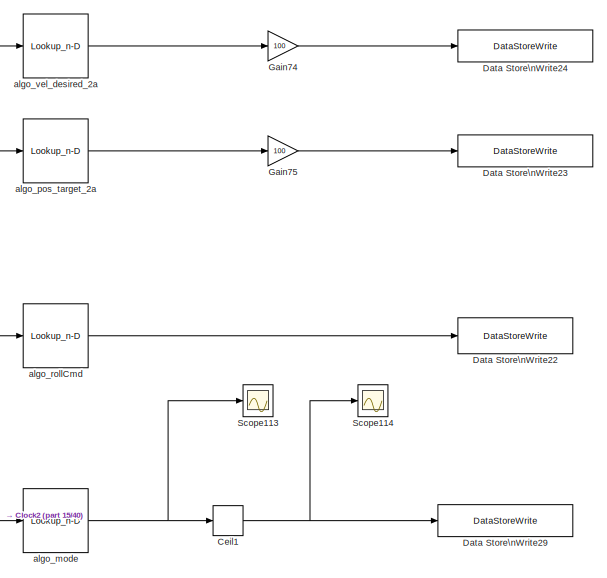
[diagram: root canvas - part 1/40, top center region]
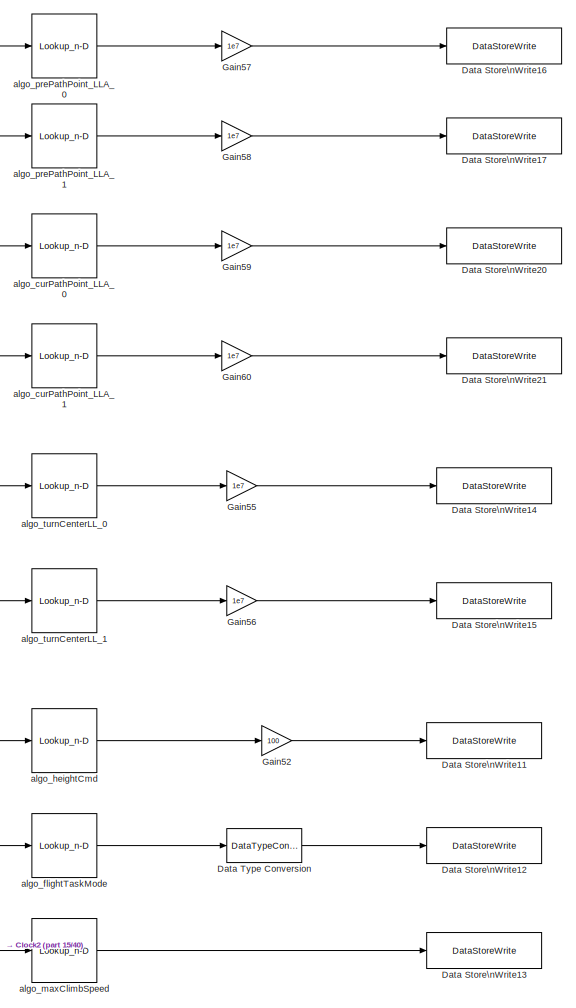
[diagram: root canvas - part 2/40, top center region]
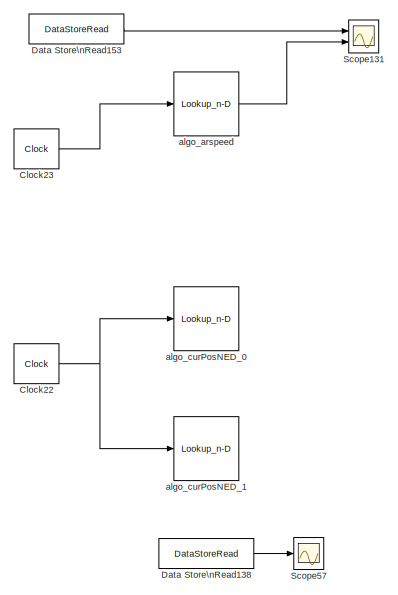
[diagram: root canvas - part 3/40, top left region]
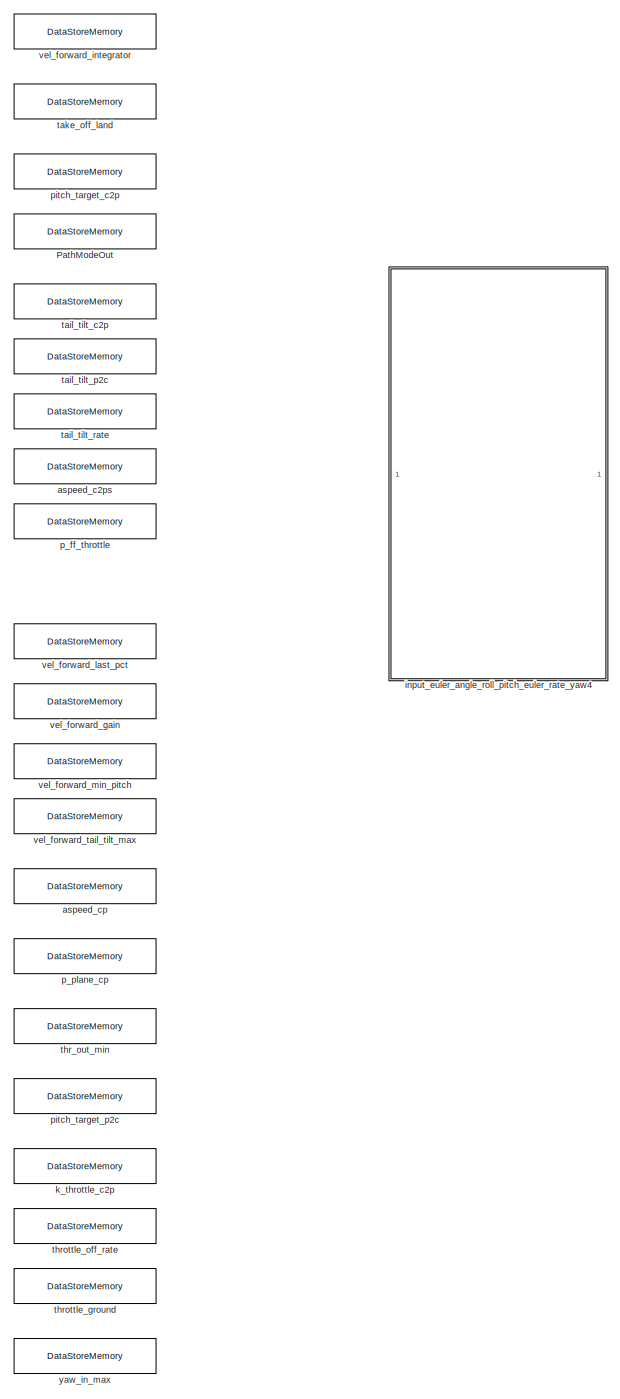
[diagram: root canvas - part 4/40, top left region]
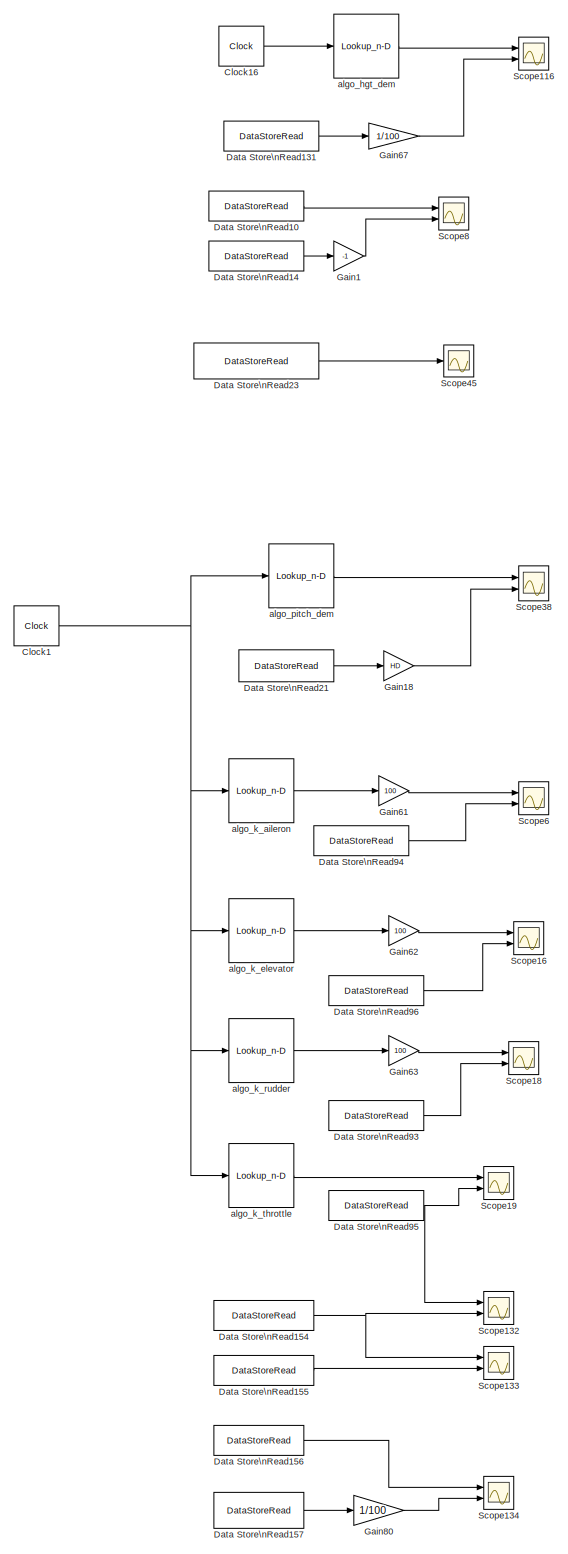
[diagram: root canvas - part 5/40, top left region]
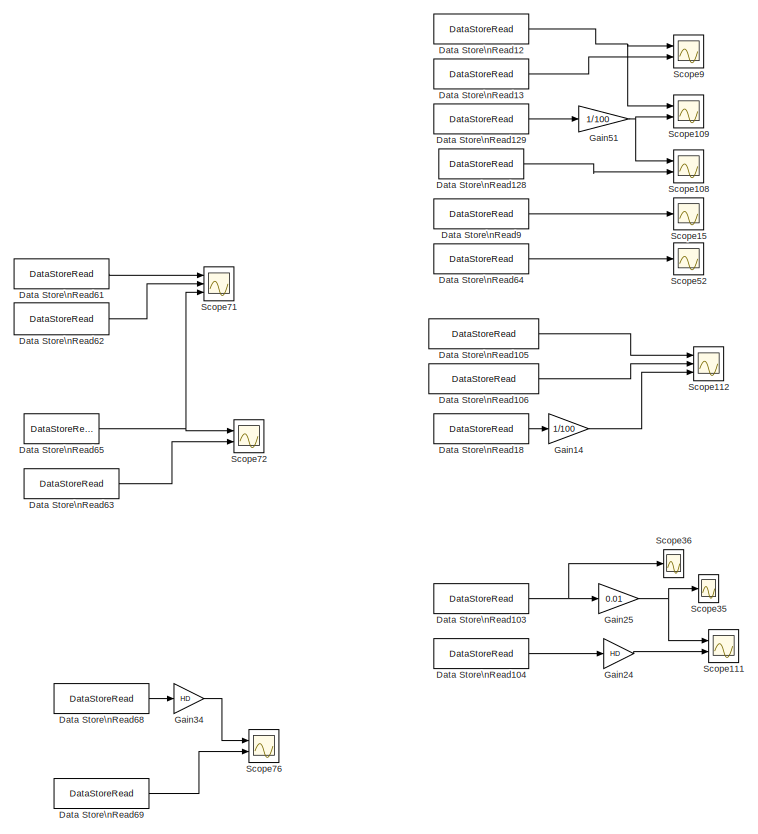
[diagram: root canvas - part 6/40, top center region]
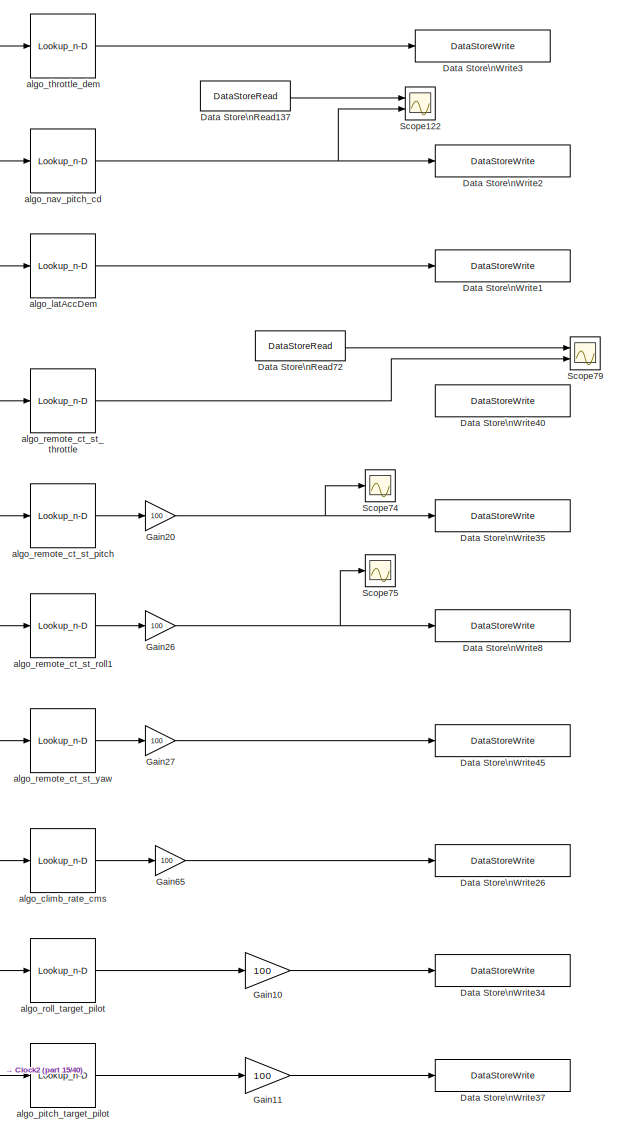
[diagram: root canvas - part 7/40, central region]
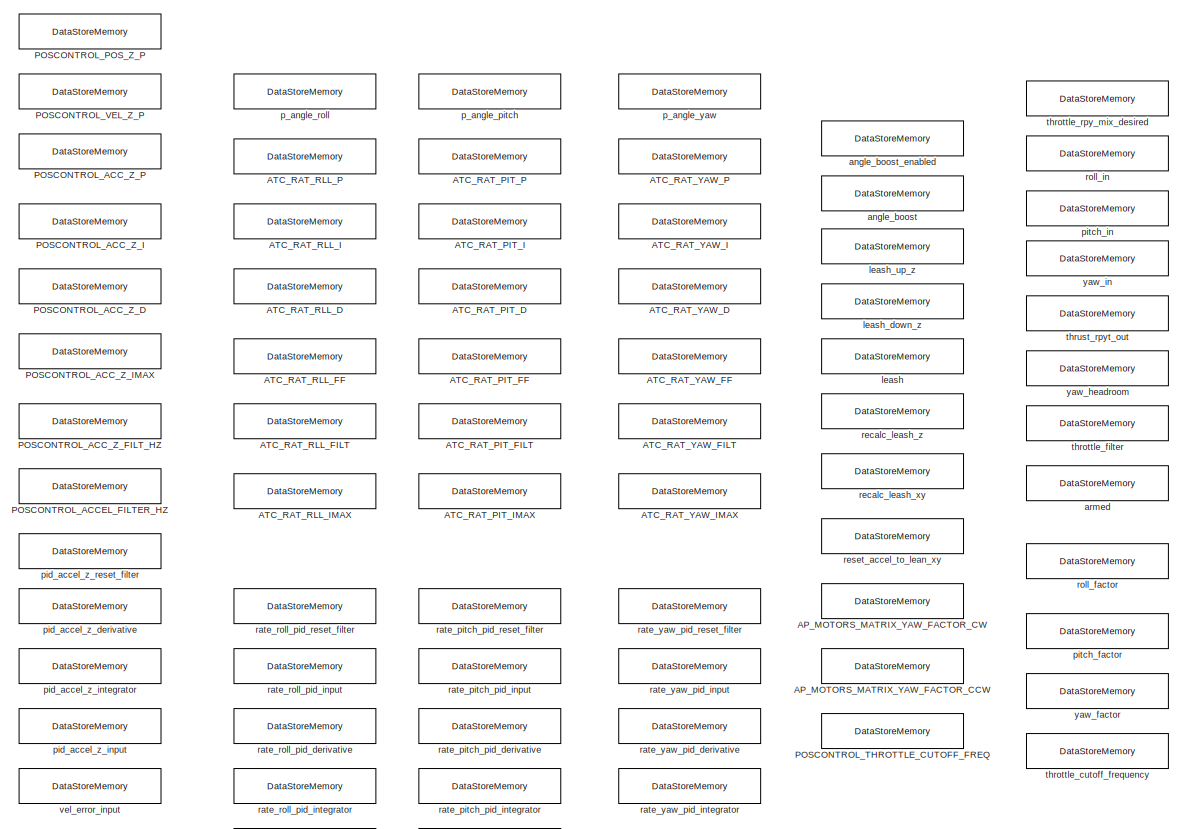
[diagram: root canvas - part 8/40, top right region]
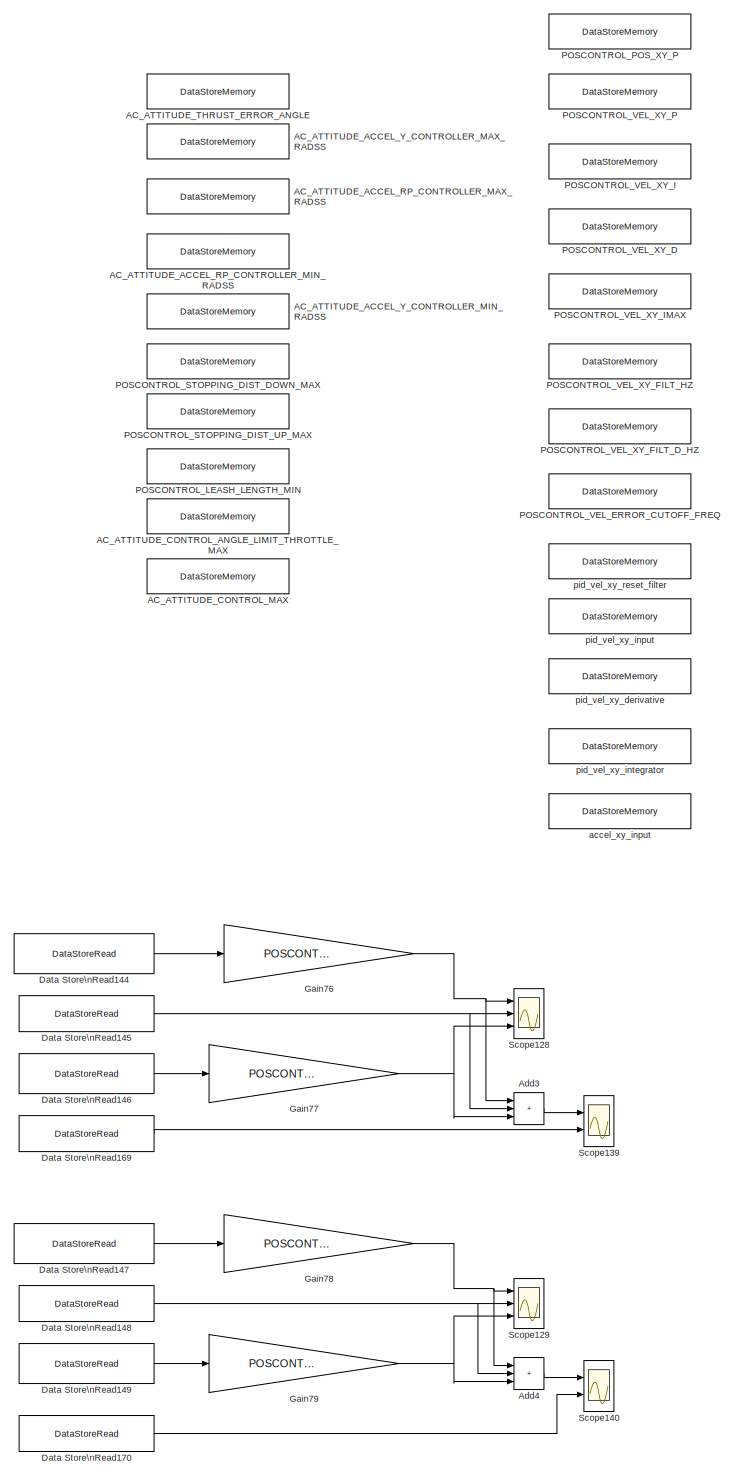
[diagram: root canvas - part 9/40, middle right region]
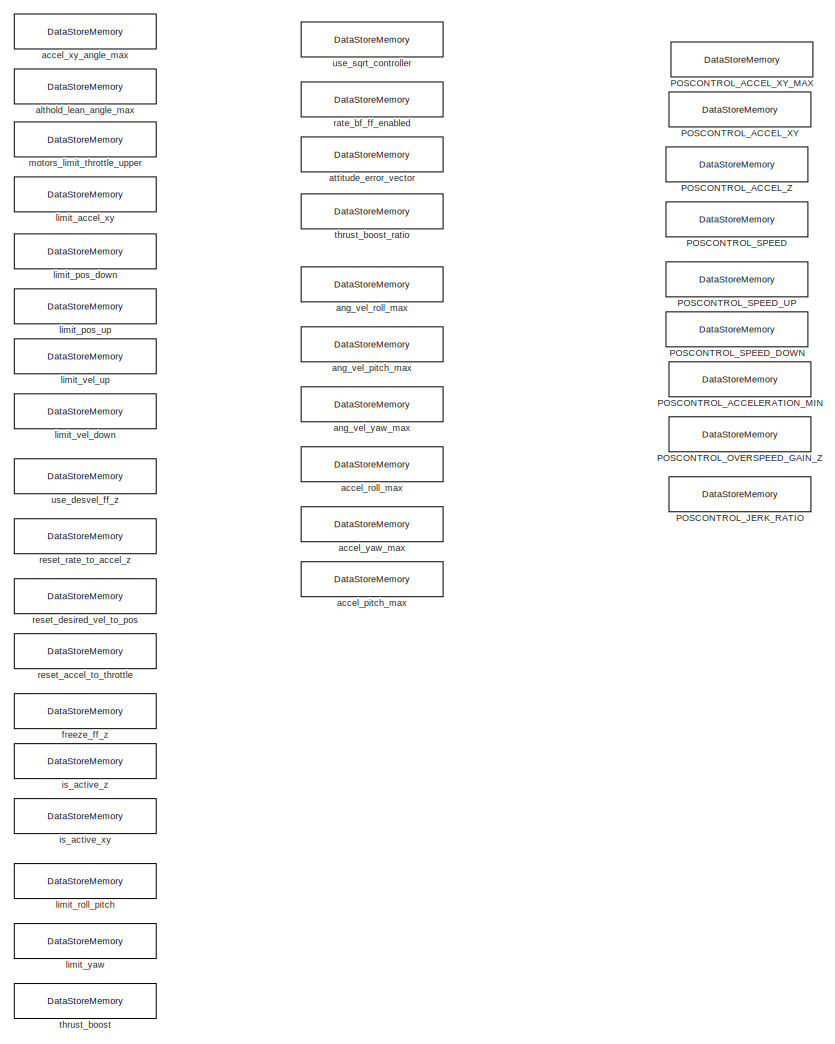
[diagram: root canvas - part 10/40, middle right region]
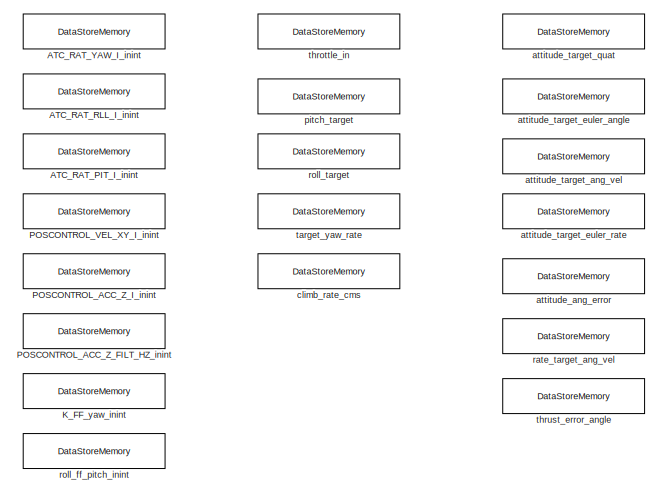
[diagram: root canvas - part 11/40, top right region]
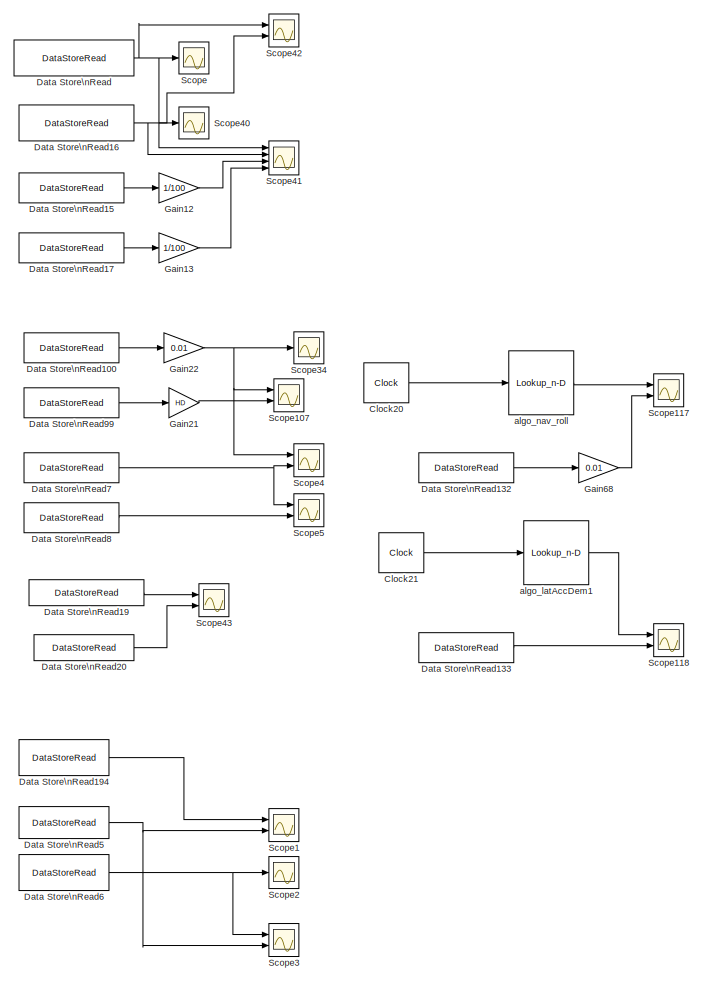
[diagram: root canvas - part 12/40, central region]
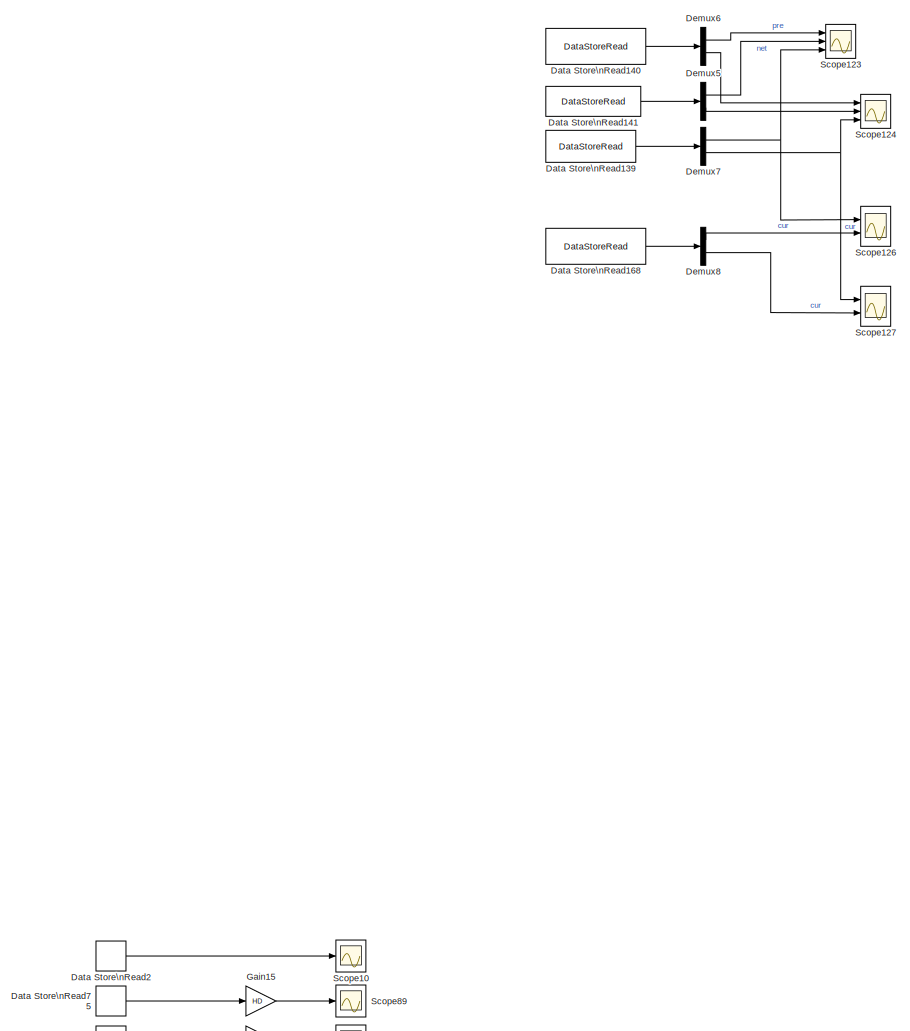
[diagram: root canvas - part 13/40, middle left region]
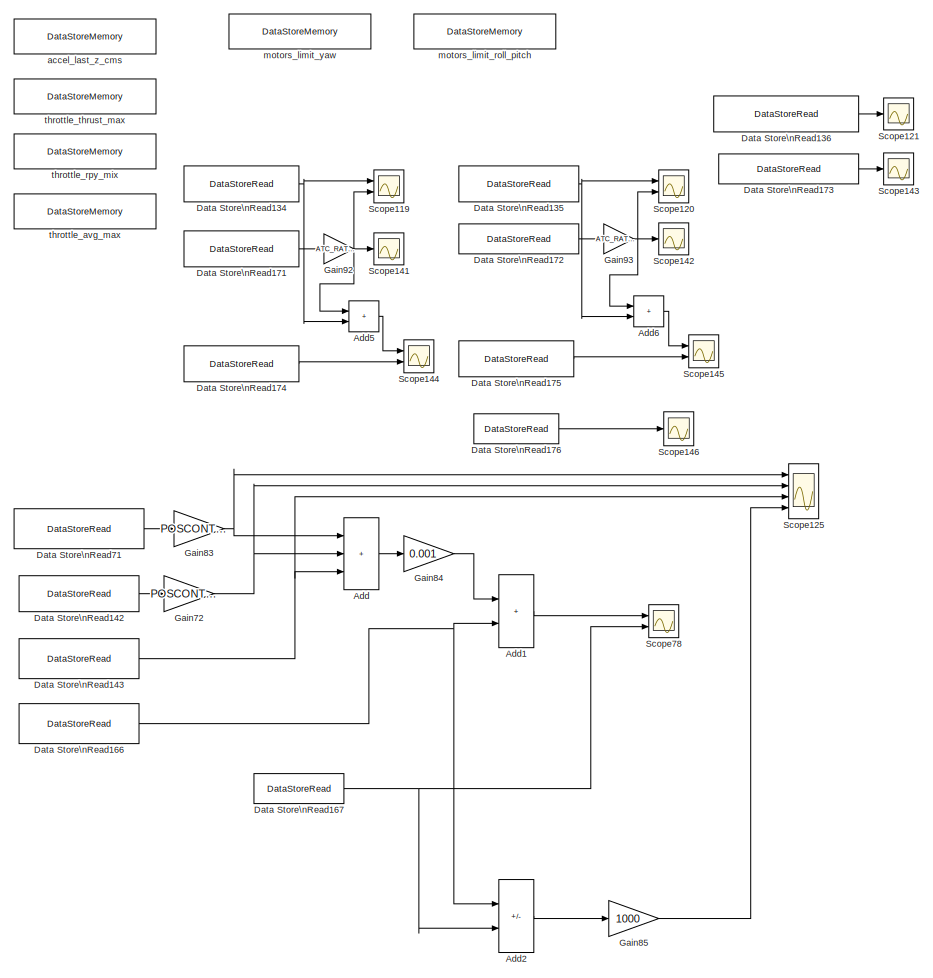
[diagram: root canvas - part 14/40, middle right region]
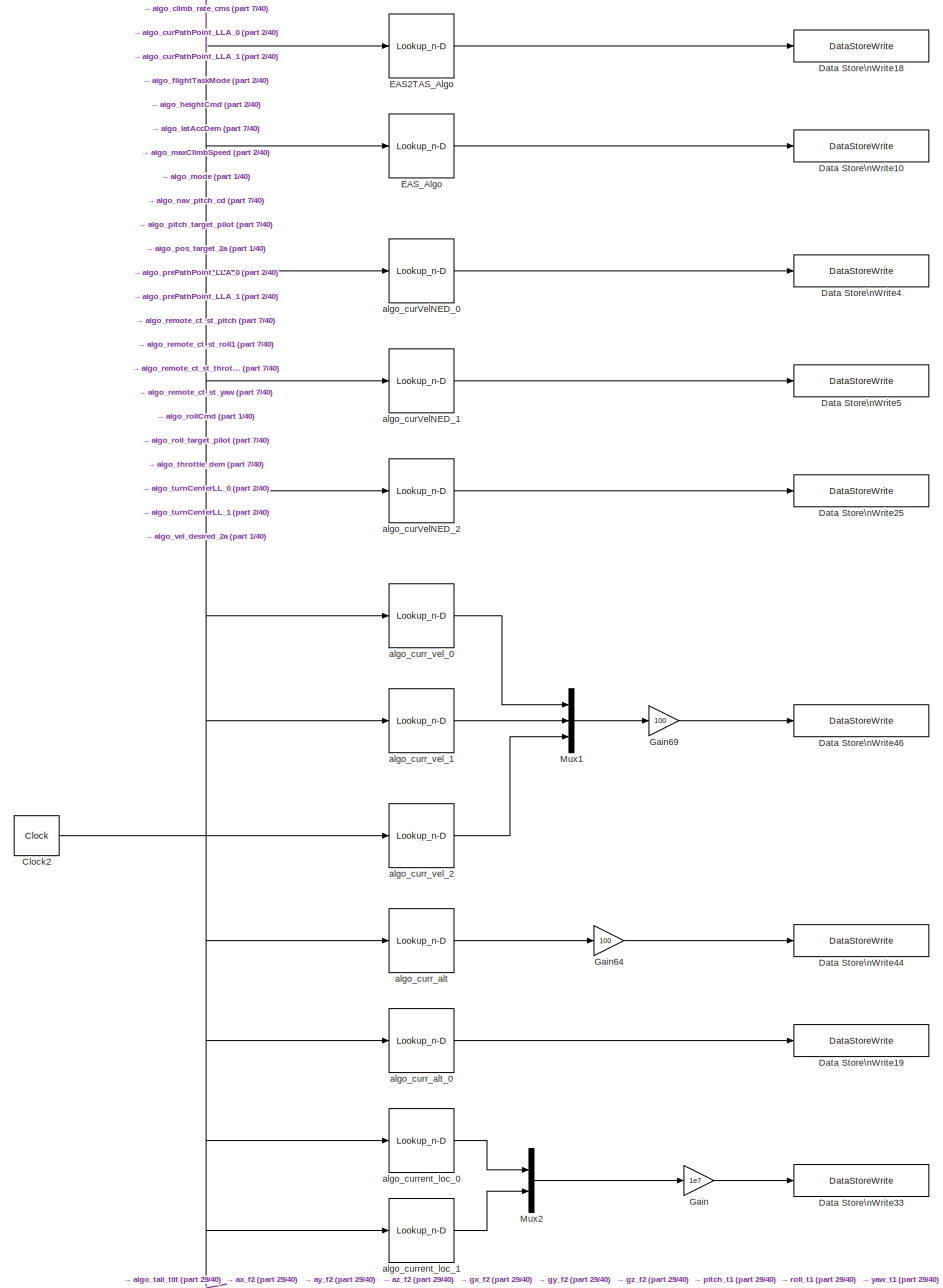
[diagram: root canvas - part 15/40, central region]
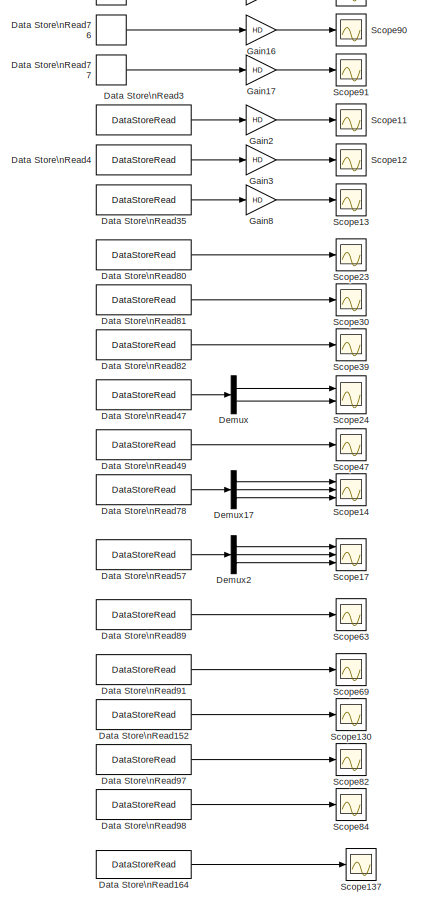
[diagram: root canvas - part 16/40, middle left region]
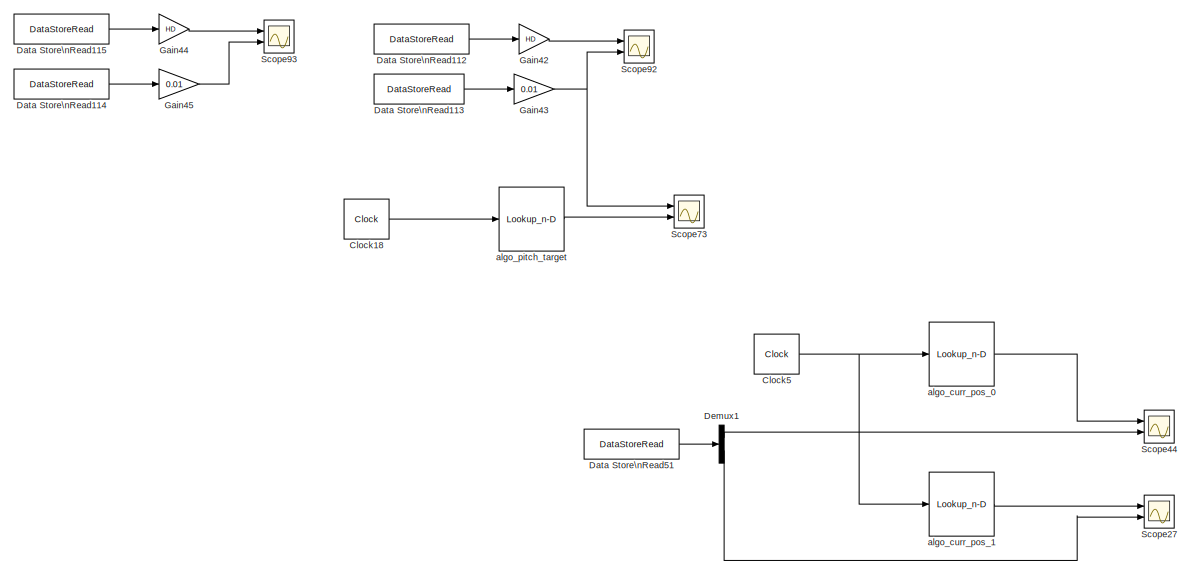
[diagram: root canvas - part 17/40, middle left region]
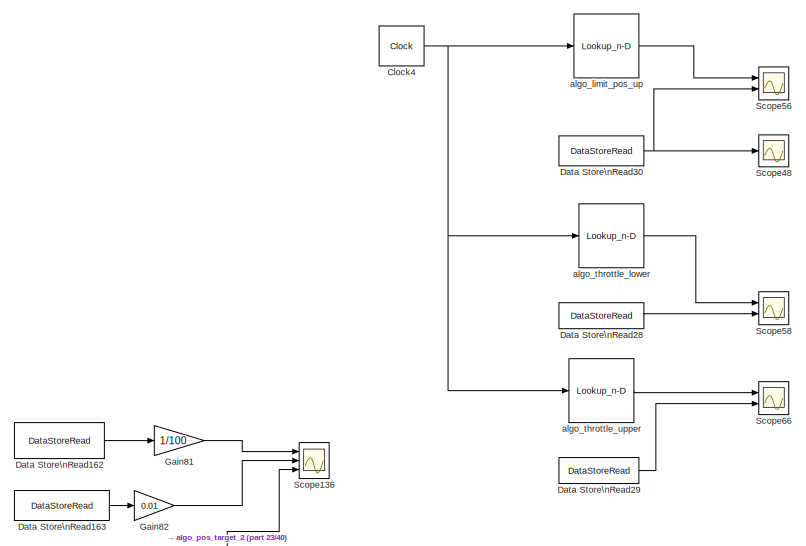
[diagram: root canvas - part 18/40, central region]
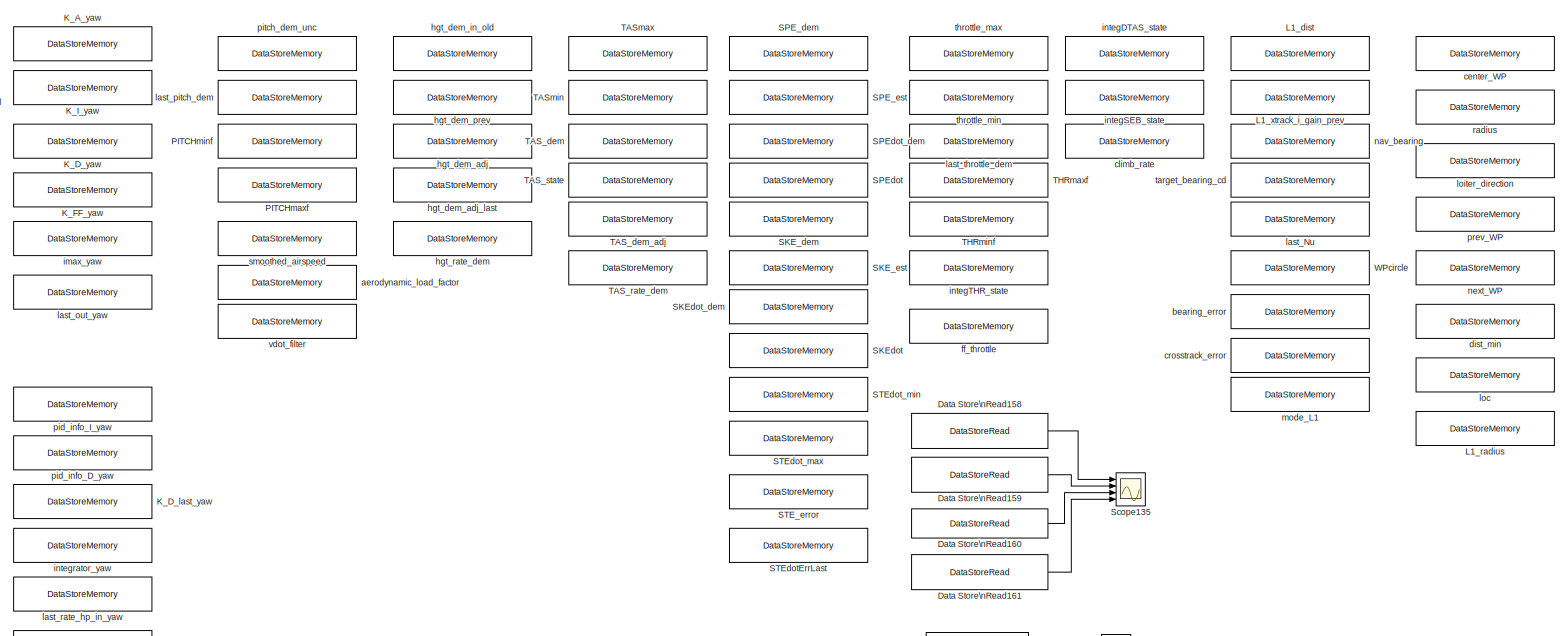
[diagram: root canvas - part 19/40, middle right region]
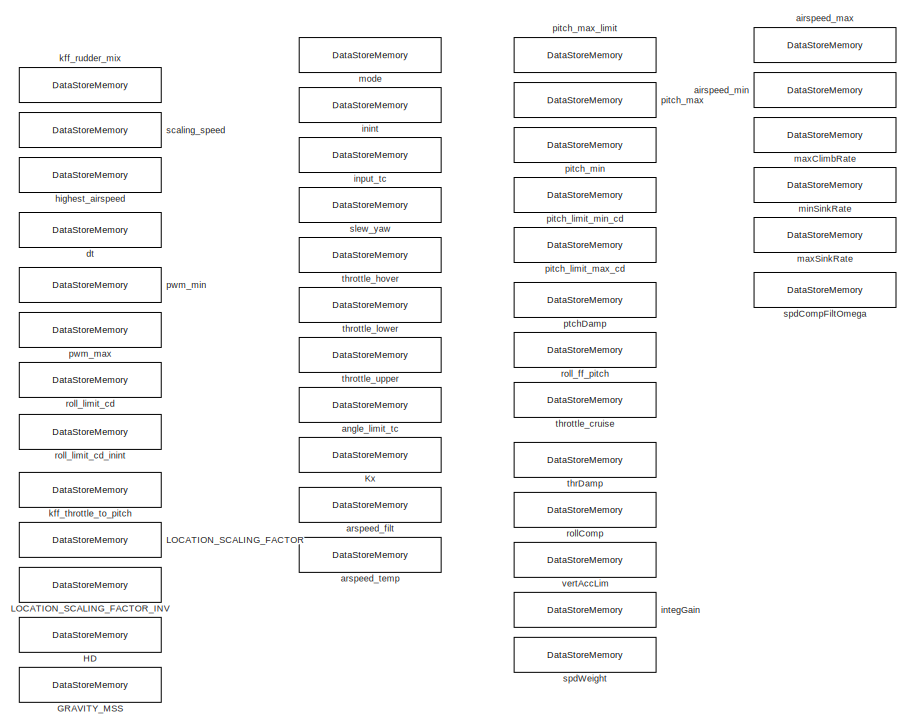
[diagram: root canvas - part 20/40, middle right region]
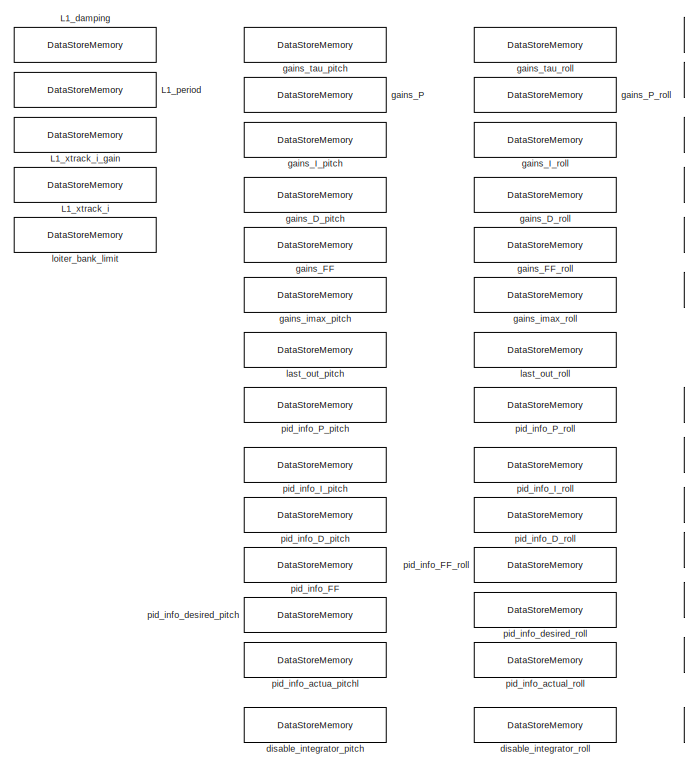
[diagram: root canvas - part 21/40, middle right region]
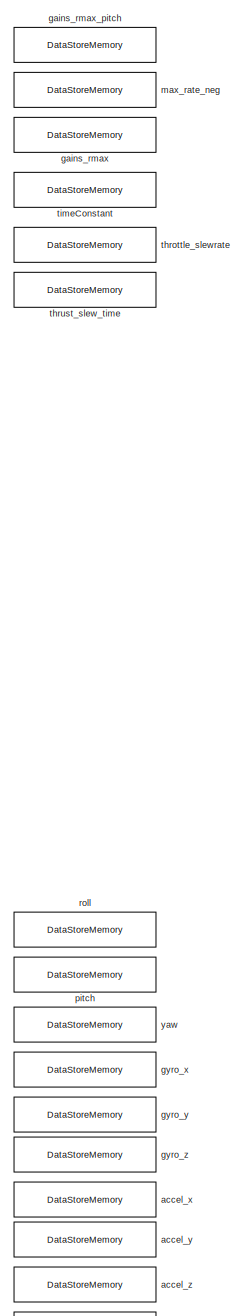
[diagram: root canvas - part 22/40, middle right region]
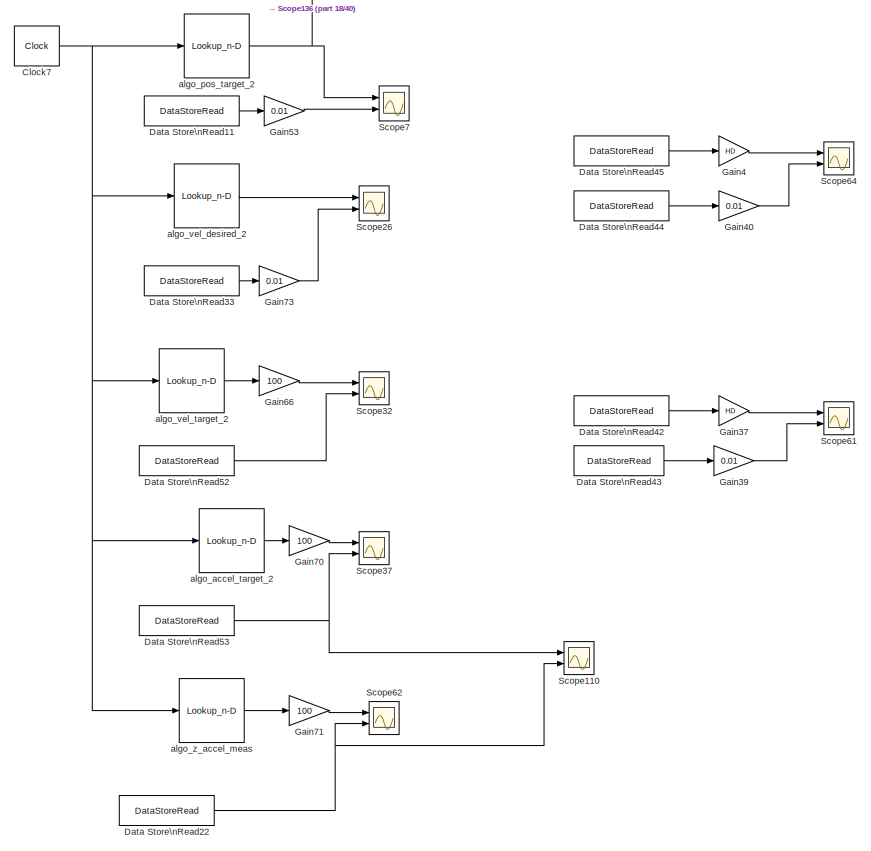
[diagram: root canvas - part 23/40, central region]
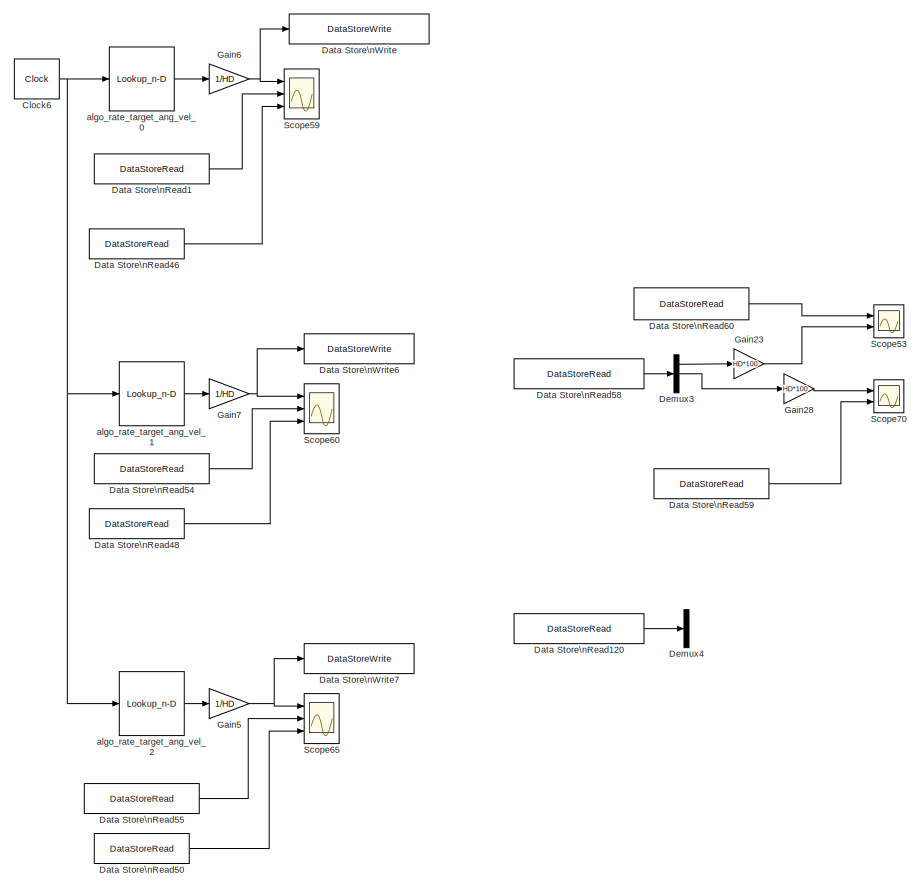
[diagram: root canvas - part 24/40, central region]
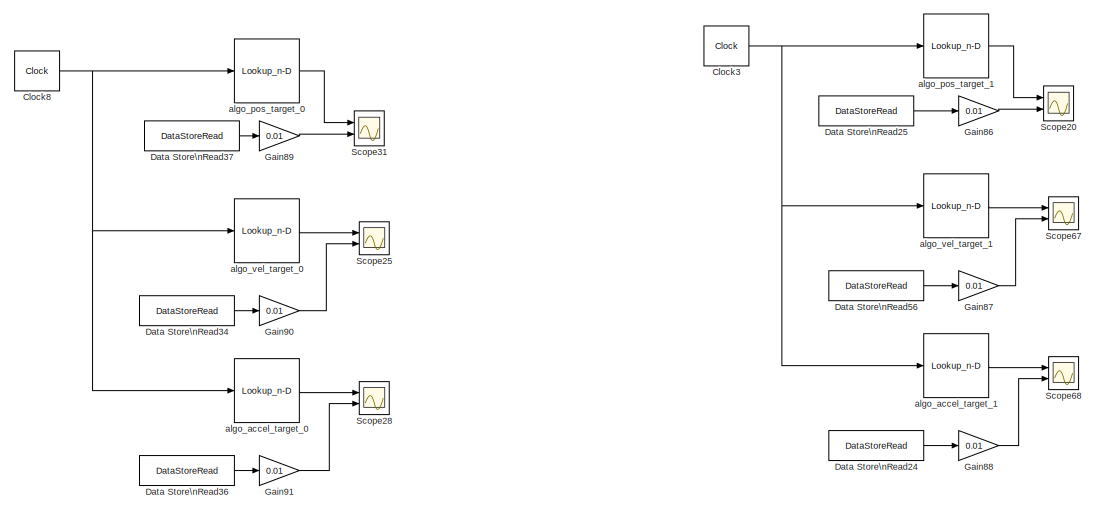
[diagram: root canvas - part 25/40, middle left region]
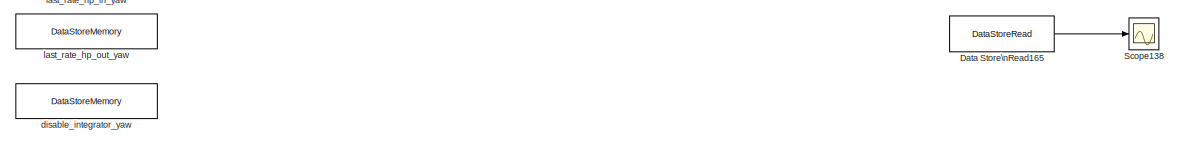
[diagram: root canvas - part 26/40, middle right region]
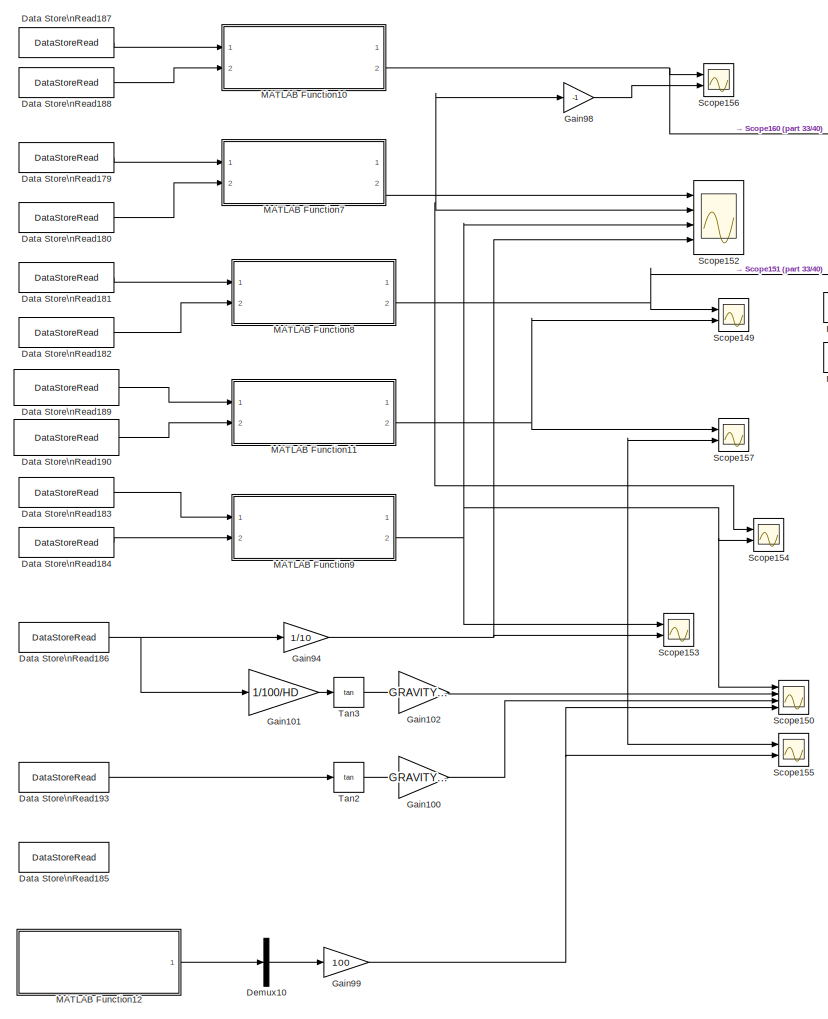
[diagram: root canvas - part 27/40, bottom left region]
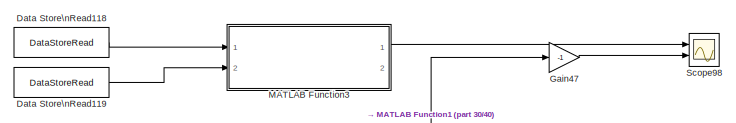
[diagram: root canvas - part 28/40, middle left region]
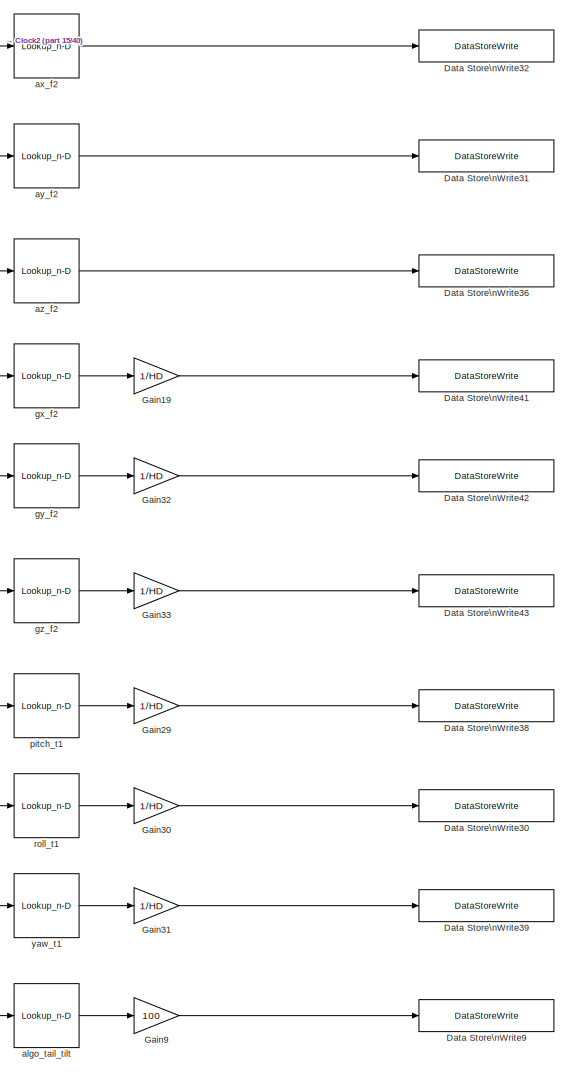
[diagram: root canvas - part 29/40, bottom center region]
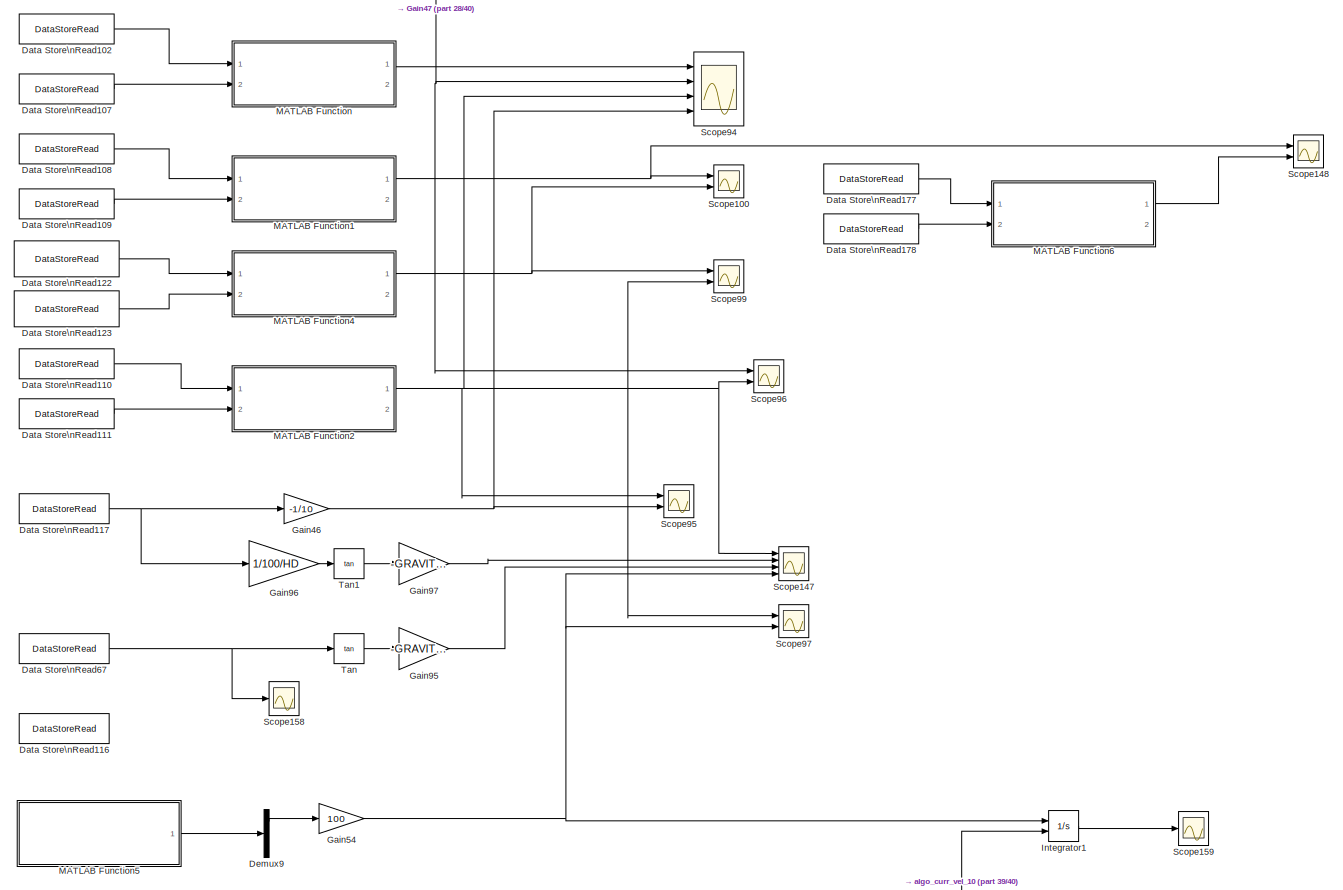
[diagram: root canvas - part 30/40, bottom left region]
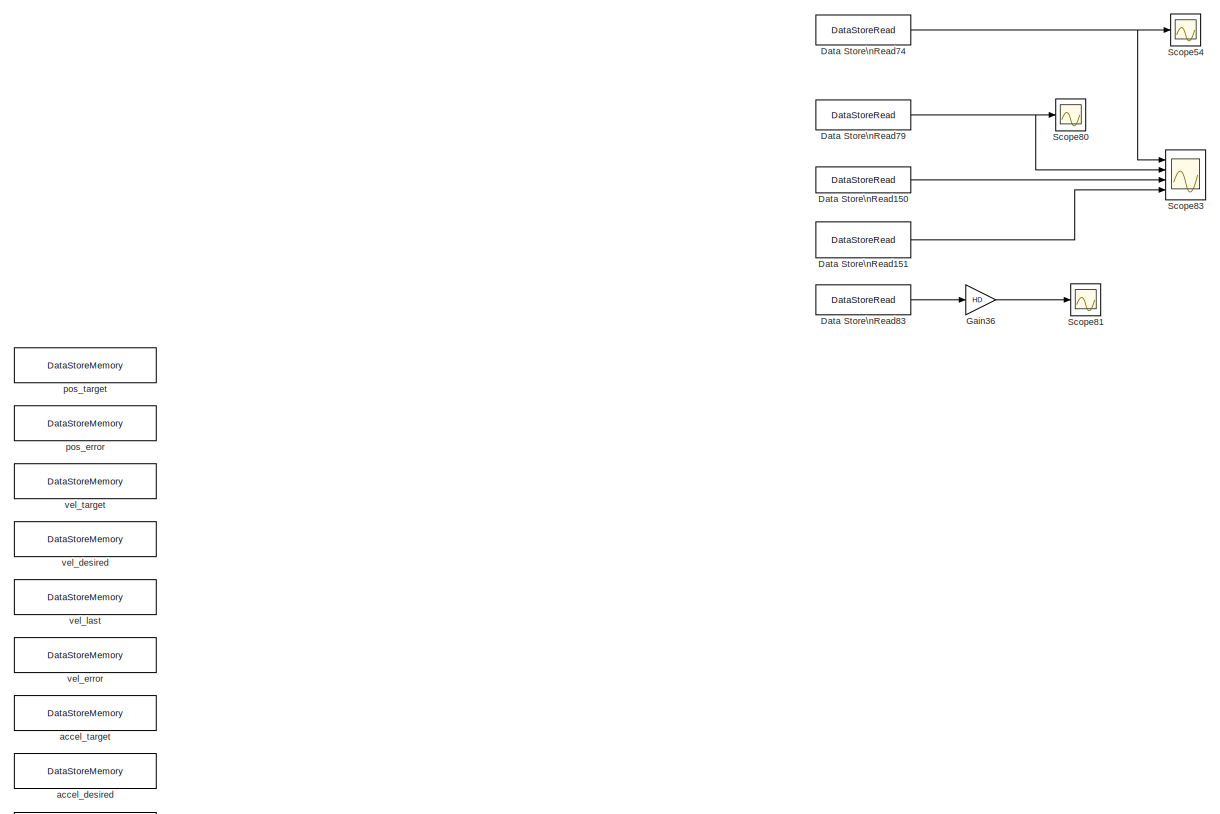
[diagram: root canvas - part 31/40, bottom right region]
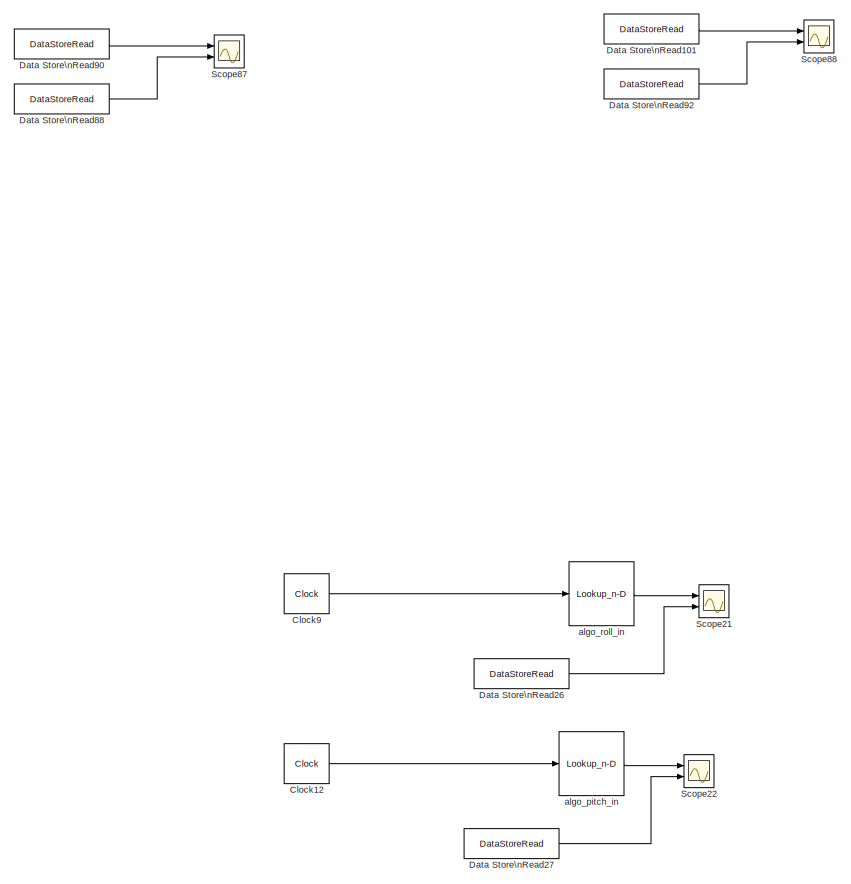
[diagram: root canvas - part 32/40, bottom left region]
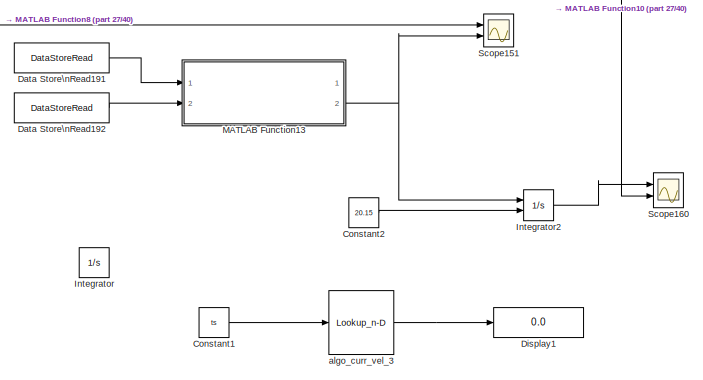
[diagram: root canvas - part 33/40, bottom left region]
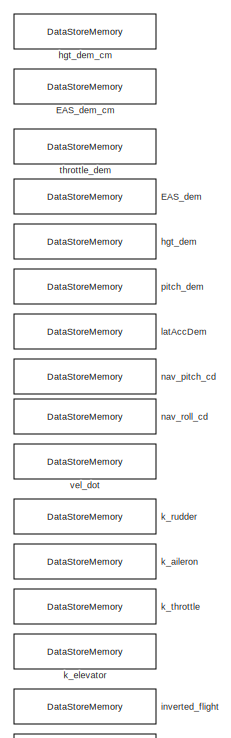
[diagram: root canvas - part 34/40, bottom right region]
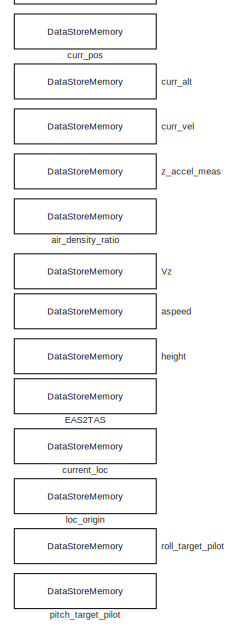
[diagram: root canvas - part 35/40, bottom right region]
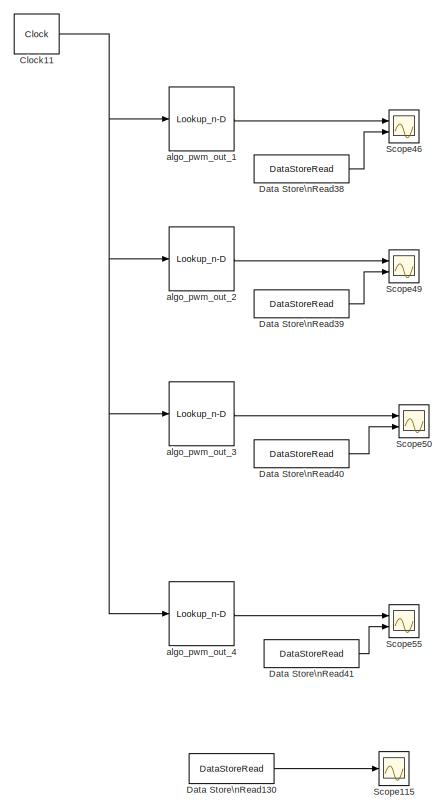
[diagram: root canvas - part 36/40, bottom center region]
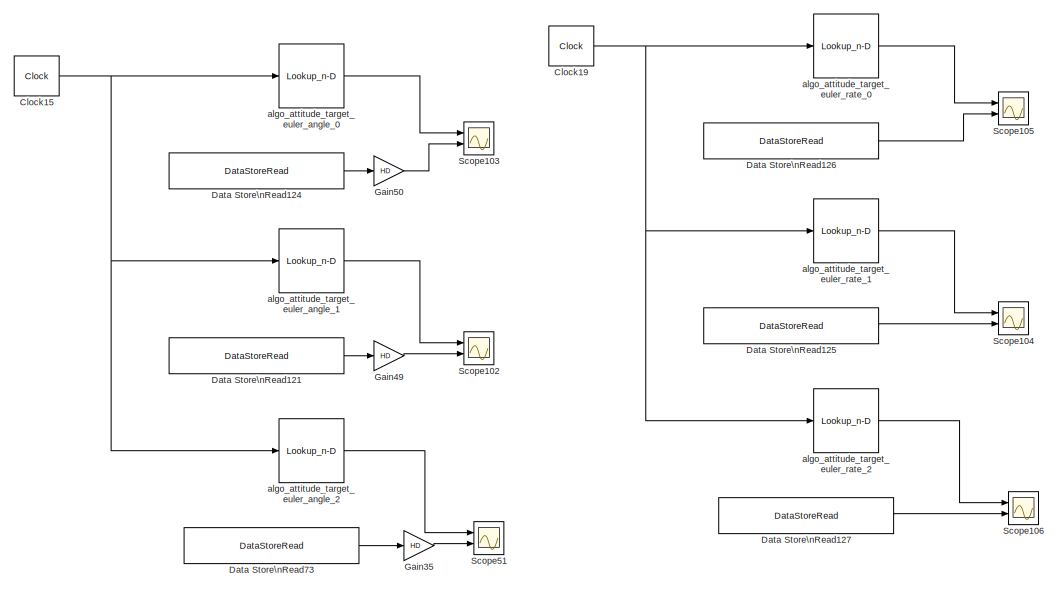
[diagram: root canvas - part 37/40, bottom center region]
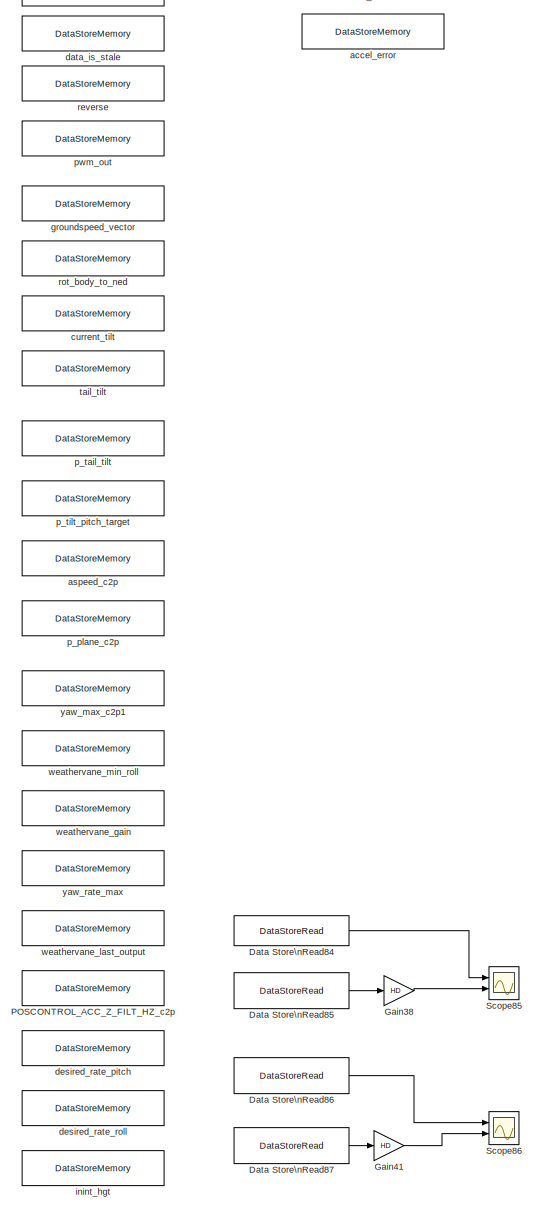
[diagram: root canvas - part 38/40, bottom right region]
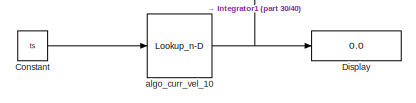
[diagram: root canvas - part 39/40, bottom left region]
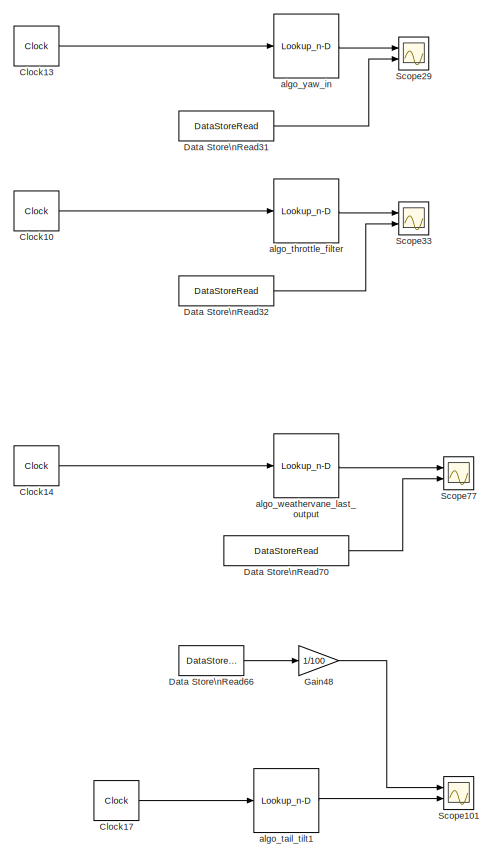
[diagram: root canvas - part 40/40, bottom left region]
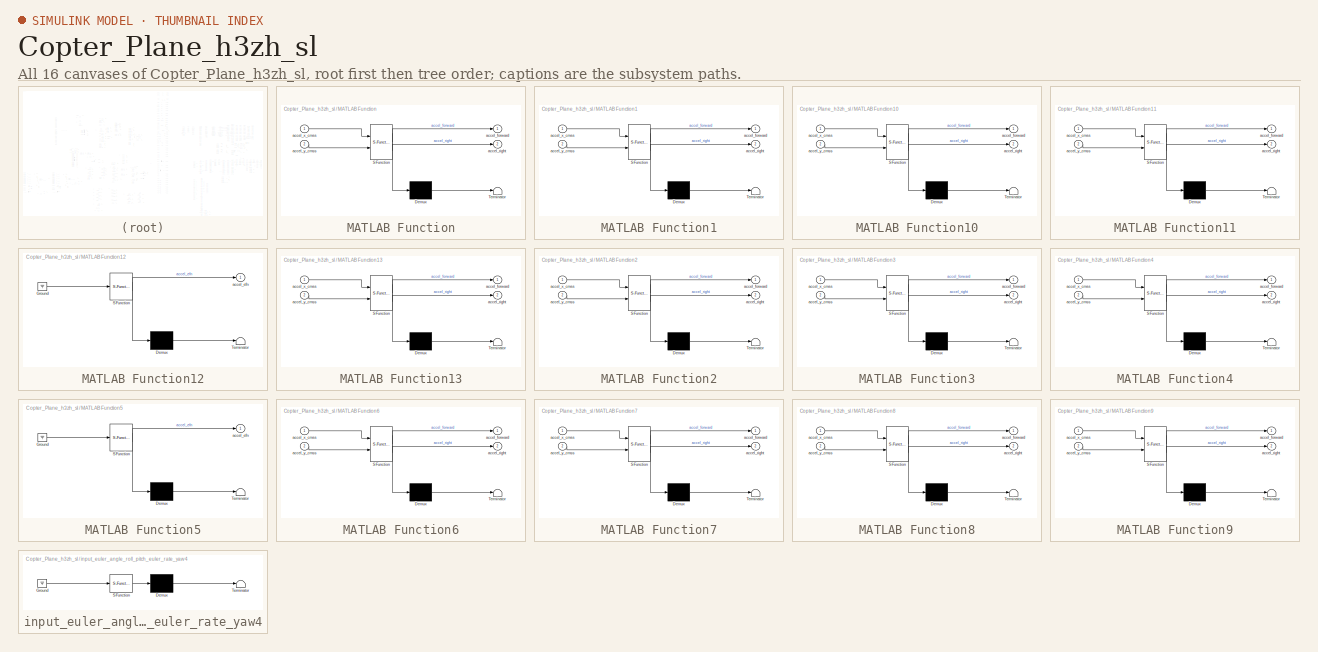
[diagram: thumbnail index - all 16 canvases of the model, root first then tree order]
MODEL Copter_Plane_h3zh_sl
KIND model
BLOCK [DataStoreMemory] AC_ATTITUDE_ACCEL_RP_CONTROLLER_MAX_RADSS
  DataStoreName = AC_ATTITUDE_ACCEL_RP_CONTROLLER_MAX_RADSS
  InitialValue = AC_ATTITUDE_ACCEL_RP_CONTROLLER_MAX_RADSS
  OutDataTypeStr = double
  ReadBeforeWriteMsg = warning
  SID = 2605
  ShowAdditionalParam = off
  SignalType = real
  VectorParams1D = off
  WriteAfterReadMsg = warning
  WriteAfterWriteMsg = warning
BLOCK [DataStoreMemory] AC_ATTITUDE_ACCEL_RP_CONTROLLER_MIN_RADSS
  DataStoreName = AC_ATTITUDE_ACCEL_RP_CONTROLLER_MIN_RADSS
  InitialValue = AC_ATTITUDE_ACCEL_RP_CONTROLLER_MIN_RADSS
  OutDataTypeStr = double
  ReadBeforeWriteMsg = warning
  SID = 2606
  ShowAdditionalParam = off
  SignalType = real
  VectorParams1D = off
  WriteAfterReadMsg = warning
  WriteAfterWriteMsg = warning
BLOCK [DataStoreMemory] AC_ATTITUDE_ACCEL_Y_CONTROLLER_MAX_RADSS
  DataStoreName = AC_ATTITUDE_ACCEL_Y_CONTROLLER_MAX_RADSS
  InitialValue = AC_ATTITUDE_ACCEL_Y_CONTROLLER_MAX_RADSS
  OutDataTypeStr = double
  ReadBeforeWriteMsg = warning
  SID = 2607
  ShowAdditionalParam = off
  SignalType = real
  WriteAfterReadMsg = warning
  WriteAfterWriteMsg = warning
BLOCK [DataStoreMemory] AC_ATTITUDE_ACCEL_Y_CONTROLLER_MIN_RADSS
  DataStoreName = AC_ATTITUDE_ACCEL_Y_CONTROLLER_MIN_RADSS
  InitialValue = AC_ATTITUDE_ACCEL_Y_CONTROLLER_MIN_RADSS
  OutDataTypeStr = double
  ReadBeforeWriteMsg = warning
  SID = 2608
  ShowAdditionalParam = off
  SignalType = real
  VectorParams1D = off
  WriteAfterReadMsg = warning
  WriteAfterWriteMsg = warning
BLOCK [DataStoreMemory] AC_ATTITUDE_CONTROL_ANGLE_LIMIT_THROTTLE_MAX
  DataStoreName = AC_ATTITUDE_CONTROL_ANGLE_LIMIT_THROTTLE_MAX
  InitialValue = AC_ATTITUDE_CONTROL_ANGLE_LIMIT_THROTTLE_MAX
  OutDataTypeStr = double
  ReadBeforeWriteMsg = warning
  SID = 2609
  ShowAdditionalParam = off
  SignalType = real
  VectorParams1D = off
  WriteAfterReadMsg = warning
  WriteAfterWriteMsg = warning
BLOCK [DataStoreMemory] AC_ATTITUDE_CONTROL_MAX
  DataStoreName = AC_ATTITUDE_CONTROL_MAX
  InitialValue = AC_ATTITUDE_CONTROL_MAX
  OutDataTypeStr = double
  ReadBeforeWriteMsg = warning
  SID = 2610
  ShowAdditionalParam = off
  SignalType = real
  VectorParams1D = off
  WriteAfterReadMsg = warning
  WriteAfterWriteMsg = warning
BLOCK [DataStoreMemory] AC_ATTITUDE_THRUST_ERROR_ANGLE
  DataStoreName = AC_ATTITUDE_THRUST_ERROR_ANGLE
  InitialValue = AC_ATTITUDE_THRUST_ERROR_ANGLE
  OutDataTypeStr = double
  ReadBeforeWriteMsg = warning
  SID = 2611
  ShowAdditionalParam = off
  SignalType = real
  WriteAfterReadMsg = warning
  WriteAfterWriteMsg = warning
BLOCK [DataStoreMemory] AP_MOTORS_MATRIX_YAW_FACTOR_CCW
  DataStoreName = AP_MOTORS_MATRIX_YAW_FACTOR_CCW
  InitialValue = AP_MOTORS_MATRIX_YAW_FACTOR_CCW
  OutDataTypeStr = double
  ReadBeforeWriteMsg = warning
  SID = 2612
  ShowAdditionalParam = off
  SignalType = real
  VectorParams1D = off
  WriteAfterReadMsg = warning
  WriteAfterWriteMsg = warning
BLOCK [DataStoreMemory] AP_MOTORS_MATRIX_YAW_FACTOR_CW
  DataStoreName = AP_MOTORS_MATRIX_YAW_FACTOR_CW
  InitialValue = AP_MOTORS_MATRIX_YAW_FACTOR_CW
  OutDataTypeStr = double
  ReadBeforeWriteMsg = warning
  SID = 2613
  ShowAdditionalParam = off
  SignalType = real
  VectorParams1D = off
  WriteAfterReadMsg = warning
  WriteAfterWriteMsg = warning
BLOCK [DataStoreMemory] ATC_RAT_PIT_D
  DataStoreName = ATC_RAT_PIT_D
  InitialValue = ATC_RAT_PIT_D
  OutDataTypeStr = double
  ReadBeforeWriteMsg = warning
  SID = 2614
  ShowAdditionalParam = off
  SignalType = real
  VectorParams1D = off
  WriteAfterReadMsg = warning
  WriteAfterWriteMsg = warning
BLOCK [DataStoreMemory] ATC_RAT_PIT_FF
  DataStoreName = ATC_RAT_PIT_FF
  InitialValue = ATC_RAT_PIT_FF
  OutDataTypeStr = double
  ReadBeforeWriteMsg = warning
  SID = 2615
  ShowAdditionalParam = off
  SignalType = real
  VectorParams1D = off
  WriteAfterReadMsg = warning
  WriteAfterWriteMsg = warning
BLOCK [DataStoreMemory] ATC_RAT_PIT_FILT
  DataStoreName = ATC_RAT_PIT_FILT
  InitialValue = ATC_RAT_PIT_FILT
  OutDataTypeStr = double
  ReadBeforeWriteMsg = warning
  SID = 2616
  ShowAdditionalParam = off
  SignalType = real
  VectorParams1D = off
  WriteAfterReadMsg = warning
  WriteAfterWriteMsg = warning
BLOCK [DataStoreMemory] ATC_RAT_PIT_I
  DataStoreName = ATC_RAT_PIT_I
  InitialValue = ATC_RAT_PIT_I
  OutDataTypeStr = double
  ReadBeforeWriteMsg = warning
  SID = 2617
  ShowAdditionalParam = off
  SignalType = real
  VectorParams1D = off
  WriteAfterReadMsg = warning
  WriteAfterWriteMsg = warning
BLOCK [DataStoreMemory] ATC_RAT_PIT_IMAX
  DataStoreName = ATC_RAT_PIT_IMAX
  InitialValue = ATC_RAT_PIT_IMAX
  OutDataTypeStr = double
  ReadBeforeWriteMsg = warning
  SID = 2618
  ShowAdditionalParam = off
  SignalType = real
  VectorParams1D = off
  WriteAfterReadMsg = warning
  WriteAfterWriteMsg = warning
BLOCK [DataStoreMemory] ATC_RAT_PIT_I_inint
  DataStoreName = ATC_RAT_PIT_I_inint
  InitialValue = ATC_RAT_PIT_I_inint
  OutDataTypeStr = double
  ReadBeforeWriteMsg = warning
  SID = 3183
  ShowAdditionalParam = off
  SignalType = real
  VectorParams1D = off
  WriteAfterReadMsg = warning
  WriteAfterWriteMsg = warning
BLOCK [DataStoreMemory] ATC_RAT_PIT_P
  DataStoreName = ATC_RAT_PIT_P
  InitialValue = ATC_RAT_PIT_P
  OutDataTypeStr = double
  ReadBeforeWriteMsg = warning
  SID = 2619
  ShowAdditionalParam = off
  SignalType = real
  VectorParams1D = off
  WriteAfterReadMsg = warning
  WriteAfterWriteMsg = warning
BLOCK [DataStoreMemory] ATC_RAT_RLL_D
  DataStoreName = ATC_RAT_RLL_D
  InitialValue = ATC_RAT_RLL_D
  OutDataTypeStr = double
  ReadBeforeWriteMsg = warning
  SID = 2620
  ShowAdditionalParam = off
  SignalType = real
  VectorParams1D = off
  WriteAfterReadMsg = warning
  WriteAfterWriteMsg = warning
BLOCK [DataStoreMemory] ATC_RAT_RLL_FF
  DataStoreName = ATC_RAT_RLL_FF
  InitialValue = ATC_RAT_RLL_FF
  OutDataTypeStr = double
  ReadBeforeWriteMsg = warning
  SID = 2621
  ShowAdditionalParam = off
  SignalType = real
  VectorParams1D = off
  WriteAfterReadMsg = warning
  WriteAfterWriteMsg = warning
BLOCK [DataStoreMemory] ATC_RAT_RLL_FILT
  DataStoreName = ATC_RAT_RLL_FILT
  InitialValue = ATC_RAT_RLL_FILT
  OutDataTypeStr = double
  ReadBeforeWriteMsg = warning
  SID = 2622
  ShowAdditionalParam = off
  SignalType = real
  VectorParams1D = off
  WriteAfterReadMsg = warning
  WriteAfterWriteMsg = warning
BLOCK [DataStoreMemory] ATC_RAT_RLL_I
  DataStoreName = ATC_RAT_RLL_I
  InitialValue = ATC_RAT_RLL_I
  OutDataTypeStr = double
  ReadBeforeWriteMsg = warning
  SID = 2623
  ShowAdditionalParam = off
  SignalType = real
  VectorParams1D = off
  WriteAfterReadMsg = warning
  WriteAfterWriteMsg = warning
BLOCK [DataStoreMemory] ATC_RAT_RLL_IMAX
  DataStoreName = ATC_RAT_RLL_IMAX
  InitialValue = ATC_RAT_RLL_IMAX
  OutDataTypeStr = double
  ReadBeforeWriteMsg = warning
  SID = 2624
  ShowAdditionalParam = off
  SignalType = real
  VectorParams1D = off
  WriteAfterReadMsg = warning
  WriteAfterWriteMsg = warning
BLOCK [DataStoreMemory] ATC_RAT_RLL_I_inint
  DataStoreName = ATC_RAT_RLL_I_inint
  InitialValue = ATC_RAT_RLL_I_inint
  OutDataTypeStr = double
  ReadBeforeWriteMsg = warning
  SID = 3184
  ShowAdditionalParam = off
  SignalType = real
  VectorParams1D = off
  WriteAfterReadMsg = warning
  WriteAfterWriteMsg = warning
BLOCK [DataStoreMemory] ATC_RAT_RLL_P
  DataStoreName = ATC_RAT_RLL_P
  InitialValue = ATC_RAT_RLL_P
  OutDataTypeStr = double
  ReadBeforeWriteMsg = warning
  SID = 2625
  ShowAdditionalParam = off
  SignalType = real
  VectorParams1D = off
  WriteAfterReadMsg = warning
  WriteAfterWriteMsg = warning
BLOCK [DataStoreMemory] ATC_RAT_YAW_D
  DataStoreName = ATC_RAT_YAW_D
  InitialValue = ATC_RAT_YAW_D
  OutDataTypeStr = double
  ReadBeforeWriteMsg = warning
  SID = 2626
  ShowAdditionalParam = off
  SignalType = real
  VectorParams1D = off
  WriteAfterReadMsg = warning
  WriteAfterWriteMsg = warning
BLOCK [DataStoreMemory] ATC_RAT_YAW_FF
  DataStoreName = ATC_RAT_YAW_FF
  InitialValue = ATC_RAT_YAW_FF
  OutDataTypeStr = double
  ReadBeforeWriteMsg = warning
  SID = 2627
  ShowAdditionalParam = off
  SignalType = real
  VectorParams1D = off
  WriteAfterReadMsg = warning
  WriteAfterWriteMsg = warning
BLOCK [DataStoreMemory] ATC_RAT_YAW_FILT
  DataStoreName = ATC_RAT_YAW_FILT
  InitialValue = ATC_RAT_YAW_FILT
  OutDataTypeStr = double
  ReadBeforeWriteMsg = warning
  SID = 2628
  ShowAdditionalParam = off
  SignalType = real
  VectorParams1D = off
  WriteAfterReadMsg = warning
  WriteAfterWriteMsg = warning
BLOCK [DataStoreMemory] ATC_RAT_YAW_I
  DataStoreName = ATC_RAT_YAW_I
  InitialValue = ATC_RAT_YAW_I
  OutDataTypeStr = double
  ReadBeforeWriteMsg = warning
  SID = 2629
  ShowAdditionalParam = off
  SignalType = real
  VectorParams1D = off
  WriteAfterReadMsg = warning
  WriteAfterWriteMsg = warning
BLOCK [DataStoreMemory] ATC_RAT_YAW_IMAX
  DataStoreName = ATC_RAT_YAW_IMAX
  InitialValue = ATC_RAT_YAW_IMAX
  OutDataTypeStr = double
  ReadBeforeWriteMsg = warning
  SID = 2630
  ShowAdditionalParam = off
  SignalType = real
  VectorParams1D = off
  WriteAfterReadMsg = warning
  WriteAfterWriteMsg = warning
BLOCK [DataStoreMemory] ATC_RAT_YAW_I_inint
  DataStoreName = ATC_RAT_YAW_I_inint
  InitialValue = ATC_RAT_YAW_I_inint
  OutDataTypeStr = double
  ReadBeforeWriteMsg = warning
  SID = 3185
  ShowAdditionalParam = off
  SignalType = real
  VectorParams1D = off
  WriteAfterReadMsg = warning
  WriteAfterWriteMsg = warning
BLOCK [DataStoreMemory] ATC_RAT_YAW_P
  DataStoreName = ATC_RAT_YAW_P
  InitialValue = ATC_RAT_YAW_P
  OutDataTypeStr = double
  ReadBeforeWriteMsg = warning
  SID = 2631
  ShowAdditionalParam = off
  SignalType = real
  VectorParams1D = off
  WriteAfterReadMsg = warning
  WriteAfterWriteMsg = warning
BLOCK [Sum] Add
  IconShape = rectangular
  Inputs = +++
  Ports = [3, 1]
  SID = 3396
BLOCK [Sum] Add1
  IconShape = rectangular
  Ports = [2, 1]
  SID = 3400
BLOCK [Sum] Add2
  IconShape = rectangular
  Inputs = -+
  Ports = [2, 1]
  SID = 3403
BLOCK [Sum] Add3
  IconShape = rectangular
  Inputs = +++
  Ports = [3, 1]
  SID = 3436
BLOCK [Sum] Add4
  IconShape = rectangular
  Inputs = +++
  Ports = [3, 1]
  SID = 3439
BLOCK [Sum] Add5
  IconShape = rectangular
  Ports = [2, 1]
  SID = 3454
BLOCK [Sum] Add6
  IconShape = rectangular
  Ports = [2, 1]
  SID = 3459
BLOCK [Rounding] Ceil1
  Operator = ceil
  SID = 2022
BLOCK [Clock] Clock1
  Decimation = 1
  SID = 1226
BLOCK [Clock] Clock10
  Decimation = 1
  SID = 2091
BLOCK [Clock] Clock11
  Decimation = 1
  SID = 2092
BLOCK [Clock] Clock12
  Decimation = 1
  SID = 2099
BLOCK [Clock] Clock13
  Decimation = 1
  SID = 2100
BLOCK [Clock] Clock14
  Decimation = 1
  SID = 2980
BLOCK [Clock] Clock15
  Decimation = 1
  SID = 2996
BLOCK [Clock] Clock16
  Decimation = 1
  SID = 3178
BLOCK [Clock] Clock17
  Decimation = 1
  SID = 3093
BLOCK [Clock] Clock18
  Decimation = 1
  SID = 3098
BLOCK [Clock] Clock19
  Decimation = 1
  SID = 3113
BLOCK [Clock] Clock2
  Decimation = 1
  SID = 2023
BLOCK [Clock] Clock20
  Decimation = 1
  SID = 3193
BLOCK [Clock] Clock21
  Decimation = 1
  SID = 3198
BLOCK [Clock] Clock22
  Decimation = 1
  SID = 3221
BLOCK [Clock] Clock23
  Decimation = 1
  SID = 3347
BLOCK [Clock] Clock3
  Decimation = 1
  SID = 2090
BLOCK [Clock] Clock4
  Decimation = 1
  SID = 2093
BLOCK [Clock] Clock5
  Decimation = 1
  SID = 2094
BLOCK [Clock] Clock6
  Decimation = 1
  SID = 2095
BLOCK [Clock] Clock7
  Decimation = 1
  SID = 2096
BLOCK [Clock] Clock8
  Decimation = 1
  SID = 2097
BLOCK [Clock] Clock9
  Decimation = 1
  SID = 2098
BLOCK [Constant] Constant
  SID = 3525
  Value = ts
BLOCK [Constant] Constant1
  SID = 3530
  Value = ts
BLOCK [Constant] Constant2
  SID = 3535
  Value = 20.15
BLOCK [DataStoreRead] Data Store\nRead
  DataStoreName = pid_info_desired_roll
  Ports = [0, 1]
  SID = 1264
BLOCK [DataStoreRead] Data Store\nRead1
  DataStoreElements = rate_target_ang_vel(:,1)
  DataStoreName = rate_target_ang_vel
  Ports = [0, 1]
  SID = 2101
BLOCK [DataStoreRead] Data Store\nRead10
  DataStoreName = hgt_rate_dem
  Ports = [0, 1]
  SID = 1125
BLOCK [DataStoreRead] Data Store\nRead100
  DataStoreName = nav_roll_cd
  Ports = [0, 1]
  SID = 1024
BLOCK [DataStoreRead] Data Store\nRead101
  DataStoreElements = vel_target(:,2)
  DataStoreName = vel_target
  Ports = [0, 1]
  SID = 3033
BLOCK [DataStoreRead] Data Store\nRead102
  DataStoreElements = pos_target(:,1)
  DataStoreName = pos_target
  Ports = [0, 1]
  SID = 3039
BLOCK [DataStoreRead] Data Store\nRead103
  DataStoreName = nav_pitch_cd
  Ports = [0, 1]
  SID = 1037
BLOCK [DataStoreRead] Data Store\nRead104
  DataStoreName = pitch
  Ports = [0, 1]
  SID = 1038
BLOCK [DataStoreRead] Data Store\nRead105
  DataStoreName = pid_info_desired_pitch
  Ports = [0, 1]
  SID = 1042
BLOCK [DataStoreRead] Data Store\nRead106
  DataStoreName = pid_info_actual_pitch
  Ports = [0, 1]
  SID = 1043
BLOCK [DataStoreRead] Data Store\nRead107
  DataStoreElements = pos_target(:,2)
  DataStoreName = pos_target
  Ports = [0, 1]
  SID = 3040
BLOCK [DataStoreRead] Data Store\nRead108
  DataStoreElements = vel_target(:,1)
  DataStoreName = vel_target
  Ports = [0, 1]
  SID = 3041
BLOCK [DataStoreRead] Data Store\nRead109
  DataStoreElements = vel_target(:,2)
  DataStoreName = vel_target
  Ports = [0, 1]
  SID = 3042
BLOCK [DataStoreRead] Data Store\nRead11
  DataStoreElements = pos_target(:,3)
  DataStoreName = pos_target
  Ports = [0, 1]
  SID = 2102
BLOCK [DataStoreRead] Data Store\nRead110
  DataStoreElements = accel_target(:,1)
  DataStoreName = accel_target
  Ports = [0, 1]
  SID = 3044
BLOCK [DataStoreRead] Data Store\nRead111
  DataStoreElements = accel_target(:,2)
  DataStoreName = accel_target
  Ports = [0, 1]
  SID = 3045
BLOCK [DataStoreRead] Data Store\nRead112
  DataStoreName = pitch
  Ports = [0, 1]
  SID = 3047
BLOCK [DataStoreRead] Data Store\nRead113
  DataStoreName = pitch_target
  Ports = [0, 1]
  SID = 3048
BLOCK [DataStoreRead] Data Store\nRead114
  DataStoreName = roll_target
  Ports = [0, 1]
  SID = 3049
BLOCK [DataStoreRead] Data Store\nRead115
  DataStoreName = roll
  Ports = [0, 1]
  SID = 3050
BLOCK [DataStoreRead] Data Store\nRead116
  DataStoreName = roll_target
  Ports = [0, 1]
  SID = 3058
BLOCK [DataStoreRead] Data Store\nRead117
  DataStoreName = pitch_target
  Ports = [0, 1]
  SID = 3059
BLOCK [DataStoreRead] Data Store\nRead118
  DataStoreElements = curr_pos(1)
  DataStoreName = curr_pos
  Ports = [0, 1]
  SID = 3067
BLOCK [DataStoreRead] Data Store\nRead119
  DataStoreElements = curr_pos(2)
  DataStoreName = curr_pos
  Ports = [0, 1]
  SID = 3069
BLOCK [DataStoreRead] Data Store\nRead12
  DataStoreName = height
  Ports = [0, 1]
  SID = 1129
BLOCK [DataStoreRead] Data Store\nRead120
  DataStoreName = attitude_target_euler_rate
  Ports = [0, 1]
  SID = 3102
BLOCK [DataStoreRead] Data Store\nRead121
  DataStoreElements = attitude_target_euler_angle(:,2)
  DataStoreName = attitude_target_euler_angle
  Ports = [0, 1]
  SID = 3106
BLOCK [DataStoreRead] Data Store\nRead122
  DataStoreElements = pid_vel_xy_input(:,1)
  DataStoreName = pid_vel_xy_input
  Ports = [0, 1]
  SID = 3076
BLOCK [DataStoreRead] Data Store\nRead123
  DataStoreElements = pid_vel_xy_input(:,2)
  DataStoreName = pid_vel_xy_input
  Ports = [0, 1]
  SID = 3077
BLOCK [DataStoreRead] Data Store\nRead124
  DataStoreElements = attitude_target_euler_angle(:,1)
  DataStoreName = attitude_target_euler_angle
  Ports = [0, 1]
  SID = 3108
BLOCK [DataStoreRead] Data Store\nRead125
  DataStoreElements = attitude_target_euler_rate(:,2)
  DataStoreName = attitude_target_euler_rate
  Ports = [0, 1]
  SID = 3114
BLOCK [DataStoreRead] Data Store\nRead126
  DataStoreElements = attitude_target_euler_rate(:,1)
  DataStoreName = attitude_target_euler_rate
  Ports = [0, 1]
  SID = 3115
BLOCK [DataStoreRead] Data Store\nRead127
  DataStoreElements = attitude_target_euler_rate(:,3)
  DataStoreName = attitude_target_euler_rate
  Ports = [0, 1]
  SID = 3116
BLOCK [DataStoreRead] Data Store\nRead128
  DataStoreName = climb_rate_cms
  Ports = [0, 1]
  SID = 3126
BLOCK [DataStoreRead] Data Store\nRead129
  DataStoreName = hgt_dem_cm
  Ports = [0, 1]
  SID = 3128
BLOCK [DataStoreRead] Data Store\nRead13
  DataStoreName = hgt_dem_adj
  Ports = [0, 1]
  SID = 1131
BLOCK [DataStoreRead] Data Store\nRead130
  DataStoreName = thrust_rpyt_out
  Ports = [0, 1]
  SID = 3173
BLOCK [DataStoreRead] Data Store\nRead131
  DataStoreName = hgt_dem_cm
  Ports = [0, 1]
  SID = 3179
BLOCK [DataStoreRead] Data Store\nRead132
  DataStoreName = nav_roll_cd
  Ports = [0, 1]
  SID = 3191
BLOCK [DataStoreRead] Data Store\nRead133
  DataStoreName = latAccDem
  Ports = [0, 1]
  SID = 3196
BLOCK [DataStoreRead] Data Store\nRead134
  DataStoreName = rate_roll_pid_integrator
  Ports = [0, 1]
  SID = 3201
BLOCK [DataStoreRead] Data Store\nRead135
  DataStoreName = rate_pitch_pid_integrator
  Ports = [0, 1]
  SID = 3202
BLOCK [DataStoreRead] Data Store\nRead136
  DataStoreName = rate_yaw_pid_integrator
  Ports = [0, 1]
  SID = 3203
BLOCK [DataStoreRead] Data Store\nRead137
  DataStoreName = nav_pitch_cd
  Ports = [0, 1]
  SID = 3208
BLOCK [DataStoreRead] Data Store\nRead138
  DataStoreName = nav_roll_cd
  Ports = [0, 1]
  SID = 3222
BLOCK [DataStoreRead] Data Store\nRead139
  DataStoreName = current_loc
  Ports = [0, 1]
  SID = 3238
BLOCK [DataStoreRead] Data Store\nRead14
  DataStoreName = Vz
  Ports = [0, 1]
  SID = 1133
BLOCK [DataStoreRead] Data Store\nRead140
  DataStoreName = prev_WP
  Ports = [0, 1]
  SID = 3239
BLOCK [DataStoreRead] Data Store\nRead141
  DataStoreName = next_WP
  Ports = [0, 1]
  SID = 3240
BLOCK [DataStoreRead] Data Store\nRead142
  DataStoreName = pid_accel_z_derivative
  Ports = [0, 1]
  SID = 3249
BLOCK [DataStoreRead] Data Store\nRead143
  DataStoreName = pid_accel_z_integrator
  Ports = [0, 1]
  SID = 3253
BLOCK [DataStoreRead] Data Store\nRead144
  DataStoreElements = pid_vel_xy_input(:,1)
  DataStoreName = pid_vel_xy_input
  Ports = [0, 1]
  SID = 3267
BLOCK [DataStoreRead] Data Store\nRead145
  DataStoreElements = pid_vel_xy_integrator(:,1)
  DataStoreName = pid_vel_xy_integrator
  Ports = [0, 1]
  SID = 3269
BLOCK [DataStoreRead] Data Store\nRead146
  DataStoreElements = pid_vel_xy_derivative(:,1)
  DataStoreName = pid_vel_xy_derivative
  Ports = [0, 1]
  SID = 3270
BLOCK [DataStoreRead] Data Store\nRead147
  DataStoreElements = pid_vel_xy_input(:,2)
  DataStoreName = pid_vel_xy_input
  Ports = [0, 1]
  SID = 3273
BLOCK [DataStoreRead] Data Store\nRead148
  DataStoreElements = pid_vel_xy_integrator(:,2)
  DataStoreName = pid_vel_xy_integrator
  Ports = [0, 1]
  SID = 3274
BLOCK [DataStoreRead] Data Store\nRead149
  DataStoreElements = pid_vel_xy_derivative(:,2)
  DataStoreName = pid_vel_xy_derivative
  Ports = [0, 1]
  SID = 3275
BLOCK [DataStoreRead] Data Store\nRead15
  DataStoreName = k_aileron
  Ports = [0, 1]
  SID = 1269
BLOCK [DataStoreRead] Data Store\nRead150
  DataStoreName = pid_info_I_pitch
  Ports = [0, 1]
  SID = 3340
BLOCK [DataStoreRead] Data Store\nRead151
  DataStoreName = last_out_pitch
  Ports = [0, 1]
  SID = 3341
BLOCK [DataStoreRead] Data Store\nRead152
  DataStoreName = arspeed_temp
  Ports = [0, 1]
  SID = 3342
BLOCK [DataStoreRead] Data Store\nRead153
  DataStoreName = arspeed_temp
  Ports = [0, 1]
  SID = 3344
BLOCK [DataStoreRead] Data Store\nRead154
  DataStoreName = integTHR_state
  Ports = [0, 1]
  SID = 3349
BLOCK [DataStoreRead] Data Store\nRead155
  DataStoreName = throttle_dem
  Ports = [0, 1]
  SID = 3351
BLOCK [DataStoreRead] Data Store\nRead156
  DataStoreName = STE_error
  Ports = [0, 1]
  SID = 3353
BLOCK [DataStoreRead] Data Store\nRead157
  DataStoreName = curr_alt
  Ports = [0, 1]
  SID = 3355
BLOCK [DataStoreRead] Data Store\nRead158
  DataStoreName = ff_throttle
  Ports = [0, 1]
  SID = 3358
BLOCK [DataStoreRead] Data Store\nRead159
  DataStoreName = last_throttle_dem
  Ports = [0, 1]
  SID = 3359
BLOCK [DataStoreRead] Data Store\nRead16
  DataStoreName = pid_info_actual_roll
  Ports = [0, 1]
  SID = 1265
BLOCK [DataStoreRead] Data Store\nRead160
  DataStoreName = integTHR_state
  Ports = [0, 1]
  SID = 3360
BLOCK [DataStoreRead] Data Store\nRead161
  DataStoreName = throttle_dem
  Ports = [0, 1]
  SID = 3364
BLOCK [DataStoreRead] Data Store\nRead162
  DataStoreName = curr_alt
  Ports = [0, 1]
  SID = 3383
BLOCK [DataStoreRead] Data Store\nRead163
  DataStoreElements = pos_target(:,3)
  DataStoreName = pos_target
  Ports = [0, 1]
  SID = 3386
BLOCK [DataStoreRead] Data Store\nRead164
  DataStoreName = pwm_out
  Ports = [0, 1]
  SID = 3388
BLOCK [DataStoreRead] Data Store\nRead165
  DataStoreName = STEdotErrLast
  Ports = [0, 1]
  SID = 3393
BLOCK [DataStoreRead] Data Store\nRead166
  DataStoreName = throttle_hover
  Ports = [0, 1]
  SID = 3395
BLOCK [DataStoreRead] Data Store\nRead167
  DataStoreName = throttle_in
  Ports = [0, 1]
  SID = 3397
BLOCK [DataStoreRead] Data Store\nRead168
  DataStoreElements = PathModeOut_sl.turnCenterLL(:,:)
  DataStoreName = PathModeOut_sl
  Ports = [0, 1]
  SID = 3405
BLOCK [DataStoreRead] Data Store\nRead169
  DataStoreElements = accel_xy_input(:,1)
  DataStoreName = accel_xy_input
  Ports = [0, 1]
  SID = 3435
BLOCK [DataStoreRead] Data Store\nRead17
  DataStoreName = k_rudder
  Ports = [0, 1]
  SID = 1271
BLOCK [DataStoreRead] Data Store\nRead170
  DataStoreElements = accel_xy_input(:,2)
  DataStoreName = accel_xy_input
  Ports = [0, 1]
  SID = 3438
BLOCK [DataStoreRead] Data Store\nRead171
  DataStoreName = rate_roll_pid_input
  Ports = [0, 1]
  SID = 3443
BLOCK [DataStoreRead] Data Store\nRead172
  DataStoreName = rate_pitch_pid_input
  Ports = [0, 1]
  SID = 3447
BLOCK [DataStoreRead] Data Store\nRead173
  DataStoreName = rate_yaw_pid_input
  Ports = [0, 1]
  SID = 3450
BLOCK [DataStoreRead] Data Store\nRead174
  DataStoreName = roll_in
  Ports = [0, 1]
  SID = 3455
BLOCK [DataStoreRead] Data Store\nRead175
  DataStoreName = pitch_in
  Ports = [0, 1]
  SID = 3458
BLOCK [DataStoreRead] Data Store\nRead176
  DataStoreName = thrust_rpyt_out
  Ports = [0, 1]
  SID = 3461
BLOCK [DataStoreRead] Data Store\nRead177
  DataStoreElements = curr_vel(:,1)
  DataStoreName = curr_vel
  Ports = [0, 1]
  SID = 3475
BLOCK [DataStoreRead] Data Store\nRead178
  DataStoreElements = curr_vel(:,2)
  DataStoreName = curr_vel
  Ports = [0, 1]
  SID = 3476
BLOCK [DataStoreRead] Data Store\nRead179
  DataStoreElements = pos_target(:,1)
  DataStoreName = pos_target
  Ports = [0, 1]
  SID = 3479
BLOCK [DataStoreRead] Data Store\nRead18
  DataStoreName = k_elevator
  Ports = [0, 1]
  SID = 1275
BLOCK [DataStoreRead] Data Store\nRead180
  DataStoreElements = pos_target(:,2)
  DataStoreName = pos_target
  Ports = [0, 1]
  SID = 3480
BLOCK [DataStoreRead] Data Store\nRead181
  DataStoreElements = vel_target(:,1)
  DataStoreName = vel_target
  Ports = [0, 1]
  SID = 3481
BLOCK [DataStoreRead] Data Store\nRead182
  DataStoreElements = vel_target(:,2)
  DataStoreName = vel_target
  Ports = [0, 1]
  SID = 3482
BLOCK [DataStoreRead] Data Store\nRead183
  DataStoreElements = accel_target(:,1)
  DataStoreName = accel_target
  Ports = [0, 1]
  SID = 3483
BLOCK [DataStoreRead] Data Store\nRead184
  DataStoreElements = accel_target(:,2)
  DataStoreName = accel_target
  Ports = [0, 1]
  SID = 3484
BLOCK [DataStoreRead] Data Store\nRead185
  DataStoreName = roll_target
  Ports = [0, 1]
  SID = 3485
BLOCK [DataStoreRead] Data Store\nRead186
  DataStoreName = roll_target
  Ports = [0, 1]
  SID = 3486
BLOCK [DataStoreRead] Data Store\nRead187
  DataStoreElements = curr_pos(1)
  DataStoreName = curr_pos
  Ports = [0, 1]
  SID = 3487
BLOCK [DataStoreRead] Data Store\nRead188
  DataStoreElements = curr_pos(2)
  DataStoreName = curr_pos
  Ports = [0, 1]
  SID = 3488
BLOCK [DataStoreRead] Data Store\nRead189
  DataStoreElements = pid_vel_xy_input(:,1)
  DataStoreName = pid_vel_xy_input
  Ports = [0, 1]
  SID = 3489
BLOCK [DataStoreRead] Data Store\nRead19
  DataStoreName = last_rate_hp_in_yaw
  Ports = [0, 1]
  SID = 1277
BLOCK [DataStoreRead] Data Store\nRead190
  DataStoreElements = pid_vel_xy_input(:,2)
  DataStoreName = pid_vel_xy_input
  Ports = [0, 1]
  SID = 3490
BLOCK [DataStoreRead] Data Store\nRead191
  DataStoreElements = curr_vel(:,1)
  DataStoreName = curr_vel
  Ports = [0, 1]
  SID = 3491
BLOCK [DataStoreRead] Data Store\nRead192
  DataStoreElements = curr_vel(:,2)
  DataStoreName = curr_vel
  Ports = [0, 1]
  SID = 3492
BLOCK [DataStoreRead] Data Store\nRead193
  DataStoreName = roll
  Ports = [0, 1]
  SID = 3493
BLOCK [DataStoreRead] Data Store\nRead194
  DataStoreName = bearing_error
  Ports = [0, 1]
  SID = 3537
BLOCK [DataStoreRead] Data Store\nRead2
  DataStoreName = mode
  Ports = [0, 1]
  SID = 904
BLOCK [DataStoreRead] Data Store\nRead20
  DataStoreName = last_rate_hp_out_yaw
  Ports = [0, 1]
  SID = 1278
BLOCK [DataStoreRead] Data Store\nRead21
  DataStoreName = pitch_dem
  Ports = [0, 1]
  SID = 1639
BLOCK [DataStoreRead] Data Store\nRead22
  DataStoreName = z_accel_meas
  Ports = [0, 1]
  SID = 2103
BLOCK [DataStoreRead] Data Store\nRead23
  DataStoreName = aspeed
  Ports = [0, 1]
  SID = 1646
BLOCK [DataStoreRead] Data Store\nRead24
  DataStoreElements = accel_target(:,2)
  DataStoreName = accel_target
  Ports = [0, 1]
  SID = 2104
BLOCK [DataStoreRead] Data Store\nRead25
  DataStoreElements = pos_target(:,2)
  DataStoreName = pos_target
  Ports = [0, 1]
  SID = 2105
BLOCK [DataStoreRead] Data Store\nRead26
  DataStoreName = roll_in
  Ports = [0, 1]
  SID = 2106
BLOCK [DataStoreRead] Data Store\nRead27
  DataStoreName = pitch_in
  Ports = [0, 1]
  SID = 2107
BLOCK [DataStoreRead] Data Store\nRead28
  DataStoreName = throttle_lower
  Ports = [0, 1]
  SID = 2108
BLOCK [DataStoreRead] Data Store\nRead29
  DataStoreName = throttle_upper
  Ports = [0, 1]
  SID = 2109
BLOCK [DataStoreRead] Data Store\nRead3
  DataStoreName = gyro_x
  Ports = [0, 1]
  SID = 908
BLOCK [DataStoreRead] Data Store\nRead30
  DataStoreName = limit_pos_up
  Ports = [0, 1]
  SID = 2110
BLOCK [DataStoreRead] Data Store\nRead31
  DataStoreName = yaw_in
  Ports = [0, 1]
  SID = 2111
BLOCK [DataStoreRead] Data Store\nRead32
  DataStoreName = throttle_filter
  Ports = [0, 1]
  SID = 2112
BLOCK [DataStoreRead] Data Store\nRead33
  DataStoreElements = vel_desired(:,3)
  DataStoreName = vel_desired
  Ports = [0, 1]
  SID = 2113
BLOCK [DataStoreRead] Data Store\nRead34
  DataStoreElements = vel_target(:,1)
  DataStoreName = vel_target
  Ports = [0, 1]
  SID = 2114
BLOCK [DataStoreRead] Data Store\nRead35
  DataStoreName = gyro_z
  Ports = [0, 1]
  SID = 910
BLOCK [DataStoreRead] Data Store\nRead36
  DataStoreElements = accel_target(:,1)
  DataStoreName = accel_target
  Ports = [0, 1]
  SID = 2115
BLOCK [DataStoreRead] Data Store\nRead37
  DataStoreElements = pos_target(:,1)
  DataStoreName = pos_target
  Ports = [0, 1]
  SID = 2116
BLOCK [DataStoreRead] Data Store\nRead38
  DataStoreElements = pwm_out(1)
  DataStoreName = pwm_out
  Ports = [0, 1]
  SID = 2117
BLOCK [DataStoreRead] Data Store\nRead39
  DataStoreElements = pwm_out(2)
  DataStoreName = pwm_out
  Ports = [0, 1]
  SID = 2118
BLOCK [DataStoreRead] Data Store\nRead4
  DataStoreName = gyro_y
  Ports = [0, 1]
  SID = 909
BLOCK [DataStoreRead] Data Store\nRead40
  DataStoreElements = pwm_out(3)
  DataStoreName = pwm_out
  Ports = [0, 1]
  SID = 2119
BLOCK [DataStoreRead] Data Store\nRead41
  DataStoreElements = pwm_out(4)
  DataStoreName = pwm_out
  Ports = [0, 1]
  SID = 2120
BLOCK [DataStoreRead] Data Store\nRead42
  DataStoreName = pitch
  Ports = [0, 1]
  SID = 2121
BLOCK [DataStoreRead] Data Store\nRead43
  DataStoreName = pitch_target
  Ports = [0, 1]
  SID = 2122
BLOCK [DataStoreRead] Data Store\nRead44
  DataStoreName = roll_target
  Ports = [0, 1]
  SID = 2123
BLOCK [DataStoreRead] Data Store\nRead45
  DataStoreName = roll
  Ports = [0, 1]
  SID = 2124
BLOCK [DataStoreRead] Data Store\nRead46
  DataStoreName = gyro_x
  Ports = [0, 1]
  SID = 2125
BLOCK [DataStoreRead] Data Store\nRead47
  DataStoreName = curr_pos
  Ports = [0, 1]
  SID = 911
BLOCK [DataStoreRead] Data Store\nRead48
  DataStoreName = gyro_y
  Ports = [0, 1]
  SID = 2126
BLOCK [DataStoreRead] Data Store\nRead49
  DataStoreName = curr_alt
  Ports = [0, 1]
  SID = 912
BLOCK [DataStoreRead] Data Store\nRead5
  DataStoreName = nav_bearing
  Ports = [0, 1]
  SID = 1085
BLOCK [DataStoreRead] Data Store\nRead50
  DataStoreName = gyro_z
  Ports = [0, 1]
  SID = 2127
BLOCK [DataStoreRead] Data Store\nRead51
  DataStoreName = curr_pos
  Ports = [0, 1]
  SID = 2128
BLOCK [DataStoreRead] Data Store\nRead52
  DataStoreElements = vel_target(:,3)
  DataStoreName = vel_target
  Ports = [0, 1]
  SID = 2129
BLOCK [DataStoreRead] Data Store\nRead53
  DataStoreElements = accel_target(:,3)
  DataStoreName = accel_target
  Ports = [0, 1]
  SID = 2130
BLOCK [DataStoreRead] Data Store\nRead54
  DataStoreElements = rate_target_ang_vel(:,2)
  DataStoreName = rate_target_ang_vel
  Ports = [0, 1]
  SID = 2131
BLOCK [DataStoreRead] Data Store\nRead55
  DataStoreElements = rate_target_ang_vel(:,3)
  DataStoreName = rate_target_ang_vel
  Ports = [0, 1]
  SID = 2132
BLOCK [DataStoreRead] Data Store\nRead56
  DataStoreElements = vel_target(:,2)
  DataStoreName = vel_target
  Ports = [0, 1]
  SID = 2133
BLOCK [DataStoreRead] Data Store\nRead57
  DataStoreName = vel_desired
  Ports = [0, 1]
  SID = 2201
BLOCK [DataStoreRead] Data Store\nRead58
  DataStoreName = attitude_target_euler_angle
  Ports = [0, 1]
  SID = 2581
BLOCK [DataStoreRead] Data Store\nRead59
  DataStoreName = pitch_target
  Ports = [0, 1]
  SID = 2582
BLOCK [DataStoreRead] Data Store\nRead6
  DataStoreName = mode_L1
  Ports = [0, 1]
  SID = 1088
BLOCK [DataStoreRead] Data Store\nRead60
  DataStoreName = roll_target
  Ports = [0, 1]
  SID = 2583
BLOCK [DataStoreRead] Data Store\nRead61
  DataStoreName = roll
  Ports = [0, 1]
  SID = 2592
BLOCK [DataStoreRead] Data Store\nRead62
  DataStoreName = pitch_dem
  Ports = [0, 1]
  SID = 2594
BLOCK [DataStoreRead] Data Store\nRead63
  DataStoreName = aspeed
  Ports = [0, 1]
  SID = 2595
BLOCK [DataStoreRead] Data Store\nRead64
  DataStoreName = TAS_dem
  Ports = [0, 1]
  SID = 2596
BLOCK [DataStoreRead] Data Store\nRead65
  DataStoreName = TAS_dem_adj
  Ports = [0, 1]
  SID = 2598
BLOCK [DataStoreRead] Data Store\nRead66
  DataStoreName = tail_tilt
  Ports = [0, 1]
  SID = 2632
BLOCK [DataStoreRead] Data Store\nRead67
  DataStoreName = pitch
  Ports = [0, 1]
  SID = 3471
BLOCK [DataStoreRead] Data Store\nRead68
  DataStoreName = gyro_z
  Ports = [0, 1]
  SID = 2974
BLOCK [DataStoreRead] Data Store\nRead69
  DataStoreName = k_rudder
  Ports = [0, 1]
  SID = 2976
BLOCK [DataStoreRead] Data Store\nRead7
  DataStoreName = mode_L1
  Ports = [0, 1]
  SID = 1091
BLOCK [DataStoreRead] Data Store\nRead70
  DataStoreName = weathervane_last_output
  Ports = [0, 1]
  SID = 2988
BLOCK [DataStoreRead] Data Store\nRead71
  DataStoreName = pid_accel_z_input
  Ports = [0, 1]
  SID = 2989
BLOCK [DataStoreRead] Data Store\nRead72
  DataStoreName = throttle_in
  Ports = [0, 1]
  SID = 2991
BLOCK [DataStoreRead] Data Store\nRead73
  DataStoreElements = attitude_target_euler_angle(:,3)
  DataStoreName = attitude_target_euler_angle
  Ports = [0, 1]
  SID = 2999
BLOCK [DataStoreRead] Data Store\nRead74
  DataStoreName = pid_info_P_pitch
  Ports = [0, 1]
  SID = 3003
BLOCK [DataStoreRead] Data Store\nRead75
  DataStoreName = roll
  Ports = [0, 1]
  SID = 602
BLOCK [DataStoreRead] Data Store\nRead76
  DataStoreName = pitch
  Ports = [0, 1]
  SID = 603
BLOCK [DataStoreRead] Data Store\nRead77
  DataStoreName = yaw
  Ports = [0, 1]
  SID = 604
BLOCK [DataStoreRead] Data Store\nRead78
  DataStoreName = curr_vel
  Ports = [0, 1]
  SID = 913
BLOCK [DataStoreRead] Data Store\nRead79
  DataStoreName = pid_info_D_pitch
  Ports = [0, 1]
  SID = 3004
BLOCK [DataStoreRead] Data Store\nRead8
  DataStoreName = latAccDem
  Ports = [0, 1]
  SID = 1093
BLOCK [DataStoreRead] Data Store\nRead80
  DataStoreName = accel_x
  Ports = [0, 1]
  SID = 928
BLOCK [DataStoreRead] Data Store\nRead81
  DataStoreName = accel_y
  Ports = [0, 1]
  SID = 929
BLOCK [DataStoreRead] Data Store\nRead82
  DataStoreName = accel_z
  Ports = [0, 1]
  SID = 930
BLOCK [DataStoreRead] Data Store\nRead83
  DataStoreName = gyro_y
  Ports = [0, 1]
  SID = 3007
BLOCK [DataStoreRead] Data Store\nRead84
  DataStoreName = desired_rate_pitch
  Ports = [0, 1]
  SID = 3012
BLOCK [DataStoreRead] Data Store\nRead85
  DataStoreName = gyro_y
  Ports = [0, 1]
  SID = 3013
BLOCK [DataStoreRead] Data Store\nRead86
  DataStoreName = desired_rate_roll
  Ports = [0, 1]
  SID = 3020
BLOCK [DataStoreRead] Data Store\nRead87
  DataStoreName = gyro_x
  Ports = [0, 1]
  SID = 3021
BLOCK [DataStoreRead] Data Store\nRead88
  DataStoreElements = curr_vel(:,1)
  DataStoreName = curr_vel
  Ports = [0, 1]
  SID = 3028
BLOCK [DataStoreRead] Data Store\nRead89
  DataStoreName = throttle_filter
  Ports = [0, 1]
  SID = 969
BLOCK [DataStoreRead] Data Store\nRead9
  DataStoreName = EAS_dem
  Ports = [0, 1]
  SID = 1135
BLOCK [DataStoreRead] Data Store\nRead90
  DataStoreElements = vel_target(:,1)
  DataStoreName = vel_target
  Ports = [0, 1]
  SID = 3030
BLOCK [DataStoreRead] Data Store\nRead91
  DataStoreName = aspeed
  Ports = [0, 1]
  SID = 992
BLOCK [DataStoreRead] Data Store\nRead92
  DataStoreElements = curr_vel(:,2)
  DataStoreName = curr_vel
  Ports = [0, 1]
  SID = 3032
BLOCK [DataStoreRead] Data Store\nRead93
  DataStoreName = k_rudder
  Ports = [0, 1]
  SID = 997
BLOCK [DataStoreRead] Data Store\nRead94
  DataStoreName = k_aileron
  Ports = [0, 1]
  SID = 998
BLOCK [DataStoreRead] Data Store\nRead95
  DataStoreName = k_throttle
  Ports = [0, 1]
  SID = 999
BLOCK [DataStoreRead] Data Store\nRead96
  DataStoreName = k_elevator
  Ports = [0, 1]
  SID = 1000
BLOCK [DataStoreRead] Data Store\nRead97
  DataStoreName = height
  Ports = [0, 1]
  SID = 1007
BLOCK [DataStoreRead] Data Store\nRead98
  DataStoreName = Vz
  Ports = [0, 1]
  SID = 1008
BLOCK [DataStoreRead] Data Store\nRead99
  DataStoreName = roll
  Ports = [0, 1]
  SID = 1021
BLOCK [DataStoreWrite] Data Store\nWrite
  Commented = on
  DataStoreElements = rate_target_ang_vel(:,1)
  DataStoreName = rate_target_ang_vel
  Ports = [1]
  SID = 2208
BLOCK [DataStoreWrite] Data Store\nWrite1
  DataStoreName = latAccDem
  Ports = [1]
  SID = 1175
BLOCK [DataStoreWrite] Data Store\nWrite10
  DataStoreName = aspeed
  Ports = [1]
  SID = 1629
BLOCK [DataStoreWrite] Data Store\nWrite11
  DataStoreElements = PathModeOut_sl.heightCmd
  DataStoreName = PathModeOut_sl
  Ports = [1]
  SID = 3134
BLOCK [DataStoreWrite] Data Store\nWrite12
  DataStoreElements = PathModeOut_sl.flightTaskMode
  DataStoreName = PathModeOut_sl
  Ports = [1]
  SID = 3086
BLOCK [DataStoreWrite] Data Store\nWrite13
  DataStoreElements = PathModeOut_sl.maxClimbSpeed
  DataStoreName = PathModeOut_sl
  Ports = [1]
  SID = 3137
BLOCK [DataStoreWrite] Data Store\nWrite14
  DataStoreElements = PathModeOut_sl.turnCenterLL(1,1)
  DataStoreName = PathModeOut_sl
  Ports = [1]
  SID = 3148
BLOCK [DataStoreWrite] Data Store\nWrite15
  DataStoreElements = PathModeOut_sl.turnCenterLL(:,2)
  DataStoreName = PathModeOut_sl
  Ports = [1]
  SID = 3150
BLOCK [DataStoreWrite] Data Store\nWrite16
  DataStoreElements = PathModeOut_sl.prePathPoint_LLA(:,1)
  DataStoreName = PathModeOut_sl
  Ports = [1]
  SID = 3155
BLOCK [DataStoreWrite] Data Store\nWrite17
  DataStoreElements = PathModeOut_sl.prePathPoint_LLA(:,2)
  DataStoreName = PathModeOut_sl
  Ports = [1]
  SID = 3158
BLOCK [DataStoreWrite] Data Store\nWrite18
  DataStoreName = EAS2TAS
  Ports = [1]
  SID = 1632
BLOCK [DataStoreWrite] Data Store\nWrite19
  DataStoreName = height
  Ports = [1]
  SID = 1634
BLOCK [DataStoreWrite] Data Store\nWrite2
  Commented = on
  DataStoreName = nav_pitch_cd
  Ports = [1]
  SID = 900
BLOCK [DataStoreWrite] Data Store\nWrite20
  DataStoreElements = PathModeOut_sl.curPathPoint_LLA(:,1)
  DataStoreName = PathModeOut_sl
  Ports = [1]
  SID = 3161
BLOCK [DataStoreWrite] Data Store\nWrite21
  DataStoreElements = PathModeOut_sl.curPathPoint_LLA(:,2)
  DataStoreName = PathModeOut_sl
  Ports = [1]
  SID = 3162
BLOCK [DataStoreWrite] Data Store\nWrite22
  DataStoreElements = PathModeOut_sl.rollCmd
  DataStoreName = PathModeOut_sl
  Ports = [1]
  SID = 3217
BLOCK [DataStoreWrite] Data Store\nWrite23
  Commented = on
  DataStoreElements = pos_target(:,3)
  DataStoreName = pos_target
  Ports = [1]
  SID = 3261
BLOCK [DataStoreWrite] Data Store\nWrite24
  DataStoreElements = vel_desired(:,3)
  DataStoreName = vel_desired
  Ports = [1]
  SID = 3264
BLOCK [DataStoreWrite] Data Store\nWrite25
  DataStoreName = Vz
  Ports = [1]
  SID = 1636
BLOCK [DataStoreWrite] Data Store\nWrite26
  DataStoreName = climb_rate_cms
  Ports = [1]
  SID = 2025
BLOCK [DataStoreWrite] Data Store\nWrite29
  DataStoreName = mode
  Ports = [1]
  SID = 2026
BLOCK [DataStoreWrite] Data Store\nWrite3
  Commented = on
  DataStoreName = throttle_dem
  Ports = [1]
  SID = 1178
BLOCK [DataStoreWrite] Data Store\nWrite30
  DataStoreName = roll
  Ports = [1]
  SID = 2027
BLOCK [DataStoreWrite] Data Store\nWrite31
  DataStoreName = accel_y
  Ports = [1]
  SID = 2028
BLOCK [DataStoreWrite] Data Store\nWrite32
  DataStoreName = accel_x
  Ports = [1]
  SID = 2029
BLOCK [DataStoreWrite] Data Store\nWrite33
  DataStoreName = current_loc
  Ports = [1]
  SID = 2030
BLOCK [DataStoreWrite] Data Store\nWrite34
  DataStoreName = roll_target_pilot
  Ports = [1]
  SID = 2031
BLOCK [DataStoreWrite] Data Store\nWrite35
  DataStoreName = pitch_target
  Ports = [1]
  SID = 2032
BLOCK [DataStoreWrite] Data Store\nWrite36
  DataStoreName = accel_z
  Ports = [1]
  SID = 2033
BLOCK [DataStoreWrite] Data Store\nWrite37
  DataStoreName = pitch_target_pilot
  Ports = [1]
  SID = 2034
BLOCK [DataStoreWrite] Data Store\nWrite38
  DataStoreName = pitch
  Ports = [1]
  SID = 2035
BLOCK [DataStoreWrite] Data Store\nWrite39
  DataStoreName = yaw
  Ports = [1]
  SID = 2036
BLOCK [DataStoreWrite] Data Store\nWrite4
  DataStoreElements = groundspeed_vector(:,1)
  DataStoreName = groundspeed_vector
  Ports = [1]
  SID = 2086
BLOCK [DataStoreWrite] Data Store\nWrite40
  Commented = on
  DataStoreName = throttle_in
  Ports = [1]
  SID = 2037
BLOCK [DataStoreWrite] Data Store\nWrite41
  DataStoreName = gyro_x
  Ports = [1]
  SID = 2038
BLOCK [DataStoreWrite] Data Store\nWrite42
  DataStoreName = gyro_y
  Ports = [1]
  SID = 2039
BLOCK [DataStoreWrite] Data Store\nWrite43
  DataStoreName = gyro_z
  Ports = [1]
  SID = 2040
BLOCK [DataStoreWrite] Data Store\nWrite44
  DataStoreName = curr_alt
  Ports = [1]
  SID = 2041
BLOCK [DataStoreWrite] Data Store\nWrite45
  DataStoreName = target_yaw_rate
  Ports = [1]
  SID = 2042
BLOCK [DataStoreWrite] Data Store\nWrite46
  DataStoreName = curr_vel
  Ports = [1]
  SID = 2043
BLOCK [DataStoreWrite] Data Store\nWrite5
  DataStoreElements = groundspeed_vector(:,2)
  DataStoreName = groundspeed_vector
  Ports = [1]
  SID = 2087
BLOCK [DataStoreWrite] Data Store\nWrite6
  Commented = on
  DataStoreElements = rate_target_ang_vel(:,2)
  DataStoreName = rate_target_ang_vel
  Ports = [1]
  SID = 2209
BLOCK [DataStoreWrite] Data Store\nWrite7
  Commented = on
  DataStoreElements = rate_target_ang_vel(:,3)
  DataStoreName = rate_target_ang_vel
  Ports = [1]
  SID = 2210
BLOCK [DataStoreWrite] Data Store\nWrite8
  DataStoreName = roll_target
  Ports = [1]
  SID = 2024
BLOCK [DataStoreWrite] Data Store\nWrite9
  Commented = on
  DataStoreName = tail_tilt
  Ports = [1]
  SID = 2564
BLOCK [DataTypeConversion] Data Type Conversion
  OutDataTypeStr = Enum: ENUM_FlightTaskMode
  RndMeth = Ceiling
  SID = 3090
  SaturateOnIntegerOverflow = off
BLOCK [Demux] Demux
  Outputs = 2
  Ports = [1, 2]
  SID = 924
BLOCK [Demux] Demux1
  Outputs = 2
  Ports = [1, 2]
  SID = 2134
BLOCK [Demux] Demux10
  Outputs = 3
  Ports = [1, 3]
  SID = 3494
BLOCK [Demux] Demux17
  Outputs = 3
  Ports = [1, 3]
  SID = 926
BLOCK [Demux] Demux2
  Outputs = 3
  Ports = [1, 3]
  SID = 2203
BLOCK [Demux] Demux3
  Outputs = 3
  Ports = [1, 3]
  SID = 2585
BLOCK [Demux] Demux4
  Outputs = 3
  Ports = [1, 3]
  SID = 3103
BLOCK [Demux] Demux5
  Outputs = 2
  Ports = [1, 2]
  SID = 3242
BLOCK [Demux] Demux6
  Outputs = 2
  Ports = [1, 2]
  SID = 3243
BLOCK [Demux] Demux7
  Outputs = 2
  Ports = [1, 2]
  SID = 3244
BLOCK [Demux] Demux8
  Outputs = 2
  Ports = [1, 2]
  SID = 3406
BLOCK [Demux] Demux9
  Outputs = 3
  Ports = [1, 3]
  SID = 3470
BLOCK [Display] Display
  Decimation = 1
  Ports = [1]
  SID = 3527
BLOCK [Display] Display1
  Decimation = 1
  Ports = [1]
  SID = 3531
BLOCK [DataStoreMemory] EAS2TAS
  DataStoreName = EAS2TAS
  InitialValue = EAS2TAS
  OutDataTypeStr = double
  ReadBeforeWriteMsg = warning
  SID = 2633
  ShowAdditionalParam = off
  SignalType = real
  VectorParams1D = off
  WriteAfterReadMsg = warning
  WriteAfterWriteMsg = warning
BLOCK [Lookup_n-D] EAS2TAS_Algo
  BreakpointsForDimension1 = time_arspeed
  InternalRulePriority = Speed
  NumberOfTableDimensions = 1
  Ports = [1, 1]
  RndMeth = Simplest
  SID = 1631
  Table = EAS2TAS_Algo
BLOCK [Lookup_n-D] EAS_Algo
  BreakpointsForDimension1 = time_arspeed
  InternalRulePriority = Speed
  NumberOfTableDimensions = 1
  Ports = [1, 1]
  RndMeth = Simplest
  SID = 1630
  Table = EAS_Algo
BLOCK [DataStoreMemory] EAS_dem
  DataStoreName = EAS_dem
  InitialValue = EAS_dem
  OutDataTypeStr = double
  ReadBeforeWriteMsg = warning
  SID = 2634
  ShowAdditionalParam = off
  SignalType = real
  VectorParams1D = off
  WriteAfterReadMsg = warning
  WriteAfterWriteMsg = warning
BLOCK [DataStoreMemory] EAS_dem_cm
  DataStoreName = EAS_dem_cm
  InitialValue = EAS_dem_cm
  OutDataTypeStr = double
  ReadBeforeWriteMsg = warning
  SID = 2635
  ShowAdditionalParam = off
  SignalType = real
  VectorParams1D = off
  WriteAfterReadMsg = warning
  WriteAfterWriteMsg = warning
BLOCK [DataStoreMemory] GRAVITY_MSS
  DataStoreName = GRAVITY_MSS
  InitialValue = GRAVITY_MSS
  OutDataTypeStr = double
  ReadBeforeWriteMsg = warning
  SID = 2636
  ShowAdditionalParam = off
  SignalType = real
  VectorParams1D = off
  WriteAfterReadMsg = warning
  WriteAfterWriteMsg = warning
BLOCK [Gain] Gain
  Gain = 1e7
  SID = 2573
BLOCK [Gain] Gain1
  Gain = -1
  SID = 1134
BLOCK [Gain] Gain10
  Gain = 100
  SID = 2578
BLOCK [Gain] Gain100
  Gain = GRAVITY_MSS*100
  SID = 3498
BLOCK [Gain] Gain101
  Gain = 1/100/HD
  SID = 3499
BLOCK [Gain] Gain102
  Gain = GRAVITY_MSS*100
  SID = 3500
BLOCK [Gain] Gain11
  Gain = 100
  SID = 2579
BLOCK [Gain] Gain12
  Gain = 1/100
  SID = 1270
BLOCK [Gain] Gain13
  Gain = 1/100
  SID = 1273
BLOCK [Gain] Gain14
  Gain = 1/100
  SID = 1276
BLOCK [Gain] Gain15
  Gain = HD
  SID = 654
BLOCK [Gain] Gain16
  Gain = HD
  SID = 655
BLOCK [Gain] Gain17
  Gain = HD
  SID = 656
BLOCK [Gain] Gain18
  Gain = HD
  SID = 1644
BLOCK [Gain] Gain19
  Gain = 1/HD
  SID = 2044
BLOCK [Gain] Gain2
  Gain = HD
  SID = 915
BLOCK [Gain] Gain20
  Gain = 100
  SID = 2045
BLOCK [Gain] Gain21
  Gain = HD
  SID = 1022
BLOCK [Gain] Gain22
  Gain = 0.01
  SID = 1026
BLOCK [Gain] Gain23
  Gain = HD*100
  SID = 2586
BLOCK [Gain] Gain24
  Gain = HD
  SID = 1039
BLOCK [Gain] Gain25
  Gain = 0.01
  SID = 1040
BLOCK [Gain] Gain26
  Gain = 100
  SID = 2046
BLOCK [Gain] Gain27
  Gain = 100
  SID = 2047
BLOCK [Gain] Gain28
  Gain = HD*100
  SID = 2587
BLOCK [Gain] Gain29
  Gain = 1/HD
  SID = 2049
BLOCK [Gain] Gain3
  Gain = HD
  SID = 916
BLOCK [Gain] Gain30
  Gain = 1/HD
  SID = 2050
BLOCK [Gain] Gain31
  Gain = 1/HD
  SID = 2051
BLOCK [Gain] Gain32
  Gain = 1/HD
  SID = 2052
BLOCK [Gain] Gain33
  Gain = 1/HD
  SID = 2053
BLOCK [Gain] Gain34
  Gain = HD
  SID = 2977
BLOCK [Gain] Gain35
  Gain = HD
  SID = 3002
BLOCK [Gain] Gain36
  Gain = HD
  SID = 3008
BLOCK [Gain] Gain37
  Gain = HD
  SID = 2139
BLOCK [Gain] Gain38
  Gain = HD
  SID = 3014
BLOCK [Gain] Gain39
  Gain = 0.01
  SID = 2140
BLOCK [Gain] Gain4
  Gain = HD
  SID = 2135
BLOCK [Gain] Gain40
  Gain = 0.01
  SID = 2141
BLOCK [Gain] Gain41
  Gain = HD
  SID = 3022
BLOCK [Gain] Gain42
  Gain = HD
  SID = 3051
BLOCK [Gain] Gain43
  Gain = 0.01
  SID = 3052
BLOCK [Gain] Gain44
  Gain = HD
  SID = 3053
BLOCK [Gain] Gain45
  Gain = 0.01
  SID = 3054
BLOCK [Gain] Gain46
  Gain = -1/10
  SID = 3062
BLOCK [Gain] Gain47
  Gain = -1
  SID = 3070
BLOCK [Gain] Gain48
  Gain = 1/100
  SID = 3096
BLOCK [Gain] Gain49
  Gain = HD
  SID = 3110
BLOCK [Gain] Gain5
  Gain = 1/HD
  SID = 2136
BLOCK [Gain] Gain50
  Gain = HD
  SID = 3111
BLOCK [Gain] Gain51
  Gain = 1/100
  SID = 3130
BLOCK [Gain] Gain52
  Gain = 100
  SID = 3135
BLOCK [Gain] Gain53
  Gain = 0.01
  SID = 3257
BLOCK [Gain] Gain54
  Gain = 100
  SID = 3143
BLOCK [Gain] Gain55
  Gain = 1e7
  SID = 3151
BLOCK [Gain] Gain56
  Gain = 1e7
  SID = 3152
BLOCK [Gain] Gain57
  Gain = 1e7
  SID = 3154
BLOCK [Gain] Gain58
  Gain = 1e7
  SID = 3157
BLOCK [Gain] Gain59
  Gain = 1e7
  SID = 3160
BLOCK [Gain] Gain6
  Gain = 1/HD
  SID = 2137
BLOCK [Gain] Gain60
  Gain = 1e7
  SID = 3163
BLOCK [Gain] Gain61
  Gain = 100
  SID = 3165
BLOCK [Gain] Gain62
  Gain = 100
  SID = 3166
BLOCK [Gain] Gain63
  Gain = 100
  SID = 3167
BLOCK [Gain] Gain64
  Gain = 100
  SID = 3168
BLOCK [Gain] Gain65
  Gain = 100
  SID = 3169
BLOCK [Gain] Gain66
  Gain = 100
  SID = 3172
BLOCK [Gain] Gain67
  Gain = 1/100
  SID = 3180
BLOCK [Gain] Gain68
  Gain = 0.01
  SID = 3195
BLOCK [Gain] Gain69
  Gain = 100
  SID = 3246
BLOCK [Gain] Gain7
  Gain = 1/HD
  SID = 2138
BLOCK [Gain] Gain70
  Gain = 100
  SID = 3247
BLOCK [Gain] Gain71
  Gain = 100
  SID = 3248
BLOCK [Gain] Gain72
  Gain = POSCONTROL_ACC_Z_D
  SID = 3251
BLOCK [Gain] Gain73
  Gain = 0.01
  SID = 3256
BLOCK [Gain] Gain74
  Gain = 100
  SID = 3265
BLOCK [Gain] Gain75
  Gain = 100
  SID = 3266
BLOCK [Gain] Gain76
  Gain = POSCONTROL_VEL_XY_P
  SID = 3268
BLOCK [Gain] Gain77
  Gain = POSCONTROL_VEL_XY_D
  SID = 3271
BLOCK [Gain] Gain78
  Gain = POSCONTROL_VEL_XY_P
  SID = 3276
BLOCK [Gain] Gain79
  Gain = POSCONTROL_VEL_XY_D
  SID = 3277
BLOCK [Gain] Gain8
  Gain = HD
  SID = 917
BLOCK [Gain] Gain80
  Gain = 1/100
  SID = 3356
BLOCK [Gain] Gain81
  Gain = 1/100
  SID = 3384
BLOCK [Gain] Gain82
  Gain = 0.01
  SID = 3387
BLOCK [Gain] Gain83
  Gain = POSCONTROL_ACC_Z_P
  SID = 3394
BLOCK [Gain] Gain84
  Gain = 0.001
  SID = 3401
BLOCK [Gain] Gain85
  Gain = 1000
  SID = 3404
BLOCK [Gain] Gain86
  Gain = 0.01
  SID = 3409
BLOCK [Gain] Gain87
  Gain = 0.01
  SID = 3410
BLOCK [Gain] Gain88
  Gain = 0.01
  SID = 3411
BLOCK [Gain] Gain89
  Gain = 0.01
  SID = 3412
BLOCK [Gain] Gain9
  Gain = 100
  SID = 2569
BLOCK [Gain] Gain90
  Gain = 0.01
  SID = 3413
BLOCK [Gain] Gain91
  Gain = 0.01
  SID = 3414
BLOCK [Gain] Gain92
  Gain = ATC_RAT_RLL_P
  SID = 3453
BLOCK [Gain] Gain93
  Gain = ATC_RAT_PIT_P
  SID = 3457
BLOCK [Gain] Gain94
  Gain = 1/10
  SID = 3495
BLOCK [Gain] Gain95
  Gain = -GRAVITY_MSS*100
  SID = 3466
BLOCK [Gain] Gain96
  Gain = 1/100/HD
  SID = 3472
BLOCK [Gain] Gain97
  Gain = -GRAVITY_MSS*100
  SID = 3473
BLOCK [Gain] Gain98
  Gain = -1
  SID = 3496
BLOCK [Gain] Gain99
  Gain = 100
  SID = 3497
BLOCK [DataStoreMemory] HD
  DataStoreName = HD
  InitialValue = HD
  OutDataTypeStr = double
  ReadBeforeWriteMsg = warning
  SID = 2637
  ShowAdditionalParam = off
  SignalType = real
  WriteAfterReadMsg = warning
  WriteAfterWriteMsg = warning
BLOCK [Integrator] Integrator
  Ports = [1, 1]
  SID = 3522
BLOCK [Integrator] Integrator1
  InitialConditionSource = external
  Ports = [2, 1]
  SID = 3528
BLOCK [Integrator] Integrator2
  InitialConditionSource = external
  Ports = [2, 1]
  SID = 3532
BLOCK [DataStoreMemory] K_A_yaw
  DataStoreName = K_A_yaw
  InitialValue = K_A_yaw
  OutDataTypeStr = double
  ReadBeforeWriteMsg = warning
  SID = 2638
  ShowAdditionalParam = off
  SignalType = real
  WriteAfterReadMsg = warning
  WriteAfterWriteMsg = warning
BLOCK [DataStoreMemory] K_D_last_yaw
  DataStoreName = K_D_last_yaw
  InitialValue = K_D_last_yaw
  OutDataTypeStr = double
  ReadBeforeWriteMsg = warning
  SID = 2639
  ShowAdditionalParam = off
  SignalType = real
  WriteAfterReadMsg = warning
  WriteAfterWriteMsg = warning
BLOCK [DataStoreMemory] K_D_yaw
  DataStoreName = K_D_yaw
  InitialValue = K_D_yaw
  OutDataTypeStr = double
  ReadBeforeWriteMsg = warning
  SID = 2640
  ShowAdditionalParam = off
  SignalType = real
  WriteAfterReadMsg = warning
  WriteAfterWriteMsg = warning
BLOCK [DataStoreMemory] K_FF_yaw
  DataStoreName = K_FF_yaw
  InitialValue = K_FF_yaw
  OutDataTypeStr = double
  ReadBeforeWriteMsg = warning
  SID = 2641
  ShowAdditionalParam = off
  SignalType = real
  WriteAfterReadMsg = warning
  WriteAfterWriteMsg = warning
BLOCK [DataStoreMemory] K_FF_yaw_inint
  DataStoreName = K_FF_yaw_inint
  InitialValue = K_FF_yaw_inint
  OutDataTypeStr = double
  ReadBeforeWriteMsg = warning
  SID = 3186
  ShowAdditionalParam = off
  SignalType = real
  VectorParams1D = off
  WriteAfterReadMsg = warning
  WriteAfterWriteMsg = warning
BLOCK [DataStoreMemory] K_I_yaw
  DataStoreName = K_I_yaw
  InitialValue = K_I_yaw
  OutDataTypeStr = double
  ReadBeforeWriteMsg = warning
  SID = 2642
  ShowAdditionalParam = off
  SignalType = real
  WriteAfterReadMsg = warning
  WriteAfterWriteMsg = warning
BLOCK [DataStoreMemory] Kx
  DataStoreName = Kx
  InitialValue = Kx
  OutDataTypeStr = double
  ReadBeforeWriteMsg = warning
  SID = 2643
  ShowAdditionalParam = off
  SignalType = real
  VectorParams1D = off
  WriteAfterReadMsg = warning
  WriteAfterWriteMsg = warning
BLOCK [DataStoreMemory] L1_damping
  DataStoreName = L1_damping
  InitialValue = L1_damping
  OutDataTypeStr = double
  ReadBeforeWriteMsg = warning
  SID = 2644
  ShowAdditionalParam = off
  SignalType = real
  VectorParams1D = off
  WriteAfterReadMsg = warning
  WriteAfterWriteMsg = warning
BLOCK [DataStoreMemory] L1_dist
  DataStoreName = L1_dist
  InitialValue = L1_dist
  OutDataTypeStr = double
  ReadBeforeWriteMsg = warning
  SID = 2645
  ShowAdditionalParam = off
  SignalType = real
  VectorParams1D = off
  WriteAfterReadMsg = warning
  WriteAfterWriteMsg = warning
BLOCK [DataStoreMemory] L1_period
  DataStoreName = L1_period
  InitialValue = L1_period
  OutDataTypeStr = double
  ReadBeforeWriteMsg = warning
  SID = 2646
  ShowAdditionalParam = off
  SignalType = real
  VectorParams1D = off
  WriteAfterReadMsg = warning
  WriteAfterWriteMsg = warning
BLOCK [DataStoreMemory] L1_radius
  DataStoreName = L1_radius
  InitialValue = L1_radius
  OutDataTypeStr = double
  ReadBeforeWriteMsg = warning
  SID = 2647
  ShowAdditionalParam = off
  SignalType = real
  VectorParams1D = off
  WriteAfterReadMsg = warning
  WriteAfterWriteMsg = warning
BLOCK [DataStoreMemory] L1_xtrack_i
  DataStoreName = L1_xtrack_i
  InitialValue = L1_xtrack_i
  OutDataTypeStr = double
  ReadBeforeWriteMsg = warning
  SID = 2648
  ShowAdditionalParam = off
  SignalType = real
  VectorParams1D = off
  WriteAfterReadMsg = warning
  WriteAfterWriteMsg = warning
BLOCK [DataStoreMemory] L1_xtrack_i_gain
  DataStoreName = L1_xtrack_i_gain
  InitialValue = L1_xtrack_i_gain
  OutDataTypeStr = double
  ReadBeforeWriteMsg = warning
  SID = 2649
  ShowAdditionalParam = off
  SignalType = real
  VectorParams1D = off
  WriteAfterReadMsg = warning
  WriteAfterWriteMsg = warning
BLOCK [DataStoreMemory] L1_xtrack_i_gain_prev
  DataStoreName = L1_xtrack_i_gain_prev
  InitialValue = L1_xtrack_i_gain_prev
  OutDataTypeStr = double
  ReadBeforeWriteMsg = warning
  SID = 2650
  ShowAdditionalParam = off
  SignalType = real
  VectorParams1D = off
  WriteAfterReadMsg = warning
  WriteAfterWriteMsg = warning
BLOCK [DataStoreMemory] LOCATION_SCALING_FACTOR
  DataStoreName = LOCATION_SCALING_FACTOR
  InitialValue = LOCATION_SCALING_FACTOR
  OutDataTypeStr = double
  ReadBeforeWriteMsg = warning
  SID = 2651
  ShowAdditionalParam = off
  SignalType = real
  VectorParams1D = off
  WriteAfterReadMsg = warning
  WriteAfterWriteMsg = warning
BLOCK [DataStoreMemory] LOCATION_SCALING_FACTOR_INV
  DataStoreName = LOCATION_SCALING_FACTOR_INV
  InitialValue = LOCATION_SCALING_FACTOR_INV
  OutDataTypeStr = double
  ReadBeforeWriteMsg = warning
  SID = 2652
  ShowAdditionalParam = off
  SignalType = real
  VectorParams1D = off
  WriteAfterReadMsg = warning
  WriteAfterWriteMsg = warning
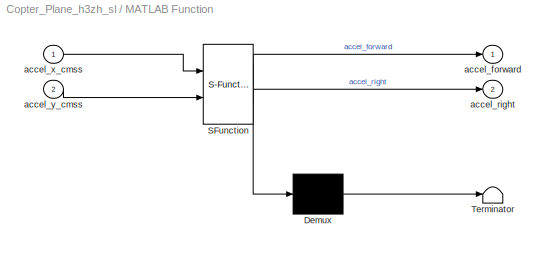
BLOCK [SubSystem] MATLAB Function
  ErrorFcn = Stateflow.Translate.translate
  PermitHierarchicalResolution = ExplicitOnly
  Ports = [2, 2]
  RequestExecContextInheritance = off
  SFBlockType = MATLAB Function
  SID = 3038
  TreatAsAtomicUnit = on
BLOCK [Demux] MATLAB Function/ Demux 
  Outputs = 1
  Ports = [1, 1]
  SID = 3038::26
BLOCK [S-Function] MATLAB Function/ SFunction 
  EnableBusSupport = on
  FunctionName = sf_sfun
  PortCounts = [2 3]
  Ports = [2, 3]
  SFcnIsStateOwnerBlock = off
  SFunctionDeploymentMode = off
  SID = 3038::25
  Tag = Stateflow S-Function 7
BLOCK [Terminator] MATLAB Function/ Terminator 
  SID = 3038::27
BLOCK [Outport] MATLAB Function/accel_forward
  SID = 3038::5
BLOCK [Outport] MATLAB Function/accel_right
  Port = 2
  SID = 3038::23
BLOCK [Inport] MATLAB Function/accel_x_cmss
  SID = 3038::1
BLOCK [Inport] MATLAB Function/accel_y_cmss
  Port = 2
  SID = 3038::22
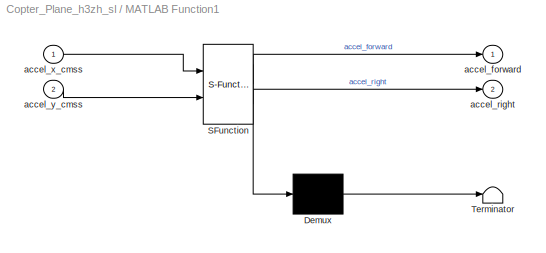
BLOCK [SubSystem] MATLAB Function1
  ErrorFcn = Stateflow.Translate.translate
  PermitHierarchicalResolution = ExplicitOnly
  Ports = [2, 2]
  RequestExecContextInheritance = off
  SFBlockType = MATLAB Function
  SID = 3060
  TreatAsAtomicUnit = on
BLOCK [Demux] MATLAB Function1/ Demux 
  Outputs = 1
  Ports = [1, 1]
  SID = 3060::26
BLOCK [S-Function] MATLAB Function1/ SFunction 
  EnableBusSupport = on
  FunctionName = sf_sfun
  PortCounts = [2 3]
  Ports = [2, 3]
  SFcnIsStateOwnerBlock = off
  SFunctionDeploymentMode = off
  SID = 3060::25
  Tag = Stateflow S-Function 8
BLOCK [Terminator] MATLAB Function1/ Terminator 
  SID = 3060::27
BLOCK [Outport] MATLAB Function1/accel_forward
  SID = 3060::5
BLOCK [Outport] MATLAB Function1/accel_right
  Port = 2
  SID = 3060::23
BLOCK [Inport] MATLAB Function1/accel_x_cmss
  SID = 3060::1
BLOCK [Inport] MATLAB Function1/accel_y_cmss
  Port = 2
  SID = 3060::22
BLOCK [SubSystem] MATLAB Function10
  ErrorFcn = Stateflow.Translate.translate
  PermitHierarchicalResolution = ExplicitOnly
  Ports = [2, 2]
  RequestExecContextInheritance = off
  SFBlockType = MATLAB Function
  SID = 3504
  TreatAsAtomicUnit = on
BLOCK [Demux] MATLAB Function10/ Demux 
  Outputs = 1
  Ports = [1, 1]
  SID = 3504::26
BLOCK [S-Function] MATLAB Function10/ SFunction 
  EnableBusSupport = on
  FunctionName = sf_sfun
  PortCounts = [2 3]
  Ports = [2, 3]
  SFcnIsStateOwnerBlock = off
  SFunctionDeploymentMode = off
  SID = 3504::25
  Tag = Stateflow S-Function 4
BLOCK [Terminator] MATLAB Function10/ Terminator 
  SID = 3504::27
BLOCK [Outport] MATLAB Function10/accel_forward
  SID = 3504::5
BLOCK [Outport] MATLAB Function10/accel_right
  Port = 2
  SID = 3504::23
BLOCK [Inport] MATLAB Function10/accel_x_cmss
  SID = 3504::1
BLOCK [Inport] MATLAB Function10/accel_y_cmss
  Port = 2
  SID = 3504::22
BLOCK [SubSystem] MATLAB Function11
  ErrorFcn = Stateflow.Translate.translate
  PermitHierarchicalResolution = ExplicitOnly
  Ports = [2, 2]
  RequestExecContextInheritance = off
  SFBlockType = MATLAB Function
  SID = 3505
  TreatAsAtomicUnit = on
BLOCK [Demux] MATLAB Function11/ Demux 
  Outputs = 1
  Ports = [1, 1]
  SID = 3505::26
BLOCK [S-Function] MATLAB Function11/ SFunction 
  EnableBusSupport = on
  FunctionName = sf_sfun
  PortCounts = [2 3]
  Ports = [2, 3]
  SFcnIsStateOwnerBlock = off
  SFunctionDeploymentMode = off
  SID = 3505::25
  Tag = Stateflow S-Function 5
BLOCK [Terminator] MATLAB Function11/ Terminator 
  SID = 3505::27
BLOCK [Outport] MATLAB Function11/accel_forward
  SID = 3505::5
BLOCK [Outport] MATLAB Function11/accel_right
  Port = 2
  SID = 3505::23
BLOCK [Inport] MATLAB Function11/accel_x_cmss
  SID = 3505::1
BLOCK [Inport] MATLAB Function11/accel_y_cmss
  Port = 2
  SID = 3505::22
BLOCK [SubSystem] MATLAB Function12
  ErrorFcn = Stateflow.Translate.translate
  PermitHierarchicalResolution = ExplicitOnly
  Ports = [0, 1]
  RequestExecContextInheritance = off
  SFBlockType = MATLAB Function
  SID = 3506
  TreatAsAtomicUnit = on
BLOCK [Demux] MATLAB Function12/ Demux 
  Outputs = 1
  Ports = [1, 1]
  SID = 3506::26
BLOCK [Ground] MATLAB Function12/ Ground 
  SID = 3506::43
BLOCK [S-Function] MATLAB Function12/ SFunction 
  EnableBusSupport = on
  FunctionName = sf_sfun
  PortCounts = [1 2]
  Ports = [1, 2]
  SFcnIsStateOwnerBlock = off
  SFunctionDeploymentMode = off
  SID = 3506::25
  Tag = Stateflow S-Function 6
BLOCK [Terminator] MATLAB Function12/ Terminator 
  SID = 3506::27
BLOCK [Outport] MATLAB Function12/accel_efn
  SID = 3506::29
BLOCK [SubSystem] MATLAB Function13
  ErrorFcn = Stateflow.Translate.translate
  PermitHierarchicalResolution = ExplicitOnly
  Ports = [2, 2]
  RequestExecContextInheritance = off
  SFBlockType = MATLAB Function
  SID = 3507
  TreatAsAtomicUnit = on
BLOCK [Demux] MATLAB Function13/ Demux 
  Outputs = 1
  Ports = [1, 1]
  SID = 3507::26
BLOCK [S-Function] MATLAB Function13/ SFunction 
  EnableBusSupport = on
  FunctionName = sf_sfun
  PortCounts = [2 3]
  Ports = [2, 3]
  SFcnIsStateOwnerBlock = off
  SFunctionDeploymentMode = off
  SID = 3507::25
  Tag = Stateflow S-Function 9
BLOCK [Terminator] MATLAB Function13/ Terminator 
  SID = 3507::27
BLOCK [Outport] MATLAB Function13/accel_forward
  SID = 3507::5
BLOCK [Outport] MATLAB Function13/accel_right
  Port = 2
  SID = 3507::23
BLOCK [Inport] MATLAB Function13/accel_x_cmss
  SID = 3507::1
BLOCK [Inport] MATLAB Function13/accel_y_cmss
  Port = 2
  SID = 3507::22
BLOCK [SubSystem] MATLAB Function2
  ErrorFcn = Stateflow.Translate.translate
  PermitHierarchicalResolution = ExplicitOnly
  Ports = [2, 2]
  RequestExecContextInheritance = off
  SFBlockType = MATLAB Function
  SID = 3061
  TreatAsAtomicUnit = on
BLOCK [Demux] MATLAB Function2/ Demux 
  Outputs = 1
  Ports = [1, 1]
  SID = 3061::26
BLOCK [S-Function] MATLAB Function2/ SFunction 
  EnableBusSupport = on
  FunctionName = sf_sfun
  PortCounts = [2 3]
  Ports = [2, 3]
  SFcnIsStateOwnerBlock = off
  SFunctionDeploymentMode = off
  SID = 3061::25
  Tag = Stateflow S-Function 11
BLOCK [Terminator] MATLAB Function2/ Terminator 
  SID = 3061::27
BLOCK [Outport] MATLAB Function2/accel_forward
  SID = 3061::5
BLOCK [Outport] MATLAB Function2/accel_right
  Port = 2
  SID = 3061::23
BLOCK [Inport] MATLAB Function2/accel_x_cmss
  SID = 3061::1
BLOCK [Inport] MATLAB Function2/accel_y_cmss
  Port = 2
  SID = 3061::22
BLOCK [SubSystem] MATLAB Function3
  ErrorFcn = Stateflow.Translate.translate
  PermitHierarchicalResolution = ExplicitOnly
  Ports = [2, 2]
  RequestExecContextInheritance = off
  SFBlockType = MATLAB Function
  SID = 3068
  TreatAsAtomicUnit = on
BLOCK [Demux] MATLAB Function3/ Demux 
  Outputs = 1
  Ports = [1, 1]
  SID = 3068::26
BLOCK [S-Function] MATLAB Function3/ SFunction 
  EnableBusSupport = on
  FunctionName = sf_sfun
  PortCounts = [2 3]
  Ports = [2, 3]
  SFcnIsStateOwnerBlock = off
  SFunctionDeploymentMode = off
  SID = 3068::25
  Tag = Stateflow S-Function 12
BLOCK [Terminator] MATLAB Function3/ Terminator 
  SID = 3068::27
BLOCK [Outport] MATLAB Function3/accel_forward
  SID = 3068::5
BLOCK [Outport] MATLAB Function3/accel_right
  Port = 2
  SID = 3068::23
BLOCK [Inport] MATLAB Function3/accel_x_cmss
  SID = 3068::1
BLOCK [Inport] MATLAB Function3/accel_y_cmss
  Port = 2
  SID = 3068::22
BLOCK [SubSystem] MATLAB Function4
  ErrorFcn = Stateflow.Translate.translate
  PermitHierarchicalResolution = ExplicitOnly
  Ports = [2, 2]
  RequestExecContextInheritance = off
  SFBlockType = MATLAB Function
  SID = 3073
  TreatAsAtomicUnit = on
BLOCK [Demux] MATLAB Function4/ Demux 
  Outputs = 1
  Ports = [1, 1]
  SID = 3073::26
BLOCK [S-Function] MATLAB Function4/ SFunction 
  EnableBusSupport = on
  FunctionName = sf_sfun
  PortCounts = [2 3]
  Ports = [2, 3]
  SFcnIsStateOwnerBlock = off
  SFunctionDeploymentMode = off
  SID = 3073::25
  Tag = Stateflow S-Function 13
BLOCK [Terminator] MATLAB Function4/ Terminator 
  SID = 3073::27
BLOCK [Outport] MATLAB Function4/accel_forward
  SID = 3073::5
BLOCK [Outport] MATLAB Function4/accel_right
  Port = 2
  SID = 3073::23
BLOCK [Inport] MATLAB Function4/accel_x_cmss
  SID = 3073::1
BLOCK [Inport] MATLAB Function4/accel_y_cmss
  Port = 2
  SID = 3073::22
BLOCK [SubSystem] MATLAB Function5
  ErrorFcn = Stateflow.Translate.translate
  PermitHierarchicalResolution = ExplicitOnly
  Ports = [0, 1]
  RequestExecContextInheritance = off
  SFBlockType = MATLAB Function
  SID = 3468
  TreatAsAtomicUnit = on
BLOCK [Demux] MATLAB Function5/ Demux 
  Outputs = 1
  Ports = [1, 1]
  SID = 3468::26
BLOCK [Ground] MATLAB Function5/ Ground 
  SID = 3468::43
BLOCK [S-Function] MATLAB Function5/ SFunction 
  EnableBusSupport = on
  FunctionName = sf_sfun
  PortCounts = [1 2]
  Ports = [1, 2]
  SFcnIsStateOwnerBlock = off
  SFunctionDeploymentMode = off
  SID = 3468::25
  Tag = Stateflow S-Function 2
BLOCK [Terminator] MATLAB Function5/ Terminator 
  SID = 3468::27
BLOCK [Outport] MATLAB Function5/accel_efn
  SID = 3468::29
BLOCK [SubSystem] MATLAB Function6
  ErrorFcn = Stateflow.Translate.translate
  PermitHierarchicalResolution = ExplicitOnly
  Ports = [2, 2]
  RequestExecContextInheritance = off
  SFBlockType = MATLAB Function
  SID = 3477
  TreatAsAtomicUnit = on
BLOCK [Demux] MATLAB Function6/ Demux 
  Outputs = 1
  Ports = [1, 1]
  SID = 3477::26
BLOCK [S-Function] MATLAB Function6/ SFunction 
  EnableBusSupport = on
  FunctionName = sf_sfun
  PortCounts = [2 3]
  Ports = [2, 3]
  SFcnIsStateOwnerBlock = off
  SFunctionDeploymentMode = off
  SID = 3477::25
  Tag = Stateflow S-Function 3
BLOCK [Terminator] MATLAB Function6/ Terminator 
  SID = 3477::27
BLOCK [Outport] MATLAB Function6/accel_forward
  SID = 3477::5
BLOCK [Outport] MATLAB Function6/accel_right
  Port = 2
  SID = 3477::23
BLOCK [Inport] MATLAB Function6/accel_x_cmss
  SID = 3477::1
BLOCK [Inport] MATLAB Function6/accel_y_cmss
  Port = 2
  SID = 3477::22
BLOCK [SubSystem] MATLAB Function7
  ErrorFcn = Stateflow.Translate.translate
  PermitHierarchicalResolution = ExplicitOnly
  Ports = [2, 2]
  RequestExecContextInheritance = off
  SFBlockType = MATLAB Function
  SID = 3501
  TreatAsAtomicUnit = on
BLOCK [Demux] MATLAB Function7/ Demux 
  Outputs = 1
  Ports = [1, 1]
  SID = 3501::26
BLOCK [S-Function] MATLAB Function7/ SFunction 
  EnableBusSupport = on
  FunctionName = sf_sfun
  PortCounts = [2 3]
  Ports = [2, 3]
  SFcnIsStateOwnerBlock = off
  SFunctionDeploymentMode = off
  SID = 3501::25
  Tag = Stateflow S-Function 10
BLOCK [Terminator] MATLAB Function7/ Terminator 
  SID = 3501::27
BLOCK [Outport] MATLAB Function7/accel_forward
  SID = 3501::5
BLOCK [Outport] MATLAB Function7/accel_right
  Port = 2
  SID = 3501::23
BLOCK [Inport] MATLAB Function7/accel_x_cmss
  SID = 3501::1
BLOCK [Inport] MATLAB Function7/accel_y_cmss
  Port = 2
  SID = 3501::22
BLOCK [SubSystem] MATLAB Function8
  ErrorFcn = Stateflow.Translate.translate
  PermitHierarchicalResolution = ExplicitOnly
  Ports = [2, 2]
  RequestExecContextInheritance = off
  SFBlockType = MATLAB Function
  SID = 3502
  TreatAsAtomicUnit = on
BLOCK [Demux] MATLAB Function8/ Demux 
  Outputs = 1
  Ports = [1, 1]
  SID = 3502::26
BLOCK [S-Function] MATLAB Function8/ SFunction 
  EnableBusSupport = on
  FunctionName = sf_sfun
  PortCounts = [2 3]
  Ports = [2, 3]
  SFcnIsStateOwnerBlock = off
  SFunctionDeploymentMode = off
  SID = 3502::25
  Tag = Stateflow S-Function 14
BLOCK [Terminator] MATLAB Function8/ Terminator 
  SID = 3502::27
BLOCK [Outport] MATLAB Function8/accel_forward
  SID = 3502::5
BLOCK [Outport] MATLAB Function8/accel_right
  Port = 2
  SID = 3502::23
BLOCK [Inport] MATLAB Function8/accel_x_cmss
  SID = 3502::1
BLOCK [Inport] MATLAB Function8/accel_y_cmss
  Port = 2
  SID = 3502::22
BLOCK [SubSystem] MATLAB Function9
  ErrorFcn = Stateflow.Translate.translate
  PermitHierarchicalResolution = ExplicitOnly
  Ports = [2, 2]
  RequestExecContextInheritance = off
  SFBlockType = MATLAB Function
  SID = 3503
  TreatAsAtomicUnit = on
BLOCK [Demux] MATLAB Function9/ Demux 
  Outputs = 1
  Ports = [1, 1]
  SID = 3503::26
BLOCK [S-Function] MATLAB Function9/ SFunction 
  EnableBusSupport = on
  FunctionName = sf_sfun
  PortCounts = [2 3]
  Ports = [2, 3]
  SFcnIsStateOwnerBlock = off
  SFunctionDeploymentMode = off
  SID = 3503::25
  Tag = Stateflow S-Function 15
BLOCK [Terminator] MATLAB Function9/ Terminator 
  SID = 3503::27
BLOCK [Outport] MATLAB Function9/accel_forward
  SID = 3503::5
BLOCK [Outport] MATLAB Function9/accel_right
  Port = 2
  SID = 3503::23
BLOCK [Inport] MATLAB Function9/accel_x_cmss
  SID = 3503::1
BLOCK [Inport] MATLAB Function9/accel_y_cmss
  Port = 2
  SID = 3503::22
BLOCK [Mux] Mux1
  DisplayOption = bar
  Inputs = 3
  Ports = [3, 1]
  SID = 2054
BLOCK [Mux] Mux2
  DisplayOption = bar
  Inputs = 2
  Ports = [2, 1]
  SID = 2055
BLOCK [DataStoreMemory] PITCHmaxf
  DataStoreName = PITCHmaxf
  InitialValue = PITCHmaxf
  OutDataTypeStr = double
  ReadBeforeWriteMsg = warning
  SID = 2653
  ShowAdditionalParam = off
  SignalType = real
  VectorParams1D = off
  WriteAfterReadMsg = warning
  WriteAfterWriteMsg = warning
BLOCK [DataStoreMemory] PITCHminf
  DataStoreName = PITCHminf
  InitialValue = PITCHminf
  OutDataTypeStr = double
  ReadBeforeWriteMsg = warning
  SID = 2654
  ShowAdditionalParam = off
  SignalType = real
  VectorParams1D = off
  WriteAfterReadMsg = warning
  WriteAfterWriteMsg = warning
BLOCK [DataStoreMemory] POSCONTROL_ACCELERATION_MIN
  DataStoreName = POSCONTROL_ACCELERATION_MIN
  InitialValue = POSCONTROL_ACCELERATION_MIN
  OutDataTypeStr = double
  ReadBeforeWriteMsg = warning
  SID = 2655
  ShowAdditionalParam = off
  SignalType = real
  WriteAfterReadMsg = warning
  WriteAfterWriteMsg = warning
BLOCK [DataStoreMemory] POSCONTROL_ACCEL_FILTER_HZ
  DataStoreName = POSCONTROL_ACCEL_FILTER_HZ
  InitialValue = POSCONTROL_ACCEL_FILTER_HZ
  OutDataTypeStr = double
  ReadBeforeWriteMsg = warning
  SID = 2656
  ShowAdditionalParam = off
  SignalType = real
  VectorParams1D = off
  WriteAfterReadMsg = warning
  WriteAfterWriteMsg = warning
BLOCK [DataStoreMemory] POSCONTROL_ACCEL_XY
  DataStoreName = POSCONTROL_ACCEL_XY
  InitialValue = POSCONTROL_ACCEL_XY
  OutDataTypeStr = double
  ReadBeforeWriteMsg = warning
  SID = 2657
  ShowAdditionalParam = off
  SignalType = real
  VectorParams1D = off
  WriteAfterReadMsg = warning
  WriteAfterWriteMsg = warning
BLOCK [DataStoreMemory] POSCONTROL_ACCEL_XY_MAX
  DataStoreName = POSCONTROL_ACCEL_XY_MAX
  InitialValue = POSCONTROL_ACCEL_XY_MAX
  OutDataTypeStr = double
  ReadBeforeWriteMsg = warning
  SID = 2658
  ShowAdditionalParam = off
  SignalType = real
  VectorParams1D = off
  WriteAfterReadMsg = warning
  WriteAfterWriteMsg = warning
BLOCK [DataStoreMemory] POSCONTROL_ACCEL_Z
  DataStoreName = POSCONTROL_ACCEL_Z
  InitialValue = POSCONTROL_ACCEL_Z
  OutDataTypeStr = double
  ReadBeforeWriteMsg = warning
  SID = 2659
  ShowAdditionalParam = off
  SignalType = real
  WriteAfterReadMsg = warning
  WriteAfterWriteMsg = warning
BLOCK [DataStoreMemory] POSCONTROL_ACC_Z_D
  DataStoreName = POSCONTROL_ACC_Z_D
  InitialValue = POSCONTROL_ACC_Z_D
  OutDataTypeStr = double
  ReadBeforeWriteMsg = warning
  SID = 2660
  ShowAdditionalParam = off
  SignalType = real
  VectorParams1D = off
  WriteAfterReadMsg = warning
  WriteAfterWriteMsg = warning
BLOCK [DataStoreMemory] POSCONTROL_ACC_Z_FILT_HZ
  DataStoreName = POSCONTROL_ACC_Z_FILT_HZ
  InitialValue = POSCONTROL_ACC_Z_FILT_HZ
  OutDataTypeStr = double
  ReadBeforeWriteMsg = warning
  SID = 2661
  ShowAdditionalParam = off
  SignalType = real
  VectorParams1D = off
  WriteAfterReadMsg = warning
  WriteAfterWriteMsg = warning
BLOCK [DataStoreMemory] POSCONTROL_ACC_Z_FILT_HZ_c2p
  DataStoreName = POSCONTROL_ACC_Z_FILT_HZ_c2p
  InitialValue = POSCONTROL_ACC_Z_FILT_HZ_c2p
  OutDataTypeStr = double
  ReadBeforeWriteMsg = warning
  SID = 2993
  ShowAdditionalParam = off
  SignalType = real
  VectorParams1D = off
  WriteAfterReadMsg = warning
  WriteAfterWriteMsg = warning
BLOCK [DataStoreMemory] POSCONTROL_ACC_Z_FILT_HZ_inint
  DataStoreName = POSCONTROL_ACC_Z_FILT_HZ_inint
  InitialValue = POSCONTROL_ACC_Z_FILT_HZ_inint
  OutDataTypeStr = double
  ReadBeforeWriteMsg = warning
  SID = 3187
  ShowAdditionalParam = off
  SignalType = real
  VectorParams1D = off
  WriteAfterReadMsg = warning
  WriteAfterWriteMsg = warning
BLOCK [DataStoreMemory] POSCONTROL_ACC_Z_I
  DataStoreName = POSCONTROL_ACC_Z_I
  InitialValue = POSCONTROL_ACC_Z_I
  OutDataTypeStr = double
  ReadBeforeWriteMsg = warning
  SID = 2662
  ShowAdditionalParam = off
  SignalType = real
  VectorParams1D = off
  WriteAfterReadMsg = warning
  WriteAfterWriteMsg = warning
BLOCK [DataStoreMemory] POSCONTROL_ACC_Z_IMAX
  DataStoreName = POSCONTROL_ACC_Z_IMAX
  InitialValue = POSCONTROL_ACC_Z_IMAX
  OutDataTypeStr = double
  ReadBeforeWriteMsg = warning
  SID = 2663
  ShowAdditionalParam = off
  SignalType = real
  VectorParams1D = off
  WriteAfterReadMsg = warning
  WriteAfterWriteMsg = warning
BLOCK [DataStoreMemory] POSCONTROL_ACC_Z_I_inint
  DataStoreName = POSCONTROL_ACC_Z_I_inint
  InitialValue = POSCONTROL_ACC_Z_I_inint
  OutDataTypeStr = double
  ReadBeforeWriteMsg = warning
  SID = 3188
  ShowAdditionalParam = off
  SignalType = real
  VectorParams1D = off
  WriteAfterReadMsg = warning
  WriteAfterWriteMsg = warning
BLOCK [DataStoreMemory] POSCONTROL_ACC_Z_P
  DataStoreName = POSCONTROL_ACC_Z_P
  InitialValue = POSCONTROL_ACC_Z_P
  OutDataTypeStr = double
  ReadBeforeWriteMsg = warning
  SID = 2664
  ShowAdditionalParam = off
  SignalType = real
  VectorParams1D = off
  WriteAfterReadMsg = warning
  WriteAfterWriteMsg = warning
BLOCK [DataStoreMemory] POSCONTROL_JERK_RATIO
  DataStoreName = POSCONTROL_JERK_RATIO
  InitialValue = POSCONTROL_JERK_RATIO
  OutDataTypeStr = double
  ReadBeforeWriteMsg = warning
  SID = 2665
  ShowAdditionalParam = off
  SignalType = real
  VectorParams1D = off
  WriteAfterReadMsg = warning
  WriteAfterWriteMsg = warning
BLOCK [DataStoreMemory] POSCONTROL_LEASH_LENGTH_MIN
  DataStoreName = POSCONTROL_LEASH_LENGTH_MIN
  InitialValue = POSCONTROL_LEASH_LENGTH_MIN
  OutDataTypeStr = double
  ReadBeforeWriteMsg = warning
  SID = 2666
  ShowAdditionalParam = off
  SignalType = real
  VectorParams1D = off
  WriteAfterReadMsg = warning
  WriteAfterWriteMsg = warning
BLOCK [DataStoreMemory] POSCONTROL_OVERSPEED_GAIN_Z
  DataStoreName = POSCONTROL_OVERSPEED_GAIN_Z
  InitialValue = POSCONTROL_OVERSPEED_GAIN_Z
  OutDataTypeStr = double
  ReadBeforeWriteMsg = warning
  SID = 2667
  ShowAdditionalParam = off
  SignalType = real
  VectorParams1D = off
  WriteAfterReadMsg = warning
  WriteAfterWriteMsg = warning
BLOCK [DataStoreMemory] POSCONTROL_POS_XY_P
  DataStoreName = POSCONTROL_POS_XY_P
  InitialValue = POSCONTROL_POS_XY_P
  OutDataTypeStr = double
  ReadBeforeWriteMsg = warning
  SID = 2668
  ShowAdditionalParam = off
  SignalType = real
  VectorParams1D = off
  WriteAfterReadMsg = warning
  WriteAfterWriteMsg = warning
BLOCK [DataStoreMemory] POSCONTROL_POS_Z_P
  DataStoreName = POSCONTROL_POS_Z_P
  InitialValue = POSCONTROL_POS_Z_P
  OutDataTypeStr = double
  ReadBeforeWriteMsg = warning
  SID = 2669
  ShowAdditionalParam = off
  SignalType = real
  VectorParams1D = off
  WriteAfterReadMsg = warning
  WriteAfterWriteMsg = warning
BLOCK [DataStoreMemory] POSCONTROL_SPEED
  DataStoreName = POSCONTROL_SPEED
  InitialValue = POSCONTROL_SPEED
  OutDataTypeStr = double
  ReadBeforeWriteMsg = warning
  SID = 2670
  ShowAdditionalParam = off
  SignalType = real
  WriteAfterReadMsg = warning
  WriteAfterWriteMsg = warning
BLOCK [DataStoreMemory] POSCONTROL_SPEED_DOWN
  DataStoreName = POSCONTROL_SPEED_DOWN
  InitialValue = POSCONTROL_SPEED_DOWN
  OutDataTypeStr = double
  ReadBeforeWriteMsg = warning
  SID = 2671
  ShowAdditionalParam = off
  SignalType = real
  WriteAfterReadMsg = warning
  WriteAfterWriteMsg = warning
BLOCK [DataStoreMemory] POSCONTROL_SPEED_UP
  DataStoreName = POSCONTROL_SPEED_UP
  InitialValue = POSCONTROL_SPEED_UP
  OutDataTypeStr = double
  ReadBeforeWriteMsg = warning
  SID = 2672
  ShowAdditionalParam = off
  SignalType = real
  WriteAfterReadMsg = warning
  WriteAfterWriteMsg = warning
BLOCK [DataStoreMemory] POSCONTROL_STOPPING_DIST_DOWN_MAX
  DataStoreName = POSCONTROL_STOPPING_DIST_DOWN_MAX
  InitialValue = POSCONTROL_STOPPING_DIST_DOWN_MAX
  OutDataTypeStr = double
  ReadBeforeWriteMsg = warning
  SID = 2673
  ShowAdditionalParam = off
  SignalType = real
  VectorParams1D = off
  WriteAfterReadMsg = warning
  WriteAfterWriteMsg = warning
BLOCK [DataStoreMemory] POSCONTROL_STOPPING_DIST_UP_MAX
  DataStoreName = POSCONTROL_STOPPING_DIST_UP_MAX
  InitialValue = POSCONTROL_STOPPING_DIST_UP_MAX
  OutDataTypeStr = double
  ReadBeforeWriteMsg = warning
  SID = 2674
  ShowAdditionalParam = off
  SignalType = real
  VectorParams1D = off
  WriteAfterReadMsg = warning
  WriteAfterWriteMsg = warning
BLOCK [DataStoreMemory] POSCONTROL_THROTTLE_CUTOFF_FREQ
  DataStoreName = POSCONTROL_THROTTLE_CUTOFF_FREQ
  InitialValue = POSCONTROL_THROTTLE_CUTOFF_FREQ
  OutDataTypeStr = double
  ReadBeforeWriteMsg = warning
  SID = 2675
  ShowAdditionalParam = off
  SignalType = real
  VectorParams1D = off
  WriteAfterReadMsg = warning
  WriteAfterWriteMsg = warning
BLOCK [DataStoreMemory] POSCONTROL_VEL_ERROR_CUTOFF_FREQ
  DataStoreName = POSCONTROL_VEL_ERROR_CUTOFF_FREQ
  InitialValue = POSCONTROL_VEL_ERROR_CUTOFF_FREQ
  OutDataTypeStr = double
  ReadBeforeWriteMsg = warning
  SID = 2676
  ShowAdditionalParam = off
  SignalType = real
  VectorParams1D = off
  WriteAfterReadMsg = warning
  WriteAfterWriteMsg = warning
BLOCK [DataStoreMemory] POSCONTROL_VEL_XY_D
  DataStoreName = POSCONTROL_VEL_XY_D
  InitialValue = POSCONTROL_VEL_XY_D
  OutDataTypeStr = double
  ReadBeforeWriteMsg = warning
  SID = 2677
  ShowAdditionalParam = off
  SignalType = real
  VectorParams1D = off
  WriteAfterReadMsg = warning
  WriteAfterWriteMsg = warning
BLOCK [DataStoreMemory] POSCONTROL_VEL_XY_FILT_D_HZ
  DataStoreName = POSCONTROL_VEL_XY_FILT_D_HZ
  InitialValue = POSCONTROL_VEL_XY_FILT_D_HZ
  OutDataTypeStr = double
  ReadBeforeWriteMsg = warning
  SID = 2678
  ShowAdditionalParam = off
  SignalType = real
  VectorParams1D = off
  WriteAfterReadMsg = warning
  WriteAfterWriteMsg = warning
BLOCK [DataStoreMemory] POSCONTROL_VEL_XY_FILT_HZ
  DataStoreName = POSCONTROL_VEL_XY_FILT_HZ
  InitialValue = POSCONTROL_VEL_XY_FILT_HZ
  OutDataTypeStr = double
  ReadBeforeWriteMsg = warning
  SID = 2679
  ShowAdditionalParam = off
  SignalType = real
  VectorParams1D = off
  WriteAfterReadMsg = warning
  WriteAfterWriteMsg = warning
BLOCK [DataStoreMemory] POSCONTROL_VEL_XY_I
  DataStoreName = POSCONTROL_VEL_XY_I
  InitialValue = POSCONTROL_VEL_XY_I
  OutDataTypeStr = double
  ReadBeforeWriteMsg = warning
  SID = 2680
  ShowAdditionalParam = off
  SignalType = real
  VectorParams1D = off
  WriteAfterReadMsg = warning
  WriteAfterWriteMsg = warning
BLOCK [DataStoreMemory] POSCONTROL_VEL_XY_IMAX
  DataStoreName = POSCONTROL_VEL_XY_IMAX
  InitialValue = POSCONTROL_VEL_XY_IMAX
  OutDataTypeStr = double
  ReadBeforeWriteMsg = warning
  SID = 2681
  ShowAdditionalParam = off
  SignalType = real
  VectorParams1D = off
  WriteAfterReadMsg = warning
  WriteAfterWriteMsg = warning
BLOCK [DataStoreMemory] POSCONTROL_VEL_XY_I_inint
  DataStoreName = POSCONTROL_VEL_XY_I_inint
  InitialValue = POSCONTROL_VEL_XY_I_inint
  OutDataTypeStr = double
  ReadBeforeWriteMsg = warning
  SID = 3189
  ShowAdditionalParam = off
  SignalType = real
  VectorParams1D = off
  WriteAfterReadMsg = warning
  WriteAfterWriteMsg = warning
BLOCK [DataStoreMemory] POSCONTROL_VEL_XY_P
  DataStoreName = POSCONTROL_VEL_XY_P
  InitialValue = POSCONTROL_VEL_XY_P
  OutDataTypeStr = double
  ReadBeforeWriteMsg = warning
  SID = 2682
  ShowAdditionalParam = off
  SignalType = real
  VectorParams1D = off
  WriteAfterReadMsg = warning
  WriteAfterWriteMsg = warning
BLOCK [DataStoreMemory] POSCONTROL_VEL_Z_P
  DataStoreName = POSCONTROL_VEL_Z_P
  InitialValue = POSCONTROL_VEL_Z_P
  OutDataTypeStr = double
  ReadBeforeWriteMsg = warning
  SID = 2683
  ShowAdditionalParam = off
  SignalType = real
  VectorParams1D = off
  WriteAfterReadMsg = warning
  WriteAfterWriteMsg = warning
BLOCK [DataStoreMemory] PathModeOut
  DataStoreName = PathModeOut_sl
  InitialValue = PathModeOut_sl
  OutDataTypeStr = Bus: BUS_TASK_PATH_OutParam
  ReadBeforeWriteMsg = warning
  SID = 3415
  ShowAdditionalParam = off
  SignalType = real
  VectorParams1D = off
  WriteAfterReadMsg = warning
  WriteAfterWriteMsg = warning
BLOCK [DataStoreMemory] SKE_dem
  DataStoreName = SKE_dem
  InitialValue = SKE_dem
  OutDataTypeStr = double
  ReadBeforeWriteMsg = warning
  SID = 2684
  ShowAdditionalParam = off
  SignalType = real
  VectorParams1D = off
  WriteAfterReadMsg = warning
  WriteAfterWriteMsg = warning
BLOCK [DataStoreMemory] SKE_est
  DataStoreName = SKE_est
  InitialValue = SKE_est
  OutDataTypeStr = double
  ReadBeforeWriteMsg = warning
  SID = 2685
  ShowAdditionalParam = off
  SignalType = real
  VectorParams1D = off
  WriteAfterReadMsg = warning
  WriteAfterWriteMsg = warning
BLOCK [DataStoreMemory] SKEdot
  DataStoreName = SKEdot
  InitialValue = SKEdot
  OutDataTypeStr = double
  ReadBeforeWriteMsg = warning
  SID = 2686
  ShowAdditionalParam = off
  SignalType = real
  VectorParams1D = off
  WriteAfterReadMsg = warning
  WriteAfterWriteMsg = warning
BLOCK [DataStoreMemory] SKEdot_dem
  DataStoreName = SKEdot_dem
  InitialValue = SKEdot_dem
  OutDataTypeStr = double
  ReadBeforeWriteMsg = warning
  SID = 2687
  ShowAdditionalParam = off
  SignalType = real
  VectorParams1D = off
  WriteAfterReadMsg = warning
  WriteAfterWriteMsg = warning
BLOCK [DataStoreMemory] SPE_dem
  DataStoreName = SPE_dem
  InitialValue = SPE_dem
  OutDataTypeStr = double
  ReadBeforeWriteMsg = warning
  SID = 2688
  ShowAdditionalParam = off
  SignalType = real
  VectorParams1D = off
  WriteAfterReadMsg = warning
  WriteAfterWriteMsg = warning
BLOCK [DataStoreMemory] SPE_est
  DataStoreName = SPE_est
  InitialValue = SPE_est
  OutDataTypeStr = double
  ReadBeforeWriteMsg = warning
  SID = 2689
  ShowAdditionalParam = off
  SignalType = real
  VectorParams1D = off
  WriteAfterReadMsg = warning
  WriteAfterWriteMsg = warning
BLOCK [DataStoreMemory] SPEdot
  DataStoreName = SPEdot
  InitialValue = SPEdot
  OutDataTypeStr = double
  ReadBeforeWriteMsg = warning
  SID = 2690
  ShowAdditionalParam = off
  SignalType = real
  VectorParams1D = off
  WriteAfterReadMsg = warning
  WriteAfterWriteMsg = warning
BLOCK [DataStoreMemory] SPEdot_dem
  DataStoreName = SPEdot_dem
  InitialValue = SPEdot_dem
  OutDataTypeStr = double
  ReadBeforeWriteMsg = warning
  SID = 2691
  ShowAdditionalParam = off
  SignalType = real
  VectorParams1D = off
  WriteAfterReadMsg = warning
  WriteAfterWriteMsg = warning
BLOCK [DataStoreMemory] STE_error
  DataStoreName = STE_error
  InitialValue = STE_error
  OutDataTypeStr = double
  ReadBeforeWriteMsg = warning
  SID = 2692
  ShowAdditionalParam = off
  SignalType = real
  VectorParams1D = off
  WriteAfterReadMsg = warning
  WriteAfterWriteMsg = warning
BLOCK [DataStoreMemory] STEdotErrLast
  DataStoreName = STEdotErrLast
  InitialValue = STEdotErrLast
  OutDataTypeStr = double
  ReadBeforeWriteMsg = warning
  SID = 2693
  ShowAdditionalParam = off
  SignalType = real
  VectorParams1D = off
  WriteAfterReadMsg = warning
  WriteAfterWriteMsg = warning
BLOCK [DataStoreMemory] STEdot_max
  DataStoreName = STEdot_max
  InitialValue = STEdot_max
  OutDataTypeStr = double
  ReadBeforeWriteMsg = warning
  SID = 2694
  ShowAdditionalParam = off
  SignalType = real
  VectorParams1D = off
  WriteAfterReadMsg = warning
  WriteAfterWriteMsg = warning
BLOCK [DataStoreMemory] STEdot_min
  DataStoreName = STEdot_min
  InitialValue = STEdot_min
  OutDataTypeStr = double
  ReadBeforeWriteMsg = warning
  SID = 2695
  ShowAdditionalParam = off
  SignalType = real
  VectorParams1D = off
  WriteAfterReadMsg = warning
  WriteAfterWriteMsg = warning
BLOCK [Scope] Scope
  Floating = off
  NumInputPorts = 1
  Ports = [1]
  SID = 1266
  ScopeSpecificationString = Simulink.scopes.TimeScopeBlockCfg('CurrentConfiguration', extmgr.ConfigurationSet(extmgr.Configuration('Core','General UI',true),extmgr.Configuration('Core','Source UI',true),extmgr.Configuration('Sources','WiredSimulink',true,'DataLoggingVariableName','ScopeData6'),extmgr.Configuration('Visuals','Time Domain',true,'SerializedDisplays',{struct('MinYLimReal','-93.71626','MaxYLimReal','84.92328','YL...<+1451ch>
BLOCK [Scope] Scope1
  Floating = off
  NumInputPorts = 2
  Ports = [2]
  SID = 1086
  ScopeSpecificationString = Simulink.scopes.TimeScopeBlockCfg('CurrentConfiguration', extmgr.ConfigurationSet(extmgr.Configuration('Core','General UI',true),extmgr.Configuration('Core','Source UI',true),extmgr.Configuration('Sources','WiredSimulink',true,'DataLoggingVariableName','ScopeData5'),extmgr.Configuration('Visuals','Time Domain',true,'SerializedDisplays',{struct('MinYLimReal','-4.02115','MaxYLimReal','4.23805','YLab...<+1494ch>
BLOCK [Scope] Scope10
  Floating = off
  NumInputPorts = 1
  Ports = [1]
  SID = 905
  ScopeSpecificationString = Simulink.scopes.TimeScopeBlockCfg('CurrentConfiguration', extmgr.ConfigurationSet(extmgr.Configuration('Core','General UI',true),extmgr.Configuration('Core','Source UI',true),extmgr.Configuration('Sources','WiredSimulink',true,'DataLoggingVariableName','ScopeData4'),extmgr.Configuration('Visuals','Time Domain',true,'SerializedDisplays',{struct('MinYLimReal','-0.125','MaxYLimReal','11.125','YLabelR...<+1465ch>
BLOCK [Scope] Scope100
  Floating = off
  NumInputPorts = 2
  Ports = [2]
  SID = 3075
  ScopeSpecificationString = Simulink.scopes.TimeScopeBlockCfg('CurrentConfiguration', extmgr.ConfigurationSet(extmgr.Configuration('Core','General UI',true),extmgr.Configuration('Core','Source UI',true),extmgr.Configuration('Sources','WiredSimulink',true,'DataLoggingVariableName','ScopeData9'),extmgr.Configuration('Visuals','Time Domain',true,'SerializedDisplays',{struct('MinYLimReal','-197.88957','MaxYLimReal','910.2963','Y...<+1530ch>
BLOCK [Scope] Scope101
  Floating = off
  NumInputPorts = 2
  Ports = [2]
  SID = 3095
  ScopeSpecificationString = Simulink.scopes.TimeScopeBlockCfg('CurrentConfiguration', extmgr.ConfigurationSet(extmgr.Configuration('Core','General UI',true),extmgr.Configuration('Core','Source UI',true),extmgr.Configuration('Sources','WiredSimulink',true,'DataLoggingVariableName','ScopeData1'),extmgr.Configuration('Visuals','Time Domain',true,'SerializedDisplays',{struct('MinYLimReal','-107.505','MaxYLimReal','11.945','YLabe...<+1516ch>
BLOCK [Scope] Scope102
  Floating = off
  NumInputPorts = 2
  Ports = [2]
  SID = 3107
  ScopeSpecificationString = Simulink.scopes.TimeScopeBlockCfg('CurrentConfiguration', extmgr.ConfigurationSet(extmgr.Configuration('Core','General UI',true),extmgr.Configuration('Core','Source UI',true),extmgr.Configuration('Sources','WiredSimulink',true,'DataLoggingVariableName','ScopeData2'),extmgr.Configuration('Visuals','Time Domain',true,'SerializedDisplays',{struct('MinYLimReal','-16.30458','MaxYLimReal','22.17236','YL...<+1506ch>
BLOCK [Scope] Scope103
  Floating = off
  NumInputPorts = 2
  Ports = [2]
  SID = 3109
  ScopeSpecificationString = Simulink.scopes.TimeScopeBlockCfg('CurrentConfiguration', extmgr.ConfigurationSet(extmgr.Configuration('Core','General UI',true),extmgr.Configuration('Core','Source UI',true),extmgr.Configuration('Sources','WiredSimulink',true,'DataLoggingVariableName','ScopeData3'),extmgr.Configuration('Visuals','Time Domain',true,'SerializedDisplays',{struct('MinYLimReal','-6.7151','MaxYLimReal','10.04829','YLab...<+1502ch>
BLOCK [Scope] Scope104
  Floating = off
  NumInputPorts = 2
  Ports = [2]
  SID = 3120
  ScopeSpecificationString = Simulink.scopes.TimeScopeBlockCfg('CurrentConfiguration', extmgr.ConfigurationSet(extmgr.Configuration('Core','General UI',true),extmgr.Configuration('Core','Source UI',true),extmgr.Configuration('Sources','WiredSimulink',true,'DataLoggingVariableName','ScopeData4'),extmgr.Configuration('Visuals','Time Domain',true,'SerializedDisplays',{struct('MinYLimReal','-1.31755','MaxYLimReal','1.09582','YLab...<+1511ch>
BLOCK [Scope] Scope105
  Floating = off
  NumInputPorts = 2
  Ports = [2]
  SID = 3121
  ScopeSpecificationString = Simulink.scopes.TimeScopeBlockCfg('CurrentConfiguration', extmgr.ConfigurationSet(extmgr.Configuration('Core','General UI',true),extmgr.Configuration('Core','Source UI',true),extmgr.Configuration('Sources','WiredSimulink',true,'DataLoggingVariableName','ScopeData5'),extmgr.Configuration('Visuals','Time Domain',true,'SerializedDisplays',{struct('MinYLimReal','-1.03688','MaxYLimReal','0.71018','YLab...<+1511ch>
BLOCK [Scope] Scope106
  Floating = off
  NumInputPorts = 2
  Ports = [2]
  SID = 3122
  ScopeSpecificationString = Simulink.scopes.TimeScopeBlockCfg('CurrentConfiguration', extmgr.ConfigurationSet(extmgr.Configuration('Core','General UI',true),extmgr.Configuration('Core','Source UI',true),extmgr.Configuration('Sources','WiredSimulink',true,'DataLoggingVariableName','ScopeData6'),extmgr.Configuration('Visuals','Time Domain',true,'SerializedDisplays',{struct('MinYLimReal','-0.03038','MaxYLimReal','0.03194','YLab...<+1511ch>
BLOCK [Scope] Scope107
  Floating = off
  NumInputPorts = 2
  Ports = [2]
  SID = 1025
  ScopeSpecificationString = Simulink.scopes.TimeScopeBlockCfg('CurrentConfiguration', extmgr.ConfigurationSet(extmgr.Configuration('Core','General UI',true),extmgr.Configuration('Core','Source UI',true),extmgr.Configuration('Sources','WiredSimulink',true,'DataLoggingVariableName','ScopeData14'),extmgr.Configuration('Visuals','Time Domain',true,'SerializedDisplays',{struct('MinYLimReal','-134.72313','MaxYLimReal','62.58847','...<+1485ch>
BLOCK [Scope] Scope108
  Floating = off
  NumInputPorts = 2
  Ports = [2]
  SID = 3127
  ScopeSpecificationString = Simulink.scopes.TimeScopeBlockCfg('CurrentConfiguration', extmgr.ConfigurationSet(extmgr.Configuration('Core','General UI',true),extmgr.Configuration('Core','Source UI',true),extmgr.Configuration('Sources','WiredSimulink',true,'DataLoggingVariableName','ScopeData7'),extmgr.Configuration('Visuals','Time Domain',true,'SerializedDisplays',{struct('MinYLimReal','-440.35339','MaxYLimReal','382.24792','...<+1498ch>
BLOCK [Scope] Scope109
  Floating = off
  NumInputPorts = 2
  Ports = [2]
  SID = 3129
  ScopeSpecificationString = Simulink.scopes.TimeScopeBlockCfg('CurrentConfiguration', extmgr.ConfigurationSet(extmgr.Configuration('Core','General UI',true),extmgr.Configuration('Core','Source UI',true),extmgr.Configuration('Sources','WiredSimulink',true,'DataLoggingVariableName','ScopeData8'),extmgr.Configuration('Visuals','Time Domain',true,'SerializedDisplays',{struct('MinYLimReal','-14.41956','MaxYLimReal','129.776','YLa...<+1485ch>
BLOCK [Scope] Scope11
  Floating = off
  NumInputPorts = 1
  Ports = [1]
  SID = 918
  ScopeSpecificationString = Simulink.scopes.TimeScopeBlockCfg('CurrentConfiguration', extmgr.ConfigurationSet(extmgr.Configuration('Core','General UI',true),extmgr.Configuration('Core','Source UI',true),extmgr.Configuration('Sources','WiredSimulink',true,'DataLoggingVariableName','ScopeData5'),extmgr.Configuration('Visuals','Time Domain',true,'SerializedDisplays',{struct('MinYLimReal','-152.58697','MaxYLimReal','155.12671','...<+1449ch>
BLOCK [Scope] Scope110
  Floating = off
  NumInputPorts = 2
  Ports = [2]
  SID = 3144
  ScopeSpecificationString = Simulink.scopes.TimeScopeBlockCfg('CurrentConfiguration', extmgr.ConfigurationSet(extmgr.Configuration('Core','General UI',true),extmgr.Configuration('Core','Source UI',true),extmgr.Configuration('Sources','WiredSimulink',true,'DataLoggingVariableName','ScopeData1'),extmgr.Configuration('Visuals','Time Domain',true,'SerializedDisplays',{struct('MinYLimReal','-2869.62184','MaxYLimReal','1424.30013'...<+1516ch>
BLOCK [Scope] Scope111
  Floating = off
  NumInputPorts = 2
  Ports = [2]
  SID = 1041
  ScopeSpecificationString = Simulink.scopes.TimeScopeBlockCfg('CurrentConfiguration', extmgr.ConfigurationSet(extmgr.Configuration('Core','General UI',true),extmgr.Configuration('Core','Source UI',true),extmgr.Configuration('Sources','WiredSimulink',true,'DataLoggingVariableName','ScopeData3'),extmgr.Configuration('Visuals','Time Domain',true,'SerializedDisplays',{struct('MinYLimReal','-23.15056','MaxYLimReal','24.79451','YL...<+1500ch>
BLOCK [Scope] Scope112
  Floating = off
  NumInputPorts = 3
  Ports = [3]
  SID = 1044
  ScopeSpecificationString = Simulink.scopes.TimeScopeBlockCfg('CurrentConfiguration', extmgr.ConfigurationSet(extmgr.Configuration('Core','General UI',true),extmgr.Configuration('Core','Source UI',true),extmgr.Configuration('Sources','WiredSimulink',true,'DataLoggingVariableName','ScopeData4'),extmgr.Configuration('Visuals','Time Domain',true,'SerializedDisplays',{struct('MinYLimReal','-31.01712','MaxYLimReal','53.56111','YL...<+1512ch>
BLOCK [Scope] Scope113
  Floating = off
  NumInputPorts = 1
  Ports = [1]
  SID = 3170
  ScopeSpecificationString = Simulink.scopes.TimeScopeBlockCfg('CurrentConfiguration', extmgr.ConfigurationSet(extmgr.Configuration('Core','General UI',true),extmgr.Configuration('Core','Source UI',true),extmgr.Configuration('Sources','WiredSimulink',true,'DataLoggingVariableName','ScopeData1'),extmgr.Configuration('Visuals','Time Domain',true,'SerializedDisplays',{struct('MinYLimReal','-1.25','MaxYLimReal','11.25','YLabelRea...<+1354ch>
BLOCK [Scope] Scope114
  Floating = off
  NumInputPorts = 1
  Ports = [1]
  SID = 3171
  ScopeSpecificationString = Simulink.scopes.TimeScopeBlockCfg('CurrentConfiguration', extmgr.ConfigurationSet(extmgr.Configuration('Core','General UI',true),extmgr.Configuration('Core','Source UI',true),extmgr.Configuration('Sources','WiredSimulink',true,'DataLoggingVariableName','ScopeData2'),extmgr.Configuration('Visuals','Time Domain',true,'SerializedDisplays',{struct('MinYLimReal','-1.25','MaxYLimReal','11.25','YLabelRea...<+1421ch>
BLOCK [Scope] Scope115
  Floating = off
  NumInputPorts = 1
  Ports = [1]
  SID = 3174
  ScopeSpecificationString = Simulink.scopes.TimeScopeBlockCfg('CurrentConfiguration', extmgr.ConfigurationSet(extmgr.Configuration('Core','General UI',true),extmgr.Configuration('Core','Source UI',true),extmgr.Configuration('Sources','WiredSimulink',true,'DataLoggingVariableName','ScopeData1'),extmgr.Configuration('Visuals','Time Domain',true,'SerializedDisplays',{struct('MinYLimReal','-0.125','MaxYLimReal','1.125','YLabelRe...<+1867ch>
BLOCK [Scope] Scope116
  Floating = off
  NumInputPorts = 2
  Ports = [2]
  SID = 3181
  ScopeSpecificationString = Simulink.scopes.TimeScopeBlockCfg('CurrentConfiguration', extmgr.ConfigurationSet(extmgr.Configuration('Core','General UI',true),extmgr.Configuration('Core','Source UI',true),extmgr.Configuration('Sources','WiredSimulink',true,'DataLoggingVariableName','ScopeData1'),extmgr.Configuration('Visuals','Time Domain',true,'SerializedDisplays',{struct('MinYLimReal','-18.7912','MaxYLimReal','169.12079','YL...<+1486ch>
BLOCK [Scope] Scope117
  Floating = off
  NumInputPorts = 2
  Ports = [2]
  SID = 3194
  ScopeSpecificationString = Simulink.scopes.TimeScopeBlockCfg('CurrentConfiguration', extmgr.ConfigurationSet(extmgr.Configuration('Core','General UI',true),extmgr.Configuration('Core','Source UI',true),extmgr.Configuration('Sources','WiredSimulink',true,'DataLoggingVariableName','ScopeData1'),extmgr.Configuration('Visuals','Time Domain',true,'SerializedDisplays',{struct('MinYLimReal','-54.73085','MaxYLimReal','39.43357','YL...<+1488ch>
BLOCK [Scope] Scope118
  Floating = off
  NumInputPorts = 2
  Ports = [2]
  SID = 3199
  ScopeSpecificationString = Simulink.scopes.TimeScopeBlockCfg('CurrentConfiguration', extmgr.ConfigurationSet(extmgr.Configuration('Core','General UI',true),extmgr.Configuration('Core','Source UI',true),extmgr.Configuration('Sources','WiredSimulink',true,'DataLoggingVariableName','ScopeData2'),extmgr.Configuration('Visuals','Time Domain',true,'SerializedDisplays',{struct('MinYLimReal','-7.82101','MaxYLimReal','12.93362','YLa...<+1499ch>
BLOCK [Scope] Scope119
  Floating = off
  NumInputPorts = 2
  Ports = [2]
  SID = 3204
  ScopeSpecificationString = Simulink.scopes.TimeScopeBlockCfg('CurrentConfiguration', extmgr.ConfigurationSet(extmgr.Configuration('Core','General UI',true),extmgr.Configuration('Core','Source UI',true),extmgr.Configuration('Sources','WiredSimulink',true,'DataLoggingVariableName','ScopeData3'),extmgr.Configuration('Visuals','Time Domain',true,'SerializedDisplays',{struct('MinYLimReal','-0.29325','MaxYLimReal','1.00973','YLab...<+1484ch>
BLOCK [Scope] Scope12
  Floating = off
  NumInputPorts = 1
  Ports = [1]
  SID = 919
  ScopeSpecificationString = Simulink.scopes.TimeScopeBlockCfg('CurrentConfiguration', extmgr.ConfigurationSet(extmgr.Configuration('Core','General UI',true),extmgr.Configuration('Core','Source UI',true),extmgr.Configuration('Sources','WiredSimulink',true,'DataLoggingVariableName','ScopeData6'),extmgr.Configuration('Visuals','Time Domain',true,'SerializedDisplays',{struct('MinYLimReal','-37.0572','MaxYLimReal','24.3673','YLab...<+1462ch>
BLOCK [Scope] Scope120
  Floating = off
  NumInputPorts = 2
  Ports = [2]
  SID = 3205
  ScopeSpecificationString = Simulink.scopes.TimeScopeBlockCfg('CurrentConfiguration', extmgr.ConfigurationSet(extmgr.Configuration('Core','General UI',true),extmgr.Configuration('Core','Source UI',true),extmgr.Configuration('Sources','WiredSimulink',true,'DataLoggingVariableName','ScopeData4'),extmgr.Configuration('Visuals','Time Domain',true,'SerializedDisplays',{struct('MinYLimReal','-0.22267','MaxYLimReal','0.82267','YLab...<+1484ch>
BLOCK [Scope] Scope121
  Floating = off
  NumInputPorts = 1
  Ports = [1]
  SID = 3206
  ScopeSpecificationString = Simulink.scopes.TimeScopeBlockCfg('CurrentConfiguration', extmgr.ConfigurationSet(extmgr.Configuration('Core','General UI',true),extmgr.Configuration('Core','Source UI',true),extmgr.Configuration('Sources','WiredSimulink',true,'DataLoggingVariableName','ScopeData5'),extmgr.Configuration('Visuals','Time Domain',true,'SerializedDisplays',{struct('MinYLimReal','-1.00000','MaxYLimReal','1.00000','YLab...<+1450ch>
BLOCK [Scope] Scope122
  Floating = off
  NumInputPorts = 2
  Ports = [2]
  SID = 3209
  ScopeSpecificationString = Simulink.scopes.TimeScopeBlockCfg('CurrentConfiguration', extmgr.ConfigurationSet(extmgr.Configuration('Core','General UI',true),extmgr.Configuration('Core','Source UI',true),extmgr.Configuration('Sources','WiredSimulink',true,'DataLoggingVariableName','ScopeData1'),extmgr.Configuration('Visuals','Time Domain',true,'SerializedDisplays',{struct('MinYLimReal','-458.35428','MaxYLimReal','507.92076','...<+1764ch>
BLOCK [Scope] Scope123
  Floating = off
  NumInputPorts = 3
  Ports = [3]
  SID = 3241
  ScopeSpecificationString = Simulink.scopes.TimeScopeBlockCfg('CurrentConfiguration', extmgr.ConfigurationSet(extmgr.Configuration('Core','General UI',true),extmgr.Configuration('Core','Source UI',true),extmgr.Configuration('Sources','WiredSimulink',true,'DataLoggingVariableName','ScopeData1'),extmgr.Configuration('Visuals','Time Domain',true,'SerializedDisplays',{struct('MinYLimReal','-50000000.00000','MaxYLimReal','4500000...<+1536ch>
BLOCK [Scope] Scope124
  Floating = off
  NumInputPorts = 3
  Ports = [3]
  SID = 3245
  ScopeSpecificationString = Simulink.scopes.TimeScopeBlockCfg('CurrentConfiguration', extmgr.ConfigurationSet(extmgr.Configuration('Core','General UI',true),extmgr.Configuration('Core','Source UI',true),extmgr.Configuration('Sources','WiredSimulink',true,'DataLoggingVariableName','ScopeData2'),extmgr.Configuration('Visuals','Time Domain',true,'SerializedDisplays',{struct('MinYLimReal','-145470336.375','MaxYLimReal','13092330...<+1539ch>
BLOCK [Scope] Scope125
  Floating = off
  NumInputPorts = 4
  Ports = [4]
  SID = 3402
  ScopeSpecificationString = Simulink.scopes.TimeScopeBlockCfg('CurrentConfiguration', extmgr.ConfigurationSet(extmgr.Configuration('Core','General UI',true),extmgr.Configuration('Core','Source UI',true),extmgr.Configuration('Sources','WiredSimulink',true,'DataLoggingVariableName','ScopeData2'),extmgr.Configuration('Visuals','Time Domain',true,'SerializedDisplays',{struct('MinYLimReal','-61.6164','MaxYLimReal','117.56618','YL...<+1842ch>
BLOCK [Scope] Scope126
  Floating = off
  NumInputPorts = 2
  Ports = [2]
  SID = 3407
  ScopeSpecificationString = Simulink.scopes.TimeScopeBlockCfg('CurrentConfiguration', extmgr.ConfigurationSet(extmgr.Configuration('Core','General UI',true),extmgr.Configuration('Core','Source UI',true),extmgr.Configuration('Sources','WiredSimulink',true,'DataLoggingVariableName','ScopeData1'),extmgr.Configuration('Visuals','Time Domain',true,'SerializedDisplays',{struct('MinYLimReal','395174982.85509','MaxYLimReal','3952370...<+1534ch>
BLOCK [Scope] Scope127
  Floating = off
  NumInputPorts = 2
  Ports = [2]
  SID = 3408
  ScopeSpecificationString = Simulink.scopes.TimeScopeBlockCfg('CurrentConfiguration', extmgr.ConfigurationSet(extmgr.Configuration('Core','General UI',true),extmgr.Configuration('Core','Source UI',true),extmgr.Configuration('Sources','WiredSimulink',true,'DataLoggingVariableName','ScopeData2'),extmgr.Configuration('Visuals','Time Domain',true,'SerializedDisplays',{struct('MinYLimReal','1174252807.31426','MaxYLimReal','117435...<+1539ch>
BLOCK [Scope] Scope128
  Floating = off
  NumInputPorts = 3
  Ports = [3]
  SID = 3272
  ScopeSpecificationString = Simulink.scopes.TimeScopeBlockCfg('CurrentConfiguration', extmgr.ConfigurationSet(extmgr.Configuration('Core','General UI',true),extmgr.Configuration('Core','Source UI',true),extmgr.Configuration('Sources','WiredSimulink',true,'DataLoggingVariableName','ScopeData1'),extmgr.Configuration('Visuals','Time Domain',true,'SerializedDisplays',{struct('MinYLimReal','-283.42927','MaxYLimReal','245.86776','...<+1840ch>
BLOCK [Scope] Scope129
  Floating = off
  NumInputPorts = 3
  Ports = [3]
  SID = 3278
  ScopeSpecificationString = Simulink.scopes.TimeScopeBlockCfg('CurrentConfiguration', extmgr.ConfigurationSet(extmgr.Configuration('Core','General UI',true),extmgr.Configuration('Core','Source UI',true),extmgr.Configuration('Sources','WiredSimulink',true,'DataLoggingVariableName','ScopeData2'),extmgr.Configuration('Visuals','Time Domain',true,'SerializedDisplays',{struct('MinYLimReal','-460.13515','MaxYLimReal','481.35584','...<+1840ch>
BLOCK [Scope] Scope13
  Floating = off
  NumInputPorts = 1
  Ports = [1]
  SID = 920
  ScopeSpecificationString = Simulink.scopes.TimeScopeBlockCfg('CurrentConfiguration', extmgr.ConfigurationSet(extmgr.Configuration('Core','General UI',true),extmgr.Configuration('Core','Source UI',true),extmgr.Configuration('Sources','WiredSimulink',true,'DataLoggingVariableName','ScopeData7'),extmgr.Configuration('Visuals','Time Domain',true,'SerializedDisplays',{struct('MinYLimReal','-34.71102','MaxYLimReal','29.66215','YL...<+1476ch>
BLOCK [Scope] Scope130
  Floating = off
  NumInputPorts = 1
  Ports = [1]
  SID = 3343
  ScopeSpecificationString = Simulink.scopes.TimeScopeBlockCfg('CurrentConfiguration', extmgr.ConfigurationSet(extmgr.Configuration('Core','General UI',true),extmgr.Configuration('Core','Source UI',true),extmgr.Configuration('Sources','WiredSimulink',true,'DataLoggingVariableName','ScopeData1'),extmgr.Configuration('Visuals','Time Domain',true,'SerializedDisplays',{struct('MinYLimReal','13.7417','MaxYLimReal','22.31512','YLab...<+1476ch>
BLOCK [Scope] Scope131
  Floating = off
  NumInputPorts = 2
  Ports = [2]
  SID = 3345
  ScopeSpecificationString = Simulink.scopes.TimeScopeBlockCfg('CurrentConfiguration', extmgr.ConfigurationSet(extmgr.Configuration('Core','General UI',true),extmgr.Configuration('Core','Source UI',true),extmgr.Configuration('Sources','WiredSimulink',true,'DataLoggingVariableName','ScopeData2'),extmgr.Configuration('Visuals','Time Domain',true,'SerializedDisplays',{struct('MinYLimReal','-2.94784','MaxYLimReal','26.53052','YLa...<+1494ch>
BLOCK [Scope] Scope132
  Floating = off
  NumInputPorts = 2
  Ports = [2]
  SID = 3350
  ScopeSpecificationString = Simulink.scopes.TimeScopeBlockCfg('CurrentConfiguration', extmgr.ConfigurationSet(extmgr.Configuration('Core','General UI',true),extmgr.Configuration('Core','Source UI',true),extmgr.Configuration('Sources','WiredSimulink',true,'DataLoggingVariableName','ScopeData1'),extmgr.Configuration('Visuals','Time Domain',true,'SerializedDisplays',{struct('MinYLimReal','-0.15334','MaxYLimReal','0.9231','YLabe...<+1491ch>
BLOCK [Scope] Scope133
  Floating = off
  NumInputPorts = 2
  Ports = [2]
  SID = 3352
  ScopeSpecificationString = Simulink.scopes.TimeScopeBlockCfg('CurrentConfiguration', extmgr.ConfigurationSet(extmgr.Configuration('Core','General UI',true),extmgr.Configuration('Core','Source UI',true),extmgr.Configuration('Sources','WiredSimulink',true,'DataLoggingVariableName','ScopeData2'),extmgr.Configuration('Visuals','Time Domain',true,'SerializedDisplays',{struct('MinYLimReal','-0.13261','MaxYLimReal','0.73655','YLab...<+1496ch>
BLOCK [Scope] Scope134
  Floating = off
  NumInputPorts = 2
  Ports = [2]
  SID = 3354
  ScopeSpecificationString = Simulink.scopes.TimeScopeBlockCfg('CurrentConfiguration', extmgr.ConfigurationSet(extmgr.Configuration('Core','General UI',true),extmgr.Configuration('Core','Source UI',true),extmgr.Configuration('Sources','WiredSimulink',true,'DataLoggingVariableName','ScopeData3'),extmgr.Configuration('Visuals','Time Domain',true,'SerializedDisplays',{struct('MinYLimReal','-154.00643','MaxYLimReal','212.22088','...<+1502ch>
BLOCK [Scope] Scope135
  Floating = off
  NumInputPorts = 4
  Ports = [4]
  SID = 3362
  ScopeSpecificationString = Simulink.scopes.TimeScopeBlockCfg('CurrentConfiguration', extmgr.ConfigurationSet(extmgr.Configuration('Core','General UI',true),extmgr.Configuration('Core','Source UI',true),extmgr.Configuration('Sources','WiredSimulink',true,'DataLoggingVariableName','ScopeData1'),extmgr.Configuration('Visuals','Time Domain',true,'SerializedDisplays',{struct('MinYLimReal','-0.4228','MaxYLimReal','1.0281','YLabel...<+1863ch>
BLOCK [Scope] Scope136
  Floating = off
  NumInputPorts = 3
  Ports = [3]
  SID = 3385
  ScopeSpecificationString = Simulink.scopes.TimeScopeBlockCfg('CurrentConfiguration', extmgr.ConfigurationSet(extmgr.Configuration('Core','General UI',true),extmgr.Configuration('Core','Source UI',true),extmgr.Configuration('Sources','WiredSimulink',true,'DataLoggingVariableName','ScopeData1'),extmgr.Configuration('Visuals','Time Domain',true,'SerializedDisplays',{struct('MinYLimReal','-4.42507','MaxYLimReal','7.97743','YLab...<+1542ch>
BLOCK [Scope] Scope137
  Floating = off
  NumInputPorts = 1
  Ports = [1]
  SID = 3389
  ScopeSpecificationString = Simulink.scopes.TimeScopeBlockCfg('CurrentConfiguration', extmgr.ConfigurationSet(extmgr.Configuration('Core','General UI',true),extmgr.Configuration('Core','Source UI',true),extmgr.Configuration('Sources','WiredSimulink',true,'DataLoggingVariableName','ScopeData2'),extmgr.Configuration('Visuals','Time Domain',true,'SerializedDisplays',{struct('MinYLimReal','999.62775','MaxYLimReal','1213.05257','...<+1564ch>
BLOCK [Scope] Scope138
  Floating = off
  NumInputPorts = 1
  Ports = [1]
  SID = 3392
  ScopeSpecificationString = Simulink.scopes.TimeScopeBlockCfg('CurrentConfiguration', extmgr.ConfigurationSet(extmgr.Configuration('Core','General UI',true),extmgr.Configuration('Core','Source UI',true),extmgr.Configuration('Sources','WiredSimulink',true,'DataLoggingVariableName','ScopeData1'),extmgr.Configuration('Visuals','Time Domain',true,'SerializedDisplays',{struct('MinYLimReal','-105.76144','MaxYLimReal','64.3566','YL...<+1460ch>
BLOCK [Scope] Scope139
  Floating = off
  NumInputPorts = 2
  Ports = [2]
  SID = 3437
  ScopeSpecificationString = Simulink.scopes.TimeScopeBlockCfg('CurrentConfiguration', extmgr.ConfigurationSet(extmgr.Configuration('Core','General UI',true),extmgr.Configuration('Core','Source UI',true),extmgr.Configuration('Sources','WiredSimulink',true,'DataLoggingVariableName','ScopeData1'),extmgr.Configuration('Visuals','Time Domain',true,'SerializedDisplays',{struct('MinYLimReal','-794.29981','MaxYLimReal','223.18004','...<+1829ch>
BLOCK [Scope] Scope14
  Floating = off
  NumInputPorts = 3
  Ports = [3]
  SID = 927
  ScopeSpecificationString = Simulink.scopes.TimeScopeBlockCfg('CurrentConfiguration', extmgr.ConfigurationSet(extmgr.Configuration('Core','General UI',true),extmgr.Configuration('Core','Source UI',true),extmgr.Configuration('Sources','WiredSimulink',true,'DataLoggingVariableName','ScopeData8'),extmgr.Configuration('Visuals','Time Domain',true,'SerializedDisplays',{struct('MinYLimReal','1669.57318','MaxYLimReal','1808.3565','...<+2852ch>
BLOCK [Scope] Scope140
  Floating = off
  NumInputPorts = 2
  Ports = [2]
  SID = 3440
  ScopeSpecificationString = Simulink.scopes.TimeScopeBlockCfg('CurrentConfiguration', extmgr.ConfigurationSet(extmgr.Configuration('Core','General UI',true),extmgr.Configuration('Core','Source UI',true),extmgr.Configuration('Sources','WiredSimulink',true,'DataLoggingVariableName','ScopeData2'),extmgr.Configuration('Visuals','Time Domain',true,'SerializedDisplays',{struct('MinYLimReal','-1310.62105','MaxYLimReal','283.48268',...<+1835ch>
BLOCK [Scope] Scope141
  Floating = off
  NumInputPorts = 1
  Ports = [1]
  SID = 3445
  ScopeSpecificationString = Simulink.scopes.TimeScopeBlockCfg('CurrentConfiguration', extmgr.ConfigurationSet(extmgr.Configuration('Core','General UI',true),extmgr.Configuration('Core','Source UI',true),extmgr.Configuration('Sources','WiredSimulink',true,'DataLoggingVariableName','ScopeData1'),extmgr.Configuration('Visuals','Time Domain',true,'SerializedDisplays',{struct('MinYLimReal','-0.29325','MaxYLimReal','1.00973','YLab...<+1801ch>
BLOCK [Scope] Scope142
  Floating = off
  NumInputPorts = 1
  Ports = [1]
  SID = 3448
  ScopeSpecificationString = Simulink.scopes.TimeScopeBlockCfg('CurrentConfiguration', extmgr.ConfigurationSet(extmgr.Configuration('Core','General UI',true),extmgr.Configuration('Core','Source UI',true),extmgr.Configuration('Sources','WiredSimulink',true,'DataLoggingVariableName','ScopeData2'),extmgr.Configuration('Visuals','Time Domain',true,'SerializedDisplays',{struct('MinYLimReal','-15.55906','MaxYLimReal','12.06753','YL...<+1444ch>
BLOCK [Scope] Scope143
  Floating = off
  NumInputPorts = 1
  Ports = [1]
  SID = 3451
  ScopeSpecificationString = Simulink.scopes.TimeScopeBlockCfg('CurrentConfiguration', extmgr.ConfigurationSet(extmgr.Configuration('Core','General UI',true),extmgr.Configuration('Core','Source UI',true),extmgr.Configuration('Sources','WiredSimulink',true,'DataLoggingVariableName','ScopeData3'),extmgr.Configuration('Visuals','Time Domain',true,'SerializedDisplays',{struct('MinYLimReal','-1.00000','MaxYLimReal','1.00000','YLab...<+1450ch>
BLOCK [Scope] Scope144
  Floating = off
  NumInputPorts = 2
  Ports = [2]
  SID = 3456
  ScopeSpecificationString = Simulink.scopes.TimeScopeBlockCfg('CurrentConfiguration', extmgr.ConfigurationSet(extmgr.Configuration('Core','General UI',true),extmgr.Configuration('Core','Source UI',true),extmgr.Configuration('Sources','WiredSimulink',true,'DataLoggingVariableName','ScopeData4'),extmgr.Configuration('Visuals','Time Domain',true,'SerializedDisplays',{struct('MinYLimReal','-0.29325','MaxYLimReal','1.00973','YLab...<+1507ch>
BLOCK [Scope] Scope145
  Floating = off
  NumInputPorts = 2
  Ports = [2]
  SID = 3460
  ScopeSpecificationString = Simulink.scopes.TimeScopeBlockCfg('CurrentConfiguration', extmgr.ConfigurationSet(extmgr.Configuration('Core','General UI',true),extmgr.Configuration('Core','Source UI',true),extmgr.Configuration('Sources','WiredSimulink',true,'DataLoggingVariableName','ScopeData5'),extmgr.Configuration('Visuals','Time Domain',true,'SerializedDisplays',{struct('MinYLimReal','-0.11941','MaxYLimReal','0.0839','YLabe...<+1480ch>
BLOCK [Scope] Scope146
  Floating = off
  NumInputPorts = 1
  Ports = [1]
  SID = 3462
  ScopeSpecificationString = Simulink.scopes.TimeScopeBlockCfg('CurrentConfiguration', extmgr.ConfigurationSet(extmgr.Configuration('Core','General UI',true),extmgr.Configuration('Core','Source UI',true),extmgr.Configuration('Sources','WiredSimulink',true,'DataLoggingVariableName','ScopeData1'),extmgr.Configuration('Visuals','Time Domain',true,'SerializedDisplays',{struct('MinYLimReal','-0.125','MaxYLimReal','1.125','YLabelRe...<+1867ch>
BLOCK [Scope] Scope147
  Floating = off
  NumInputPorts = 4
  Ports = [4]
  SID = 3467
  ScopeSpecificationString = Simulink.scopes.TimeScopeBlockCfg('CurrentConfiguration', extmgr.ConfigurationSet(extmgr.Configuration('Core','General UI',true),extmgr.Configuration('Core','Source UI',true),extmgr.Configuration('Sources','WiredSimulink',true,'DataLoggingVariableName','ScopeData1'),extmgr.Configuration('Visuals','Time Domain',true,'SerializedDisplays',{struct('MinYLimReal','-415.02534','MaxYLimReal','515.07684','...<+1861ch>
BLOCK [Scope] Scope148
  Floating = off
  NumInputPorts = 2
  Ports = [2]
  SID = 3478
  ScopeSpecificationString = Simulink.scopes.TimeScopeBlockCfg('CurrentConfiguration', extmgr.ConfigurationSet(extmgr.Configuration('Core','General UI',true),extmgr.Configuration('Core','Source UI',true),extmgr.Configuration('Sources','WiredSimulink',true,'DataLoggingVariableName','ScopeData2'),extmgr.Configuration('Visuals','Time Domain',true,'SerializedDisplays',{struct('MinYLimReal','-2197.53282','MaxYLimReal','3325.6118',...<+1538ch>
BLOCK [Scope] Scope149
  Floating = off
  NumInputPorts = 2
  Ports = [2]
  SID = 3508
  ScopeSpecificationString = Simulink.scopes.TimeScopeBlockCfg('CurrentConfiguration', extmgr.ConfigurationSet(extmgr.Configuration('Core','General UI',true),extmgr.Configuration('Core','Source UI',true),extmgr.Configuration('Sources','WiredSimulink',true,'DataLoggingVariableName','ScopeData3'),extmgr.Configuration('Visuals','Time Domain',true,'SerializedDisplays',{struct('MinYLimReal','-568.33924','MaxYLimReal','1096.8691','...<+1531ch>
BLOCK [Scope] Scope15
  Floating = off
  NumInputPorts = 1
  Ports = [1]
  SID = 1139
  ScopeSpecificationString = Simulink.scopes.TimeScopeBlockCfg('CurrentConfiguration', extmgr.ConfigurationSet(extmgr.Configuration('Core','General UI',true),extmgr.Configuration('Core','Source UI',true),extmgr.Configuration('Sources','WiredSimulink',true,'DataLoggingVariableName','ScopeData5'),extmgr.Configuration('Visuals','Time Domain',true,'SerializedDisplays',{struct('MinYLimReal','16.75','MaxYLimReal','19.25','YLabelRea...<+1455ch>
BLOCK [Scope] Scope150
  Floating = off
  NumInputPorts = 4
  Ports = [4]
  SID = 3509
  ScopeSpecificationString = Simulink.scopes.TimeScopeBlockCfg('CurrentConfiguration', extmgr.ConfigurationSet(extmgr.Configuration('Core','General UI',true),extmgr.Configuration('Core','Source UI',true),extmgr.Configuration('Sources','WiredSimulink',true,'DataLoggingVariableName','ScopeData4'),extmgr.Configuration('Visuals','Time Domain',true,'SerializedDisplays',{struct('MinYLimReal','-1058.65777','MaxYLimReal','1688.93492'...<+1851ch>
BLOCK [Scope] Scope151
  Floating = off
  NumInputPorts = 2
  Ports = [2]
  SID = 3510
  ScopeSpecificationString = Simulink.scopes.TimeScopeBlockCfg('CurrentConfiguration', extmgr.ConfigurationSet(extmgr.Configuration('Core','General UI',true),extmgr.Configuration('Core','Source UI',true),extmgr.Configuration('Sources','WiredSimulink',true,'DataLoggingVariableName','ScopeData5'),extmgr.Configuration('Visuals','Time Domain',true,'SerializedDisplays',{struct('MinYLimReal','-455.43993','MaxYLimReal','636.98129','...<+1531ch>
BLOCK [Scope] Scope152
  Floating = off
  NumInputPorts = 4
  Ports = [4]
  SID = 3511
  ScopeSpecificationString = Simulink.scopes.TimeScopeBlockCfg('CurrentConfiguration', extmgr.ConfigurationSet(extmgr.Configuration('Core','General UI',true),extmgr.Configuration('Core','Source UI',true),extmgr.Configuration('Sources','WiredSimulink',true,'DataLoggingVariableName','ScopeData6'),extmgr.Configuration('Visuals','Time Domain',true,'SerializedDisplays',{struct('MinYLimReal','-1.00000','MaxYLimReal','1.00000','YLab...<+1916ch>
BLOCK [Scope] Scope153
  Floating = off
  NumInputPorts = 2
  Ports = [2]
  SID = 3512
  ScopeSpecificationString = Simulink.scopes.TimeScopeBlockCfg('CurrentConfiguration', extmgr.ConfigurationSet(extmgr.Configuration('Core','General UI',true),extmgr.Configuration('Core','Source UI',true),extmgr.Configuration('Sources','WiredSimulink',true,'DataLoggingVariableName','ScopeData7'),extmgr.Configuration('Visuals','Time Domain',true,'SerializedDisplays',{struct('MinYLimReal','-285.13331','MaxYLimReal','284.40175','...<+1508ch>
BLOCK [Scope] Scope154
  Floating = off
  NumInputPorts = 2
  Ports = [2]
  SID = 3513
  ScopeSpecificationString = Simulink.scopes.TimeScopeBlockCfg('CurrentConfiguration', extmgr.ConfigurationSet(extmgr.Configuration('Core','General UI',true),extmgr.Configuration('Core','Source UI',true),extmgr.Configuration('Sources','WiredSimulink',true,'DataLoggingVariableName','ScopeData8'),extmgr.Configuration('Visuals','Time Domain',true,'SerializedDisplays',{struct('MinYLimReal','-445.05927','MaxYLimReal','436.24785','...<+1530ch>
BLOCK [Scope] Scope155
  Floating = off
  NumInputPorts = 2
  Ports = [2]
  SID = 3514
  ScopeSpecificationString = Simulink.scopes.TimeScopeBlockCfg('CurrentConfiguration', extmgr.ConfigurationSet(extmgr.Configuration('Core','General UI',true),extmgr.Configuration('Core','Source UI',true),extmgr.Configuration('Sources','WiredSimulink',true,'DataLoggingVariableName','ScopeData9'),extmgr.Configuration('Visuals','Time Domain',true,'SerializedDisplays',{struct('MinYLimReal','-465.25321','MaxYLimReal','1030.95739',...<+1534ch>
BLOCK [Scope] Scope156
  Floating = off
  NumInputPorts = 2
  Ports = [2]
  SID = 3515
  ScopeSpecificationString = Simulink.scopes.TimeScopeBlockCfg('CurrentConfiguration', extmgr.ConfigurationSet(extmgr.Configuration('Core','General UI',true),extmgr.Configuration('Core','Source UI',true),extmgr.Configuration('Sources','WiredSimulink',true,'DataLoggingVariableName','ScopeData10'),extmgr.Configuration('Visuals','Time Domain',true,'SerializedDisplays',{struct('MinYLimReal','-10488.13818','MaxYLimReal','1264.2022...<+1524ch>
BLOCK [Scope] Scope157
  Floating = off
  NumInputPorts = 2
  Ports = [2]
  SID = 3516
  ScopeSpecificationString = Simulink.scopes.TimeScopeBlockCfg('CurrentConfiguration', extmgr.ConfigurationSet(extmgr.Configuration('Core','General UI',true),extmgr.Configuration('Core','Source UI',true),extmgr.Configuration('Sources','WiredSimulink',true,'DataLoggingVariableName','ScopeData11'),extmgr.Configuration('Visuals','Time Domain',true,'SerializedDisplays',{struct('MinYLimReal','-568.33924','MaxYLimReal','1096.8691',...<+1532ch>
BLOCK [Scope] Scope158
  Floating = off
  NumInputPorts = 1
  Ports = [1]
  SID = 3521
  ScopeSpecificationString = Simulink.scopes.TimeScopeBlockCfg('CurrentConfiguration', extmgr.ConfigurationSet(extmgr.Configuration('Core','General UI',true),extmgr.Configuration('Core','Source UI',true),extmgr.Configuration('Sources','WiredSimulink',true,'DataLoggingVariableName','ScopeData1'),extmgr.Configuration('Visuals','Time Domain',true,'SerializedDisplays',{struct('MinYLimReal','-1.09172','MaxYLimReal','0.3455','YLabe...<+1472ch>
BLOCK [Scope] Scope159
  Floating = off
  NumInputPorts = 1
  Ports = [1]
  SID = 3529
  ScopeSpecificationString = Simulink.scopes.TimeScopeBlockCfg('CurrentConfiguration', extmgr.ConfigurationSet(extmgr.Configuration('Core','General UI',true),extmgr.Configuration('Core','Source UI',true),extmgr.Configuration('Sources','WiredSimulink',true,'DataLoggingVariableName','ScopeData2'),extmgr.Configuration('Visuals','Time Domain',true,'SerializedDisplays',{struct('MinYLimReal','-6211.99324','MaxYLimReal','690.77689',...<+1488ch>
BLOCK [Scope] Scope16
  Floating = off
  NumInputPorts = 2
  Ports = [2]
  SID = 1228
  ScopeSpecificationString = Simulink.scopes.TimeScopeBlockCfg('CurrentConfiguration', extmgr.ConfigurationSet(extmgr.Configuration('Core','General UI',true),extmgr.Configuration('Core','Source UI',true),extmgr.Configuration('Sources','WiredSimulink',true,'DataLoggingVariableName','ScopeData2'),extmgr.Configuration('Visuals','Time Domain',true,'SerializedDisplays',{struct('MinYLimReal','-5310.05287','MaxYLimReal','2790.47585'...<+1505ch>
BLOCK [Scope] Scope160
  Floating = off
  NumInputPorts = 2
  Ports = [2]
  SID = 3533
  ScopeSpecificationString = Simulink.scopes.TimeScopeBlockCfg('CurrentConfiguration', extmgr.ConfigurationSet(extmgr.Configuration('Core','General UI',true),extmgr.Configuration('Core','Source UI',true),extmgr.Configuration('Sources','WiredSimulink',true,'DataLoggingVariableName','ScopeData3'),extmgr.Configuration('Visuals','Time Domain',true,'SerializedDisplays',{struct('MinYLimReal','-136.37432','MaxYLimReal','158.03123','...<+1514ch>
BLOCK [Scope] Scope17
  Floating = off
  NumInputPorts = 3
  Ports = [3]
  SID = 2204
  ScopeSpecificationString = Simulink.scopes.TimeScopeBlockCfg('CurrentConfiguration', extmgr.ConfigurationSet(extmgr.Configuration('Core','General UI',true),extmgr.Configuration('Core','Source UI',true),extmgr.Configuration('Sources','WiredSimulink',true,'DataLoggingVariableName','ScopeData1'),extmgr.Configuration('Visuals','Time Domain',true,'SerializedDisplays',{struct('MinYLimReal','1669.57318','MaxYLimReal','1808.3565','...<+2852ch>
BLOCK [Scope] Scope18
  Floating = off
  NumInputPorts = 2
  Ports = [2]
  SID = 1229
  ScopeSpecificationString = Simulink.scopes.TimeScopeBlockCfg('CurrentConfiguration', extmgr.ConfigurationSet(extmgr.Configuration('Core','General UI',true),extmgr.Configuration('Core','Source UI',true),extmgr.Configuration('Sources','WiredSimulink',true,'DataLoggingVariableName','ScopeData3'),extmgr.Configuration('Visuals','Time Domain',true,'SerializedDisplays',{struct('MinYLimReal','-5625.00000','MaxYLimReal','5625.00000'...<+1505ch>
BLOCK [Scope] Scope19
  Floating = off
  NumInputPorts = 2
  Ports = [2]
  SID = 1230
  ScopeSpecificationString = Simulink.scopes.TimeScopeBlockCfg('CurrentConfiguration', extmgr.ConfigurationSet(extmgr.Configuration('Core','General UI',true),extmgr.Configuration('Core','Source UI',true),extmgr.Configuration('Sources','WiredSimulink',true,'DataLoggingVariableName','ScopeData4'),extmgr.Configuration('Visuals','Time Domain',true,'SerializedDisplays',{struct('MinYLimReal','-0.125','MaxYLimReal','1.125','YLabelRe...<+1480ch>
BLOCK [Scope] Scope2
  Floating = off
  NumInputPorts = 1
  Ports = [1]
  SID = 1089
  ScopeSpecificationString = Simulink.scopes.TimeScopeBlockCfg('CurrentConfiguration', extmgr.ConfigurationSet(extmgr.Configuration('Core','General UI',true),extmgr.Configuration('Core','Source UI',true),extmgr.Configuration('Sources','WiredSimulink',true,'DataLoggingVariableName','ScopeData6'),extmgr.Configuration('Visuals','Time Domain',true,'SerializedDisplays',{struct('MinYLimReal','0.875','MaxYLimReal','2.125','YLabelRea...<+1484ch>
BLOCK [Scope] Scope20
  Floating = off
  NumInputPorts = 2
  Ports = [2]
  SID = 2143
  ScopeSpecificationString = Simulink.scopes.TimeScopeBlockCfg('CurrentConfiguration', extmgr.ConfigurationSet(extmgr.Configuration('Core','General UI',true),extmgr.Configuration('Core','Source UI',true),extmgr.Configuration('Sources','WiredSimulink',true,'DataLoggingVariableName','ScopeData1'),extmgr.Configuration('Visuals','Time Domain',true,'SerializedDisplays',{struct('MinYLimReal','-41.20977','MaxYLimReal','76.40566','YL...<+1539ch>
BLOCK [Scope] Scope21
  Floating = off
  NumInputPorts = 2
  Ports = [2]
  SID = 2144
  ScopeSpecificationString = Simulink.scopes.TimeScopeBlockCfg('CurrentConfiguration', extmgr.ConfigurationSet(extmgr.Configuration('Core','General UI',true),extmgr.Configuration('Core','Source UI',true),extmgr.Configuration('Sources','WiredSimulink',true,'DataLoggingVariableName','ScopeData2'),extmgr.Configuration('Visuals','Time Domain',true,'SerializedDisplays',{struct('MinYLimReal','-0.23099','MaxYLimReal','0.63758','YLab...<+1489ch>
BLOCK [Scope] Scope22
  Floating = off
  NumInputPorts = 2
  Ports = [2]
  SID = 2145
  ScopeSpecificationString = Simulink.scopes.TimeScopeBlockCfg('CurrentConfiguration', extmgr.ConfigurationSet(extmgr.Configuration('Core','General UI',true),extmgr.Configuration('Core','Source UI',true),extmgr.Configuration('Sources','WiredSimulink',true,'DataLoggingVariableName','ScopeData3'),extmgr.Configuration('Visuals','Time Domain',true,'SerializedDisplays',{struct('MinYLimReal','-0.48249','MaxYLimReal','0.56973','YLab...<+1490ch>
BLOCK [Scope] Scope23
  Floating = off
  NumInputPorts = 1
  Ports = [1]
  SID = 931
  ScopeSpecificationString = Simulink.scopes.TimeScopeBlockCfg('CurrentConfiguration', extmgr.ConfigurationSet(extmgr.Configuration('Core','General UI',true),extmgr.Configuration('Core','Source UI',true),extmgr.Configuration('Sources','WiredSimulink',true,'DataLoggingVariableName','ScopeData9'),extmgr.Configuration('Visuals','Time Domain',true,'SerializedDisplays',{struct('MinYLimReal','-1.00000','MaxYLimReal','1.00000','YLab...<+1474ch>
BLOCK [Scope] Scope24
  Floating = off
  NumInputPorts = 2
  Ports = [2]
  SID = 923
  ScopeSpecificationString = Simulink.scopes.TimeScopeBlockCfg('CurrentConfiguration', extmgr.ConfigurationSet(extmgr.Configuration('Core','General UI',true),extmgr.Configuration('Core','Source UI',true),extmgr.Configuration('Sources','WiredSimulink',true,'DataLoggingVariableName','ScopeData10'),extmgr.Configuration('Visuals','Time Domain',true,'SerializedDisplays',{struct('MinYLimReal','-1.00000','MaxYLimReal','1.00000','YLa...<+2275ch>
BLOCK [Scope] Scope25
  Floating = off
  NumInputPorts = 2
  Ports = [2]
  SID = 2146
  ScopeSpecificationString = Simulink.scopes.TimeScopeBlockCfg('CurrentConfiguration', extmgr.ConfigurationSet(extmgr.Configuration('Core','General UI',true),extmgr.Configuration('Core','Source UI',true),extmgr.Configuration('Sources','WiredSimulink',true,'DataLoggingVariableName','ScopeData4'),extmgr.Configuration('Visuals','Time Domain',true,'SerializedDisplays',{struct('MinYLimReal','-1.67722','MaxYLimReal','3.51969','YLab...<+1483ch>
BLOCK [Scope] Scope26
  Floating = off
  NumInputPorts = 2
  Ports = [2]
  SID = 2147
  ScopeSpecificationString = Simulink.scopes.TimeScopeBlockCfg('CurrentConfiguration', extmgr.ConfigurationSet(extmgr.Configuration('Core','General UI',true),extmgr.Configuration('Core','Source UI',true),extmgr.Configuration('Sources','WiredSimulink',true,'DataLoggingVariableName','ScopeData5'),extmgr.Configuration('Visuals','Time Domain',true,'SerializedDisplays',{struct('MinYLimReal','-3.74985','MaxYLimReal','3.74985','YLab...<+1556ch>
BLOCK [Scope] Scope27
  Floating = off
  NumInputPorts = 2
  Ports = [2]
  SID = 2148
  ScopeSpecificationString = Simulink.scopes.TimeScopeBlockCfg('CurrentConfiguration', extmgr.ConfigurationSet(extmgr.Configuration('Core','General UI',true),extmgr.Configuration('Core','Source UI',true),extmgr.Configuration('Sources','WiredSimulink',true,'DataLoggingVariableName','ScopeData6'),extmgr.Configuration('Visuals','Time Domain',true,'SerializedDisplays',{struct('MinYLimReal','-335.09582','MaxYLimReal','856.79938','...<+1497ch>
BLOCK [Scope] Scope28
  Floating = off
  NumInputPorts = 2
  Ports = [2]
  SID = 2149
  ScopeSpecificationString = Simulink.scopes.TimeScopeBlockCfg('CurrentConfiguration', extmgr.ConfigurationSet(extmgr.Configuration('Core','General UI',true),extmgr.Configuration('Core','Source UI',true),extmgr.Configuration('Sources','WiredSimulink',true,'DataLoggingVariableName','ScopeData7'),extmgr.Configuration('Visuals','Time Domain',true,'SerializedDisplays',{struct('MinYLimReal','-1.8848','MaxYLimReal','3.67893','YLabe...<+1483ch>
BLOCK [Scope] Scope29
  Floating = off
  NumInputPorts = 2
  Ports = [2]
  SID = 2150
  ScopeSpecificationString = Simulink.scopes.TimeScopeBlockCfg('CurrentConfiguration', extmgr.ConfigurationSet(extmgr.Configuration('Core','General UI',true),extmgr.Configuration('Core','Source UI',true),extmgr.Configuration('Sources','WiredSimulink',true,'DataLoggingVariableName','ScopeData8'),extmgr.Configuration('Visuals','Time Domain',true,'SerializedDisplays',{struct('MinYLimReal','-0.25953','MaxYLimReal','0.43965','YLab...<+1490ch>
BLOCK [Scope] Scope3
  Floating = off
  NumInputPorts = 2
  Ports = [2]
  SID = 1090
  ScopeSpecificationString = Simulink.scopes.TimeScopeBlockCfg('CurrentConfiguration', extmgr.ConfigurationSet(extmgr.Configuration('Core','General UI',true),extmgr.Configuration('Core','Source UI',true),extmgr.Configuration('Sources','WiredSimulink',true,'DataLoggingVariableName','ScopeData7'),extmgr.Configuration('Visuals','Time Domain',true,'SerializedDisplays',{struct('MinYLimReal','-3.12547','MaxYLimReal','2.96526','YLab...<+1494ch>
BLOCK [Scope] Scope30
  Floating = off
  NumInputPorts = 1
  Ports = [1]
  SID = 932
  ScopeSpecificationString = Simulink.scopes.TimeScopeBlockCfg('CurrentConfiguration', extmgr.ConfigurationSet(extmgr.Configuration('Core','General UI',true),extmgr.Configuration('Core','Source UI',true),extmgr.Configuration('Sources','WiredSimulink',true,'DataLoggingVariableName','ScopeData11'),extmgr.Configuration('Visuals','Time Domain',true,'SerializedDisplays',{struct('MinYLimReal','-5.08372','MaxYLimReal','0.74186','YLa...<+1475ch>
BLOCK [Scope] Scope31
  Floating = off
  NumInputPorts = 2
  Ports = [2]
  SID = 2151
  ScopeSpecificationString = Simulink.scopes.TimeScopeBlockCfg('CurrentConfiguration', extmgr.ConfigurationSet(extmgr.Configuration('Core','General UI',true),extmgr.Configuration('Core','Source UI',true),extmgr.Configuration('Sources','WiredSimulink',true,'DataLoggingVariableName','ScopeData9'),extmgr.Configuration('Visuals','Time Domain',true,'SerializedDisplays',{struct('MinYLimReal','-111.41049','MaxYLimReal','12.37894','Y...<+1545ch>
BLOCK [Scope] Scope32
  Floating = off
  NumInputPorts = 2
  Ports = [2]
  SID = 2152
  ScopeSpecificationString = Simulink.scopes.TimeScopeBlockCfg('CurrentConfiguration', extmgr.ConfigurationSet(extmgr.Configuration('Core','General UI',true),extmgr.Configuration('Core','Source UI',true),extmgr.Configuration('Sources','WiredSimulink',true,'DataLoggingVariableName','ScopeData10'),extmgr.Configuration('Visuals','Time Domain',true,'SerializedDisplays',{struct('MinYLimReal','-318.74847','MaxYLimReal','368.73627',...<+1498ch>
BLOCK [Scope] Scope33
  Floating = off
  NumInputPorts = 2
  Ports = [2]
  SID = 2153
  ScopeSpecificationString = Simulink.scopes.TimeScopeBlockCfg('CurrentConfiguration', extmgr.ConfigurationSet(extmgr.Configuration('Core','General UI',true),extmgr.Configuration('Core','Source UI',true),extmgr.Configuration('Sources','WiredSimulink',true,'DataLoggingVariableName','ScopeData11'),extmgr.Configuration('Visuals','Time Domain',true,'SerializedDisplays',{struct('MinYLimReal','-0.10518','MaxYLimReal','0.94662','YLa...<+1498ch>
BLOCK [Scope] Scope34
  Floating = off
  NumInputPorts = 1
  Ports = [1]
  SID = 1249
  ScopeSpecificationString = Simulink.scopes.TimeScopeBlockCfg('CurrentConfiguration', extmgr.ConfigurationSet(extmgr.Configuration('Core','General UI',true),extmgr.Configuration('Core','Source UI',true),extmgr.Configuration('Sources','WiredSimulink',true,'DataLoggingVariableName','ScopeData1'),extmgr.Configuration('Visuals','Time Domain',true,'SerializedDisplays',{struct('MinYLimReal','-56.25','MaxYLimReal','56.25','YLabelRe...<+1468ch>
BLOCK [Scope] Scope35
  Floating = off
  NumInputPorts = 1
  Ports = [1]
  SID = 1250
  ScopeSpecificationString = Simulink.scopes.TimeScopeBlockCfg('CurrentConfiguration', extmgr.ConfigurationSet(extmgr.Configuration('Core','General UI',true),extmgr.Configuration('Core','Source UI',true),extmgr.Configuration('Sources','WiredSimulink',true,'DataLoggingVariableName','ScopeData2'),extmgr.Configuration('Visuals','Time Domain',true,'SerializedDisplays',{struct('MinYLimReal','-19.37453','MaxYLimReal','24.3744','YLa...<+1486ch>
BLOCK [Scope] Scope36
  Floating = off
  NumInputPorts = 1
  Ports = [1]
  SID = 1251
  ScopeSpecificationString = Simulink.scopes.TimeScopeBlockCfg('CurrentConfiguration', extmgr.ConfigurationSet(extmgr.Configuration('Core','General UI',true),extmgr.Configuration('Core','Source UI',true),extmgr.Configuration('Sources','WiredSimulink',true,'DataLoggingVariableName','ScopeData3'),extmgr.Configuration('Visuals','Time Domain',true,'SerializedDisplays',{struct('MinYLimReal','-17.93701','MaxYLimReal','14.33838','YL...<+1491ch>
BLOCK [Scope] Scope37
  Floating = off
  NumInputPorts = 2
  Ports = [2]
  SID = 2154
  ScopeSpecificationString = Simulink.scopes.TimeScopeBlockCfg('CurrentConfiguration', extmgr.ConfigurationSet(extmgr.Configuration('Core','General UI',true),extmgr.Configuration('Core','Source UI',true),extmgr.Configuration('Sources','WiredSimulink',true,'DataLoggingVariableName','ScopeData12'),extmgr.Configuration('Visuals','Time Domain',true,'SerializedDisplays',{struct('MinYLimReal','-235.35833','MaxYLimReal','118.71324',...<+1498ch>
BLOCK [Scope] Scope38
  Floating = off
  NumInputPorts = 2
  Ports = [2]
  SID = 1643
  ScopeSpecificationString = Simulink.scopes.TimeScopeBlockCfg('CurrentConfiguration', extmgr.ConfigurationSet(extmgr.Configuration('Core','General UI',true),extmgr.Configuration('Core','Source UI',true),extmgr.Configuration('Sources','WiredSimulink',true,'DataLoggingVariableName','ScopeData1'),extmgr.Configuration('Visuals','Time Domain',true,'SerializedDisplays',{struct('MinYLimReal','-19.375','MaxYLimReal','24.375','YLabel...<+1499ch>
BLOCK [Scope] Scope39
  Floating = off
  NumInputPorts = 1
  Ports = [1]
  SID = 933
  ScopeSpecificationString = Simulink.scopes.TimeScopeBlockCfg('CurrentConfiguration', extmgr.ConfigurationSet(extmgr.Configuration('Core','General UI',true),extmgr.Configuration('Core','Source UI',true),extmgr.Configuration('Sources','WiredSimulink',true,'DataLoggingVariableName','ScopeData12'),extmgr.Configuration('Visuals','Time Domain',true,'SerializedDisplays',{struct('MinYLimReal','-11.26993','MaxYLimReal','1.25221','YL...<+1479ch>
BLOCK [Scope] Scope4
  Floating = off
  NumInputPorts = 2
  Ports = [2]
  SID = 1092
  ScopeSpecificationString = Simulink.scopes.TimeScopeBlockCfg('CurrentConfiguration', extmgr.ConfigurationSet(extmgr.Configuration('Core','General UI',true),extmgr.Configuration('Core','Source UI',true),extmgr.Configuration('Sources','WiredSimulink',true,'DataLoggingVariableName','ScopeData8'),extmgr.Configuration('Visuals','Time Domain',true,'SerializedDisplays',{struct('MinYLimReal','0.09611','MaxYLimReal','3.71286','YLabe...<+1483ch>
BLOCK [Scope] Scope40
  Floating = off
  NumInputPorts = 1
  Ports = [1]
  SID = 1267
  ScopeSpecificationString = Simulink.scopes.TimeScopeBlockCfg('CurrentConfiguration', extmgr.ConfigurationSet(extmgr.Configuration('Core','General UI',true),extmgr.Configuration('Core','Source UI',true),extmgr.Configuration('Sources','WiredSimulink',true,'DataLoggingVariableName','ScopeData7'),extmgr.Configuration('Visuals','Time Domain',true,'SerializedDisplays',{struct('MinYLimReal','-149.77184','MaxYLimReal','148.15008','...<+1460ch>
BLOCK [Scope] Scope41
  Floating = off
  NumInputPorts = 4
  Ports = [4]
  SID = 1268
  ScopeSpecificationString = Simulink.scopes.TimeScopeBlockCfg('CurrentConfiguration', extmgr.ConfigurationSet(extmgr.Configuration('Core','General UI',true),extmgr.Configuration('Core','Source UI',true),extmgr.Configuration('Sources','WiredSimulink',true,'DataLoggingVariableName','ScopeData8'),extmgr.Configuration('Visuals','Time Domain',true,'SerializedDisplays',{struct('MinYLimReal','-248.24165','MaxYLimReal','257.42525','...<+1887ch>
BLOCK [Scope] Scope42
  Floating = off
  NumInputPorts = 2
  Ports = [2]
  SID = 1274
  ScopeSpecificationString = Simulink.scopes.TimeScopeBlockCfg('CurrentConfiguration', extmgr.ConfigurationSet(extmgr.Configuration('Core','General UI',true),extmgr.Configuration('Core','Source UI',true),extmgr.Configuration('Sources','WiredSimulink',true,'DataLoggingVariableName','ScopeData9'),extmgr.Configuration('Visuals','Time Domain',true,'SerializedDisplays',{struct('MinYLimReal','-155.91847','MaxYLimReal','125.13562','...<+1510ch>
BLOCK [Scope] Scope43
  Floating = off
  NumInputPorts = 2
  Ports = [2]
  SID = 1279
  ScopeSpecificationString = Simulink.scopes.TimeScopeBlockCfg('CurrentConfiguration', extmgr.ConfigurationSet(extmgr.Configuration('Core','General UI',true),extmgr.Configuration('Core','Source UI',true),extmgr.Configuration('Sources','WiredSimulink',true,'DataLoggingVariableName','ScopeData10'),extmgr.Configuration('Visuals','Time Domain',true,'SerializedDisplays',{struct('MinYLimReal','-31.74587','MaxYLimReal','40.72203','Y...<+1485ch>
BLOCK [Scope] Scope44
  Floating = off
  NumInputPorts = 2
  Ports = [2]
  SID = 2155
  ScopeSpecificationString = Simulink.scopes.TimeScopeBlockCfg('CurrentConfiguration', extmgr.ConfigurationSet(extmgr.Configuration('Core','General UI',true),extmgr.Configuration('Core','Source UI',true),extmgr.Configuration('Sources','WiredSimulink',true,'DataLoggingVariableName','ScopeData13'),extmgr.Configuration('Visuals','Time Domain',true,'SerializedDisplays',{struct('MinYLimReal','-141.18466','MaxYLimReal','165.27336',...<+1498ch>
BLOCK [Scope] Scope45
  Floating = off
  NumInputPorts = 1
  Ports = [1]
  SID = 1647
  ScopeSpecificationString = Simulink.scopes.TimeScopeBlockCfg('CurrentConfiguration', extmgr.ConfigurationSet(extmgr.Configuration('Core','General UI',true),extmgr.Configuration('Core','Source UI',true),extmgr.Configuration('Sources','WiredSimulink',true,'DataLoggingVariableName','ScopeData3'),extmgr.Configuration('Visuals','Time Domain',true,'SerializedDisplays',{struct('MinYLimReal','-7.54924','MaxYLimReal','67.94314','YLa...<+1478ch>
BLOCK [Scope] Scope46
  Floating = off
  NumInputPorts = 2
  Ports = [2]
  SID = 2156
  ScopeSpecificationString = Simulink.scopes.TimeScopeBlockCfg('CurrentConfiguration', extmgr.ConfigurationSet(extmgr.Configuration('Core','General UI',true),extmgr.Configuration('Core','Source UI',true),extmgr.Configuration('Sources','WiredSimulink',true,'DataLoggingVariableName','ScopeData14'),extmgr.Configuration('Visuals','Time Domain',true,'SerializedDisplays',{struct('MinYLimReal','878.12715','MaxYLimReal','2096.85561',...<+1510ch>
BLOCK [Scope] Scope47
  Floating = off
  NumInputPorts = 1
  Ports = [1]
  SID = 935
  ScopeSpecificationString = Simulink.scopes.TimeScopeBlockCfg('CurrentConfiguration', extmgr.ConfigurationSet(extmgr.Configuration('Core','General UI',true),extmgr.Configuration('Core','Source UI',true),extmgr.Configuration('Sources','WiredSimulink',true,'DataLoggingVariableName','ScopeData13'),extmgr.Configuration('Visuals','Time Domain',true,'SerializedDisplays',{struct('MinYLimReal','-24693.67981','MaxYLimReal','221968.46...<+1509ch>
BLOCK [Scope] Scope48
  Floating = off
  NumInputPorts = 1
  Ports = [1]
  SID = 2157
  ScopeSpecificationString = Simulink.scopes.TimeScopeBlockCfg('CurrentConfiguration', extmgr.ConfigurationSet(extmgr.Configuration('Core','General UI',true),extmgr.Configuration('Core','Source UI',true),extmgr.Configuration('Sources','WiredSimulink',true,'DataLoggingVariableName','ScopeData15'),extmgr.Configuration('Visuals','Time Domain',true,'SerializedDisplays',{struct('MinYLimReal','-1.00000','MaxYLimReal','1.00000','YLa...<+1481ch>
BLOCK [Scope] Scope49
  Floating = off
  NumInputPorts = 2
  Ports = [2]
  SID = 2158
  ScopeSpecificationString = Simulink.scopes.TimeScopeBlockCfg('CurrentConfiguration', extmgr.ConfigurationSet(extmgr.Configuration('Core','General UI',true),extmgr.Configuration('Core','Source UI',true),extmgr.Configuration('Sources','WiredSimulink',true,'DataLoggingVariableName','ScopeData16'),extmgr.Configuration('Visuals','Time Domain',true,'SerializedDisplays',{struct('MinYLimReal','-312.79391','MaxYLimReal','2253.01138'...<+1510ch>
BLOCK [Scope] Scope5
  Floating = off
  NumInputPorts = 2
  Ports = [2]
  SID = 1094
  ScopeSpecificationString = Simulink.scopes.TimeScopeBlockCfg('CurrentConfiguration', extmgr.ConfigurationSet(extmgr.Configuration('Core','General UI',true),extmgr.Configuration('Core','Source UI',true),extmgr.Configuration('Sources','WiredSimulink',true,'DataLoggingVariableName','ScopeData9'),extmgr.Configuration('Visuals','Time Domain',true,'SerializedDisplays',{struct('MinYLimReal','-18.24455','MaxYLimReal','17.82036','YL...<+1498ch>
BLOCK [Scope] Scope50
  Floating = off
  NumInputPorts = 2
  Ports = [2]
  SID = 2159
  ScopeSpecificationString = Simulink.scopes.TimeScopeBlockCfg('CurrentConfiguration', extmgr.ConfigurationSet(extmgr.Configuration('Core','General UI',true),extmgr.Configuration('Core','Source UI',true),extmgr.Configuration('Sources','WiredSimulink',true,'DataLoggingVariableName','ScopeData17'),extmgr.Configuration('Visuals','Time Domain',true,'SerializedDisplays',{struct('MinYLimReal','900.35725','MaxYLimReal','1896.78478',...<+1510ch>
BLOCK [Scope] Scope51
  Floating = off
  NumInputPorts = 2
  Ports = [2]
  SID = 3001
  ScopeSpecificationString = Simulink.scopes.TimeScopeBlockCfg('CurrentConfiguration', extmgr.ConfigurationSet(extmgr.Configuration('Core','General UI',true),extmgr.Configuration('Core','Source UI',true),extmgr.Configuration('Sources','WiredSimulink',true,'DataLoggingVariableName','ScopeData1'),extmgr.Configuration('Visuals','Time Domain',true,'SerializedDisplays',{struct('MinYLimReal','-12.50001','MaxYLimReal','112.50013','Y...<+1510ch>
BLOCK [Scope] Scope52
  Floating = off
  NumInputPorts = 1
  Ports = [1]
  SID = 2597
  ScopeSpecificationString = Simulink.scopes.TimeScopeBlockCfg('CurrentConfiguration', extmgr.ConfigurationSet(extmgr.Configuration('Core','General UI',true),extmgr.Configuration('Core','Source UI',true),extmgr.Configuration('Sources','WiredSimulink',true,'DataLoggingVariableName','ScopeData2'),extmgr.Configuration('Visuals','Time Domain',true,'SerializedDisplays',{struct('MinYLimReal','16.87365','MaxYLimReal','18.13715','YLa...<+1480ch>
BLOCK [Scope] Scope53
  Floating = off
  NumInputPorts = 2
  Ports = [2]
  SID = 2584
  ScopeSpecificationString = Simulink.scopes.TimeScopeBlockCfg('CurrentConfiguration', extmgr.ConfigurationSet(extmgr.Configuration('Core','General UI',true),extmgr.Configuration('Core','Source UI',true),extmgr.Configuration('Sources','WiredSimulink',true,'DataLoggingVariableName','ScopeData1'),extmgr.Configuration('Visuals','Time Domain',true,'SerializedDisplays',{struct('MinYLimReal','-4967.25082','MaxYLimReal','5278.07236'...<+1505ch>
BLOCK [Scope] Scope54
  Floating = off
  NumInputPorts = 1
  Ports = [1]
  SID = 3005
  ScopeSpecificationString = Simulink.scopes.TimeScopeBlockCfg('CurrentConfiguration', extmgr.ConfigurationSet(extmgr.Configuration('Core','General UI',true),extmgr.Configuration('Core','Source UI',true),extmgr.Configuration('Sources','WiredSimulink',true,'DataLoggingVariableName','ScopeData1'),extmgr.Configuration('Visuals','Time Domain',true,'SerializedDisplays',{struct('MinYLimReal','-4.10892','MaxYLimReal','8.8738','YLabe...<+1470ch>
BLOCK [Scope] Scope55
  Floating = off
  NumInputPorts = 2
  Ports = [2]
  SID = 2160
  ScopeSpecificationString = Simulink.scopes.TimeScopeBlockCfg('CurrentConfiguration', extmgr.ConfigurationSet(extmgr.Configuration('Core','General UI',true),extmgr.Configuration('Core','Source UI',true),extmgr.Configuration('Sources','WiredSimulink',true,'DataLoggingVariableName','ScopeData18'),extmgr.Configuration('Visuals','Time Domain',true,'SerializedDisplays',{struct('MinYLimReal','896.97481','MaxYLimReal','1927.2267','...<+1506ch>
BLOCK [Scope] Scope56
  Floating = off
  NumInputPorts = 2
  Ports = [2]
  SID = 2161
  ScopeSpecificationString = Simulink.scopes.TimeScopeBlockCfg('CurrentConfiguration', extmgr.ConfigurationSet(extmgr.Configuration('Core','General UI',true),extmgr.Configuration('Core','Source UI',true),extmgr.Configuration('Sources','WiredSimulink',true,'DataLoggingVariableName','ScopeData19'),extmgr.Configuration('Visuals','Time Domain',true,'SerializedDisplays',{struct('MinYLimReal','-1.00000','MaxYLimReal','1.00000','YLa...<+1501ch>
BLOCK [Scope] Scope57
  Floating = off
  NumInputPorts = 1
  Ports = [1]
  SID = 3223
  ScopeSpecificationString = Simulink.scopes.TimeScopeBlockCfg('CurrentConfiguration', extmgr.ConfigurationSet(extmgr.Configuration('Core','General UI',true),extmgr.Configuration('Core','Source UI',true),extmgr.Configuration('Sources','WiredSimulink',true,'DataLoggingVariableName','ScopeData1'),extmgr.Configuration('Visuals','Time Domain',true,'SerializedDisplays',{struct('MinYLimReal','-4375.00000','MaxYLimReal','4375.00000'...<+1499ch>
BLOCK [Scope] Scope58
  Floating = off
  NumInputPorts = 2
  Ports = [2]
  SID = 2162
  ScopeSpecificationString = Simulink.scopes.TimeScopeBlockCfg('CurrentConfiguration', extmgr.ConfigurationSet(extmgr.Configuration('Core','General UI',true),extmgr.Configuration('Core','Source UI',true),extmgr.Configuration('Sources','WiredSimulink',true,'DataLoggingVariableName','ScopeData20'),extmgr.Configuration('Visuals','Time Domain',true,'SerializedDisplays',{struct('MinYLimReal','-0.125','MaxYLimReal','1.125','YLabelR...<+1491ch>
BLOCK [Scope] Scope59
  Floating = off
  NumInputPorts = 3
  Ports = [3]
  SID = 2163
  ScopeSpecificationString = Simulink.scopes.TimeScopeBlockCfg('CurrentConfiguration', extmgr.ConfigurationSet(extmgr.Configuration('Core','General UI',true),extmgr.Configuration('Core','Source UI',true),extmgr.Configuration('Sources','WiredSimulink',true,'DataLoggingVariableName','ScopeData21'),extmgr.Configuration('Visuals','Time Domain',true,'SerializedDisplays',{struct('MinYLimReal','-0.46063','MaxYLimReal','0.21096','YLa...<+1808ch>
BLOCK [Scope] Scope6
  Floating = off
  NumInputPorts = 2
  Ports = [2]
  SID = 1227
  ScopeSpecificationString = Simulink.scopes.TimeScopeBlockCfg('CurrentConfiguration', extmgr.ConfigurationSet(extmgr.Configuration('Core','General UI',true),extmgr.Configuration('Core','Source UI',true),extmgr.Configuration('Sources','WiredSimulink',true,'DataLoggingVariableName','ScopeData1'),extmgr.Configuration('Visuals','Time Domain',true,'SerializedDisplays',{struct('MinYLimReal','-5319.36896','MaxYLimReal','2874.32066'...<+1505ch>
BLOCK [Scope] Scope60
  Floating = off
  NumInputPorts = 3
  Ports = [3]
  SID = 2164
  ScopeSpecificationString = Simulink.scopes.TimeScopeBlockCfg('CurrentConfiguration', extmgr.ConfigurationSet(extmgr.Configuration('Core','General UI',true),extmgr.Configuration('Core','Source UI',true),extmgr.Configuration('Sources','WiredSimulink',true,'DataLoggingVariableName','ScopeData22'),extmgr.Configuration('Visuals','Time Domain',true,'SerializedDisplays',{struct('MinYLimReal','-0.40575','MaxYLimReal','0.22053','YLa...<+1836ch>
BLOCK [Scope] Scope61
  Floating = off
  NumInputPorts = 2
  Ports = [2]
  SID = 2165
  ScopeSpecificationString = Simulink.scopes.TimeScopeBlockCfg('CurrentConfiguration', extmgr.ConfigurationSet(extmgr.Configuration('Core','General UI',true),extmgr.Configuration('Core','Source UI',true),extmgr.Configuration('Sources','WiredSimulink',true,'DataLoggingVariableName','ScopeData23'),extmgr.Configuration('Visuals','Time Domain',true,'SerializedDisplays',{struct('MinYLimReal','-7.92876','MaxYLimReal','5.40436','YLa...<+1473ch>
BLOCK [Scope] Scope62
  Floating = off
  NumInputPorts = 2
  Ports = [2]
  SID = 2166
  ScopeSpecificationString = Simulink.scopes.TimeScopeBlockCfg('CurrentConfiguration', extmgr.ConfigurationSet(extmgr.Configuration('Core','General UI',true),extmgr.Configuration('Core','Source UI',true),extmgr.Configuration('Sources','WiredSimulink',true,'DataLoggingVariableName','ScopeData24'),extmgr.Configuration('Visuals','Time Domain',true,'SerializedDisplays',{struct('MinYLimReal','-2889.60649','MaxYLimReal','1604.16201...<+1506ch>
BLOCK [Scope] Scope63
  Floating = off
  NumInputPorts = 1
  Ports = [1]
  SID = 970
  ScopeSpecificationString = Simulink.scopes.TimeScopeBlockCfg('CurrentConfiguration', extmgr.ConfigurationSet(extmgr.Configuration('Core','General UI',true),extmgr.Configuration('Core','Source UI',true),extmgr.Configuration('Sources','WiredSimulink',true,'DataLoggingVariableName','ScopeData6'),extmgr.Configuration('Visuals','Time Domain',true,'SerializedDisplays',{struct('MinYLimReal','-0.10548','MaxYLimReal','0.94931','YLab...<+1474ch>
BLOCK [Scope] Scope64
  Floating = off
  NumInputPorts = 2
  Ports = [2]
  SID = 2167
  ScopeSpecificationString = Simulink.scopes.TimeScopeBlockCfg('CurrentConfiguration', extmgr.ConfigurationSet(extmgr.Configuration('Core','General UI',true),extmgr.Configuration('Core','Source UI',true),extmgr.Configuration('Sources','WiredSimulink',true,'DataLoggingVariableName','ScopeData25'),extmgr.Configuration('Visuals','Time Domain',true,'SerializedDisplays',{struct('MinYLimReal','-12.01229','MaxYLimReal','6.3345','YLa...<+1474ch>
BLOCK [Scope] Scope65
  Floating = off
  NumInputPorts = 3
  Ports = [3]
  SID = 2168
  ScopeSpecificationString = Simulink.scopes.TimeScopeBlockCfg('CurrentConfiguration', extmgr.ConfigurationSet(extmgr.Configuration('Core','General UI',true),extmgr.Configuration('Core','Source UI',true),extmgr.Configuration('Sources','WiredSimulink',true,'DataLoggingVariableName','ScopeData26'),extmgr.Configuration('Visuals','Time Domain',true,'SerializedDisplays',{struct('MinYLimReal','-4.34611','MaxYLimReal','2.8843','YLab...<+1501ch>
BLOCK [Scope] Scope66
  Floating = off
  NumInputPorts = 2
  Ports = [2]
  SID = 2169
  ScopeSpecificationString = Simulink.scopes.TimeScopeBlockCfg('CurrentConfiguration', extmgr.ConfigurationSet(extmgr.Configuration('Core','General UI',true),extmgr.Configuration('Core','Source UI',true),extmgr.Configuration('Sources','WiredSimulink',true,'DataLoggingVariableName','ScopeData27'),extmgr.Configuration('Visuals','Time Domain',true,'SerializedDisplays',{struct('MinYLimReal','-0.125','MaxYLimReal','1.125','YLabelR...<+1491ch>
BLOCK [Scope] Scope67
  Floating = off
  NumInputPorts = 2
  Ports = [2]
  SID = 2170
  ScopeSpecificationString = Simulink.scopes.TimeScopeBlockCfg('CurrentConfiguration', extmgr.ConfigurationSet(extmgr.Configuration('Core','General UI',true),extmgr.Configuration('Core','Source UI',true),extmgr.Configuration('Sources','WiredSimulink',true,'DataLoggingVariableName','ScopeData28'),extmgr.Configuration('Visuals','Time Domain',true,'SerializedDisplays',{struct('MinYLimReal','-2.63781','MaxYLimReal','1.41478','YLa...<+1484ch>
BLOCK [Scope] Scope68
  Floating = off
  NumInputPorts = 2
  Ports = [2]
  SID = 2171
  ScopeSpecificationString = Simulink.scopes.TimeScopeBlockCfg('CurrentConfiguration', extmgr.ConfigurationSet(extmgr.Configuration('Core','General UI',true),extmgr.Configuration('Core','Source UI',true),extmgr.Configuration('Sources','WiredSimulink',true,'DataLoggingVariableName','ScopeData29'),extmgr.Configuration('Visuals','Time Domain',true,'SerializedDisplays',{struct('MinYLimReal','-3.4787','MaxYLimReal','1.62079','YLab...<+1482ch>
BLOCK [Scope] Scope69
  Floating = off
  NumInputPorts = 1
  Ports = [1]
  SID = 993
  ScopeSpecificationString = Simulink.scopes.TimeScopeBlockCfg('CurrentConfiguration', extmgr.ConfigurationSet(extmgr.Configuration('Core','General UI',true),extmgr.Configuration('Core','Source UI',true),extmgr.Configuration('Sources','WiredSimulink',true,'DataLoggingVariableName','ScopeData2'),extmgr.Configuration('Visuals','Time Domain',true,'SerializedDisplays',{struct('MinYLimReal','-3.3844','MaxYLimReal','30.45959','YLab...<+1476ch>
BLOCK [Scope] Scope7
  Floating = off
  NumInputPorts = 2
  Ports = [2]
  SID = 2142
  ScopeSpecificationString = Simulink.scopes.TimeScopeBlockCfg('CurrentConfiguration', extmgr.ConfigurationSet(extmgr.Configuration('Core','General UI',true),extmgr.Configuration('Core','Source UI',true),extmgr.Configuration('Sources','WiredSimulink',true,'DataLoggingVariableName','ScopeData30'),extmgr.Configuration('Visuals','Time Domain',true,'SerializedDisplays',{struct('MinYLimReal','-77.22855','MaxYLimReal','695.05692','...<+1544ch>
BLOCK [Scope] Scope70
  Floating = off
  NumInputPorts = 2
  Ports = [2]
  SID = 2591
  ScopeSpecificationString = Simulink.scopes.TimeScopeBlockCfg('CurrentConfiguration', extmgr.ConfigurationSet(extmgr.Configuration('Core','General UI',true),extmgr.Configuration('Core','Source UI',true),extmgr.Configuration('Sources','WiredSimulink',true,'DataLoggingVariableName','ScopeData2'),extmgr.Configuration('Visuals','Time Domain',true,'SerializedDisplays',{struct('MinYLimReal','-4967.25082','MaxYLimReal','5278.07236'...<+1505ch>
BLOCK [Scope] Scope71
  Floating = off
  NumInputPorts = 3
  Ports = [3]
  SID = 2593
  ScopeSpecificationString = Simulink.scopes.TimeScopeBlockCfg('CurrentConfiguration', extmgr.ConfigurationSet(extmgr.Configuration('Core','General UI',true),extmgr.Configuration('Core','Source UI',true),extmgr.Configuration('Sources','WiredSimulink',true,'DataLoggingVariableName','ScopeData1'),extmgr.Configuration('Visuals','Time Domain',true,'SerializedDisplays',{struct('MinYLimReal','-1.12453','MaxYLimReal','0.75917','YLab...<+2871ch>
BLOCK [Scope] Scope72
  Floating = off
  NumInputPorts = 2
  Ports = [2]
  SID = 2600
  ScopeSpecificationString = Simulink.scopes.TimeScopeBlockCfg('CurrentConfiguration', extmgr.ConfigurationSet(extmgr.Configuration('Core','General UI',true),extmgr.Configuration('Core','Source UI',true),extmgr.Configuration('Sources','WiredSimulink',true,'DataLoggingVariableName','ScopeData3'),extmgr.Configuration('Visuals','Time Domain',true,'SerializedDisplays',{struct('MinYLimReal','-2.9346','MaxYLimReal','26.41139','YLab...<+1496ch>
BLOCK [Scope] Scope73
  Floating = off
  NumInputPorts = 2
  Ports = [2]
  SID = 3101
  ScopeSpecificationString = Simulink.scopes.TimeScopeBlockCfg('CurrentConfiguration', extmgr.ConfigurationSet(extmgr.Configuration('Core','General UI',true),extmgr.Configuration('Core','Source UI',true),extmgr.Configuration('Sources','WiredSimulink',true,'DataLoggingVariableName','ScopeData1'),extmgr.Configuration('Visuals','Time Domain',true,'SerializedDisplays',{struct('MinYLimReal','-39.48135','MaxYLimReal','42.48123','YL...<+1489ch>
BLOCK [Scope] Scope74
  Floating = off
  NumInputPorts = 1
  Ports = [1]
  SID = 2963
  ScopeSpecificationString = Simulink.scopes.TimeScopeBlockCfg('CurrentConfiguration', extmgr.ConfigurationSet(extmgr.Configuration('Core','General UI',true),extmgr.Configuration('Core','Source UI',true),extmgr.Configuration('Sources','WiredSimulink',true,'DataLoggingVariableName','ScopeData2'),extmgr.Configuration('Visuals','Time Domain',true,'SerializedDisplays',{struct('MinYLimReal','-305.3093','MaxYLimReal','2747.78366','...<+1433ch>
BLOCK [Scope] Scope75
  Floating = off
  NumInputPorts = 1
  Ports = [1]
  SID = 2964
  ScopeSpecificationString = Simulink.scopes.TimeScopeBlockCfg('CurrentConfiguration', extmgr.ConfigurationSet(extmgr.Configuration('Core','General UI',true),extmgr.Configuration('Core','Source UI',true),extmgr.Configuration('Sources','WiredSimulink',true,'DataLoggingVariableName','ScopeData3'),extmgr.Configuration('Visuals','Time Domain',true,'SerializedDisplays',{struct('MinYLimReal','-3948.13538','MaxYLimReal','4248.12317'...<+1387ch>
BLOCK [Scope] Scope76
  Floating = off
  NumInputPorts = 2
  Ports = [2]
  SID = 2975
  ScopeSpecificationString = Simulink.scopes.TimeScopeBlockCfg('CurrentConfiguration', extmgr.ConfigurationSet(extmgr.Configuration('Core','General UI',true),extmgr.Configuration('Core','Source UI',true),extmgr.Configuration('Sources','WiredSimulink',true,'DataLoggingVariableName','ScopeData1'),extmgr.Configuration('Visuals','Time Domain',true,'SerializedDisplays',{struct('MinYLimReal','-156.21107','MaxYLimReal','151.48349','...<+2131ch>
BLOCK [Scope] Scope77
  Floating = off
  NumInputPorts = 2
  Ports = [2]
  SID = 2981
  ScopeSpecificationString = Simulink.scopes.TimeScopeBlockCfg('CurrentConfiguration', extmgr.ConfigurationSet(extmgr.Configuration('Core','General UI',true),extmgr.Configuration('Core','Source UI',true),extmgr.Configuration('Sources','WiredSimulink',true,'DataLoggingVariableName','ScopeData1'),extmgr.Configuration('Visuals','Time Domain',true,'SerializedDisplays',{struct('MinYLimReal','-0.0055','MaxYLimReal','0.04949','YLabe...<+1504ch>
BLOCK [Scope] Scope78
  Floating = off
  NumInputPorts = 2
  Ports = [2]
  SID = 3398
  ScopeSpecificationString = Simulink.scopes.TimeScopeBlockCfg('CurrentConfiguration', extmgr.ConfigurationSet(extmgr.Configuration('Core','General UI',true),extmgr.Configuration('Core','Source UI',true),extmgr.Configuration('Sources','WiredSimulink',true,'DataLoggingVariableName','ScopeData1'),extmgr.Configuration('Visuals','Time Domain',true,'SerializedDisplays',{struct('MinYLimReal','-0.10511','MaxYLimReal','0.94601','YLab...<+1482ch>
BLOCK [Scope] Scope79
  Floating = off
  NumInputPorts = 2
  Ports = [2]
  SID = 2992
  ScopeSpecificationString = Simulink.scopes.TimeScopeBlockCfg('CurrentConfiguration', extmgr.ConfigurationSet(extmgr.Configuration('Core','General UI',true),extmgr.Configuration('Core','Source UI',true),extmgr.Configuration('Sources','WiredSimulink',true,'DataLoggingVariableName','ScopeData2'),extmgr.Configuration('Visuals','Time Domain',true,'SerializedDisplays',{struct('MinYLimReal','-0.12663','MaxYLimReal','1.13966','YLab...<+1574ch>
BLOCK [Scope] Scope8
  Floating = off
  NumInputPorts = 2
  Ports = [2]
  SID = 1128
  ScopeSpecificationString = Simulink.scopes.TimeScopeBlockCfg('CurrentConfiguration', extmgr.ConfigurationSet(extmgr.Configuration('Core','General UI',true),extmgr.Configuration('Core','Source UI',true),extmgr.Configuration('Sources','WiredSimulink',true,'DataLoggingVariableName','ScopeData3'),extmgr.Configuration('Visuals','Time Domain',true,'SerializedDisplays',{struct('MinYLimReal','-1.11765','MaxYLimReal','6.73356','YLab...<+1482ch>
BLOCK [Scope] Scope80
  Floating = off
  NumInputPorts = 1
  Ports = [1]
  SID = 3006
  ScopeSpecificationString = Simulink.scopes.TimeScopeBlockCfg('CurrentConfiguration', extmgr.ConfigurationSet(extmgr.Configuration('Core','General UI',true),extmgr.Configuration('Core','Source UI',true),extmgr.Configuration('Sources','WiredSimulink',true,'DataLoggingVariableName','ScopeData2'),extmgr.Configuration('Visuals','Time Domain',true,'SerializedDisplays',{struct('MinYLimReal','-10.42313','MaxYLimReal','20.53346','YL...<+1480ch>
BLOCK [Scope] Scope81
  Floating = off
  NumInputPorts = 1
  Ports = [1]
  SID = 3009
  ScopeSpecificationString = Simulink.scopes.TimeScopeBlockCfg('CurrentConfiguration', extmgr.ConfigurationSet(extmgr.Configuration('Core','General UI',true),extmgr.Configuration('Core','Source UI',true),extmgr.Configuration('Sources','WiredSimulink',true,'DataLoggingVariableName','ScopeData3'),extmgr.Configuration('Visuals','Time Domain',true,'SerializedDisplays',{struct('MinYLimReal','-37.0572','MaxYLimReal','24.3673','YLab...<+1462ch>
BLOCK [Scope] Scope82
  Floating = off
  NumInputPorts = 1
  Ports = [1]
  SID = 1009
  ScopeSpecificationString = Simulink.scopes.TimeScopeBlockCfg('CurrentConfiguration', extmgr.ConfigurationSet(extmgr.Configuration('Core','General UI',true),extmgr.Configuration('Core','Source UI',true),extmgr.Configuration('Sources','WiredSimulink',true,'DataLoggingVariableName','ScopeData8'),extmgr.Configuration('Visuals','Time Domain',true,'SerializedDisplays',{struct('MinYLimReal','-27.94647','MaxYLimReal','144.09637','Y...<+1484ch>
BLOCK [Scope] Scope83
  Floating = off
  NumInputPorts = 4
  Ports = [4]
  SID = 3010
  ScopeSpecificationString = Simulink.scopes.TimeScopeBlockCfg('CurrentConfiguration', extmgr.ConfigurationSet(extmgr.Configuration('Core','General UI',true),extmgr.Configuration('Core','Source UI',true),extmgr.Configuration('Sources','WiredSimulink',true,'DataLoggingVariableName','ScopeData4'),extmgr.Configuration('Visuals','Time Domain',true,'SerializedDisplays',{struct('MinYLimReal','-20.73739','MaxYLimReal','32.17105','YL...<+1589ch>
BLOCK [Scope] Scope84
  Floating = off
  NumInputPorts = 1
  Ports = [1]
  SID = 1010
  ScopeSpecificationString = Simulink.scopes.TimeScopeBlockCfg('CurrentConfiguration', extmgr.ConfigurationSet(extmgr.Configuration('Core','General UI',true),extmgr.Configuration('Core','Source UI',true),extmgr.Configuration('Sources','WiredSimulink',true,'DataLoggingVariableName','ScopeData9'),extmgr.Configuration('Visuals','Time Domain',true,'SerializedDisplays',{struct('MinYLimReal','-0.3605','MaxYLimReal','0.3745','YLabel...<+1468ch>
BLOCK [Scope] Scope85
  Floating = off
  NumInputPorts = 2
  Ports = [2]
  SID = 3015
  ScopeSpecificationString = Simulink.scopes.TimeScopeBlockCfg('CurrentConfiguration', extmgr.ConfigurationSet(extmgr.Configuration('Core','General UI',true),extmgr.Configuration('Core','Source UI',true),extmgr.Configuration('Sources','WiredSimulink',true,'DataLoggingVariableName','ScopeData5'),extmgr.Configuration('Visuals','Time Domain',true,'SerializedDisplays',{struct('MinYLimReal','-126.0689','MaxYLimReal','188.18537','Y...<+1803ch>
BLOCK [Scope] Scope86
  Floating = off
  NumInputPorts = 2
  Ports = [2]
  SID = 3023
  ScopeSpecificationString = Simulink.scopes.TimeScopeBlockCfg('CurrentConfiguration', extmgr.ConfigurationSet(extmgr.Configuration('Core','General UI',true),extmgr.Configuration('Core','Source UI',true),extmgr.Configuration('Sources','WiredSimulink',true,'DataLoggingVariableName','ScopeData6'),extmgr.Configuration('Visuals','Time Domain',true,'SerializedDisplays',{struct('MinYLimReal','-68.33242','MaxYLimReal','72.54364','YL...<+1797ch>
BLOCK [Scope] Scope87
  Floating = off
  NumInputPorts = 2
  Ports = [2]
  SID = 3031
  ScopeSpecificationString = Simulink.scopes.TimeScopeBlockCfg('CurrentConfiguration', extmgr.ConfigurationSet(extmgr.Configuration('Core','General UI',true),extmgr.Configuration('Core','Source UI',true),extmgr.Configuration('Sources','WiredSimulink',true,'DataLoggingVariableName','ScopeData1'),extmgr.Configuration('Visuals','Time Domain',true,'SerializedDisplays',{struct('MinYLimReal','-2314.67056','MaxYLimReal','2312.74796'...<+1516ch>
BLOCK [Scope] Scope88
  Floating = off
  NumInputPorts = 2
  Ports = [2]
  SID = 3034
  ScopeSpecificationString = Simulink.scopes.TimeScopeBlockCfg('CurrentConfiguration', extmgr.ConfigurationSet(extmgr.Configuration('Core','General UI',true),extmgr.Configuration('Core','Source UI',true),extmgr.Configuration('Sources','WiredSimulink',true,'DataLoggingVariableName','ScopeData2'),extmgr.Configuration('Visuals','Time Domain',true,'SerializedDisplays',{struct('MinYLimReal','-2166.51535','MaxYLimReal','3148.23532'...<+1517ch>
BLOCK [Scope] Scope89
  Floating = off
  NumInputPorts = 1
  Ports = [1]
  SID = 726
  ScopeSpecificationString = Simulink.scopes.TimeScopeBlockCfg('CurrentConfiguration', extmgr.ConfigurationSet(extmgr.Configuration('Core','General UI',true),extmgr.Configuration('Core','Source UI',true),extmgr.Configuration('Sources','WiredSimulink',true,'DataLoggingVariableName','ScopeData1'),extmgr.Configuration('Visuals','Time Domain',true,'SerializedDisplays',{struct('MinYLimReal','-115.76482','MaxYLimReal','24.93926','Y...<+1475ch>
BLOCK [Scope] Scope9
  Floating = off
  NumInputPorts = 2
  Ports = [2]
  SID = 1130
  ScopeSpecificationString = Simulink.scopes.TimeScopeBlockCfg('CurrentConfiguration', extmgr.ConfigurationSet(extmgr.Configuration('Core','General UI',true),extmgr.Configuration('Core','Source UI',true),extmgr.Configuration('Sources','WiredSimulink',true,'DataLoggingVariableName','ScopeData4'),extmgr.Configuration('Visuals','Time Domain',true,'SerializedDisplays',{struct('MinYLimReal','-14.41956','MaxYLimReal','129.776','YLa...<+1496ch>
BLOCK [Scope] Scope90
  Floating = off
  NumInputPorts = 1
  Ports = [1]
  SID = 727
  ScopeSpecificationString = Simulink.scopes.TimeScopeBlockCfg('CurrentConfiguration', extmgr.ConfigurationSet(extmgr.Configuration('Core','General UI',true),extmgr.Configuration('Core','Source UI',true),extmgr.Configuration('Sources','WiredSimulink',true,'DataLoggingVariableName','ScopeData2'),extmgr.Configuration('Visuals','Time Domain',true,'SerializedDisplays',{struct('MinYLimReal','-13.42782','MaxYLimReal','11.3226','YLa...<+1481ch>
BLOCK [Scope] Scope91
  Floating = off
  NumInputPorts = 1
  Ports = [1]
  SID = 728
  ScopeSpecificationString = Simulink.scopes.TimeScopeBlockCfg('CurrentConfiguration', extmgr.ConfigurationSet(extmgr.Configuration('Core','General UI',true),extmgr.Configuration('Core','Source UI',true),extmgr.Configuration('Sources','WiredSimulink',true,'DataLoggingVariableName','ScopeData3'),extmgr.Configuration('Visuals','Time Domain',true,'SerializedDisplays',{struct('MinYLimReal','67.26537','MaxYLimReal','103.20803','YL...<+1476ch>
BLOCK [Scope] Scope92
  Floating = off
  NumInputPorts = 2
  Ports = [2]
  SID = 3055
  ScopeSpecificationString = Simulink.scopes.TimeScopeBlockCfg('CurrentConfiguration', extmgr.ConfigurationSet(extmgr.Configuration('Core','General UI',true),extmgr.Configuration('Core','Source UI',true),extmgr.Configuration('Sources','WiredSimulink',true,'DataLoggingVariableName','ScopeData1'),extmgr.Configuration('Visuals','Time Domain',true,'SerializedDisplays',{struct('MinYLimReal','-96.33867','MaxYLimReal','53.21297','YL...<+1478ch>
BLOCK [Scope] Scope93
  Floating = off
  NumInputPorts = 2
  Ports = [2]
  SID = 3056
  ScopeSpecificationString = Simulink.scopes.TimeScopeBlockCfg('CurrentConfiguration', extmgr.ConfigurationSet(extmgr.Configuration('Core','General UI',true),extmgr.Configuration('Core','Source UI',true),extmgr.Configuration('Sources','WiredSimulink',true,'DataLoggingVariableName','ScopeData2'),extmgr.Configuration('Visuals','Time Domain',true,'SerializedDisplays',{struct('MinYLimReal','-14.77541','MaxYLimReal','16.00976','YL...<+1478ch>
BLOCK [Scope] Scope94
  Floating = off
  NumInputPorts = 4
  Ports = [4]
  SID = 3057
  ScopeSpecificationString = Simulink.scopes.TimeScopeBlockCfg('CurrentConfiguration', extmgr.ConfigurationSet(extmgr.Configuration('Core','General UI',true),extmgr.Configuration('Core','Source UI',true),extmgr.Configuration('Sources','WiredSimulink',true,'DataLoggingVariableName','ScopeData3'),extmgr.Configuration('Visuals','Time Domain',true,'SerializedDisplays',{struct('MinYLimReal','-38.27551','MaxYLimReal','426.61105','Y...<+1954ch>
BLOCK [Scope] Scope95
  Floating = off
  NumInputPorts = 2
  Ports = [2]
  SID = 3063
  ScopeSpecificationString = Simulink.scopes.TimeScopeBlockCfg('CurrentConfiguration', extmgr.ConfigurationSet(extmgr.Configuration('Core','General UI',true),extmgr.Configuration('Core','Source UI',true),extmgr.Configuration('Sources','WiredSimulink',true,'DataLoggingVariableName','ScopeData4'),extmgr.Configuration('Visuals','Time Domain',true,'SerializedDisplays',{struct('MinYLimReal','-173.32154','MaxYLimReal','411.7122','Y...<+1509ch>
BLOCK [Scope] Scope96
  Floating = off
  NumInputPorts = 2
  Ports = [2]
  SID = 3064
  ScopeSpecificationString = Simulink.scopes.TimeScopeBlockCfg('CurrentConfiguration', extmgr.ConfigurationSet(extmgr.Configuration('Core','General UI',true),extmgr.Configuration('Core','Source UI',true),extmgr.Configuration('Sources','WiredSimulink',true,'DataLoggingVariableName','ScopeData5'),extmgr.Configuration('Visuals','Time Domain',true,'SerializedDisplays',{struct('MinYLimReal','-543.21497','MaxYLimReal','568.45899','...<+1534ch>
BLOCK [Scope] Scope97
  Floating = off
  NumInputPorts = 2
  Ports = [2]
  SID = 3142
  ScopeSpecificationString = Simulink.scopes.TimeScopeBlockCfg('CurrentConfiguration', extmgr.ConfigurationSet(extmgr.Configuration('Core','General UI',true),extmgr.Configuration('Core','Source UI',true),extmgr.Configuration('Sources','WiredSimulink',true,'DataLoggingVariableName','ScopeData1'),extmgr.Configuration('Visuals','Time Domain',true,'SerializedDisplays',{struct('MinYLimReal','-714.84227','MaxYLimReal','491.08988','...<+1510ch>
BLOCK [Scope] Scope98
  Floating = off
  NumInputPorts = 2
  Ports = [2]
  SID = 3066
  ScopeSpecificationString = Simulink.scopes.TimeScopeBlockCfg('CurrentConfiguration', extmgr.ConfigurationSet(extmgr.Configuration('Core','General UI',true),extmgr.Configuration('Core','Source UI',true),extmgr.Configuration('Sources','WiredSimulink',true,'DataLoggingVariableName','ScopeData7'),extmgr.Configuration('Visuals','Time Domain',true,'SerializedDisplays',{struct('MinYLimReal','-11093.52665','MaxYLimReal','1317.08081...<+1524ch>
BLOCK [Scope] Scope99
  Floating = off
  NumInputPorts = 2
  Ports = [2]
  SID = 3074
  ScopeSpecificationString = Simulink.scopes.TimeScopeBlockCfg('CurrentConfiguration', extmgr.ConfigurationSet(extmgr.Configuration('Core','General UI',true),extmgr.Configuration('Core','Source UI',true),extmgr.Configuration('Sources','WiredSimulink',true,'DataLoggingVariableName','ScopeData8'),extmgr.Configuration('Visuals','Time Domain',true,'SerializedDisplays',{struct('MinYLimReal','-281.99092','MaxYLimReal','1019.88593',...<+1538ch>
BLOCK [DataStoreMemory] TAS_dem
  DataStoreName = TAS_dem
  InitialValue = TAS_dem
  OutDataTypeStr = double
  ReadBeforeWriteMsg = warning
  SID = 2697
  ShowAdditionalParam = off
  SignalType = real
  VectorParams1D = off
  WriteAfterReadMsg = warning
  WriteAfterWriteMsg = warning
BLOCK [DataStoreMemory] TAS_dem_adj
  DataStoreName = TAS_dem_adj
  InitialValue = TAS_dem_adj
  OutDataTypeStr = double
  ReadBeforeWriteMsg = warning
  SID = 2698
  ShowAdditionalParam = off
  SignalType = real
  VectorParams1D = off
  WriteAfterReadMsg = warning
  WriteAfterWriteMsg = warning
BLOCK [DataStoreMemory] TAS_rate_dem
  DataStoreName = TAS_rate_dem
  InitialValue = TAS_rate_dem
  OutDataTypeStr = double
  ReadBeforeWriteMsg = warning
  SID = 2699
  ShowAdditionalParam = off
  SignalType = real
  VectorParams1D = off
  WriteAfterReadMsg = warning
  WriteAfterWriteMsg = warning
BLOCK [DataStoreMemory] TAS_state
  DataStoreName = TAS_state
  InitialValue = TAS_state
  OutDataTypeStr = double
  ReadBeforeWriteMsg = warning
  SID = 2700
  ShowAdditionalParam = off
  SignalType = real
  VectorParams1D = off
  WriteAfterReadMsg = warning
  WriteAfterWriteMsg = warning
BLOCK [DataStoreMemory] TASmax
  DataStoreName = TASmax
  InitialValue = TASmax
  OutDataTypeStr = double
  ReadBeforeWriteMsg = warning
  SID = 2701
  ShowAdditionalParam = off
  SignalType = real
  VectorParams1D = off
  WriteAfterReadMsg = warning
  WriteAfterWriteMsg = warning
BLOCK [DataStoreMemory] TASmin
  DataStoreName = TASmin
  InitialValue = TASmin
  OutDataTypeStr = double
  ReadBeforeWriteMsg = warning
  SID = 2702
  ShowAdditionalParam = off
  SignalType = real
  VectorParams1D = off
  WriteAfterReadMsg = warning
  WriteAfterWriteMsg = warning
BLOCK [DataStoreMemory] THRmaxf
  DataStoreName = THRmaxf
  InitialValue = THRmaxf
  OutDataTypeStr = double
  ReadBeforeWriteMsg = warning
  SID = 2703
  ShowAdditionalParam = off
  SignalType = real
  VectorParams1D = off
  WriteAfterReadMsg = warning
  WriteAfterWriteMsg = warning
BLOCK [DataStoreMemory] THRminf
  DataStoreName = THRminf
  InitialValue = THRminf
  OutDataTypeStr = double
  ReadBeforeWriteMsg = warning
  SID = 2704
  ShowAdditionalParam = off
  SignalType = real
  VectorParams1D = off
  WriteAfterReadMsg = warning
  WriteAfterWriteMsg = warning
BLOCK [Trigonometry] Tan
  Operator = tan
  Ports = [1, 1]
  SID = 3465
BLOCK [Trigonometry] Tan1
  Operator = tan
  Ports = [1, 1]
  SID = 3474
BLOCK [Trigonometry] Tan2
  Operator = tan
  Ports = [1, 1]
  SID = 3517
BLOCK [Trigonometry] Tan3
  Operator = tan
  Ports = [1, 1]
  SID = 3518
BLOCK [DataStoreMemory] Vz
  DataStoreName = Vz
  InitialValue = Vz
  OutDataTypeStr = double
  ReadBeforeWriteMsg = warning
  SID = 2705
  ShowAdditionalParam = off
  SignalType = real
  WriteAfterReadMsg = warning
  WriteAfterWriteMsg = warning
BLOCK [DataStoreMemory] WPcircle
  DataStoreName = WPcircle
  InitialValue = WPcircle
  OutDataTypeStr = double
  ReadBeforeWriteMsg = warning
  SID = 2706
  ShowAdditionalParam = off
  SignalType = real
  VectorParams1D = off
  WriteAfterReadMsg = warning
  WriteAfterWriteMsg = warning
BLOCK [DataStoreMemory] accel_desired
  DataStoreName = accel_desired
  InitialValue = accel_desired
  OutDataTypeStr = double
  ReadBeforeWriteMsg = warning
  SID = 2707
  ShowAdditionalParam = off
  SignalType = real
  VectorParams1D = off
  WriteAfterReadMsg = warning
  WriteAfterWriteMsg = warning
BLOCK [DataStoreMemory] accel_error
  DataStoreName = accel_error
  InitialValue = accel_error
  OutDataTypeStr = double
  ReadBeforeWriteMsg = warning
  SID = 2708
  ShowAdditionalParam = off
  SignalType = real
  VectorParams1D = off
  WriteAfterReadMsg = warning
  WriteAfterWriteMsg = warning
BLOCK [DataStoreMemory] accel_last_z_cms
  DataStoreName = accel_last_z_cms
  InitialValue = accel_last_z_cms
  OutDataTypeStr = double
  ReadBeforeWriteMsg = warning
  SID = 2709
  ShowAdditionalParam = off
  SignalType = real
  VectorParams1D = off
  WriteAfterReadMsg = warning
  WriteAfterWriteMsg = warning
BLOCK [DataStoreMemory] accel_pitch_max
  DataStoreName = accel_pitch_max
  InitialValue = accel_pitch_max
  OutDataTypeStr = double
  ReadBeforeWriteMsg = warning
  SID = 2710
  ShowAdditionalParam = off
  SignalType = real
  VectorParams1D = off
  WriteAfterReadMsg = warning
  WriteAfterWriteMsg = warning
BLOCK [DataStoreMemory] accel_roll_max
  DataStoreName = accel_roll_max
  InitialValue = accel_roll_max
  OutDataTypeStr = double
  ReadBeforeWriteMsg = warning
  SID = 2711
  ShowAdditionalParam = off
  SignalType = real
  VectorParams1D = off
  WriteAfterReadMsg = warning
  WriteAfterWriteMsg = warning
BLOCK [DataStoreMemory] accel_target
  DataStoreName = accel_target
  InitialValue = accel_target
  OutDataTypeStr = double
  ReadBeforeWriteMsg = warning
  SID = 2712
  ShowAdditionalParam = off
  SignalType = real
  VectorParams1D = off
  WriteAfterReadMsg = warning
  WriteAfterWriteMsg = warning
BLOCK [DataStoreMemory] accel_x
  DataStoreName = accel_x
  InitialValue = accel_x
  OutDataTypeStr = double
  ReadBeforeWriteMsg = warning
  SID = 2713
  ShowAdditionalParam = off
  SignalType = real
  WriteAfterReadMsg = warning
  WriteAfterWriteMsg = warning
BLOCK [DataStoreMemory] accel_xy_angle_max
  DataStoreName = accel_xy_angle_max
  InitialValue = accel_xy_angle_max
  OutDataTypeStr = double
  ReadBeforeWriteMsg = warning
  SID = 2714
  ShowAdditionalParam = off
  SignalType = real
  VectorParams1D = off
  WriteAfterReadMsg = warning
  WriteAfterWriteMsg = warning
BLOCK [DataStoreMemory] accel_xy_input
  DataStoreName = accel_xy_input
  InitialValue = accel_xy_input
  OutDataTypeStr = double
  ReadBeforeWriteMsg = warning
  SID = 2715
  ShowAdditionalParam = off
  SignalType = real
  VectorParams1D = off
  WriteAfterReadMsg = warning
  WriteAfterWriteMsg = warning
BLOCK [DataStoreMemory] accel_y
  DataStoreName = accel_y
  InitialValue = accel_y
  OutDataTypeStr = double
  ReadBeforeWriteMsg = warning
  SID = 2716
  ShowAdditionalParam = off
  SignalType = real
  WriteAfterReadMsg = warning
  WriteAfterWriteMsg = warning
BLOCK [DataStoreMemory] accel_yaw_max
  DataStoreName = accel_yaw_max
  InitialValue = accel_yaw_max
  OutDataTypeStr = double
  ReadBeforeWriteMsg = warning
  SID = 2717
  ShowAdditionalParam = off
  SignalType = real
  VectorParams1D = off
  WriteAfterReadMsg = warning
  WriteAfterWriteMsg = warning
BLOCK [DataStoreMemory] accel_z
  DataStoreName = accel_z
  InitialValue = accel_z
  OutDataTypeStr = double
  ReadBeforeWriteMsg = warning
  SID = 2718
  ShowAdditionalParam = off
  SignalType = real
  WriteAfterReadMsg = warning
  WriteAfterWriteMsg = warning
BLOCK [DataStoreMemory] aerodynamic_load_factor
  DataStoreName = aerodynamic_load_factor
  InitialValue = aerodynamic_load_factor
  OutDataTypeStr = double
  ReadBeforeWriteMsg = warning
  SID = 2719
  ShowAdditionalParam = off
  SignalType = real
  WriteAfterReadMsg = warning
  WriteAfterWriteMsg = warning
BLOCK [DataStoreMemory] air_density_ratio
  DataStoreName = air_density_ratio
  InitialValue = air_density_ratio
  OutDataTypeStr = double
  ReadBeforeWriteMsg = warning
  SID = 2720
  ShowAdditionalParam = off
  SignalType = real
  VectorParams1D = off
  WriteAfterReadMsg = warning
  WriteAfterWriteMsg = warning
BLOCK [DataStoreMemory] airspeed_max
  DataStoreName = airspeed_max
  InitialValue = airspeed_max
  OutDataTypeStr = double
  ReadBeforeWriteMsg = warning
  SID = 2721
  ShowAdditionalParam = off
  SignalType = real
  VectorParams1D = off
  WriteAfterReadMsg = warning
  WriteAfterWriteMsg = warning
BLOCK [DataStoreMemory] airspeed_min
  DataStoreName = airspeed_min
  InitialValue = airspeed_min
  OutDataTypeStr = double
  ReadBeforeWriteMsg = warning
  SID = 2722
  ShowAdditionalParam = off
  SignalType = real
  VectorParams1D = off
  WriteAfterReadMsg = warning
  WriteAfterWriteMsg = warning
BLOCK [Lookup_n-D] algo_accel_target_0
  BreakpointsForDimension1 = time_algo
  InternalRulePriority = Speed
  NumberOfTableDimensions = 1
  Ports = [1, 1]
  RndMeth = Simplest
  SID = 2172
  Table = algo_accel_target_0
BLOCK [Lookup_n-D] algo_accel_target_1
  BreakpointsForDimension1 = time_algo
  InternalRulePriority = Speed
  NumberOfTableDimensions = 1
  Ports = [1, 1]
  RndMeth = Simplest
  SID = 2173
  Table = algo_accel_target_1
BLOCK [Lookup_n-D] algo_accel_target_2
  BreakpointsForDimension1 = time_algo
  InternalRulePriority = Speed
  NumberOfTableDimensions = 1
  Ports = [1, 1]
  RndMeth = Simplest
  SID = 2174
  Table = algo_accel_target_2
BLOCK [Lookup_n-D] algo_arspeed
  BreakpointsForDimension1 = time_algo
  InternalRulePriority = Speed
  NumberOfTableDimensions = 1
  Ports = [1, 1]
  RndMeth = Simplest
  SID = 3348
  Table = algo_arspeed
BLOCK [Lookup_n-D] algo_attitude_target_euler_angle_0
  BreakpointsForDimension1 = time_algo
  InternalRulePriority = Speed
  NumberOfTableDimensions = 1
  Ports = [1, 1]
  RndMeth = Simplest
  SID = 2995
  Table = algo_attitude_target_euler_angle_0
BLOCK [Lookup_n-D] algo_attitude_target_euler_angle_1
  BreakpointsForDimension1 = time_algo
  InternalRulePriority = Speed
  NumberOfTableDimensions = 1
  Ports = [1, 1]
  RndMeth = Simplest
  SID = 2997
  Table = algo_attitude_target_euler_angle_1
BLOCK [Lookup_n-D] algo_attitude_target_euler_angle_2
  BreakpointsForDimension1 = time_algo
  InternalRulePriority = Speed
  NumberOfTableDimensions = 1
  Ports = [1, 1]
  RndMeth = Simplest
  SID = 2998
  Table = algo_attitude_target_euler_angle_2
BLOCK [Lookup_n-D] algo_attitude_target_euler_rate_0
  BreakpointsForDimension1 = time_algo
  InternalRulePriority = Speed
  NumberOfTableDimensions = 1
  Ports = [1, 1]
  RndMeth = Simplest
  SID = 3123
  Table = algo_attitude_target_euler_rate_0
BLOCK [Lookup_n-D] algo_attitude_target_euler_rate_1
  BreakpointsForDimension1 = time_algo
  InternalRulePriority = Speed
  NumberOfTableDimensions = 1
  Ports = [1, 1]
  RndMeth = Simplest
  SID = 3124
  Table = algo_attitude_target_euler_rate_1
BLOCK [Lookup_n-D] algo_attitude_target_euler_rate_2
  BreakpointsForDimension1 = time_algo
  InternalRulePriority = Speed
  NumberOfTableDimensions = 1
  Ports = [1, 1]
  RndMeth = Simplest
  SID = 3125
  Table = algo_attitude_target_euler_rate_2
BLOCK [Lookup_n-D] algo_climb_rate_cms
  BreakpointsForDimension1 = time_algo
  InternalRulePriority = Speed
  NumberOfTableDimensions = 1
  Ports = [1, 1]
  RndMeth = Simplest
  SID = 2061
  Table = algo_climb_rate_cms
BLOCK [Lookup_n-D] algo_curPathPoint_LLA_0
  BreakpointsForDimension1 = time_sl_taskmode
  InternalRulePriority = Speed
  NumberOfTableDimensions = 1
  Ports = [1, 1]
  RndMeth = Simplest
  SID = 3159
  Table = algo_curPathPoint_LLA_0
BLOCK [Lookup_n-D] algo_curPathPoint_LLA_1
  BreakpointsForDimension1 = time_sl_taskmode
  InternalRulePriority = Speed
  NumberOfTableDimensions = 1
  Ports = [1, 1]
  RndMeth = Simplest
  SID = 3164
  Table = algo_curPathPoint_LLA_1
BLOCK [Lookup_n-D] algo_curPosNED_0
  BreakpointsForDimension1 = time_sl_task_flight
  InternalRulePriority = Speed
  NumberOfTableDimensions = 1
  Ports = [1, 1]
  RndMeth = Simplest
  SID = 3219
  Table = algo_curPosNED_0
BLOCK [Lookup_n-D] algo_curPosNED_1
  BreakpointsForDimension1 = time_sl_task_flight
  InternalRulePriority = Speed
  NumberOfTableDimensions = 1
  Ports = [1, 1]
  RndMeth = Simplest
  SID = 3220
  Table = algo_curPosNED_1
BLOCK [Lookup_n-D] algo_curVelNED_0
  BreakpointsForDimension1 = time_sl_task_flight
  InternalRulePriority = Speed
  NumberOfTableDimensions = 1
  Ports = [1, 1]
  RndMeth = Simplest
  SID = 2085
  Table = algo_curVelNED_0
BLOCK [Lookup_n-D] algo_curVelNED_1
  BreakpointsForDimension1 = time_sl_task_flight
  InternalRulePriority = Speed
  NumberOfTableDimensions = 1
  Ports = [1, 1]
  RndMeth = Simplest
  SID = 2084
  Table = algo_curVelNED_1
BLOCK [Lookup_n-D] algo_curVelNED_2
  BreakpointsForDimension1 = time_sl_task_flight
  InternalRulePriority = Speed
  NumberOfTableDimensions = 1
  Ports = [1, 1]
  RndMeth = Simplest
  SID = 1635
  Table = algo_curVelNED_2
BLOCK [Lookup_n-D] algo_curr_alt
  BreakpointsForDimension1 = time_algo
  InternalRulePriority = Speed
  NumberOfTableDimensions = 1
  Ports = [1, 1]
  RndMeth = Simplest
  SID = 2062
  Table = algo_curr_alt
BLOCK [Lookup_n-D] algo_curr_alt_0
  BreakpointsForDimension1 = time_algo
  InternalRulePriority = Speed
  NumberOfTableDimensions = 1
  Ports = [1, 1]
  RndMeth = Simplest
  SID = 1633
  Table = algo_curr_alt
BLOCK [Lookup_n-D] algo_curr_pos_0
  BreakpointsForDimension1 = time_algo
  InternalRulePriority = Speed
  NumberOfTableDimensions = 1
  Ports = [1, 1]
  RndMeth = Simplest
  SID = 2175
  Table = algo_curr_pos_0
BLOCK [Lookup_n-D] algo_curr_pos_1
  BreakpointsForDimension1 = time_algo
  InternalRulePriority = Speed
  NumberOfTableDimensions = 1
  Ports = [1, 1]
  RndMeth = Simplest
  SID = 2176
  Table = algo_curr_pos_1
BLOCK [Lookup_n-D] algo_curr_vel_0
  BreakpointsForDimension1 = time_algo
  InternalRulePriority = Speed
  NumberOfTableDimensions = 1
  Ports = [1, 1]
  RndMeth = Simplest
  SID = 2063
  Table = algo_curr_vel_0
BLOCK [Lookup_n-D] algo_curr_vel_1
  BreakpointsForDimension1 = time_algo
  InternalRulePriority = Speed
  NumberOfTableDimensions = 1
  Ports = [1, 1]
  RndMeth = Simplest
  SID = 2064
  Table = algo_curr_vel_1
BLOCK [Lookup_n-D] algo_curr_vel_10
  BreakpointsForDimension1 = time_algo
  InternalRulePriority = Speed
  NumberOfTableDimensions = 1
  Ports = [1, 1]
  RndMeth = Simplest
  SID = 3523
  Table = algo_curr_vel_1
BLOCK [Lookup_n-D] algo_curr_vel_2
  BreakpointsForDimension1 = time_algo
  InternalRulePriority = Speed
  NumberOfTableDimensions = 1
  Ports = [1, 1]
  RndMeth = Simplest
  SID = 2065
  Table = algo_curr_vel_2
BLOCK [Lookup_n-D] algo_curr_vel_3
  BreakpointsForDimension1 = time_algo
  InternalRulePriority = Speed
  NumberOfTableDimensions = 1
  Ports = [1, 1]
  RndMeth = Simplest
  SID = 3534
  Table = algo_curr_vel_1
BLOCK [Lookup_n-D] algo_current_loc_0
  BreakpointsForDimension1 = time_algo
  InternalRulePriority = Speed
  NumberOfTableDimensions = 1
  Ports = [1, 1]
  RndMeth = Simplest
  SID = 2081
  Table = algo_current_loc_0
BLOCK [Lookup_n-D] algo_current_loc_1
  BreakpointsForDimension1 = time_algo
  InternalRulePriority = Speed
  NumberOfTableDimensions = 1
  Ports = [1, 1]
  RndMeth = Simplest
  SID = 2082
  Table = algo_current_loc_1
BLOCK [Lookup_n-D] algo_flightTaskMode
  BreakpointsForDimension1 = time_sl_taskmode
  InternalRulePriority = Speed
  InterpMethod = Flat
  NumberOfTableDimensions = 1
  OutDataTypeStr = uint8
  Ports = [1, 1]
  RndMeth = Simplest
  SID = 3088
  Table = algo_flightTaskMode_sl
BLOCK [Lookup_n-D] algo_heightCmd
  BreakpointsForDimension1 = time_algo
  InternalRulePriority = Speed
  NumberOfTableDimensions = 1
  Ports = [1, 1]
  RndMeth = Simplest
  SID = 3132
  Table = algo_heightCmd
BLOCK [Lookup_n-D] algo_hgt_dem
  BreakpointsForDimension1 = time_algo
  InternalRulePriority = Speed
  NumberOfTableDimensions = 1
  Ports = [1, 1]
  RndMeth = Simplest
  SID = 3177
  Table = algo_hgt_dem
BLOCK [Lookup_n-D] algo_k_aileron
  BreakpointsForDimension1 = time_algo
  InternalRulePriority = Speed
  NumberOfTableDimensions = 1
  Ports = [1, 1]
  RndMeth = Simplest
  SID = 1222
  Table = algo_k_aileron
BLOCK [Lookup_n-D] algo_k_elevator
  BreakpointsForDimension1 = time_algo
  InternalRulePriority = Speed
  NumberOfTableDimensions = 1
  Ports = [1, 1]
  RndMeth = Simplest
  SID = 1223
  Table = algo_k_elevator
BLOCK [Lookup_n-D] algo_k_rudder
  BreakpointsForDimension1 = time_algo
  InternalRulePriority = Speed
  NumberOfTableDimensions = 1
  Ports = [1, 1]
  RndMeth = Simplest
  SID = 1224
  Table = algo_k_rudder
BLOCK [Lookup_n-D] algo_k_throttle
  BreakpointsForDimension1 = time_algo
  InternalRulePriority = Speed
  NumberOfTableDimensions = 1
  Ports = [1, 1]
  RndMeth = Simplest
  SID = 1225
  Table = algo_k_throttle
BLOCK [Lookup_n-D] algo_latAccDem
  BreakpointsForDimension1 = time_algo
  InternalRulePriority = Speed
  NumberOfTableDimensions = 1
  Ports = [1, 1]
  RndMeth = Simplest
  SID = 1258
  Table = algo_latAccDem
BLOCK [Lookup_n-D] algo_latAccDem1
  BreakpointsForDimension1 = time_algo
  InternalRulePriority = Speed
  NumberOfTableDimensions = 1
  Ports = [1, 1]
  RndMeth = Simplest
  SID = 3197
  Table = algo_latAccDem
BLOCK [Lookup_n-D] algo_limit_pos_up
  BreakpointsForDimension1 = time_algo
  InternalRulePriority = Speed
  NumberOfTableDimensions = 1
  Ports = [1, 1]
  RndMeth = Simplest
  SID = 2177
  Table = algo_limit_pos_up
BLOCK [Lookup_n-D] algo_maxClimbSpeed
  BreakpointsForDimension1 = time_algo
  InternalRulePriority = Speed
  InterpMethod = Flat
  NumberOfTableDimensions = 1
  OutDataTypeStr = double
  Ports = [1, 1]
  RndMeth = Simplest
  SID = 3139
  Table = algo_maxClimbSpeed
BLOCK [Lookup_n-D] algo_mode
  BreakpointsForDimension1 = time_algo
  ExtrapMethod = Clip
  IntermediateResultsDataTypeStr = uint8
  InternalRulePriority = Speed
  InterpMethod = Nearest
  NumberOfTableDimensions = 1
  Ports = [1, 1]
  RndMeth = Simplest
  SID = 2066
  Table = algo_mode
BLOCK [Lookup_n-D] algo_nav_pitch_cd
  BreakpointsForDimension1 = time_algo
  InternalRulePriority = Speed
  NumberOfTableDimensions = 1
  Ports = [1, 1]
  RndMeth = Simplest
  SID = 1176
  Table = algo_nav_pitch_cd
BLOCK [Lookup_n-D] algo_nav_roll
  BreakpointsForDimension1 = time_algo
  InternalRulePriority = Speed
  NumberOfTableDimensions = 1
  Ports = [1, 1]
  RndMeth = Simplest
  SID = 3192
  Table = algo_nav_roll
BLOCK [Lookup_n-D] algo_pitch_dem
  BreakpointsForDimension1 = time_algo
  InternalRulePriority = Speed
  NumberOfTableDimensions = 1
  Ports = [1, 1]
  RndMeth = Simplest
  SID = 1641
  Table = algo_pitch_dem
BLOCK [Lookup_n-D] algo_pitch_in
  BreakpointsForDimension1 = time_algo
  InternalRulePriority = Speed
  NumberOfTableDimensions = 1
  Ports = [1, 1]
  RndMeth = Simplest
  SID = 2178
  Table = algo_pitch_in
BLOCK [Lookup_n-D] algo_pitch_target
  BreakpointsForDimension1 = time_algo
  InternalRulePriority = Speed
  NumberOfTableDimensions = 1
  Ports = [1, 1]
  RndMeth = Simplest
  SID = 3097
  Table = algo_pitch_target
BLOCK [Lookup_n-D] algo_pitch_target_pilot
  BreakpointsForDimension1 = time_algo
  InternalRulePriority = Speed
  NumberOfTableDimensions = 1
  Ports = [1, 1]
  RndMeth = Simplest
  SID = 2067
  Table = algo_pitch_target_pilot
BLOCK [Lookup_n-D] algo_pos_target_0
  BreakpointsForDimension1 = time_algo
  InternalRulePriority = Speed
  NumberOfTableDimensions = 1
  Ports = [1, 1]
  RndMeth = Simplest
  SID = 2179
  Table = algo_pos_target_0
BLOCK [Lookup_n-D] algo_pos_target_1
  BreakpointsForDimension1 = time_algo
  InternalRulePriority = Speed
  NumberOfTableDimensions = 1
  Ports = [1, 1]
  RndMeth = Simplest
  SID = 2180
  Table = algo_pos_target_1
BLOCK [Lookup_n-D] algo_pos_target_2
  BreakpointsForDimension1 = time_algo
  InternalRulePriority = Speed
  NumberOfTableDimensions = 1
  Ports = [1, 1]
  RndMeth = Simplest
  SID = 2181
  Table = algo_pos_target_2
BLOCK [Lookup_n-D] algo_pos_target_2a
  BreakpointsForDimension1 = time_algo
  InternalRulePriority = Speed
  NumberOfTableDimensions = 1
  Ports = [1, 1]
  RndMeth = Simplest
  SID = 3262
  Table = algo_pos_target_2
BLOCK [Lookup_n-D] algo_prePathPoint_LLA_0
  BreakpointsForDimension1 = time_sl_taskmode
  InternalRulePriority = Speed
  NumberOfTableDimensions = 1
  Ports = [1, 1]
  RndMeth = Simplest
  SID = 3153
  Table = algo_prePathPoint_LLA_0
BLOCK [Lookup_n-D] algo_prePathPoint_LLA_1
  BreakpointsForDimension1 = time_sl_taskmode
  InternalRulePriority = Speed
  NumberOfTableDimensions = 1
  Ports = [1, 1]
  RndMeth = Simplest
  SID = 3156
  Table = algo_prePathPoint_LLA_1
BLOCK [Lookup_n-D] algo_pwm_out_1
  BreakpointsForDimension1 = time_algo
  InternalRulePriority = Speed
  NumberOfTableDimensions = 1
  Ports = [1, 1]
  RndMeth = Simplest
  SID = 2182
  Table = algo_pwm_out_1
BLOCK [Lookup_n-D] algo_pwm_out_2
  BreakpointsForDimension1 = time_algo
  InternalRulePriority = Speed
  NumberOfTableDimensions = 1
  Ports = [1, 1]
  RndMeth = Simplest
  SID = 2183
  Table = algo_pwm_out_2
BLOCK [Lookup_n-D] algo_pwm_out_3
  BreakpointsForDimension1 = time_algo
  InternalRulePriority = Speed
  NumberOfTableDimensions = 1
  Ports = [1, 1]
  RndMeth = Simplest
  SID = 2184
  Table = algo_pwm_out_3
BLOCK [Lookup_n-D] algo_pwm_out_4
  BreakpointsForDimension1 = time_algo
  InternalRulePriority = Speed
  NumberOfTableDimensions = 1
  Ports = [1, 1]
  RndMeth = Simplest
  SID = 2185
  Table = algo_pwm_out_4
BLOCK [Lookup_n-D] algo_rate_target_ang_vel_0
  BreakpointsForDimension1 = time_algo
  InternalRulePriority = Speed
  NumberOfTableDimensions = 1
  Ports = [1, 1]
  RndMeth = Simplest
  SID = 2186
  Table = algo_rate_target_ang_vel_0
BLOCK [Lookup_n-D] algo_rate_target_ang_vel_1
  BreakpointsForDimension1 = time_algo
  InternalRulePriority = Speed
  NumberOfTableDimensions = 1
  Ports = [1, 1]
  RndMeth = Simplest
  SID = 2187
  Table = algo_rate_target_ang_vel_1
BLOCK [Lookup_n-D] algo_rate_target_ang_vel_2
  BreakpointsForDimension1 = time_algo
  InternalRulePriority = Speed
  NumberOfTableDimensions = 1
  Ports = [1, 1]
  RndMeth = Simplest
  SID = 2188
  Table = algo_rate_target_ang_vel_2
BLOCK [Lookup_n-D] algo_remote_ct_st_pitch
  BreakpointsForDimension1 = time_algo
  InternalRulePriority = Speed
  NumberOfTableDimensions = 1
  Ports = [1, 1]
  RndMeth = Simplest
  SID = 2068
  Table = algo_pitch_target
BLOCK [Lookup_n-D] algo_remote_ct_st_roll1
  BreakpointsForDimension1 = time_algo
  InternalRulePriority = Speed
  NumberOfTableDimensions = 1
  Ports = [1, 1]
  RndMeth = Simplest
  SID = 2069
  Table = algo_roll_target
BLOCK [Lookup_n-D] algo_remote_ct_st_throttle
  BreakpointsForDimension1 = time_algo
  InternalRulePriority = Speed
  NumberOfTableDimensions = 1
  Ports = [1, 1]
  RndMeth = Simplest
  SID = 2070
  Table = algo_throttle_in
BLOCK [Lookup_n-D] algo_remote_ct_st_yaw
  BreakpointsForDimension1 = time_algo
  InternalRulePriority = Speed
  NumberOfTableDimensions = 1
  Ports = [1, 1]
  RndMeth = Simplest
  SID = 2071
  Table = algo_remote_ct_st_yaw
BLOCK [Lookup_n-D] algo_rollCmd
  BreakpointsForDimension1 = time_sl_taskmode
  ExtrapMethod = Clip
  IntermediateResultsDataTypeStr = uint8
  InternalRulePriority = Speed
  InterpMethod = Nearest
  NumberOfTableDimensions = 1
  Ports = [1, 1]
  RndMeth = Simplest
  SID = 3218
  Table = algo_rollCmd
BLOCK [Lookup_n-D] algo_roll_in
  BreakpointsForDimension1 = time_algo
  InternalRulePriority = Speed
  NumberOfTableDimensions = 1
  Ports = [1, 1]
  RndMeth = Simplest
  SID = 2189
  Table = algo_roll_in
BLOCK [Lookup_n-D] algo_roll_target_pilot
  BreakpointsForDimension1 = time_algo
  InternalRulePriority = Speed
  NumberOfTableDimensions = 1
  Ports = [1, 1]
  RndMeth = Simplest
  SID = 2072
  Table = algo_roll_target_pilot
BLOCK [Lookup_n-D] algo_tail_tilt
  BreakpointsForDimension1 = time_algo
  InternalRulePriority = Speed
  NumberOfTableDimensions = 1
  Ports = [1, 1]
  RndMeth = Simplest
  SID = 2563
  Table = algo_tail_tilt
BLOCK [Lookup_n-D] algo_tail_tilt1
  BreakpointsForDimension1 = time_algo
  InternalRulePriority = Speed
  NumberOfTableDimensions = 1
  Ports = [1, 1]
  RndMeth = Simplest
  SID = 3094
  Table = algo_tail_tilt
BLOCK [Lookup_n-D] algo_throttle_dem
  BreakpointsForDimension1 = time_algo
  InternalRulePriority = Speed
  NumberOfTableDimensions = 1
  Ports = [1, 1]
  RndMeth = Simplest
  SID = 1642
  Table = algo_throttle_dem
BLOCK [Lookup_n-D] algo_throttle_filter
  BreakpointsForDimension1 = time_algo
  InternalRulePriority = Speed
  NumberOfTableDimensions = 1
  Ports = [1, 1]
  RndMeth = Simplest
  SID = 2190
  Table = algo_throttle_filter
BLOCK [Lookup_n-D] algo_throttle_lower
  BreakpointsForDimension1 = time_algo
  InternalRulePriority = Speed
  NumberOfTableDimensions = 1
  Ports = [1, 1]
  RndMeth = Simplest
  SID = 2191
  Table = algo_throttle_lower
BLOCK [Lookup_n-D] algo_throttle_upper
  BreakpointsForDimension1 = time_algo
  InternalRulePriority = Speed
  NumberOfTableDimensions = 1
  Ports = [1, 1]
  RndMeth = Simplest
  SID = 2192
  Table = algo_throttle_upper
BLOCK [Lookup_n-D] algo_turnCenterLL_0
  BreakpointsForDimension1 = time_sl_taskmode
  InternalRulePriority = Speed
  NumberOfTableDimensions = 1
  Ports = [1, 1]
  RndMeth = Simplest
  SID = 3147
  Table = algo_turnCenterLL_0
BLOCK [Lookup_n-D] algo_turnCenterLL_1
  BreakpointsForDimension1 = time_sl_taskmode
  InternalRulePriority = Speed
  NumberOfTableDimensions = 1
  Ports = [1, 1]
  RndMeth = Simplest
  SID = 3149
  Table = algo_turnCenterLL_1
BLOCK [Lookup_n-D] algo_vel_desired_2
  BreakpointsForDimension1 = time_algo
  InternalRulePriority = Speed
  NumberOfTableDimensions = 1
  Ports = [1, 1]
  RndMeth = Simplest
  SID = 2193
  Table = algo_vel_desired_2
BLOCK [Lookup_n-D] algo_vel_desired_2a
  BreakpointsForDimension1 = time_algo
  InternalRulePriority = Speed
  NumberOfTableDimensions = 1
  Ports = [1, 1]
  RndMeth = Simplest
  SID = 3263
  Table = algo_vel_desired_2
BLOCK [Lookup_n-D] algo_vel_target_0
  BreakpointsForDimension1 = time_algo
  InternalRulePriority = Speed
  NumberOfTableDimensions = 1
  Ports = [1, 1]
  RndMeth = Simplest
  SID = 2194
  Table = algo_vel_target_0
BLOCK [Lookup_n-D] algo_vel_target_1
  BreakpointsForDimension1 = time_algo
  InternalRulePriority = Speed
  NumberOfTableDimensions = 1
  Ports = [1, 1]
  RndMeth = Simplest
  SID = 2195
  Table = algo_vel_target_1
BLOCK [Lookup_n-D] algo_vel_target_2
  BreakpointsForDimension1 = time_algo
  InternalRulePriority = Speed
  NumberOfTableDimensions = 1
  Ports = [1, 1]
  RndMeth = Simplest
  SID = 2196
  Table = algo_vel_target_2
BLOCK [Lookup_n-D] algo_weathervane_last_output
  BreakpointsForDimension1 = time_algo
  InternalRulePriority = Speed
  NumberOfTableDimensions = 1
  Ports = [1, 1]
  RndMeth = Simplest
  SID = 2978
  Table = algo_weathervane_last_output
BLOCK [Lookup_n-D] algo_yaw_in
  BreakpointsForDimension1 = time_algo
  InternalRulePriority = Speed
  NumberOfTableDimensions = 1
  Ports = [1, 1]
  RndMeth = Simplest
  SID = 2197
  Table = algo_yaw_in
BLOCK [Lookup_n-D] algo_z_accel_meas
  BreakpointsForDimension1 = time_algo
  InternalRulePriority = Speed
  NumberOfTableDimensions = 1
  Ports = [1, 1]
  RndMeth = Simplest
  SID = 2198
  Table = algo_z_accel_meas
BLOCK [DataStoreMemory] althold_lean_angle_max
  DataStoreName = althold_lean_angle_max
  InitialValue = althold_lean_angle_max
  OutDataTypeStr = double
  ReadBeforeWriteMsg = warning
  SID = 2723
  ShowAdditionalParam = off
  SignalType = real
  VectorParams1D = off
  WriteAfterReadMsg = warning
  WriteAfterWriteMsg = warning
BLOCK [DataStoreMemory] ang_vel_pitch_max
  DataStoreName = ang_vel_pitch_max
  InitialValue = ang_vel_pitch_max
  OutDataTypeStr = double
  ReadBeforeWriteMsg = warning
  SID = 2724
  ShowAdditionalParam = off
  SignalType = real
  WriteAfterReadMsg = warning
  WriteAfterWriteMsg = warning
BLOCK [DataStoreMemory] ang_vel_roll_max
  DataStoreName = ang_vel_roll_max
  InitialValue = ang_vel_roll_max
  OutDataTypeStr = double
  ReadBeforeWriteMsg = warning
  SID = 2725
  ShowAdditionalParam = off
  SignalType = real
  WriteAfterReadMsg = warning
  WriteAfterWriteMsg = warning
BLOCK [DataStoreMemory] ang_vel_yaw_max
  DataStoreName = ang_vel_yaw_max
  InitialValue = ang_vel_yaw_max
  OutDataTypeStr = double
  ReadBeforeWriteMsg = warning
  SID = 2726
  ShowAdditionalParam = off
  SignalType = real
  WriteAfterReadMsg = warning
  WriteAfterWriteMsg = warning
BLOCK [DataStoreMemory] angle_boost
  DataStoreName = angle_boost
  InitialValue = angle_boost
  OutDataTypeStr = double
  ReadBeforeWriteMsg = warning
  SID = 2727
  ShowAdditionalParam = off
  SignalType = real
  VectorParams1D = off
  WriteAfterReadMsg = warning
  WriteAfterWriteMsg = warning
BLOCK [DataStoreMemory] angle_boost_enabled
  DataStoreName = angle_boost_enabled
  InitialValue = angle_boost_enabled
  OutDataTypeStr = double
  ReadBeforeWriteMsg = warning
  SID = 2728
  ShowAdditionalParam = off
  SignalType = real
  VectorParams1D = off
  WriteAfterReadMsg = warning
  WriteAfterWriteMsg = warning
BLOCK [DataStoreMemory] angle_limit_tc
  DataStoreName = angle_limit_tc
  InitialValue = angle_limit_tc
  OutDataTypeStr = double
  ReadBeforeWriteMsg = warning
  SID = 2729
  ShowAdditionalParam = off
  SignalType = real
  VectorParams1D = off
  WriteAfterReadMsg = warning
  WriteAfterWriteMsg = warning
BLOCK [DataStoreMemory] armed
  DataStoreName = armed
  InitialValue = armed
  OutDataTypeStr = double
  ReadBeforeWriteMsg = warning
  SID = 2730
  ShowAdditionalParam = off
  SignalType = real
  VectorParams1D = off
  WriteAfterReadMsg = warning
  WriteAfterWriteMsg = warning
BLOCK [DataStoreMemory] arspeed_filt
  DataStoreName = arspeed_filt
  InitialValue = arspeed_filt
  OutDataTypeStr = double
  ReadBeforeWriteMsg = warning
  SID = 2731
  ShowAdditionalParam = off
  SignalType = real
  VectorParams1D = off
  WriteAfterReadMsg = warning
  WriteAfterWriteMsg = warning
BLOCK [DataStoreMemory] arspeed_temp
  DataStoreName = arspeed_temp
  InitialValue = arspeed_temp
  OutDataTypeStr = double
  ReadBeforeWriteMsg = warning
  SID = 2732
  ShowAdditionalParam = off
  SignalType = real
  VectorParams1D = off
  WriteAfterReadMsg = warning
  WriteAfterWriteMsg = warning
BLOCK [DataStoreMemory] aspeed
  DataStoreName = aspeed
  InitialValue = aspeed
  OutDataTypeStr = double
  ReadBeforeWriteMsg = warning
  SID = 2733
  ShowAdditionalParam = off
  SignalType = real
  WriteAfterReadMsg = warning
  WriteAfterWriteMsg = warning
BLOCK [DataStoreMemory] aspeed_c2p
  DataStoreName = aspeed_c2p
  InitialValue = aspeed_c2p
  OutDataTypeStr = double
  ReadBeforeWriteMsg = warning
  SID = 2734
  ShowAdditionalParam = off
  SignalType = real
  VectorParams1D = off
  WriteAfterReadMsg = warning
  WriteAfterWriteMsg = warning
BLOCK [DataStoreMemory] aspeed_c2ps
  DataStoreName = aspeed_c2ps
  InitialValue = aspeed_c2ps
  OutDataTypeStr = double
  ReadBeforeWriteMsg = warning
  SID = 3416
  ShowAdditionalParam = off
  SignalType = real
  VectorParams1D = off
  WriteAfterReadMsg = warning
  WriteAfterWriteMsg = warning
BLOCK [DataStoreMemory] aspeed_cp
  DataStoreName = aspeed_cp
  InitialValue = aspeed_cp
  OutDataTypeStr = double
  ReadBeforeWriteMsg = warning
  SID = 3417
  ShowAdditionalParam = off
  SignalType = real
  VectorParams1D = off
  WriteAfterReadMsg = warning
  WriteAfterWriteMsg = warning
BLOCK [DataStoreMemory] attitude_ang_error
  DataStoreName = attitude_ang_error
  InitialValue = attitude_ang_error
  OutDataTypeStr = double
  ReadBeforeWriteMsg = warning
  SID = 2735
  ShowAdditionalParam = off
  SignalType = real
  VectorParams1D = off
  WriteAfterReadMsg = warning
  WriteAfterWriteMsg = warning
BLOCK [DataStoreMemory] attitude_error_vector
  DataStoreName = attitude_error_vector
  InitialValue = attitude_error_vector
  OutDataTypeStr = double
  ReadBeforeWriteMsg = warning
  SID = 2736
  ShowAdditionalParam = off
  SignalType = real
  VectorParams1D = off
  WriteAfterReadMsg = warning
  WriteAfterWriteMsg = warning
BLOCK [DataStoreMemory] attitude_target_ang_vel
  DataStoreName = attitude_target_ang_vel
  InitialValue = attitude_target_ang_vel
  OutDataTypeStr = double
  ReadBeforeWriteMsg = warning
  SID = 2737
  ShowAdditionalParam = off
  SignalType = real
  VectorParams1D = off
  WriteAfterReadMsg = warning
  WriteAfterWriteMsg = warning
BLOCK [DataStoreMemory] attitude_target_euler_angle
  DataStoreName = attitude_target_euler_angle
  InitialValue = attitude_target_euler_angle
  OutDataTypeStr = double
  ReadBeforeWriteMsg = warning
  SID = 2738
  ShowAdditionalParam = off
  SignalType = real
  VectorParams1D = off
  WriteAfterReadMsg = warning
  WriteAfterWriteMsg = warning
BLOCK [DataStoreMemory] attitude_target_euler_rate
  DataStoreName = attitude_target_euler_rate
  InitialValue = attitude_target_euler_rate
  OutDataTypeStr = double
  ReadBeforeWriteMsg = warning
  SID = 2739
  ShowAdditionalParam = off
  SignalType = real
  VectorParams1D = off
  WriteAfterReadMsg = warning
  WriteAfterWriteMsg = warning
BLOCK [DataStoreMemory] attitude_target_quat
  DataStoreName = attitude_target_quat
  InitialValue = attitude_target_quat
  OutDataTypeStr = double
  ReadBeforeWriteMsg = warning
  SID = 2740
  ShowAdditionalParam = off
  SignalType = real
  VectorParams1D = off
  WriteAfterReadMsg = warning
  WriteAfterWriteMsg = warning
BLOCK [Lookup_n-D] ax_f2
  BreakpointsForDimension1 = time_algo
  InternalRulePriority = Speed
  NumberOfTableDimensions = 1
  Ports = [1, 1]
  RndMeth = Simplest
  SID = 2073
  Table = ax_f
BLOCK [Lookup_n-D] ay_f2
  BreakpointsForDimension1 = time_algo
  InternalRulePriority = Speed
  NumberOfTableDimensions = 1
  Ports = [1, 1]
  RndMeth = Simplest
  SID = 2074
  Table = ay_f
BLOCK [Lookup_n-D] az_f2
  BreakpointsForDimension1 = time_algo
  InternalRulePriority = Speed
  NumberOfTableDimensions = 1
  Ports = [1, 1]
  RndMeth = Simplest
  SID = 2075
  Table = az_f
BLOCK [DataStoreMemory] bearing_error
  DataStoreName = bearing_error
  InitialValue = bearing_error
  OutDataTypeStr = double
  ReadBeforeWriteMsg = warning
  SID = 2741
  ShowAdditionalParam = off
  SignalType = real
  VectorParams1D = off
  WriteAfterReadMsg = warning
  WriteAfterWriteMsg = warning
BLOCK [DataStoreMemory] center_WP
  DataStoreName = center_WP
  InitialValue = center_WP
  OutDataTypeStr = double
  ReadBeforeWriteMsg = warning
  SID = 2742
  ShowAdditionalParam = off
  SignalType = real
  VectorParams1D = off
  WriteAfterReadMsg = warning
  WriteAfterWriteMsg = warning
BLOCK [DataStoreMemory] climb_rate
  DataStoreName = climb_rate
  InitialValue = climb_rate
  OutDataTypeStr = double
  ReadBeforeWriteMsg = warning
  SID = 2743
  ShowAdditionalParam = off
  SignalType = real
  VectorParams1D = off
  WriteAfterReadMsg = warning
  WriteAfterWriteMsg = warning
BLOCK [DataStoreMemory] climb_rate_cms
  DataStoreName = climb_rate_cms
  InitialValue = climb_rate_cms
  OutDataTypeStr = double
  ReadBeforeWriteMsg = warning
  SID = 2744
  ShowAdditionalParam = off
  SignalType = real
  VectorParams1D = off
  WriteAfterReadMsg = warning
  WriteAfterWriteMsg = warning
BLOCK [DataStoreMemory] crosstrack_error
  DataStoreName = crosstrack_error
  InitialValue = crosstrack_error
  OutDataTypeStr = double
  ReadBeforeWriteMsg = warning
  SID = 2745
  ShowAdditionalParam = off
  SignalType = real
  VectorParams1D = off
  WriteAfterReadMsg = warning
  WriteAfterWriteMsg = warning
BLOCK [DataStoreMemory] curr_alt
  DataStoreName = curr_alt
  InitialValue = curr_alt
  OutDataTypeStr = double
  ReadBeforeWriteMsg = warning
  SID = 2746
  ShowAdditionalParam = off
  SignalType = real
  VectorParams1D = off
  WriteAfterReadMsg = warning
  WriteAfterWriteMsg = warning
BLOCK [DataStoreMemory] curr_pos
  DataStoreName = curr_pos
  InitialValue = curr_pos
  OutDataTypeStr = double
  ReadBeforeWriteMsg = warning
  SID = 2747
  ShowAdditionalParam = off
  SignalType = real
  WriteAfterReadMsg = warning
  WriteAfterWriteMsg = warning
BLOCK [DataStoreMemory] curr_vel
  DataStoreName = curr_vel
  InitialValue = curr_vel
  OutDataTypeStr = double
  ReadBeforeWriteMsg = warning
  SID = 2748
  ShowAdditionalParam = off
  SignalType = real
  VectorParams1D = off
  WriteAfterReadMsg = warning
  WriteAfterWriteMsg = warning
BLOCK [DataStoreMemory] current_loc
  DataStoreName = current_loc
  InitialValue = current_loc
  OutDataTypeStr = double
  ReadBeforeWriteMsg = warning
  SID = 2749
  ShowAdditionalParam = off
  SignalType = real
  VectorParams1D = off
  WriteAfterReadMsg = warning
  WriteAfterWriteMsg = warning
BLOCK [DataStoreMemory] current_tilt
  DataStoreName = current_tilt
  InitialValue = current_tilt
  OutDataTypeStr = double
  ReadBeforeWriteMsg = warning
  SID = 2750
  ShowAdditionalParam = off
  SignalType = real
  VectorParams1D = off
  WriteAfterReadMsg = warning
  WriteAfterWriteMsg = warning
BLOCK [DataStoreMemory] data_is_stale
  DataStoreName = data_is_stale
  InitialValue = data_is_stale
  OutDataTypeStr = double
  ReadBeforeWriteMsg = warning
  SID = 2751
  ShowAdditionalParam = off
  SignalType = real
  VectorParams1D = off
  WriteAfterReadMsg = warning
  WriteAfterWriteMsg = warning
BLOCK [DataStoreMemory] desired_rate_pitch
  DataStoreName = desired_rate_pitch
  InitialValue = desired_rate_pitch
  OutDataTypeStr = double
  ReadBeforeWriteMsg = warning
  SID = 3011
  ShowAdditionalParam = off
  SignalType = real
  VectorParams1D = off
  WriteAfterReadMsg = warning
  WriteAfterWriteMsg = warning
BLOCK [DataStoreMemory] desired_rate_roll
  DataStoreName = desired_rate_roll
  InitialValue = desired_rate_roll
  OutDataTypeStr = double
  ReadBeforeWriteMsg = warning
  SID = 3017
  ShowAdditionalParam = off
  SignalType = real
  VectorParams1D = off
  WriteAfterReadMsg = warning
  WriteAfterWriteMsg = warning
BLOCK [DataStoreMemory] disable_integrator_pitch
  DataStoreName = disable_integrator_pitch
  InitialValue = disable_integrator_pitch
  OutDataTypeStr = double
  ReadBeforeWriteMsg = warning
  SID = 2752
  ShowAdditionalParam = off
  SignalType = real
  WriteAfterReadMsg = warning
  WriteAfterWriteMsg = warning
BLOCK [DataStoreMemory] disable_integrator_roll
  DataStoreName = disable_integrator_roll
  InitialValue = disable_integrator_roll
  OutDataTypeStr = double
  ReadBeforeWriteMsg = warning
  SID = 2753
  ShowAdditionalParam = off
  SignalType = real
  WriteAfterReadMsg = warning
  WriteAfterWriteMsg = warning
BLOCK [DataStoreMemory] disable_integrator_yaw
  DataStoreName = disable_integrator_yaw
  InitialValue = disable_integrator_yaw
  OutDataTypeStr = double
  ReadBeforeWriteMsg = warning
  SID = 2754
  ShowAdditionalParam = off
  SignalType = real
  WriteAfterReadMsg = warning
  WriteAfterWriteMsg = warning
BLOCK [DataStoreMemory] dist_min
  DataStoreName = dist_min
  InitialValue = dist_min
  OutDataTypeStr = double
  ReadBeforeWriteMsg = warning
  SID = 2755
  ShowAdditionalParam = off
  SignalType = real
  VectorParams1D = off
  WriteAfterReadMsg = warning
  WriteAfterWriteMsg = warning
BLOCK [DataStoreMemory] dt
  DataStoreName = dt
  InitialValue = dt
  OutDataTypeStr = double
  ReadBeforeWriteMsg = warning
  SID = 2756
  ShowAdditionalParam = off
  SignalType = real
  WriteAfterReadMsg = warning
  WriteAfterWriteMsg = warning
BLOCK [DataStoreMemory] ff_throttle
  DataStoreName = ff_throttle
  InitialValue = ff_throttle
  OutDataTypeStr = double
  ReadBeforeWriteMsg = warning
  SID = 3357
  ShowAdditionalParam = off
  SignalType = real
  VectorParams1D = off
  WriteAfterReadMsg = warning
  WriteAfterWriteMsg = warning
BLOCK [DataStoreMemory] freeze_ff_z
  DataStoreName = freeze_ff_z
  InitialValue = freeze_ff_z
  OutDataTypeStr = double
  ReadBeforeWriteMsg = warning
  SID = 2757
  ShowAdditionalParam = off
  SignalType = real
  VectorParams1D = off
  WriteAfterReadMsg = warning
  WriteAfterWriteMsg = warning
BLOCK [DataStoreMemory] gains_D_pitch
  DataStoreName = gains_D_pitch
  InitialValue = gains_D_pitch
  OutDataTypeStr = double
  ReadBeforeWriteMsg = warning
  SID = 2758
  ShowAdditionalParam = off
  SignalType = real
  WriteAfterReadMsg = warning
  WriteAfterWriteMsg = warning
BLOCK [DataStoreMemory] gains_D_roll
  DataStoreName = gains_D_roll
  InitialValue = gains_D_roll
  OutDataTypeStr = double
  ReadBeforeWriteMsg = warning
  SID = 2759
  ShowAdditionalParam = off
  SignalType = real
  WriteAfterReadMsg = warning
  WriteAfterWriteMsg = warning
BLOCK [DataStoreMemory] gains_FF
  DataStoreName = gains_FF_pitch
  InitialValue = gains_FF_pitch
  OutDataTypeStr = double
  ReadBeforeWriteMsg = warning
  SID = 2760
  ShowAdditionalParam = off
  SignalType = real
  WriteAfterReadMsg = warning
  WriteAfterWriteMsg = warning
BLOCK [DataStoreMemory] gains_FF_roll
  DataStoreName = gains_FF_roll
  InitialValue = gains_FF_roll
  OutDataTypeStr = double
  ReadBeforeWriteMsg = warning
  SID = 2761
  ShowAdditionalParam = off
  SignalType = real
  WriteAfterReadMsg = warning
  WriteAfterWriteMsg = warning
BLOCK [DataStoreMemory] gains_I_pitch
  DataStoreName = gains_I_pitch
  InitialValue = gains_I_pitch
  OutDataTypeStr = double
  ReadBeforeWriteMsg = warning
  SID = 2762
  ShowAdditionalParam = off
  SignalType = real
  WriteAfterReadMsg = warning
  WriteAfterWriteMsg = warning
BLOCK [DataStoreMemory] gains_I_roll
  DataStoreName = gains_I_roll
  InitialValue = gains_I_roll
  OutDataTypeStr = double
  ReadBeforeWriteMsg = warning
  SID = 2763
  ShowAdditionalParam = off
  SignalType = real
  WriteAfterReadMsg = warning
  WriteAfterWriteMsg = warning
BLOCK [DataStoreMemory] gains_P
  DataStoreName = gains_P_pitch
  InitialValue = gains_P_pitch
  OutDataTypeStr = double
  ReadBeforeWriteMsg = warning
  SID = 2764
  ShowAdditionalParam = off
  SignalType = real
  WriteAfterReadMsg = warning
  WriteAfterWriteMsg = warning
BLOCK [DataStoreMemory] gains_P_roll
  DataStoreName = gains_P_roll
  InitialValue = gains_P_roll
  OutDataTypeStr = double
  ReadBeforeWriteMsg = warning
  SID = 2765
  ShowAdditionalParam = off
  SignalType = real
  WriteAfterReadMsg = warning
  WriteAfterWriteMsg = warning
BLOCK [DataStoreMemory] gains_imax_pitch
  DataStoreName = gains_imax_pitch
  InitialValue = gains_imax_pitch
  OutDataTypeStr = double
  ReadBeforeWriteMsg = warning
  SID = 2766
  ShowAdditionalParam = off
  SignalType = real
  WriteAfterReadMsg = warning
  WriteAfterWriteMsg = warning
BLOCK [DataStoreMemory] gains_imax_roll
  DataStoreName = gains_imax_roll
  InitialValue = gains_imax_roll
  OutDataTypeStr = double
  ReadBeforeWriteMsg = warning
  SID = 2767
  ShowAdditionalParam = off
  SignalType = real
  WriteAfterReadMsg = warning
  WriteAfterWriteMsg = warning
BLOCK [DataStoreMemory] gains_rmax
  DataStoreName = gains_rmax_roll
  InitialValue = gains_rmax_roll
  OutDataTypeStr = double
  ReadBeforeWriteMsg = warning
  SID = 2768
  ShowAdditionalParam = off
  SignalType = real
  WriteAfterReadMsg = warning
  WriteAfterWriteMsg = warning
BLOCK [DataStoreMemory] gains_rmax_pitch
  DataStoreName = gains_rmax_pitch
  InitialValue = gains_rmax_pitch
  OutDataTypeStr = double
  ReadBeforeWriteMsg = warning
  SID = 2769
  ShowAdditionalParam = off
  SignalType = real
  WriteAfterReadMsg = warning
  WriteAfterWriteMsg = warning
BLOCK [DataStoreMemory] gains_tau_pitch
  DataStoreName = gains_tau_pitch
  InitialValue = gains_tau_pitch
  OutDataTypeStr = double
  ReadBeforeWriteMsg = warning
  SID = 2770
  ShowAdditionalParam = off
  SignalType = real
  WriteAfterReadMsg = warning
  WriteAfterWriteMsg = warning
BLOCK [DataStoreMemory] gains_tau_roll
  DataStoreName = gains_tau_roll
  InitialValue = gains_tau_roll
  OutDataTypeStr = double
  ReadBeforeWriteMsg = warning
  SID = 2771
  ShowAdditionalParam = off
  SignalType = real
  WriteAfterReadMsg = warning
  WriteAfterWriteMsg = warning
BLOCK [DataStoreMemory] groundspeed_vector
  DataStoreName = groundspeed_vector
  InitialValue = groundspeed_vector
  OutDataTypeStr = double
  ReadBeforeWriteMsg = warning
  SID = 2772
  ShowAdditionalParam = off
  SignalType = real
  VectorParams1D = off
  WriteAfterReadMsg = warning
  WriteAfterWriteMsg = warning
BLOCK [Lookup_n-D] gx_f2
  BreakpointsForDimension1 = time_algo
  InternalRulePriority = Speed
  NumberOfTableDimensions = 1
  Ports = [1, 1]
  RndMeth = Simplest
  SID = 2076
  Table = gx_f
BLOCK [Lookup_n-D] gy_f2
  BreakpointsForDimension1 = time_algo
  InternalRulePriority = Speed
  NumberOfTableDimensions = 1
  Ports = [1, 1]
  RndMeth = Simplest
  SID = 2077
  Table = gy_f
BLOCK [DataStoreMemory] gyro_x
  DataStoreName = gyro_x
  InitialValue = gyro_x
  OutDataTypeStr = double
  ReadBeforeWriteMsg = warning
  SID = 2773
  ShowAdditionalParam = off
  SignalType = real
  WriteAfterReadMsg = warning
  WriteAfterWriteMsg = warning
BLOCK [DataStoreMemory] gyro_y
  DataStoreName = gyro_y
  InitialValue = gyro_y
  OutDataTypeStr = double
  ReadBeforeWriteMsg = warning
  SID = 2774
  ShowAdditionalParam = off
  SignalType = real
  WriteAfterReadMsg = warning
  WriteAfterWriteMsg = warning
BLOCK [DataStoreMemory] gyro_z
  DataStoreName = gyro_z
  InitialValue = gyro_z
  OutDataTypeStr = double
  ReadBeforeWriteMsg = warning
  SID = 2775
  ShowAdditionalParam = off
  SignalType = real
  WriteAfterReadMsg = warning
  WriteAfterWriteMsg = warning
BLOCK [Lookup_n-D] gz_f2
  BreakpointsForDimension1 = time_algo
  InternalRulePriority = Speed
  NumberOfTableDimensions = 1
  Ports = [1, 1]
  RndMeth = Simplest
  SID = 2078
  Table = gz_f
BLOCK [DataStoreMemory] height
  DataStoreName = height
  InitialValue = height
  OutDataTypeStr = double
  ReadBeforeWriteMsg = warning
  SID = 2776
  ShowAdditionalParam = off
  SignalType = real
  VectorParams1D = off
  WriteAfterReadMsg = warning
  WriteAfterWriteMsg = warning
BLOCK [DataStoreMemory] hgt_dem
  DataStoreName = hgt_dem
  InitialValue = hgt_dem
  OutDataTypeStr = double
  ReadBeforeWriteMsg = warning
  SID = 2777
  ShowAdditionalParam = off
  SignalType = real
  VectorParams1D = off
  WriteAfterReadMsg = warning
  WriteAfterWriteMsg = warning
BLOCK [DataStoreMemory] hgt_dem_adj
  DataStoreName = hgt_dem_adj
  InitialValue = hgt_dem_adj
  OutDataTypeStr = double
  ReadBeforeWriteMsg = warning
  SID = 2778
  ShowAdditionalParam = off
  SignalType = real
  VectorParams1D = off
  WriteAfterReadMsg = warning
  WriteAfterWriteMsg = warning
BLOCK [DataStoreMemory] hgt_dem_adj_last
  DataStoreName = hgt_dem_adj_last
  InitialValue = hgt_dem_adj_last
  OutDataTypeStr = double
  ReadBeforeWriteMsg = warning
  SID = 2779
  ShowAdditionalParam = off
  SignalType = real
  VectorParams1D = off
  WriteAfterReadMsg = warning
  WriteAfterWriteMsg = warning
BLOCK [DataStoreMemory] hgt_dem_cm
  DataStoreName = hgt_dem_cm
  InitialValue = hgt_dem_cm
  OutDataTypeStr = double
  ReadBeforeWriteMsg = warning
  SID = 2780
  ShowAdditionalParam = off
  SignalType = real
  VectorParams1D = off
  WriteAfterReadMsg = warning
  WriteAfterWriteMsg = warning
BLOCK [DataStoreMemory] hgt_dem_in_old
  DataStoreName = hgt_dem_in_old
  InitialValue = hgt_dem_in_old
  OutDataTypeStr = double
  ReadBeforeWriteMsg = warning
  SID = 2781
  ShowAdditionalParam = off
  SignalType = real
  VectorParams1D = off
  WriteAfterReadMsg = warning
  WriteAfterWriteMsg = warning
BLOCK [DataStoreMemory] hgt_dem_prev
  DataStoreName = hgt_dem_prev
  InitialValue = hgt_dem_prev
  OutDataTypeStr = double
  ReadBeforeWriteMsg = warning
  SID = 2782
  ShowAdditionalParam = off
  SignalType = real
  VectorParams1D = off
  WriteAfterReadMsg = warning
  WriteAfterWriteMsg = warning
BLOCK [DataStoreMemory] hgt_rate_dem
  DataStoreName = hgt_rate_dem
  InitialValue = hgt_rate_dem
  OutDataTypeStr = double
  ReadBeforeWriteMsg = warning
  SID = 2783
  ShowAdditionalParam = off
  SignalType = real
  VectorParams1D = off
  WriteAfterReadMsg = warning
  WriteAfterWriteMsg = warning
BLOCK [DataStoreMemory] highest_airspeed
  DataStoreName = highest_airspeed
  InitialValue = highest_airspeed
  OutDataTypeStr = double
  ReadBeforeWriteMsg = warning
  SID = 2784
  ShowAdditionalParam = off
  SignalType = real
  WriteAfterReadMsg = warning
  WriteAfterWriteMsg = warning
BLOCK [DataStoreMemory] imax_yaw
  DataStoreName = imax_yaw
  InitialValue = imax_yaw
  OutDataTypeStr = double
  ReadBeforeWriteMsg = warning
  SID = 2785
  ShowAdditionalParam = off
  SignalType = real
  WriteAfterReadMsg = warning
  WriteAfterWriteMsg = warning
BLOCK [DataStoreMemory] inint
  DataStoreName = inint
  InitialValue = inint
  OutDataTypeStr = double
  ReadBeforeWriteMsg = warning
  SID = 2786
  ShowAdditionalParam = off
  SignalType = real
  VectorParams1D = off
  WriteAfterReadMsg = warning
  WriteAfterWriteMsg = warning
BLOCK [DataStoreMemory] inint_hgt
  DataStoreName = inint_hgt
  InitialValue = inint_hgt
  OutDataTypeStr = double
  ReadBeforeWriteMsg = warning
  SID = 3024
  ShowAdditionalParam = off
  SignalType = real
  VectorParams1D = off
  WriteAfterReadMsg = warning
  WriteAfterWriteMsg = warning
BLOCK [SubSystem] input_euler_angle_roll_pitch_euler_rate_yaw4
  ErrorFcn = Stateflow.Translate.translate
  PermitHierarchicalResolution = ExplicitOnly
  Ports = []
  RequestExecContextInheritance = off
  SFBlockType = MATLAB Function
  SID = 3520
  TreatAsAtomicUnit = on
BLOCK [Demux] input_euler_angle_roll_pitch_euler_rate_yaw4/ Demux 
  Outputs = 1
  Ports = [1, 1]
  SID = 3520::386
BLOCK [Ground] input_euler_angle_roll_pitch_euler_rate_yaw4/ Ground 
  SID = 3520::422
BLOCK [S-Function] input_euler_angle_roll_pitch_euler_rate_yaw4/ SFunction 
  EnableBusSupport = on
  FunctionName = sf_sfun
  PortCounts = [1 1]
  Ports = [1, 1]
  SFcnIsStateOwnerBlock = off
  SFunctionDeploymentMode = off
  SID = 3520::385
  Tag = Stateflow S-Function 1
BLOCK [Terminator] input_euler_angle_roll_pitch_euler_rate_yaw4/ Terminator 
  SID = 3520::387
BLOCK [DataStoreMemory] input_tc
  DataStoreName = input_tc
  InitialValue = input_tc
  OutDataTypeStr = double
  ReadBeforeWriteMsg = warning
  SID = 2787
  ShowAdditionalParam = off
  SignalType = real
  VectorParams1D = off
  WriteAfterReadMsg = warning
  WriteAfterWriteMsg = warning
BLOCK [DataStoreMemory] integDTAS_state
  DataStoreName = integDTAS_state
  InitialValue = integDTAS_state
  OutDataTypeStr = double
  ReadBeforeWriteMsg = warning
  SID = 2788
  ShowAdditionalParam = off
  SignalType = real
  VectorParams1D = off
  WriteAfterReadMsg = warning
  WriteAfterWriteMsg = warning
BLOCK [DataStoreMemory] integGain
  DataStoreName = integGain
  InitialValue = integGain
  OutDataTypeStr = double
  ReadBeforeWriteMsg = warning
  SID = 2789
  ShowAdditionalParam = off
  SignalType = real
  VectorParams1D = off
  WriteAfterReadMsg = warning
  WriteAfterWriteMsg = warning
BLOCK [DataStoreMemory] integSEB_state
  DataStoreName = integSEB_state
  InitialValue = integSEB_state
  OutDataTypeStr = double
  ReadBeforeWriteMsg = warning
  SID = 2790
  ShowAdditionalParam = off
  SignalType = real
  VectorParams1D = off
  WriteAfterReadMsg = warning
  WriteAfterWriteMsg = warning
BLOCK [DataStoreMemory] integTHR_state
  DataStoreName = integTHR_state
  InitialValue = integTHR_state
  OutDataTypeStr = double
  ReadBeforeWriteMsg = warning
  SID = 2791
  ShowAdditionalParam = off
  SignalType = real
  VectorParams1D = off
  WriteAfterReadMsg = warning
  WriteAfterWriteMsg = warning
BLOCK [DataStoreMemory] integrator_yaw
  DataStoreName = integrator_yaw
  InitialValue = integrator_yaw
  OutDataTypeStr = double
  ReadBeforeWriteMsg = warning
  SID = 2792
  ShowAdditionalParam = off
  SignalType = real
  WriteAfterReadMsg = warning
  WriteAfterWriteMsg = warning
BLOCK [DataStoreMemory] inverted_flight
  DataStoreName = inverted_flight
  InitialValue = inverted_flight
  OutDataTypeStr = double
  ReadBeforeWriteMsg = warning
  SID = 2793
  ShowAdditionalParam = off
  SignalType = real
  WriteAfterReadMsg = warning
  WriteAfterWriteMsg = warning
BLOCK [DataStoreMemory] is_active_xy
  DataStoreName = is_active_xy
  InitialValue = is_active_xy
  OutDataTypeStr = double
  ReadBeforeWriteMsg = warning
  SID = 2794
  ShowAdditionalParam = off
  SignalType = real
  VectorParams1D = off
  WriteAfterReadMsg = warning
  WriteAfterWriteMsg = warning
BLOCK [DataStoreMemory] is_active_z
  DataStoreName = is_active_z
  InitialValue = is_active_z
  OutDataTypeStr = double
  ReadBeforeWriteMsg = warning
  SID = 2795
  ShowAdditionalParam = off
  SignalType = real
  VectorParams1D = off
  WriteAfterReadMsg = warning
  WriteAfterWriteMsg = warning
BLOCK [DataStoreMemory] k_aileron
  DataStoreName = k_aileron
  InitialValue = k_aileron
  OutDataTypeStr = double
  ReadBeforeWriteMsg = warning
  SID = 2796
  ShowAdditionalParam = off
  SignalType = real
  WriteAfterReadMsg = warning
  WriteAfterWriteMsg = warning
BLOCK [DataStoreMemory] k_elevator
  DataStoreName = k_elevator
  InitialValue = k_elevator
  OutDataTypeStr = double
  ReadBeforeWriteMsg = warning
  SID = 2797
  ShowAdditionalParam = off
  SignalType = real
  WriteAfterReadMsg = warning
  WriteAfterWriteMsg = warning
BLOCK [DataStoreMemory] k_rudder
  DataStoreName = k_rudder
  InitialValue = k_rudder
  OutDataTypeStr = double
  ReadBeforeWriteMsg = warning
  SID = 2798
  ShowAdditionalParam = off
  SignalType = real
  WriteAfterReadMsg = warning
  WriteAfterWriteMsg = warning
BLOCK [DataStoreMemory] k_throttle
  DataStoreName = k_throttle
  InitialValue = k_throttle
  OutDataTypeStr = double
  ReadBeforeWriteMsg = warning
  SID = 2799
  ShowAdditionalParam = off
  SignalType = real
  WriteAfterReadMsg = warning
  WriteAfterWriteMsg = warning
BLOCK [DataStoreMemory] k_throttle_c2p
  DataStoreName = k_throttle_c2p
  InitialValue = k_throttle_c2p
  OutDataTypeStr = double
  ReadBeforeWriteMsg = warning
  SID = 3419
  ShowAdditionalParam = off
  SignalType = real
  VectorParams1D = off
  WriteAfterReadMsg = warning
  WriteAfterWriteMsg = warning
BLOCK [DataStoreMemory] kff_rudder_mix
  DataStoreName = kff_rudder_mix
  InitialValue = kff_rudder_mix
  OutDataTypeStr = double
  ReadBeforeWriteMsg = warning
  SID = 2800
  ShowAdditionalParam = off
  SignalType = real
  WriteAfterReadMsg = warning
  WriteAfterWriteMsg = warning
BLOCK [DataStoreMemory] kff_throttle_to_pitch
  DataStoreName = kff_throttle_to_pitch
  InitialValue = kff_throttle_to_pitch
  OutDataTypeStr = double
  ReadBeforeWriteMsg = warning
  SID = 2801
  ShowAdditionalParam = off
  SignalType = real
  WriteAfterReadMsg = warning
  WriteAfterWriteMsg = warning
BLOCK [DataStoreMemory] last_Nu
  DataStoreName = last_Nu
  InitialValue = last_Nu
  OutDataTypeStr = double
  ReadBeforeWriteMsg = warning
  SID = 2802
  ShowAdditionalParam = off
  SignalType = real
  VectorParams1D = off
  WriteAfterReadMsg = warning
  WriteAfterWriteMsg = warning
BLOCK [DataStoreMemory] last_out_pitch
  DataStoreName = last_out_pitch
  InitialValue = last_out_pitch
  OutDataTypeStr = double
  ReadBeforeWriteMsg = warning
  SID = 2803
  ShowAdditionalParam = off
  SignalType = real
  WriteAfterReadMsg = warning
  WriteAfterWriteMsg = warning
BLOCK [DataStoreMemory] last_out_roll
  DataStoreName = last_out_roll
  InitialValue = last_out_roll
  OutDataTypeStr = double
  ReadBeforeWriteMsg = warning
  SID = 2804
  ShowAdditionalParam = off
  SignalType = real
  WriteAfterReadMsg = warning
  WriteAfterWriteMsg = warning
BLOCK [DataStoreMemory] last_out_yaw
  DataStoreName = last_out_yaw
  InitialValue = last_out_yaw
  OutDataTypeStr = double
  ReadBeforeWriteMsg = warning
  SID = 2805
  ShowAdditionalParam = off
  SignalType = real
  WriteAfterReadMsg = warning
  WriteAfterWriteMsg = warning
BLOCK [DataStoreMemory] last_pitch_dem
  DataStoreName = last_pitch_dem
  InitialValue = last_pitch_dem
  OutDataTypeStr = double
  ReadBeforeWriteMsg = warning
  SID = 2806
  ShowAdditionalParam = off
  SignalType = real
  VectorParams1D = off
  WriteAfterReadMsg = warning
  WriteAfterWriteMsg = warning
BLOCK [DataStoreMemory] last_rate_hp_in_yaw
  DataStoreName = last_rate_hp_in_yaw
  InitialValue = last_rate_hp_in_yaw
  OutDataTypeStr = double
  ReadBeforeWriteMsg = warning
  SID = 2807
  ShowAdditionalParam = off
  SignalType = real
  WriteAfterReadMsg = warning
  WriteAfterWriteMsg = warning
BLOCK [DataStoreMemory] last_rate_hp_out_yaw
  DataStoreName = last_rate_hp_out_yaw
  InitialValue = last_rate_hp_out_yaw
  OutDataTypeStr = double
  ReadBeforeWriteMsg = warning
  SID = 2808
  ShowAdditionalParam = off
  SignalType = real
  WriteAfterReadMsg = warning
  WriteAfterWriteMsg = warning
BLOCK [DataStoreMemory] last_throttle_dem
  DataStoreName = last_throttle_dem
  InitialValue = last_throttle_dem
  OutDataTypeStr = double
  ReadBeforeWriteMsg = warning
  SID = 2809
  ShowAdditionalParam = off
  SignalType = real
  VectorParams1D = off
  WriteAfterReadMsg = warning
  WriteAfterWriteMsg = warning
BLOCK [DataStoreMemory] latAccDem
  DataStoreName = latAccDem
  InitialValue = latAccDem
  OutDataTypeStr = double
  ReadBeforeWriteMsg = warning
  SID = 2810
  ShowAdditionalParam = off
  SignalType = real
  VectorParams1D = off
  WriteAfterReadMsg = warning
  WriteAfterWriteMsg = warning
BLOCK [DataStoreMemory] leash
  DataStoreName = leash
  InitialValue = POSCONTROL_LEASH_LENGTH_MIN
  OutDataTypeStr = double
  ReadBeforeWriteMsg = warning
  SID = 2811
  ShowAdditionalParam = off
  SignalType = real
  WriteAfterReadMsg = warning
  WriteAfterWriteMsg = warning
BLOCK [DataStoreMemory] leash_down_z
  DataStoreName = leash_down_z
  InitialValue = POSCONTROL_LEASH_LENGTH_MIN
  OutDataTypeStr = double
  ReadBeforeWriteMsg = warning
  SID = 2812
  ShowAdditionalParam = off
  SignalType = real
  WriteAfterReadMsg = warning
  WriteAfterWriteMsg = warning
BLOCK [DataStoreMemory] leash_up_z
  DataStoreName = leash_up_z
  InitialValue = POSCONTROL_LEASH_LENGTH_MIN
  OutDataTypeStr = double
  ReadBeforeWriteMsg = warning
  SID = 2813
  ShowAdditionalParam = off
  SignalType = real
  WriteAfterReadMsg = warning
  WriteAfterWriteMsg = warning
BLOCK [DataStoreMemory] limit_accel_xy
  DataStoreName = limit_accel_xy
  InitialValue = limit_accel_xy
  OutDataTypeStr = double
  ReadBeforeWriteMsg = warning
  SID = 2814
  ShowAdditionalParam = off
  SignalType = real
  VectorParams1D = off
  WriteAfterReadMsg = warning
  WriteAfterWriteMsg = warning
BLOCK [DataStoreMemory] limit_pos_down
  DataStoreName = limit_pos_down
  InitialValue = limit_pos_down
  OutDataTypeStr = double
  ReadBeforeWriteMsg = warning
  SID = 2815
  ShowAdditionalParam = off
  SignalType = real
  VectorParams1D = off
  WriteAfterReadMsg = warning
  WriteAfterWriteMsg = warning
BLOCK [DataStoreMemory] limit_pos_up
  DataStoreName = limit_pos_up
  InitialValue = limit_pos_up
  OutDataTypeStr = double
  ReadBeforeWriteMsg = warning
  SID = 2816
  ShowAdditionalParam = off
  SignalType = real
  VectorParams1D = off
  WriteAfterReadMsg = warning
  WriteAfterWriteMsg = warning
BLOCK [DataStoreMemory] limit_roll_pitch
  DataStoreName = limit_roll_pitch
  InitialValue = limit_roll_pitch
  OutDataTypeStr = double
  ReadBeforeWriteMsg = warning
  SID = 2817
  ShowAdditionalParam = off
  SignalType = real
  VectorParams1D = off
  WriteAfterReadMsg = warning
  WriteAfterWriteMsg = warning
BLOCK [DataStoreMemory] limit_vel_down
  DataStoreName = limit_vel_down
  InitialValue = limit_vel_down
  OutDataTypeStr = double
  ReadBeforeWriteMsg = warning
  SID = 2818
  ShowAdditionalParam = off
  SignalType = real
  VectorParams1D = off
  WriteAfterReadMsg = warning
  WriteAfterWriteMsg = warning
BLOCK [DataStoreMemory] limit_vel_up
  DataStoreName = limit_vel_up
  InitialValue = limit_vel_up
  OutDataTypeStr = double
  ReadBeforeWriteMsg = warning
  SID = 2819
  ShowAdditionalParam = off
  SignalType = real
  WriteAfterReadMsg = warning
  WriteAfterWriteMsg = warning
BLOCK [DataStoreMemory] limit_yaw
  DataStoreName = limit_yaw
  InitialValue = limit_yaw
  OutDataTypeStr = double
  ReadBeforeWriteMsg = warning
  SID = 2820
  ShowAdditionalParam = off
  SignalType = real
  VectorParams1D = off
  WriteAfterReadMsg = warning
  WriteAfterWriteMsg = warning
BLOCK [DataStoreMemory] loc
  DataStoreName = loc
  InitialValue = loc
  OutDataTypeStr = Bus: Bus_wp
  ReadBeforeWriteMsg = warning
  SID = 2821
  ShowAdditionalParam = off
  SignalType = real
  VectorParams1D = off
  WriteAfterReadMsg = warning
  WriteAfterWriteMsg = warning
BLOCK [DataStoreMemory] loc_origin
  DataStoreName = loc_origin
  InitialValue = loc_origin
  OutDataTypeStr = double
  ReadBeforeWriteMsg = warning
  SID = 2822
  ShowAdditionalParam = off
  SignalType = real
  VectorParams1D = off
  WriteAfterReadMsg = warning
  WriteAfterWriteMsg = warning
BLOCK [DataStoreMemory] loiter_bank_limit
  DataStoreName = loiter_bank_limit
  InitialValue = loiter_bank_limit
  OutDataTypeStr = double
  ReadBeforeWriteMsg = warning
  SID = 2823
  ShowAdditionalParam = off
  SignalType = real
  VectorParams1D = off
  WriteAfterReadMsg = warning
  WriteAfterWriteMsg = warning
BLOCK [DataStoreMemory] loiter_direction
  DataStoreName = loiter_direction
  InitialValue = loiter_direction
  OutDataTypeStr = double
  ReadBeforeWriteMsg = warning
  SID = 2824
  ShowAdditionalParam = off
  SignalType = real
  VectorParams1D = off
  WriteAfterReadMsg = warning
  WriteAfterWriteMsg = warning
BLOCK [DataStoreMemory] maxClimbRate
  DataStoreName = maxClimbRate
  InitialValue = maxClimbRate
  OutDataTypeStr = double
  ReadBeforeWriteMsg = warning
  SID = 2825
  ShowAdditionalParam = off
  SignalType = real
  VectorParams1D = off
  WriteAfterReadMsg = warning
  WriteAfterWriteMsg = warning
BLOCK [DataStoreMemory] maxSinkRate
  DataStoreName = maxSinkRate
  InitialValue = maxSinkRate
  OutDataTypeStr = double
  ReadBeforeWriteMsg = warning
  SID = 2826
  ShowAdditionalParam = off
  SignalType = real
  VectorParams1D = off
  WriteAfterReadMsg = warning
  WriteAfterWriteMsg = warning
BLOCK [DataStoreMemory] max_rate_neg
  DataStoreName = max_rate_neg
  InitialValue = max_rate_neg
  OutDataTypeStr = double
  ReadBeforeWriteMsg = warning
  SID = 2827
  ShowAdditionalParam = off
  SignalType = real
  WriteAfterReadMsg = warning
  WriteAfterWriteMsg = warning
BLOCK [DataStoreMemory] minSinkRate
  DataStoreName = minSinkRate
  InitialValue = minSinkRate
  OutDataTypeStr = double
  ReadBeforeWriteMsg = warning
  SID = 2828
  ShowAdditionalParam = off
  SignalType = real
  VectorParams1D = off
  WriteAfterReadMsg = warning
  WriteAfterWriteMsg = warning
BLOCK [DataStoreMemory] mode
  DataStoreName = mode
  InitialValue = mode
  OutDataTypeStr = double
  ReadBeforeWriteMsg = warning
  SID = 2829
  ShowAdditionalParam = off
  SignalType = real
  VectorParams1D = off
  WriteAfterReadMsg = warning
  WriteAfterWriteMsg = warning
BLOCK [DataStoreMemory] mode_L1
  DataStoreName = mode_L1
  InitialValue = mode_L1
  OutDataTypeStr = double
  ReadBeforeWriteMsg = warning
  SID = 2830
  ShowAdditionalParam = off
  SignalType = real
  VectorParams1D = off
  WriteAfterReadMsg = warning
  WriteAfterWriteMsg = warning
BLOCK [DataStoreMemory] motors_limit_roll_pitch
  DataStoreName = motors_limit_roll_pitch
  InitialValue = motors_limit_roll_pitch
  OutDataTypeStr = double
  ReadBeforeWriteMsg = warning
  SID = 2831
  ShowAdditionalParam = off
  SignalType = real
  VectorParams1D = off
  WriteAfterReadMsg = warning
  WriteAfterWriteMsg = warning
BLOCK [DataStoreMemory] motors_limit_throttle_upper
  DataStoreName = motors_limit_throttle_upper
  InitialValue = motors_limit_throttle_upper
  OutDataTypeStr = double
  ReadBeforeWriteMsg = warning
  SID = 2832
  ShowAdditionalParam = off
  SignalType = real
  VectorParams1D = off
  WriteAfterReadMsg = warning
  WriteAfterWriteMsg = warning
BLOCK [DataStoreMemory] motors_limit_yaw
  DataStoreName = motors_limit_yaw
  InitialValue = motors_limit_yaw
  OutDataTypeStr = double
  ReadBeforeWriteMsg = warning
  SID = 2833
  ShowAdditionalParam = off
  SignalType = real
  VectorParams1D = off
  WriteAfterReadMsg = warning
  WriteAfterWriteMsg = warning
BLOCK [DataStoreMemory] nav_bearing
  DataStoreName = nav_bearing
  InitialValue = nav_bearing
  OutDataTypeStr = double
  ReadBeforeWriteMsg = warning
  SID = 2834
  ShowAdditionalParam = off
  SignalType = real
  VectorParams1D = off
  WriteAfterReadMsg = warning
  WriteAfterWriteMsg = warning
BLOCK [DataStoreMemory] nav_pitch_cd
  DataStoreName = nav_pitch_cd
  InitialValue = nav_pitch_cd
  OutDataTypeStr = double
  ReadBeforeWriteMsg = warning
  SID = 2835
  ShowAdditionalParam = off
  SignalType = real
  WriteAfterReadMsg = warning
  WriteAfterWriteMsg = warning
BLOCK [DataStoreMemory] nav_roll_cd
  DataStoreName = nav_roll_cd
  InitialValue = nav_roll_cd
  OutDataTypeStr = double
  ReadBeforeWriteMsg = warning
  SID = 2836
  ShowAdditionalParam = off
  SignalType = real
  WriteAfterReadMsg = warning
  WriteAfterWriteMsg = warning
BLOCK [DataStoreMemory] next_WP
  DataStoreName = next_WP
  InitialValue = next_WP
  OutDataTypeStr = double
  ReadBeforeWriteMsg = warning
  SID = 2837
  ShowAdditionalParam = off
  SignalType = real
  VectorParams1D = off
  WriteAfterReadMsg = warning
  WriteAfterWriteMsg = warning
BLOCK [DataStoreMemory] p_angle_pitch
  DataStoreName = p_angle_pitch
  InitialValue = p_angle_pitch
  OutDataTypeStr = double
  ReadBeforeWriteMsg = warning
  SID = 2838
  ShowAdditionalParam = off
  SignalType = real
  VectorParams1D = off
  WriteAfterReadMsg = warning
  WriteAfterWriteMsg = warning
BLOCK [DataStoreMemory] p_angle_roll
  DataStoreName = p_angle_roll
  InitialValue = p_angle_roll
  OutDataTypeStr = double
  ReadBeforeWriteMsg = warning
  SID = 2839
  ShowAdditionalParam = off
  SignalType = real
  WriteAfterReadMsg = warning
  WriteAfterWriteMsg = warning
BLOCK [DataStoreMemory] p_angle_yaw
  DataStoreName = p_angle_yaw
  InitialValue = p_angle_yaw
  OutDataTypeStr = double
  ReadBeforeWriteMsg = warning
  SID = 2840
  ShowAdditionalParam = off
  SignalType = real
  WriteAfterReadMsg = warning
  WriteAfterWriteMsg = warning
BLOCK [DataStoreMemory] p_ff_throttle
  DataStoreName = p_ff_throttle
  InitialValue = p_ff_throttle
  OutDataTypeStr = double
  ReadBeforeWriteMsg = warning
  SID = 3420
  ShowAdditionalParam = off
  SignalType = real
  VectorParams1D = off
  WriteAfterReadMsg = warning
  WriteAfterWriteMsg = warning
BLOCK [DataStoreMemory] p_plane_c2p
  DataStoreName = p_plane_c2p
  InitialValue = p_plane_c2p
  OutDataTypeStr = double
  ReadBeforeWriteMsg = warning
  SID = 2841
  ShowAdditionalParam = off
  SignalType = real
  VectorParams1D = off
  WriteAfterReadMsg = warning
  WriteAfterWriteMsg = warning
BLOCK [DataStoreMemory] p_plane_cp
  DataStoreName = p_plane_cp
  InitialValue = p_plane_cp
  OutDataTypeStr = double
  ReadBeforeWriteMsg = warning
  SID = 3421
  ShowAdditionalParam = off
  SignalType = real
  VectorParams1D = off
  WriteAfterReadMsg = warning
  WriteAfterWriteMsg = warning
BLOCK [DataStoreMemory] p_tail_tilt
  DataStoreName = p_tail_tilt
  InitialValue = p_tail_tilt
  OutDataTypeStr = double
  ReadBeforeWriteMsg = warning
  SID = 2842
  ShowAdditionalParam = off
  SignalType = real
  VectorParams1D = off
  WriteAfterReadMsg = warning
  WriteAfterWriteMsg = warning
BLOCK [DataStoreMemory] p_tilt_pitch_target
  DataStoreName = p_tilt_pitch_target
  InitialValue = p_tilt_pitch_target
  OutDataTypeStr = double
  ReadBeforeWriteMsg = warning
  SID = 2843
  ShowAdditionalParam = off
  SignalType = real
  VectorParams1D = off
  WriteAfterReadMsg = warning
  WriteAfterWriteMsg = warning
BLOCK [DataStoreMemory] pid_accel_z_derivative
  DataStoreName = pid_accel_z_derivative
  InitialValue = pid_accel_z_derivative
  OutDataTypeStr = double
  ReadBeforeWriteMsg = warning
  SID = 2844
  ShowAdditionalParam = off
  SignalType = real
  VectorParams1D = off
  WriteAfterReadMsg = warning
  WriteAfterWriteMsg = warning
BLOCK [DataStoreMemory] pid_accel_z_input
  DataStoreName = pid_accel_z_input
  InitialValue = pid_accel_z_input
  OutDataTypeStr = double
  ReadBeforeWriteMsg = warning
  SID = 2845
  ShowAdditionalParam = off
  SignalType = real
  VectorParams1D = off
  WriteAfterReadMsg = warning
  WriteAfterWriteMsg = warning
BLOCK [DataStoreMemory] pid_accel_z_integrator
  DataStoreName = pid_accel_z_integrator
  InitialValue = pid_accel_z_integrator
  OutDataTypeStr = double
  ReadBeforeWriteMsg = warning
  SID = 2846
  ShowAdditionalParam = off
  SignalType = real
  VectorParams1D = off
  WriteAfterReadMsg = warning
  WriteAfterWriteMsg = warning
BLOCK [DataStoreMemory] pid_accel_z_reset_filter
  DataStoreName = pid_accel_z_reset_filter
  InitialValue = pid_accel_z_reset_filter
  OutDataTypeStr = double
  ReadBeforeWriteMsg = warning
  SID = 2847
  ShowAdditionalParam = off
  SignalType = real
  VectorParams1D = off
  WriteAfterReadMsg = warning
  WriteAfterWriteMsg = warning
BLOCK [DataStoreMemory] pid_info_D_pitch
  DataStoreName = pid_info_D_pitch
  InitialValue = pid_info_D_pitch
  OutDataTypeStr = double
  ReadBeforeWriteMsg = warning
  SID = 2848
  ShowAdditionalParam = off
  SignalType = real
  WriteAfterReadMsg = warning
  WriteAfterWriteMsg = warning
BLOCK [DataStoreMemory] pid_info_D_roll
  DataStoreName = pid_info_D_roll
  InitialValue = pid_info_D_roll
  OutDataTypeStr = double
  ReadBeforeWriteMsg = warning
  SID = 2849
  ShowAdditionalParam = off
  SignalType = real
  WriteAfterReadMsg = warning
  WriteAfterWriteMsg = warning
BLOCK [DataStoreMemory] pid_info_D_yaw
  DataStoreName = pid_info_D_yaw
  InitialValue = pid_info_D_yaw
  OutDataTypeStr = double
  ReadBeforeWriteMsg = warning
  SID = 2850
  ShowAdditionalParam = off
  SignalType = real
  WriteAfterReadMsg = warning
  WriteAfterWriteMsg = warning
BLOCK [DataStoreMemory] pid_info_FF
  DataStoreName = pid_info_FF_pitch
  InitialValue = pid_info_FF_pitch
  OutDataTypeStr = double
  ReadBeforeWriteMsg = warning
  SID = 2851
  ShowAdditionalParam = off
  SignalType = real
  WriteAfterReadMsg = warning
  WriteAfterWriteMsg = warning
BLOCK [DataStoreMemory] pid_info_FF_roll
  DataStoreName = pid_info_FF_roll
  InitialValue = pid_info_FF_roll
  OutDataTypeStr = double
  ReadBeforeWriteMsg = warning
  SID = 2852
  ShowAdditionalParam = off
  SignalType = real
  WriteAfterReadMsg = warning
  WriteAfterWriteMsg = warning
BLOCK [DataStoreMemory] pid_info_I_pitch
  DataStoreName = pid_info_I_pitch
  InitialValue = pid_info_I_pitch
  OutDataTypeStr = double
  ReadBeforeWriteMsg = warning
  SID = 2853
  ShowAdditionalParam = off
  SignalType = real
  WriteAfterReadMsg = warning
  WriteAfterWriteMsg = warning
BLOCK [DataStoreMemory] pid_info_I_roll
  DataStoreName = pid_info_I_roll
  InitialValue = pid_info_I_roll
  OutDataTypeStr = double
  ReadBeforeWriteMsg = warning
  SID = 2854
  ShowAdditionalParam = off
  SignalType = real
  WriteAfterReadMsg = warning
  WriteAfterWriteMsg = warning
BLOCK [DataStoreMemory] pid_info_I_yaw
  DataStoreName = pid_info_I_yaw
  InitialValue = pid_info_I_yaw
  OutDataTypeStr = double
  ReadBeforeWriteMsg = warning
  SID = 2855
  ShowAdditionalParam = off
  SignalType = real
  WriteAfterReadMsg = warning
  WriteAfterWriteMsg = warning
BLOCK [DataStoreMemory] pid_info_P_pitch
  DataStoreName = pid_info_P_pitch
  InitialValue = pid_info_P_pitch
  OutDataTypeStr = double
  ReadBeforeWriteMsg = warning
  SID = 2856
  ShowAdditionalParam = off
  SignalType = real
  WriteAfterReadMsg = warning
  WriteAfterWriteMsg = warning
BLOCK [DataStoreMemory] pid_info_P_roll
  DataStoreName = pid_info_P_roll
  InitialValue = pid_info_P_roll
  OutDataTypeStr = double
  ReadBeforeWriteMsg = warning
  SID = 2857
  ShowAdditionalParam = off
  SignalType = real
  WriteAfterReadMsg = warning
  WriteAfterWriteMsg = warning
BLOCK [DataStoreMemory] pid_info_actua_pitchl
  DataStoreName = pid_info_actual_pitch
  InitialValue = pid_info_actual_pitch
  OutDataTypeStr = double
  ReadBeforeWriteMsg = warning
  SID = 2858
  ShowAdditionalParam = off
  SignalType = real
  WriteAfterReadMsg = warning
  WriteAfterWriteMsg = warning
BLOCK [DataStoreMemory] pid_info_actual_roll
  DataStoreName = pid_info_actual_roll
  InitialValue = pid_info_actual_roll
  OutDataTypeStr = double
  ReadBeforeWriteMsg = warning
  SID = 2859
  ShowAdditionalParam = off
  SignalType = real
  WriteAfterReadMsg = warning
  WriteAfterWriteMsg = warning
BLOCK [DataStoreMemory] pid_info_desired_pitch
  DataStoreName = pid_info_desired_pitch
  InitialValue = pid_info_desired_pitch
  OutDataTypeStr = double
  ReadBeforeWriteMsg = warning
  SID = 2860
  ShowAdditionalParam = off
  SignalType = real
  WriteAfterReadMsg = warning
  WriteAfterWriteMsg = warning
BLOCK [DataStoreMemory] pid_info_desired_roll
  DataStoreName = pid_info_desired_roll
  InitialValue = pid_info_desired_roll
  OutDataTypeStr = double
  ReadBeforeWriteMsg = warning
  SID = 2861
  ShowAdditionalParam = off
  SignalType = real
  WriteAfterReadMsg = warning
  WriteAfterWriteMsg = warning
BLOCK [DataStoreMemory] pid_vel_xy_derivative
  DataStoreName = pid_vel_xy_derivative
  InitialValue = pid_vel_xy_derivative
  OutDataTypeStr = double
  ReadBeforeWriteMsg = warning
  SID = 2862
  ShowAdditionalParam = off
  SignalType = real
  VectorParams1D = off
  WriteAfterReadMsg = warning
  WriteAfterWriteMsg = warning
BLOCK [DataStoreMemory] pid_vel_xy_input
  DataStoreName = pid_vel_xy_input
  InitialValue = pid_vel_xy_input
  OutDataTypeStr = double
  ReadBeforeWriteMsg = warning
  SID = 2863
  ShowAdditionalParam = off
  SignalType = real
  VectorParams1D = off
  WriteAfterReadMsg = warning
  WriteAfterWriteMsg = warning
BLOCK [DataStoreMemory] pid_vel_xy_integrator
  DataStoreName = pid_vel_xy_integrator
  InitialValue = pid_vel_xy_integrator
  OutDataTypeStr = double
  ReadBeforeWriteMsg = warning
  SID = 2864
  ShowAdditionalParam = off
  SignalType = real
  VectorParams1D = off
  WriteAfterReadMsg = warning
  WriteAfterWriteMsg = warning
BLOCK [DataStoreMemory] pid_vel_xy_reset_filter
  DataStoreName = pid_vel_xy_reset_filter
  InitialValue = pid_vel_xy_reset_filter
  OutDataTypeStr = double
  ReadBeforeWriteMsg = warning
  SID = 2865
  ShowAdditionalParam = off
  SignalType = real
  VectorParams1D = off
  WriteAfterReadMsg = warning
  WriteAfterWriteMsg = warning
BLOCK [DataStoreMemory] pitch
  DataStoreName = pitch
  InitialValue = pitch
  OutDataTypeStr = double
  ReadBeforeWriteMsg = warning
  SID = 2866
  ShowAdditionalParam = off
  SignalType = real
  WriteAfterReadMsg = warning
  WriteAfterWriteMsg = warning
BLOCK [DataStoreMemory] pitch_dem
  DataStoreName = pitch_dem
  InitialValue = pitch_dem
  OutDataTypeStr = double
  ReadBeforeWriteMsg = warning
  SID = 2867
  ShowAdditionalParam = off
  SignalType = real
  VectorParams1D = off
  WriteAfterReadMsg = warning
  WriteAfterWriteMsg = warning
BLOCK [DataStoreMemory] pitch_dem_unc
  DataStoreName = pitch_dem_unc
  InitialValue = pitch_dem_unc
  OutDataTypeStr = double
  ReadBeforeWriteMsg = warning
  SID = 2868
  ShowAdditionalParam = off
  SignalType = real
  VectorParams1D = off
  WriteAfterReadMsg = warning
  WriteAfterWriteMsg = warning
BLOCK [DataStoreMemory] pitch_factor
  DataStoreName = pitch_factor
  InitialValue = pitch_factor
  OutDataTypeStr = double
  ReadBeforeWriteMsg = warning
  SID = 2869
  ShowAdditionalParam = off
  SignalType = real
  VectorParams1D = off
  WriteAfterReadMsg = warning
  WriteAfterWriteMsg = warning
BLOCK [DataStoreMemory] pitch_in
  DataStoreName = pitch_in
  InitialValue = pitch_in
  OutDataTypeStr = double
  ReadBeforeWriteMsg = warning
  SID = 2870
  ShowAdditionalParam = off
  SignalType = real
  VectorParams1D = off
  WriteAfterReadMsg = warning
  WriteAfterWriteMsg = warning
BLOCK [DataStoreMemory] pitch_limit_max_cd
  DataStoreName = pitch_limit_max_cd
  InitialValue = pitch_limit_max_cd
  OutDataTypeStr = double
  ReadBeforeWriteMsg = warning
  SID = 2871
  ShowAdditionalParam = off
  SignalType = real
  VectorParams1D = off
  WriteAfterReadMsg = warning
  WriteAfterWriteMsg = warning
BLOCK [DataStoreMemory] pitch_limit_min_cd
  DataStoreName = pitch_limit_min_cd
  InitialValue = pitch_limit_min_cd
  OutDataTypeStr = double
  ReadBeforeWriteMsg = warning
  SID = 2872
  ShowAdditionalParam = off
  SignalType = real
  VectorParams1D = off
  WriteAfterReadMsg = warning
  WriteAfterWriteMsg = warning
BLOCK [DataStoreMemory] pitch_max
  DataStoreName = pitch_max
  InitialValue = pitch_max
  OutDataTypeStr = double
  ReadBeforeWriteMsg = warning
  SID = 2873
  ShowAdditionalParam = off
  SignalType = real
  VectorParams1D = off
  WriteAfterReadMsg = warning
  WriteAfterWriteMsg = warning
BLOCK [DataStoreMemory] pitch_max_limit
  DataStoreName = pitch_max_limit
  InitialValue = pitch_max_limit
  OutDataTypeStr = double
  ReadBeforeWriteMsg = warning
  SID = 2874
  ShowAdditionalParam = off
  SignalType = real
  VectorParams1D = off
  WriteAfterReadMsg = warning
  WriteAfterWriteMsg = warning
BLOCK [DataStoreMemory] pitch_min
  DataStoreName = pitch_min
  InitialValue = pitch_min
  OutDataTypeStr = double
  ReadBeforeWriteMsg = warning
  SID = 2875
  ShowAdditionalParam = off
  SignalType = real
  VectorParams1D = off
  WriteAfterReadMsg = warning
  WriteAfterWriteMsg = warning
BLOCK [Lookup_n-D] pitch_t1
  BreakpointsForDimension1 = time_algo
  InternalRulePriority = Speed
  NumberOfTableDimensions = 1
  Ports = [1, 1]
  RndMeth = Simplest
  SID = 2079
  Table = algo_pitch
BLOCK [DataStoreMemory] pitch_target
  DataStoreName = pitch_target
  InitialValue = pitch_target
  OutDataTypeStr = double
  ReadBeforeWriteMsg = warning
  SID = 2876
  ShowAdditionalParam = off
  SignalType = real
  VectorParams1D = off
  WriteAfterReadMsg = warning
  WriteAfterWriteMsg = warning
BLOCK [DataStoreMemory] pitch_target_c2p
  DataStoreName = pitch_target_c2p
  InitialValue = pitch_target_c2p
  OutDataTypeStr = double
  ReadBeforeWriteMsg = warning
  SID = 3442
  ShowAdditionalParam = off
  SignalType = real
  VectorParams1D = off
  WriteAfterReadMsg = warning
  WriteAfterWriteMsg = warning
BLOCK [DataStoreMemory] pitch_target_p2c
  DataStoreName = pitch_target_p2c
  InitialValue = pitch_target_p2c
  OutDataTypeStr = double
  ReadBeforeWriteMsg = warning
  SID = 3422
  ShowAdditionalParam = off
  SignalType = real
  VectorParams1D = off
  WriteAfterReadMsg = warning
  WriteAfterWriteMsg = warning
BLOCK [DataStoreMemory] pitch_target_pilot
  DataStoreName = pitch_target_pilot
  InitialValue = pitch_target_pilot
  OutDataTypeStr = double
  ReadBeforeWriteMsg = warning
  SID = 2877
  ShowAdditionalParam = off
  SignalType = real
  VectorParams1D = off
  WriteAfterReadMsg = warning
  WriteAfterWriteMsg = warning
BLOCK [DataStoreMemory] pos_error
  DataStoreName = pos_error
  InitialValue = pos_error
  OutDataTypeStr = double
  ReadBeforeWriteMsg = warning
  SID = 2878
  ShowAdditionalParam = off
  SignalType = real
  VectorParams1D = off
  WriteAfterReadMsg = warning
  WriteAfterWriteMsg = warning
BLOCK [DataStoreMemory] pos_target
  DataStoreName = pos_target
  InitialValue = pos_target
  OutDataTypeStr = double
  ReadBeforeWriteMsg = warning
  SID = 2879
  ShowAdditionalParam = off
  SignalType = real
  VectorParams1D = off
  WriteAfterReadMsg = warning
  WriteAfterWriteMsg = warning
BLOCK [DataStoreMemory] prev_WP
  DataStoreName = prev_WP
  InitialValue = prev_WP
  OutDataTypeStr = double
  ReadBeforeWriteMsg = warning
  SID = 2880
  ShowAdditionalParam = off
  SignalType = real
  VectorParams1D = off
  WriteAfterReadMsg = warning
  WriteAfterWriteMsg = warning
BLOCK [DataStoreMemory] ptchDamp
  DataStoreName = ptchDamp
  InitialValue = ptchDamp
  OutDataTypeStr = double
  ReadBeforeWriteMsg = warning
  SID = 2881
  ShowAdditionalParam = off
  SignalType = real
  VectorParams1D = off
  WriteAfterReadMsg = warning
  WriteAfterWriteMsg = warning
BLOCK [DataStoreMemory] pwm_max
  DataStoreName = pwm_max
  InitialValue = pwm_max
  OutDataTypeStr = double
  ReadBeforeWriteMsg = warning
  SID = 2882
  ShowAdditionalParam = off
  SignalType = real
  WriteAfterReadMsg = warning
  WriteAfterWriteMsg = warning
BLOCK [DataStoreMemory] pwm_min
  DataStoreName = pwm_min
  InitialValue = pwm_min
  OutDataTypeStr = double
  ReadBeforeWriteMsg = warning
  SID = 2883
  ShowAdditionalParam = off
  SignalType = real
  WriteAfterReadMsg = warning
  WriteAfterWriteMsg = warning
BLOCK [DataStoreMemory] pwm_out
  DataStoreName = pwm_out
  InitialValue = pwm_out
  OutDataTypeStr = double
  ReadBeforeWriteMsg = warning
  SID = 2884
  ShowAdditionalParam = off
  SignalType = real
  WriteAfterReadMsg = warning
  WriteAfterWriteMsg = warning
BLOCK [DataStoreMemory] radius
  DataStoreName = radius
  InitialValue = radius
  OutDataTypeStr = double
  ReadBeforeWriteMsg = warning
  SID = 2885
  ShowAdditionalParam = off
  SignalType = real
  VectorParams1D = off
  WriteAfterReadMsg = warning
  WriteAfterWriteMsg = warning
BLOCK [DataStoreMemory] rate_bf_ff_enabled
  DataStoreName = rate_bf_ff_enabled
  InitialValue = rate_bf_ff_enabled
  OutDataTypeStr = double
  ReadBeforeWriteMsg = warning
  SID = 2886
  ShowAdditionalParam = off
  SignalType = real
  WriteAfterReadMsg = warning
  WriteAfterWriteMsg = warning
BLOCK [DataStoreMemory] rate_pitch_pid_derivative
  DataStoreName = rate_pitch_pid_derivative
  InitialValue = rate_pitch_pid_derivative
  OutDataTypeStr = double
  ReadBeforeWriteMsg = warning
  SID = 2887
  ShowAdditionalParam = off
  SignalType = real
  VectorParams1D = off
  WriteAfterReadMsg = warning
  WriteAfterWriteMsg = warning
BLOCK [DataStoreMemory] rate_pitch_pid_input
  DataStoreName = rate_pitch_pid_input
  InitialValue = rate_pitch_pid_input
  OutDataTypeStr = double
  ReadBeforeWriteMsg = warning
  SID = 2888
  ShowAdditionalParam = off
  SignalType = real
  VectorParams1D = off
  WriteAfterReadMsg = warning
  WriteAfterWriteMsg = warning
BLOCK [DataStoreMemory] rate_pitch_pid_integrator
  DataStoreName = rate_pitch_pid_integrator
  InitialValue = rate_pitch_pid_integrator
  OutDataTypeStr = double
  ReadBeforeWriteMsg = warning
  SID = 2889
  ShowAdditionalParam = off
  SignalType = real
  VectorParams1D = off
  WriteAfterReadMsg = warning
  WriteAfterWriteMsg = warning
BLOCK [DataStoreMemory] rate_pitch_pid_reset_filter
  DataStoreName = rate_pitch_pid_reset_filter
  InitialValue = rate_pitch_pid_reset_filter
  OutDataTypeStr = double
  ReadBeforeWriteMsg = warning
  SID = 2890
  ShowAdditionalParam = off
  SignalType = real
  VectorParams1D = off
  WriteAfterReadMsg = warning
  WriteAfterWriteMsg = warning
BLOCK [DataStoreMemory] rate_roll_pid_derivative
  DataStoreName = rate_roll_pid_derivative
  InitialValue = rate_roll_pid_derivative
  OutDataTypeStr = double
  ReadBeforeWriteMsg = warning
  SID = 2891
  ShowAdditionalParam = off
  SignalType = real
  VectorParams1D = off
  WriteAfterReadMsg = warning
  WriteAfterWriteMsg = warning
BLOCK [DataStoreMemory] rate_roll_pid_input
  DataStoreName = rate_roll_pid_input
  InitialValue = rate_roll_pid_input
  OutDataTypeStr = double
  ReadBeforeWriteMsg = warning
  SID = 2892
  ShowAdditionalParam = off
  SignalType = real
  VectorParams1D = off
  WriteAfterReadMsg = warning
  WriteAfterWriteMsg = warning
BLOCK [DataStoreMemory] rate_roll_pid_integrator
  DataStoreName = rate_roll_pid_integrator
  InitialValue = rate_roll_pid_integrator
  OutDataTypeStr = double
  ReadBeforeWriteMsg = warning
  SID = 2893
  ShowAdditionalParam = off
  SignalType = real
  VectorParams1D = off
  WriteAfterReadMsg = warning
  WriteAfterWriteMsg = warning
BLOCK [DataStoreMemory] rate_roll_pid_reset_filter
  DataStoreName = rate_roll_pid_reset_filter
  InitialValue = rate_roll_pid_reset_filter
  OutDataTypeStr = double
  ReadBeforeWriteMsg = warning
  SID = 2894
  ShowAdditionalParam = off
  SignalType = real
  VectorParams1D = off
  WriteAfterReadMsg = warning
  WriteAfterWriteMsg = warning
BLOCK [DataStoreMemory] rate_target_ang_vel
  DataStoreName = rate_target_ang_vel
  InitialValue = rate_target_ang_vel
  OutDataTypeStr = double
  ReadBeforeWriteMsg = warning
  SID = 2895
  ShowAdditionalParam = off
  SignalType = real
  VectorParams1D = off
  WriteAfterReadMsg = warning
  WriteAfterWriteMsg = warning
BLOCK [DataStoreMemory] rate_yaw_pid_derivative
  DataStoreName = rate_yaw_pid_derivative
  InitialValue = rate_yaw_pid_derivative
  OutDataTypeStr = double
  ReadBeforeWriteMsg = warning
  SID = 2896
  ShowAdditionalParam = off
  SignalType = real
  VectorParams1D = off
  WriteAfterReadMsg = warning
  WriteAfterWriteMsg = warning
BLOCK [DataStoreMemory] rate_yaw_pid_input
  DataStoreName = rate_yaw_pid_input
  InitialValue = rate_yaw_pid_input
  OutDataTypeStr = double
  ReadBeforeWriteMsg = warning
  SID = 2897
  ShowAdditionalParam = off
  SignalType = real
  VectorParams1D = off
  WriteAfterReadMsg = warning
  WriteAfterWriteMsg = warning
BLOCK [DataStoreMemory] rate_yaw_pid_integrator
  DataStoreName = rate_yaw_pid_integrator
  InitialValue = rate_roll_pid_integrator
  OutDataTypeStr = double
  ReadBeforeWriteMsg = warning
  SID = 2898
  ShowAdditionalParam = off
  SignalType = real
  VectorParams1D = off
  WriteAfterReadMsg = warning
  WriteAfterWriteMsg = warning
BLOCK [DataStoreMemory] rate_yaw_pid_reset_filter
  DataStoreName = rate_yaw_pid_reset_filter
  InitialValue = rate_yaw_pid_reset_filter
  OutDataTypeStr = double
  ReadBeforeWriteMsg = warning
  SID = 2899
  ShowAdditionalParam = off
  SignalType = real
  VectorParams1D = off
  WriteAfterReadMsg = warning
  WriteAfterWriteMsg = warning
BLOCK [DataStoreMemory] recalc_leash_xy
  DataStoreName = recalc_leash_xy
  InitialValue = recalc_leash_xy
  OutDataTypeStr = double
  ReadBeforeWriteMsg = warning
  SID = 2900
  ShowAdditionalParam = off
  SignalType = real
  VectorParams1D = off
  WriteAfterReadMsg = warning
  WriteAfterWriteMsg = warning
BLOCK [DataStoreMemory] recalc_leash_z
  DataStoreName = recalc_leash_z
  InitialValue = recalc_leash_z
  OutDataTypeStr = double
  ReadBeforeWriteMsg = warning
  SID = 2901
  ShowAdditionalParam = off
  SignalType = real
  WriteAfterReadMsg = warning
  WriteAfterWriteMsg = warning
BLOCK [DataStoreMemory] reset_accel_to_lean_xy
  DataStoreName = reset_accel_to_lean_xy
  InitialValue = reset_accel_to_lean_xy
  OutDataTypeStr = double
  ReadBeforeWriteMsg = warning
  SID = 2902
  ShowAdditionalParam = off
  SignalType = real
  VectorParams1D = off
  WriteAfterReadMsg = warning
  WriteAfterWriteMsg = warning
BLOCK [DataStoreMemory] reset_accel_to_throttle
  DataStoreName = reset_accel_to_throttle
  InitialValue = reset_accel_to_throttle
  OutDataTypeStr = double
  ReadBeforeWriteMsg = warning
  SID = 2903
  ShowAdditionalParam = off
  SignalType = real
  VectorParams1D = off
  WriteAfterReadMsg = warning
  WriteAfterWriteMsg = warning
BLOCK [DataStoreMemory] reset_desired_vel_to_pos
  DataStoreName = reset_desired_vel_to_pos
  InitialValue = reset_desired_vel_to_pos
  OutDataTypeStr = double
  ReadBeforeWriteMsg = warning
  SID = 2904
  ShowAdditionalParam = off
  SignalType = real
  VectorParams1D = off
  WriteAfterReadMsg = warning
  WriteAfterWriteMsg = warning
BLOCK [DataStoreMemory] reset_rate_to_accel_z
  DataStoreName = reset_rate_to_accel_z
  InitialValue = reset_rate_to_accel_z
  OutDataTypeStr = double
  ReadBeforeWriteMsg = warning
  SID = 2905
  ShowAdditionalParam = off
  SignalType = real
  VectorParams1D = off
  WriteAfterReadMsg = warning
  WriteAfterWriteMsg = warning
BLOCK [DataStoreMemory] reverse
  DataStoreName = reverse
  InitialValue = reverse
  OutDataTypeStr = double
  ReadBeforeWriteMsg = warning
  SID = 2906
  ShowAdditionalParam = off
  SignalType = real
  VectorParams1D = off
  WriteAfterReadMsg = warning
  WriteAfterWriteMsg = warning
BLOCK [DataStoreMemory] roll
  DataStoreName = roll
  InitialValue = roll
  OutDataTypeStr = double
  ReadBeforeWriteMsg = warning
  SID = 2907
  ShowAdditionalParam = off
  SignalType = real
  WriteAfterReadMsg = warning
  WriteAfterWriteMsg = warning
BLOCK [DataStoreMemory] rollComp
  DataStoreName = rollComp
  InitialValue = rollComp
  OutDataTypeStr = double
  ReadBeforeWriteMsg = warning
  SID = 2908
  ShowAdditionalParam = off
  SignalType = real
  VectorParams1D = off
  WriteAfterReadMsg = warning
  WriteAfterWriteMsg = warning
BLOCK [DataStoreMemory] roll_factor
  DataStoreName = roll_factor
  InitialValue = roll_factor
  OutDataTypeStr = double
  ReadBeforeWriteMsg = warning
  SID = 2909
  ShowAdditionalParam = off
  SignalType = real
  VectorParams1D = off
  WriteAfterReadMsg = warning
  WriteAfterWriteMsg = warning
BLOCK [DataStoreMemory] roll_ff_pitch
  DataStoreName = roll_ff_pitch
  InitialValue = roll_ff_pitch
  OutDataTypeStr = double
  ReadBeforeWriteMsg = warning
  SID = 2910
  ShowAdditionalParam = off
  SignalType = real
  WriteAfterReadMsg = warning
  WriteAfterWriteMsg = warning
BLOCK [DataStoreMemory] roll_ff_pitch_inint
  DataStoreName = roll_ff_pitch_inint
  InitialValue = roll_ff_pitch_inint
  OutDataTypeStr = double
  ReadBeforeWriteMsg = warning
  SID = 3190
  ShowAdditionalParam = off
  SignalType = real
  VectorParams1D = off
  WriteAfterReadMsg = warning
  WriteAfterWriteMsg = warning
BLOCK [DataStoreMemory] roll_in
  DataStoreName = roll_in
  InitialValue = roll_in
  OutDataTypeStr = double
  ReadBeforeWriteMsg = warning
  SID = 2911
  ShowAdditionalParam = off
  SignalType = real
  VectorParams1D = off
  WriteAfterReadMsg = warning
  WriteAfterWriteMsg = warning
BLOCK [DataStoreMemory] roll_limit_cd
  DataStoreName = roll_limit_cd
  InitialValue = roll_limit_cd
  OutDataTypeStr = double
  ReadBeforeWriteMsg = warning
  SID = 2912
  ShowAdditionalParam = off
  SignalType = real
  WriteAfterReadMsg = warning
  WriteAfterWriteMsg = warning
BLOCK [DataStoreMemory] roll_limit_cd_inint
  DataStoreName = roll_limit_cd_inint
  InitialValue = roll_limit_cd_inint
  OutDataTypeStr = double
  ReadBeforeWriteMsg = warning
  SID = 2913
  ShowAdditionalParam = off
  SignalType = real
  WriteAfterReadMsg = warning
  WriteAfterWriteMsg = warning
BLOCK [Lookup_n-D] roll_t1
  BreakpointsForDimension1 = time_algo
  InternalRulePriority = Speed
  NumberOfTableDimensions = 1
  Ports = [1, 1]
  RndMeth = Simplest
  SID = 2080
  Table = algo_roll
BLOCK [DataStoreMemory] roll_target
  DataStoreName = roll_target
  InitialValue = roll_target
  OutDataTypeStr = double
  ReadBeforeWriteMsg = warning
  SID = 2914
  ShowAdditionalParam = off
  SignalType = real
  VectorParams1D = off
  WriteAfterReadMsg = warning
  WriteAfterWriteMsg = warning
BLOCK [DataStoreMemory] roll_target_pilot
  DataStoreName = roll_target_pilot
  InitialValue = roll_target_pilot
  OutDataTypeStr = double
  ReadBeforeWriteMsg = warning
  SID = 2915
  ShowAdditionalParam = off
  SignalType = real
  VectorParams1D = off
  WriteAfterReadMsg = warning
  WriteAfterWriteMsg = warning
BLOCK [DataStoreMemory] rot_body_to_ned
  DataStoreName = rot_body_to_ned
  InitialValue = rot_body_to_ned
  OutDataTypeStr = double
  ReadBeforeWriteMsg = warning
  SID = 2916
  ShowAdditionalParam = off
  SignalType = real
  VectorParams1D = off
  WriteAfterReadMsg = warning
  WriteAfterWriteMsg = warning
BLOCK [DataStoreMemory] scaling_speed
  DataStoreName = scaling_speed
  InitialValue = scaling_speed
  OutDataTypeStr = double
  ReadBeforeWriteMsg = warning
  SID = 2917
  ShowAdditionalParam = off
  SignalType = real
  WriteAfterReadMsg = warning
  WriteAfterWriteMsg = warning
BLOCK [DataStoreMemory] slew_yaw
  DataStoreName = slew_yaw
  InitialValue = slew_yaw
  OutDataTypeStr = double
  ReadBeforeWriteMsg = warning
  SID = 2918
  ShowAdditionalParam = off
  SignalType = real
  VectorParams1D = off
  WriteAfterReadMsg = warning
  WriteAfterWriteMsg = warning
BLOCK [DataStoreMemory] smoothed_airspeed
  DataStoreName = smoothed_airspeed
  InitialValue = smoothed_airspeed
  OutDataTypeStr = double
  ReadBeforeWriteMsg = warning
  SID = 2919
  ShowAdditionalParam = off
  SignalType = real
  WriteAfterReadMsg = warning
  WriteAfterWriteMsg = warning
BLOCK [DataStoreMemory] spdCompFiltOmega
  DataStoreName = spdCompFiltOmega
  InitialValue = spdCompFiltOmega
  OutDataTypeStr = double
  ReadBeforeWriteMsg = warning
  SID = 2920
  ShowAdditionalParam = off
  SignalType = real
  VectorParams1D = off
  WriteAfterReadMsg = warning
  WriteAfterWriteMsg = warning
BLOCK [DataStoreMemory] spdWeight
  DataStoreName = spdWeight
  InitialValue = spdWeight
  OutDataTypeStr = double
  ReadBeforeWriteMsg = warning
  SID = 2921
  ShowAdditionalParam = off
  SignalType = real
  VectorParams1D = off
  WriteAfterReadMsg = warning
  WriteAfterWriteMsg = warning
BLOCK [DataStoreMemory] tail_tilt
  DataStoreName = tail_tilt
  InitialValue = tail_tilt
  OutDataTypeStr = double
  ReadBeforeWriteMsg = warning
  SID = 2922
  ShowAdditionalParam = off
  SignalType = real
  VectorParams1D = off
  WriteAfterReadMsg = warning
  WriteAfterWriteMsg = warning
BLOCK [DataStoreMemory] tail_tilt_c2p
  DataStoreName = tail_tilt_c2p
  InitialValue = tail_tilt_c2p
  OutDataTypeStr = double
  ReadBeforeWriteMsg = warning
  SID = 3423
  ShowAdditionalParam = off
  SignalType = real
  VectorParams1D = off
  WriteAfterReadMsg = warning
  WriteAfterWriteMsg = warning
BLOCK [DataStoreMemory] tail_tilt_p2c
  DataStoreName = tail_tilt_p2c
  InitialValue = tail_tilt_p2c
  OutDataTypeStr = double
  ReadBeforeWriteMsg = warning
  SID = 3424
  ShowAdditionalParam = off
  SignalType = real
  VectorParams1D = off
  WriteAfterReadMsg = warning
  WriteAfterWriteMsg = warning
BLOCK [DataStoreMemory] tail_tilt_rate
  DataStoreName = tail_tilt_rate
  InitialValue = tail_tilt_rate
  OutDataTypeStr = double
  ReadBeforeWriteMsg = warning
  SID = 3425
  ShowAdditionalParam = off
  SignalType = real
  VectorParams1D = off
  WriteAfterReadMsg = warning
  WriteAfterWriteMsg = warning
BLOCK [DataStoreMemory] take_off_land
  DataStoreName = take_off_land
  InitialValue = take_off_land
  OutDataTypeStr = double
  ReadBeforeWriteMsg = warning
  SID = 3519
  ShowAdditionalParam = off
  SignalType = real
  VectorParams1D = off
  WriteAfterReadMsg = warning
  WriteAfterWriteMsg = warning
BLOCK [DataStoreMemory] target_bearing_cd
  DataStoreName = target_bearing_cd
  InitialValue = target_bearing_cd
  OutDataTypeStr = double
  ReadBeforeWriteMsg = warning
  SID = 2923
  ShowAdditionalParam = off
  SignalType = real
  VectorParams1D = off
  WriteAfterReadMsg = warning
  WriteAfterWriteMsg = warning
BLOCK [DataStoreMemory] target_yaw_rate
  DataStoreName = target_yaw_rate
  InitialValue = target_yaw_rate
  OutDataTypeStr = double
  ReadBeforeWriteMsg = warning
  SID = 2924
  ShowAdditionalParam = off
  SignalType = real
  VectorParams1D = off
  WriteAfterReadMsg = warning
  WriteAfterWriteMsg = warning
BLOCK [DataStoreMemory] thrDamp
  DataStoreName = thrDamp
  InitialValue = thrDamp
  OutDataTypeStr = double
  ReadBeforeWriteMsg = warning
  SID = 2925
  ShowAdditionalParam = off
  SignalType = real
  VectorParams1D = off
  WriteAfterReadMsg = warning
  WriteAfterWriteMsg = warning
BLOCK [DataStoreMemory] thr_out_min
  DataStoreName = thr_out_min
  InitialValue = thr_out_min
  OutDataTypeStr = double
  ReadBeforeWriteMsg = warning
  SID = 3426
  ShowAdditionalParam = off
  SignalType = real
  VectorParams1D = off
  WriteAfterReadMsg = warning
  WriteAfterWriteMsg = warning
BLOCK [DataStoreMemory] throttle_avg_max
  DataStoreName = throttle_avg_max
  InitialValue = throttle_avg_max
  OutDataTypeStr = double
  ReadBeforeWriteMsg = warning
  SID = 2926
  ShowAdditionalParam = off
  SignalType = real
  VectorParams1D = off
  WriteAfterReadMsg = warning
  WriteAfterWriteMsg = warning
BLOCK [DataStoreMemory] throttle_cruise
  DataStoreName = throttle_cruise
  InitialValue = throttle_cruise
  OutDataTypeStr = double
  ReadBeforeWriteMsg = warning
  SID = 2927
  ShowAdditionalParam = off
  SignalType = real
  VectorParams1D = off
  WriteAfterReadMsg = warning
  WriteAfterWriteMsg = warning
BLOCK [DataStoreMemory] throttle_cutoff_frequency
  DataStoreName = throttle_cutoff_frequency
  InitialValue = throttle_cutoff_frequency
  OutDataTypeStr = double
  ReadBeforeWriteMsg = warning
  SID = 2928
  ShowAdditionalParam = off
  SignalType = real
  VectorParams1D = off
  WriteAfterReadMsg = warning
  WriteAfterWriteMsg = warning
BLOCK [DataStoreMemory] throttle_dem
  DataStoreName = throttle_dem
  InitialValue = throttle_dem
  OutDataTypeStr = double
  ReadBeforeWriteMsg = warning
  SID = 2929
  ShowAdditionalParam = off
  SignalType = real
  VectorParams1D = off
  WriteAfterReadMsg = warning
  WriteAfterWriteMsg = warning
BLOCK [DataStoreMemory] throttle_filter
  DataStoreName = throttle_filter
  InitialValue = throttle_filter
  OutDataTypeStr = double
  ReadBeforeWriteMsg = warning
  SID = 2930
  ShowAdditionalParam = off
  SignalType = real
  VectorParams1D = off
  WriteAfterReadMsg = warning
  WriteAfterWriteMsg = warning
BLOCK [DataStoreMemory] throttle_ground
  DataStoreName = throttle_ground
  InitialValue = throttle_ground
  OutDataTypeStr = double
  ReadBeforeWriteMsg = warning
  SID = 3427
  ShowAdditionalParam = off
  SignalType = real
  VectorParams1D = off
  WriteAfterReadMsg = warning
  WriteAfterWriteMsg = warning
BLOCK [DataStoreMemory] throttle_hover
  DataStoreName = throttle_hover
  InitialValue = throttle_hover
  OutDataTypeStr = double
  ReadBeforeWriteMsg = warning
  SID = 2931
  ShowAdditionalParam = off
  SignalType = real
  VectorParams1D = off
  WriteAfterReadMsg = warning
  WriteAfterWriteMsg = warning
BLOCK [DataStoreMemory] throttle_in
  DataStoreName = throttle_in
  InitialValue = throttle_in
  OutDataTypeStr = double
  ReadBeforeWriteMsg = warning
  SID = 2932
  ShowAdditionalParam = off
  SignalType = real
  VectorParams1D = off
  WriteAfterReadMsg = warning
  WriteAfterWriteMsg = warning
BLOCK [DataStoreMemory] throttle_lower
  DataStoreName = throttle_lower
  InitialValue = throttle_lower
  OutDataTypeStr = double
  ReadBeforeWriteMsg = warning
  SID = 2933
  ShowAdditionalParam = off
  SignalType = real
  VectorParams1D = off
  WriteAfterReadMsg = warning
  WriteAfterWriteMsg = warning
BLOCK [DataStoreMemory] throttle_max
  DataStoreName = throttle_max
  InitialValue = throttle_max
  OutDataTypeStr = double
  ReadBeforeWriteMsg = warning
  SID = 2934
  ShowAdditionalParam = off
  SignalType = real
  VectorParams1D = off
  WriteAfterReadMsg = warning
  WriteAfterWriteMsg = warning
BLOCK [DataStoreMemory] throttle_min
  DataStoreName = throttle_min
  InitialValue = throttle_min
  OutDataTypeStr = double
  ReadBeforeWriteMsg = warning
  SID = 2935
  ShowAdditionalParam = off
  SignalType = real
  VectorParams1D = off
  WriteAfterReadMsg = warning
  WriteAfterWriteMsg = warning
BLOCK [DataStoreMemory] throttle_off_rate
  DataStoreName = throttle_off_rate
  InitialValue = throttle_off_rate
  OutDataTypeStr = double
  ReadBeforeWriteMsg = warning
  SID = 3428
  ShowAdditionalParam = off
  SignalType = real
  VectorParams1D = off
  WriteAfterReadMsg = warning
  WriteAfterWriteMsg = warning
BLOCK [DataStoreMemory] throttle_rpy_mix
  DataStoreName = throttle_rpy_mix
  InitialValue = throttle_rpy_mix
  OutDataTypeStr = double
  ReadBeforeWriteMsg = warning
  SID = 2936
  ShowAdditionalParam = off
  SignalType = real
  VectorParams1D = off
  WriteAfterReadMsg = warning
  WriteAfterWriteMsg = warning
BLOCK [DataStoreMemory] throttle_rpy_mix_desired
  DataStoreName = throttle_rpy_mix_desired
  InitialValue = throttle_rpy_mix_desired
  OutDataTypeStr = double
  ReadBeforeWriteMsg = warning
  SID = 2937
  ShowAdditionalParam = off
  SignalType = real
  VectorParams1D = off
  WriteAfterReadMsg = warning
  WriteAfterWriteMsg = warning
BLOCK [DataStoreMemory] throttle_slewrate
  DataStoreName = throttle_slewrate
  InitialValue = throttle_slewrate
  OutDataTypeStr = double
  ReadBeforeWriteMsg = warning
  SID = 2938
  ShowAdditionalParam = off
  SignalType = real
  VectorParams1D = off
  WriteAfterReadMsg = warning
  WriteAfterWriteMsg = warning
BLOCK [DataStoreMemory] throttle_thrust_max
  DataStoreName = throttle_thrust_max
  InitialValue = throttle_thrust_max
  OutDataTypeStr = double
  ReadBeforeWriteMsg = warning
  SID = 2939
  ShowAdditionalParam = off
  SignalType = real
  VectorParams1D = off
  WriteAfterReadMsg = warning
  WriteAfterWriteMsg = warning
BLOCK [DataStoreMemory] throttle_upper
  DataStoreName = throttle_upper
  InitialValue = throttle_upper
  OutDataTypeStr = double
  ReadBeforeWriteMsg = warning
  SID = 2940
  ShowAdditionalParam = off
  SignalType = real
  VectorParams1D = off
  WriteAfterReadMsg = warning
  WriteAfterWriteMsg = warning
BLOCK [DataStoreMemory] thrust_boost
  DataStoreName = thrust_boost
  InitialValue = thrust_boost
  OutDataTypeStr = double
  ReadBeforeWriteMsg = warning
  SID = 2941
  ShowAdditionalParam = off
  SignalType = real
  VectorParams1D = off
  WriteAfterReadMsg = warning
  WriteAfterWriteMsg = warning
BLOCK [DataStoreMemory] thrust_boost_ratio
  DataStoreName = thrust_boost_ratio
  InitialValue = thrust_boost_ratio
  OutDataTypeStr = double
  ReadBeforeWriteMsg = warning
  SID = 2942
  ShowAdditionalParam = off
  SignalType = real
  VectorParams1D = off
  WriteAfterReadMsg = warning
  WriteAfterWriteMsg = warning
BLOCK [DataStoreMemory] thrust_error_angle
  DataStoreName = thrust_error_angle
  InitialValue = thrust_error_angle
  OutDataTypeStr = double
  ReadBeforeWriteMsg = warning
  SID = 2943
  ShowAdditionalParam = off
  SignalType = real
  VectorParams1D = off
  WriteAfterReadMsg = warning
  WriteAfterWriteMsg = warning
BLOCK [DataStoreMemory] thrust_rpyt_out
  DataStoreName = thrust_rpyt_out
  InitialValue = thrust_rpyt_out
  OutDataTypeStr = double
  ReadBeforeWriteMsg = warning
  SID = 2944
  ShowAdditionalParam = off
  SignalType = real
  VectorParams1D = off
  WriteAfterReadMsg = warning
  WriteAfterWriteMsg = warning
BLOCK [DataStoreMemory] thrust_slew_time
  DataStoreName = thrust_slew_time
  InitialValue = thrust_slew_time
  OutDataTypeStr = double
  ReadBeforeWriteMsg = warning
  SID = 2945
  ShowAdditionalParam = off
  SignalType = real
  VectorParams1D = off
  WriteAfterReadMsg = warning
  WriteAfterWriteMsg = warning
BLOCK [DataStoreMemory] timeConstant
  DataStoreName = timeConstant
  InitialValue = timeConstant
  OutDataTypeStr = double
  ReadBeforeWriteMsg = warning
  SID = 2946
  ShowAdditionalParam = off
  SignalType = real
  VectorParams1D = off
  WriteAfterReadMsg = warning
  WriteAfterWriteMsg = warning
BLOCK [DataStoreMemory] use_desvel_ff_z
  DataStoreName = use_desvel_ff_z
  InitialValue = use_desvel_ff_z
  OutDataTypeStr = double
  ReadBeforeWriteMsg = warning
  SID = 2947
  ShowAdditionalParam = off
  SignalType = real
  VectorParams1D = off
  WriteAfterReadMsg = warning
  WriteAfterWriteMsg = warning
BLOCK [DataStoreMemory] use_sqrt_controller
  DataStoreName = use_sqrt_controller
  InitialValue = use_sqrt_controller
  OutDataTypeStr = double
  ReadBeforeWriteMsg = warning
  SID = 2948
  ShowAdditionalParam = off
  SignalType = real
  WriteAfterReadMsg = warning
  WriteAfterWriteMsg = warning
BLOCK [DataStoreMemory] vdot_filter
  DataStoreName = vdot_filter
  InitialValue = vdot_filter
  OutDataTypeStr = double
  ReadBeforeWriteMsg = warning
  SID = 2949
  ShowAdditionalParam = off
  SignalType = real
  WriteAfterReadMsg = warning
  WriteAfterWriteMsg = warning
BLOCK [DataStoreMemory] vel_desired
  DataStoreName = vel_desired
  InitialValue = vel_desired
  OutDataTypeStr = double
  ReadBeforeWriteMsg = warning
  SID = 2950
  ShowAdditionalParam = off
  SignalType = real
  VectorParams1D = off
  WriteAfterReadMsg = warning
  WriteAfterWriteMsg = warning
BLOCK [DataStoreMemory] vel_dot
  DataStoreName = vel_dot
  InitialValue = vel_dot
  OutDataTypeStr = double
  ReadBeforeWriteMsg = warning
  SID = 2951
  ShowAdditionalParam = off
  SignalType = real
  VectorParams1D = off
  WriteAfterReadMsg = warning
  WriteAfterWriteMsg = warning
BLOCK [DataStoreMemory] vel_error
  DataStoreName = vel_error
  InitialValue = vel_error
  OutDataTypeStr = double
  ReadBeforeWriteMsg = warning
  SID = 2952
  ShowAdditionalParam = off
  SignalType = real
  VectorParams1D = off
  WriteAfterReadMsg = warning
  WriteAfterWriteMsg = warning
BLOCK [DataStoreMemory] vel_error_input
  DataStoreName = vel_error_input
  InitialValue = vel_error_input
  OutDataTypeStr = double
  ReadBeforeWriteMsg = warning
  SID = 2953
  ShowAdditionalParam = off
  SignalType = real
  VectorParams1D = off
  WriteAfterReadMsg = warning
  WriteAfterWriteMsg = warning
BLOCK [DataStoreMemory] vel_forward_gain
  DataStoreName = vel_forward_gain
  InitialValue = vel_forward_gain
  OutDataTypeStr = double
  ReadBeforeWriteMsg = warning
  SID = 3429
  ShowAdditionalParam = off
  SignalType = real
  VectorParams1D = off
  WriteAfterReadMsg = warning
  WriteAfterWriteMsg = warning
BLOCK [DataStoreMemory] vel_forward_integrator
  DataStoreName = vel_forward_integrator
  InitialValue = vel_forward_integrator
  OutDataTypeStr = double
  ReadBeforeWriteMsg = warning
  SID = 3536
  ShowAdditionalParam = off
  SignalType = real
  VectorParams1D = off
  WriteAfterReadMsg = warning
  WriteAfterWriteMsg = warning
BLOCK [DataStoreMemory] vel_forward_last_pct
  DataStoreName = vel_forward_last_pct
  InitialValue = vel_forward_last_pct
  OutDataTypeStr = double
  ReadBeforeWriteMsg = warning
  SID = 3430
  ShowAdditionalParam = off
  SignalType = real
  VectorParams1D = off
  WriteAfterReadMsg = warning
  WriteAfterWriteMsg = warning
BLOCK [DataStoreMemory] vel_forward_min_pitch
  DataStoreName = vel_forward_min_pitch
  InitialValue = vel_forward_min_pitch
  OutDataTypeStr = double
  ReadBeforeWriteMsg = warning
  SID = 3431
  ShowAdditionalParam = off
  SignalType = real
  VectorParams1D = off
  WriteAfterReadMsg = warning
  WriteAfterWriteMsg = warning
BLOCK [DataStoreMemory] vel_forward_tail_tilt_max
  DataStoreName = vel_forward_tail_tilt_max
  InitialValue = vel_forward_tail_tilt_max
  OutDataTypeStr = double
  ReadBeforeWriteMsg = warning
  SID = 3432
  ShowAdditionalParam = off
  SignalType = real
  VectorParams1D = off
  WriteAfterReadMsg = warning
  WriteAfterWriteMsg = warning
BLOCK [DataStoreMemory] vel_last
  DataStoreName = vel_last
  InitialValue = vel_last
  OutDataTypeStr = double
  ReadBeforeWriteMsg = warning
  SID = 2954
  ShowAdditionalParam = off
  SignalType = real
  VectorParams1D = off
  WriteAfterReadMsg = warning
  WriteAfterWriteMsg = warning
BLOCK [DataStoreMemory] vel_target
  DataStoreName = vel_target
  InitialValue = vel_target
  OutDataTypeStr = double
  ReadBeforeWriteMsg = warning
  SID = 2955
  ShowAdditionalParam = off
  SignalType = real
  VectorParams1D = off
  WriteAfterReadMsg = warning
  WriteAfterWriteMsg = warning
BLOCK [DataStoreMemory] vertAccLim
  DataStoreName = vertAccLim
  InitialValue = vertAccLim
  OutDataTypeStr = double
  ReadBeforeWriteMsg = warning
  SID = 2956
  ShowAdditionalParam = off
  SignalType = real
  VectorParams1D = off
  WriteAfterReadMsg = warning
  WriteAfterWriteMsg = warning
BLOCK [DataStoreMemory] weathervane_gain
  DataStoreName = weathervane_gain
  InitialValue = weathervane_gain
  OutDataTypeStr = double
  ReadBeforeWriteMsg = warning
  SID = 2983
  ShowAdditionalParam = off
  SignalType = real
  VectorParams1D = off
  WriteAfterReadMsg = warning
  WriteAfterWriteMsg = warning
BLOCK [DataStoreMemory] weathervane_last_output
  DataStoreName = weathervane_last_output
  InitialValue = weathervane_last_output
  OutDataTypeStr = double
  ReadBeforeWriteMsg = warning
  SID = 2984
  ShowAdditionalParam = off
  SignalType = real
  VectorParams1D = off
  WriteAfterReadMsg = warning
  WriteAfterWriteMsg = warning
BLOCK [DataStoreMemory] weathervane_min_roll
  DataStoreName = weathervane_min_roll
  InitialValue = weathervane_min_roll
  OutDataTypeStr = double
  ReadBeforeWriteMsg = warning
  SID = 2985
  ShowAdditionalParam = off
  SignalType = real
  VectorParams1D = off
  WriteAfterReadMsg = warning
  WriteAfterWriteMsg = warning
BLOCK [DataStoreMemory] yaw
  DataStoreName = yaw
  InitialValue = yaw
  OutDataTypeStr = double
  ReadBeforeWriteMsg = warning
  SID = 2957
  ShowAdditionalParam = off
  SignalType = real
  VectorParams1D = off
  WriteAfterReadMsg = warning
  WriteAfterWriteMsg = warning
BLOCK [DataStoreMemory] yaw_factor
  DataStoreName = yaw_factor
  InitialValue = yaw_factor
  OutDataTypeStr = double
  ReadBeforeWriteMsg = warning
  SID = 2958
  ShowAdditionalParam = off
  SignalType = real
  VectorParams1D = off
  WriteAfterReadMsg = warning
  WriteAfterWriteMsg = warning
BLOCK [DataStoreMemory] yaw_headroom
  DataStoreName = yaw_headroom
  InitialValue = yaw_headroom
  OutDataTypeStr = double
  ReadBeforeWriteMsg = warning
  SID = 2959
  ShowAdditionalParam = off
  SignalType = real
  VectorParams1D = off
  WriteAfterReadMsg = warning
  WriteAfterWriteMsg = warning
BLOCK [DataStoreMemory] yaw_in
  DataStoreName = yaw_in
  InitialValue = yaw_in
  OutDataTypeStr = double
  ReadBeforeWriteMsg = warning
  SID = 2960
  ShowAdditionalParam = off
  SignalType = real
  VectorParams1D = off
  WriteAfterReadMsg = warning
  WriteAfterWriteMsg = warning
BLOCK [DataStoreMemory] yaw_in_max
  DataStoreName = yaw_in_max
  InitialValue = yaw_in_max
  OutDataTypeStr = double
  ReadBeforeWriteMsg = warning
  SID = 3433
  ShowAdditionalParam = off
  SignalType = real
  VectorParams1D = off
  WriteAfterReadMsg = warning
  WriteAfterWriteMsg = warning
BLOCK [DataStoreMemory] yaw_max_c2p1
  DataStoreName = yaw_max_c2p
  InitialValue = yaw_max_c2p
  OutDataTypeStr = double
  ReadBeforeWriteMsg = warning
  SID = 2986
  ShowAdditionalParam = off
  SignalType = real
  VectorParams1D = off
  WriteAfterReadMsg = warning
  WriteAfterWriteMsg = warning
BLOCK [DataStoreMemory] yaw_rate_max
  DataStoreName = yaw_rate_max
  InitialValue = yaw_rate_max
  OutDataTypeStr = double
  ReadBeforeWriteMsg = warning
  SID = 2987
  ShowAdditionalParam = off
  SignalType = real
  VectorParams1D = off
  WriteAfterReadMsg = warning
  WriteAfterWriteMsg = warning
BLOCK [Lookup_n-D] yaw_t1
  BreakpointsForDimension1 = time_algo
  InternalRulePriority = Speed
  NumberOfTableDimensions = 1
  Ports = [1, 1]
  RndMeth = Simplest
  SID = 2083
  Table = algo_yaw
BLOCK [DataStoreMemory] z_accel_meas
  DataStoreName = z_accel_meas
  InitialValue = z_accel_meas
  OutDataTypeStr = double
  ReadBeforeWriteMsg = warning
  SID = 2962
  ShowAdditionalParam = off
  SignalType = real
  VectorParams1D = off
  WriteAfterReadMsg = warning
  WriteAfterWriteMsg = warning
LINE Add1:1 -> Scope78:1
LINE Add2:1 -> Gain85:1
LINE Add3:1 -> Scope139:1
LINE Add4:1 -> Scope140:1
LINE Add5:1 -> Scope144:1
LINE Add6:1 -> Scope145:1
LINE Add:1 -> Gain84:1
NET Ceil1:1 -> Data Store\nWrite29:1, Scope114:1
LINE Clock10:1 -> algo_throttle_filter:1
NET Clock11:1 -> algo_pwm_out_1:1, algo_pwm_out_2:1, algo_pwm_out_3:1, algo_pwm_out_4:1
LINE Clock12:1 -> algo_pitch_in:1
LINE Clock13:1 -> algo_yaw_in:1
LINE Clock14:1 -> algo_weathervane_last_output:1
NET Clock15:1 -> algo_attitude_target_euler_angle_0:1, algo_attitude_target_euler_angle_1:1, algo_attitude_target_euler_angle_2:1
LINE Clock16:1 -> algo_hgt_dem:1
LINE Clock17:1 -> algo_tail_tilt1:1
LINE Clock18:1 -> algo_pitch_target:1
NET Clock19:1 -> algo_attitude_target_euler_rate_0:1, algo_attitude_target_euler_rate_1:1, algo_attitude_target_euler_rate_2:1
NET Clock1:1 -> algo_k_aileron:1, algo_k_elevator:1, algo_k_rudder:1, algo_k_throttle:1, algo_pitch_dem:1
LINE Clock20:1 -> algo_nav_roll:1
LINE Clock21:1 -> algo_latAccDem1:1
NET Clock22:1 -> algo_curPosNED_0:1, algo_curPosNED_1:1
LINE Clock23:1 -> algo_arspeed:1
NET Clock2:1 -> EAS2TAS_Algo:1, EAS_Algo:1, algo_climb_rate_cms:1, algo_curPathPoint_LLA_0:1, algo_curPathPoint_LLA_1:1, algo_curVelNED_0:1, algo_curVelNED_1:1, algo_curVelNED_2:1, algo_curr_alt:1, algo_curr_alt_0:1, algo_curr_vel_0:1, algo_curr_vel_1:1, algo_curr_vel_2:1, algo_current_loc_0:1, algo_current_loc_1:1, algo_flightTaskMode:1, algo_heightCmd:1, algo_latAccDem:1, algo_maxClimbSpeed:1, algo_mode:1, algo_nav_pitch_cd:1, algo_pitch_target_pilot:1, algo_pos_target_2a:1, algo_prePathPoint_LLA_0:1, algo_prePathPoint_LLA_1:1, algo_remote_ct_st_pitch:1, algo_remote_ct_st_roll1:1, algo_remote_ct_st_throttle:1, algo_remote_ct_st_yaw:1, algo_rollCmd:1, algo_roll_target_pilot:1, algo_tail_tilt:1, algo_throttle_dem:1, algo_turnCenterLL_0:1, algo_turnCenterLL_1:1, algo_vel_desired_2a:1, ax_f2:1, ay_f2:1, az_f2:1, gx_f2:1, gy_f2:1, gz_f2:1, pitch_t1:1, roll_t1:1, yaw_t1:1
NET Clock3:1 -> algo_accel_target_1:1, algo_pos_target_1:1, algo_vel_target_1:1
NET Clock4:1 -> algo_limit_pos_up:1, algo_throttle_lower:1, algo_throttle_upper:1
NET Clock5:1 -> algo_curr_pos_0:1, algo_curr_pos_1:1
NET Clock6:1 -> algo_rate_target_ang_vel_0:1, algo_rate_target_ang_vel_1:1, algo_rate_target_ang_vel_2:1
NET Clock7:1 -> algo_accel_target_2:1, algo_pos_target_2:1, algo_vel_desired_2:1, algo_vel_target_2:1, algo_z_accel_meas:1
NET Clock8:1 -> algo_accel_target_0:1, algo_pos_target_0:1, algo_vel_target_0:1
LINE Clock9:1 -> algo_roll_in:1
LINE Constant1:1 -> algo_curr_vel_3:1
LINE Constant2:1 -> Integrator2:2
LINE Constant:1 -> algo_curr_vel_10:1
LINE Data Store\nRead100:1 -> Gain22:1
LINE Data Store\nRead101:1 -> Scope88:1
LINE Data Store\nRead102:1 -> MATLAB Function:1
NET Data Store\nRead103:1 -> Gain25:1, Scope36:1
LINE Data Store\nRead104:1 -> Gain24:1
LINE Data Store\nRead105:1 -> Scope112:1
LINE Data Store\nRead106:1 -> Scope112:2
LINE Data Store\nRead107:1 -> MATLAB Function:2
LINE Data Store\nRead108:1 -> MATLAB Function1:1
LINE Data Store\nRead109:1 -> MATLAB Function1:2
LINE Data Store\nRead10:1 -> Scope8:1
LINE Data Store\nRead110:1 -> MATLAB Function2:1
LINE Data Store\nRead111:1 -> MATLAB Function2:2
LINE Data Store\nRead112:1 -> Gain42:1
LINE Data Store\nRead113:1 -> Gain43:1
LINE Data Store\nRead114:1 -> Gain45:1
LINE Data Store\nRead115:1 -> Gain44:1
NET Data Store\nRead117:1 -> Gain46:1, Gain96:1
LINE Data Store\nRead118:1 -> MATLAB Function3:1
LINE Data Store\nRead119:1 -> MATLAB Function3:2
LINE Data Store\nRead11:1 -> Gain53:1
LINE Data Store\nRead120:1 -> Demux4:1
LINE Data Store\nRead121:1 -> Gain49:1
LINE Data Store\nRead122:1 -> MATLAB Function4:1
LINE Data Store\nRead123:1 -> MATLAB Function4:2
LINE Data Store\nRead124:1 -> Gain50:1
LINE Data Store\nRead125:1 -> Scope104:2
LINE Data Store\nRead126:1 -> Scope105:2
LINE Data Store\nRead127:1 -> Scope106:2
LINE Data Store\nRead128:1 -> Scope108:2
LINE Data Store\nRead129:1 -> Gain51:1
NET Data Store\nRead12:1 -> Scope109:1, Scope9:1
LINE Data Store\nRead130:1 -> Scope115:1
LINE Data Store\nRead131:1 -> Gain67:1
LINE Data Store\nRead132:1 -> Gain68:1
LINE Data Store\nRead133:1 -> Scope118:2
NET Data Store\nRead134:1 -> Add5:2, Scope119:1
NET Data Store\nRead135:1 -> Add6:2, Scope120:1
LINE Data Store\nRead136:1 -> Scope121:1
LINE Data Store\nRead137:1 -> Scope122:1
LINE Data Store\nRead138:1 -> Scope57:1
LINE Data Store\nRead139:1 -> Demux7:1
LINE Data Store\nRead13:1 -> Scope9:2
LINE Data Store\nRead140:1 -> Demux6:1
LINE Data Store\nRead141:1 -> Demux5:1
LINE Data Store\nRead142:1 -> Gain72:1
NET Data Store\nRead143:1 -> Add:3, Scope125:3
LINE Data Store\nRead144:1 -> Gain76:1
NET Data Store\nRead145:1 -> Add3:2, Scope128:2
LINE Data Store\nRead146:1 -> Gain77:1
LINE Data Store\nRead147:1 -> Gain78:1
NET Data Store\nRead148:1 -> Add4:2, Scope129:2
LINE Data Store\nRead149:1 -> Gain79:1
LINE Data Store\nRead14:1 -> Gain1:1
LINE Data Store\nRead150:1 -> Scope83:3
LINE Data Store\nRead151:1 -> Scope83:4
LINE Data Store\nRead152:1 -> Scope130:1
LINE Data Store\nRead153:1 -> Scope131:1
NET Data Store\nRead154:1 -> Scope132:2, Scope133:1
LINE Data Store\nRead155:1 -> Scope133:2
LINE Data Store\nRead156:1 -> Scope134:1
LINE Data Store\nRead157:1 -> Gain80:1
LINE Data Store\nRead158:1 -> Scope135:1
LINE Data Store\nRead159:1 -> Scope135:2
LINE Data Store\nRead15:1 -> Gain12:1
LINE Data Store\nRead160:1 -> Scope135:3
LINE Data Store\nRead161:1 -> Scope135:4
LINE Data Store\nRead162:1 -> Gain81:1
LINE Data Store\nRead163:1 -> Gain82:1
LINE Data Store\nRead164:1 -> Scope137:1
LINE Data Store\nRead165:1 -> Scope138:1
NET Data Store\nRead166:1 -> Add1:2, Add2:1
NET Data Store\nRead167:1 -> Add2:2, Scope78:2
LINE Data Store\nRead168:1 -> Demux8:1
LINE Data Store\nRead169:1 -> Scope139:2
NET Data Store\nRead16:1 -> Scope40:1, Scope41:2, Scope42:2
LINE Data Store\nRead170:1 -> Scope140:2
LINE Data Store\nRead171:1 -> Gain92:1
LINE Data Store\nRead172:1 -> Gain93:1
LINE Data Store\nRead173:1 -> Scope143:1
LINE Data Store\nRead174:1 -> Scope144:2
LINE Data Store\nRead175:1 -> Scope145:2
LINE Data Store\nRead176:1 -> Scope146:1
LINE Data Store\nRead177:1 -> MATLAB Function6:1
LINE Data Store\nRead178:1 -> MATLAB Function6:2
LINE Data Store\nRead179:1 -> MATLAB Function7:1
LINE Data Store\nRead17:1 -> Gain13:1
LINE Data Store\nRead180:1 -> MATLAB Function7:2
LINE Data Store\nRead181:1 -> MATLAB Function8:1
LINE Data Store\nRead182:1 -> MATLAB Function8:2
LINE Data Store\nRead183:1 -> MATLAB Function9:1
LINE Data Store\nRead184:1 -> MATLAB Function9:2
NET Data Store\nRead186:1 -> Gain101:1, Gain94:1
LINE Data Store\nRead187:1 -> MATLAB Function10:1
LINE Data Store\nRead188:1 -> MATLAB Function10:2
LINE Data Store\nRead189:1 -> MATLAB Function11:1
LINE Data Store\nRead18:1 -> Gain14:1
LINE Data Store\nRead190:1 -> MATLAB Function11:2
LINE Data Store\nRead191:1 -> MATLAB Function13:1
LINE Data Store\nRead192:1 -> MATLAB Function13:2
LINE Data Store\nRead193:1 -> Tan2:1
LINE Data Store\nRead194:1 -> Scope1:1
LINE Data Store\nRead19:1 -> Scope43:1
LINE Data Store\nRead1:1 -> Scope59:2
LINE Data Store\nRead20:1 -> Scope43:2
LINE Data Store\nRead21:1 -> Gain18:1
NET Data Store\nRead22:1 -> Scope110:2, Scope62:2
LINE Data Store\nRead23:1 -> Scope45:1
LINE Data Store\nRead24:1 -> Gain88:1
LINE Data Store\nRead25:1 -> Gain86:1
LINE Data Store\nRead26:1 -> Scope21:2
LINE Data Store\nRead27:1 -> Scope22:2
LINE Data Store\nRead28:1 -> Scope58:2
LINE Data Store\nRead29:1 -> Scope66:2
LINE Data Store\nRead2:1 -> Scope10:1
NET Data Store\nRead30:1 -> Scope48:1, Scope56:2
LINE Data Store\nRead31:1 -> Scope29:2
LINE Data Store\nRead32:1 -> Scope33:2
LINE Data Store\nRead33:1 -> Gain73:1
LINE Data Store\nRead34:1 -> Gain90:1
LINE Data Store\nRead35:1 -> Gain8:1
LINE Data Store\nRead36:1 -> Gain91:1
LINE Data Store\nRead37:1 -> Gain89:1
LINE Data Store\nRead38:1 -> Scope46:2
LINE Data Store\nRead39:1 -> Scope49:2
LINE Data Store\nRead3:1 -> Gain2:1
LINE Data Store\nRead40:1 -> Scope50:2
LINE Data Store\nRead41:1 -> Scope55:2
LINE Data Store\nRead42:1 -> Gain37:1
LINE Data Store\nRead43:1 -> Gain39:1
LINE Data Store\nRead44:1 -> Gain40:1
LINE Data Store\nRead45:1 -> Gain4:1
LINE Data Store\nRead46:1 -> Scope59:3
LINE Data Store\nRead47:1 -> Demux:1
LINE Data Store\nRead48:1 -> Scope60:3
LINE Data Store\nRead49:1 -> Scope47:1
LINE Data Store\nRead4:1 -> Gain3:1
LINE Data Store\nRead50:1 -> Scope65:3
LINE Data Store\nRead51:1 -> Demux1:1
LINE Data Store\nRead52:1 -> Scope32:2
NET Data Store\nRead53:1 -> Scope110:1, Scope37:2
LINE Data Store\nRead54:1 -> Scope60:2
LINE Data Store\nRead55:1 -> Scope65:2
LINE Data Store\nRead56:1 -> Gain87:1
LINE Data Store\nRead57:1 -> Demux2:1
LINE Data Store\nRead58:1 -> Demux3:1
LINE Data Store\nRead59:1 -> Scope70:2
NET Data Store\nRead5:1 -> Scope1:2, Scope3:2
LINE Data Store\nRead60:1 -> Scope53:1
LINE Data Store\nRead61:1 -> Scope71:1
LINE Data Store\nRead62:1 -> Scope71:2
LINE Data Store\nRead63:1 -> Scope72:2
LINE Data Store\nRead64:1 -> Scope52:1
NET Data Store\nRead65:1 -> Scope71:3, Scope72:1
LINE Data Store\nRead66:1 -> Gain48:1
NET Data Store\nRead67:1 -> Scope158:1, Tan:1
LINE Data Store\nRead68:1 -> Gain34:1
LINE Data Store\nRead69:1 -> Scope76:2
NET Data Store\nRead6:1 -> Scope2:1, Scope3:1
LINE Data Store\nRead70:1 -> Scope77:2
LINE Data Store\nRead71:1 -> Gain83:1
LINE Data Store\nRead72:1 -> Scope79:1
LINE Data Store\nRead73:1 -> Gain35:1
NET Data Store\nRead74:1 -> Scope54:1, Scope83:1
LINE Data Store\nRead75:1 -> Gain15:1
LINE Data Store\nRead76:1 -> Gain16:1
LINE Data Store\nRead77:1 -> Gain17:1
LINE Data Store\nRead78:1 -> Demux17:1
NET Data Store\nRead79:1 -> Scope80:1, Scope83:2
NET Data Store\nRead7:1 -> Scope4:2, Scope5:1
LINE Data Store\nRead80:1 -> Scope23:1
LINE Data Store\nRead81:1 -> Scope30:1
LINE Data Store\nRead82:1 -> Scope39:1
LINE Data Store\nRead83:1 -> Gain36:1
LINE Data Store\nRead84:1 -> Scope85:1
LINE Data Store\nRead85:1 -> Gain38:1
LINE Data Store\nRead86:1 -> Scope86:1
LINE Data Store\nRead87:1 -> Gain41:1
LINE Data Store\nRead88:1 -> Scope87:2
LINE Data Store\nRead89:1 -> Scope63:1
LINE Data Store\nRead8:1 -> Scope5:2
LINE Data Store\nRead90:1 -> Scope87:1
LINE Data Store\nRead91:1 -> Scope69:1
LINE Data Store\nRead92:1 -> Scope88:2
LINE Data Store\nRead93:1 -> Scope18:2
LINE Data Store\nRead94:1 -> Scope6:2
NET Data Store\nRead95:1 -> Scope132:1, Scope19:2
LINE Data Store\nRead96:1 -> Scope16:2
LINE Data Store\nRead97:1 -> Scope82:1
LINE Data Store\nRead98:1 -> Scope84:1
LINE Data Store\nRead99:1 -> Gain21:1
LINE Data Store\nRead9:1 -> Scope15:1
NET Data Store\nRead:1 -> Scope41:1, Scope42:1, Scope:1
LINE Data Type Conversion:1 -> Data Store\nWrite12:1
LINE Demux10:2 -> Gain99:1
LINE Demux17:1 -> Scope14:1
LINE Demux17:2 -> Scope14:2
LINE Demux17:3 -> Scope14:3
LINE Demux1:1 -> Scope44:2
LINE Demux1:2 -> Scope27:2
LINE Demux2:1 -> Scope17:1
LINE Demux2:2 -> Scope17:2
LINE Demux2:3 -> Scope17:3
LINE Demux3:1 -> Gain23:1
LINE Demux3:2 -> Gain28:1
LINE Demux5:1 -> Scope123:2
LINE Demux5:2 -> Scope124:2
LINE Demux6:1 -> Scope123:1
LINE Demux6:2 -> Scope124:1
NET Demux7:1 -> Scope123:3, Scope126:1
NET Demux7:2 -> Scope124:3, Scope127:1
LINE Demux8:1 -> Scope126:2
LINE Demux8:2 -> Scope127:2
LINE Demux9:1 -> Gain54:1
LINE Demux:1 -> Scope24:1
LINE Demux:2 -> Scope24:2
LINE EAS2TAS_Algo:1 -> Data Store\nWrite18:1
LINE EAS_Algo:1 -> Data Store\nWrite10:1
LINE Gain100:1 -> Scope150:3
LINE Gain101:1 -> Tan3:1
LINE Gain102:1 -> Scope150:2
LINE Gain10:1 -> Data Store\nWrite34:1
LINE Gain11:1 -> Data Store\nWrite37:1
LINE Gain12:1 -> Scope41:3
LINE Gain13:1 -> Scope41:4
LINE Gain14:1 -> Scope112:3
LINE Gain15:1 -> Scope89:1
LINE Gain16:1 -> Scope90:1
LINE Gain17:1 -> Scope91:1
LINE Gain18:1 -> Scope38:2
LINE Gain19:1 -> Data Store\nWrite41:1
LINE Gain1:1 -> Scope8:2
NET Gain20:1 -> Data Store\nWrite35:1, Scope74:1
LINE Gain21:1 -> Scope107:2
NET Gain22:1 -> Scope107:1, Scope34:1, Scope4:1
LINE Gain23:1 -> Scope53:2
LINE Gain24:1 -> Scope111:2
NET Gain25:1 -> Scope111:1, Scope35:1
NET Gain26:1 -> Data Store\nWrite8:1, Scope75:1
LINE Gain27:1 -> Data Store\nWrite45:1
LINE Gain28:1 -> Scope70:1
LINE Gain29:1 -> Data Store\nWrite38:1
LINE Gain2:1 -> Scope11:1
LINE Gain30:1 -> Data Store\nWrite30:1
LINE Gain31:1 -> Data Store\nWrite39:1
LINE Gain32:1 -> Data Store\nWrite42:1
LINE Gain33:1 -> Data Store\nWrite43:1
LINE Gain34:1 -> Scope76:1
LINE Gain35:1 -> Scope51:2
LINE Gain36:1 -> Scope81:1
LINE Gain37:1 -> Scope61:1
LINE Gain38:1 -> Scope85:2
LINE Gain39:1 -> Scope61:2
LINE Gain3:1 -> Scope12:1
LINE Gain40:1 -> Scope64:2
LINE Gain41:1 -> Scope86:2
LINE Gain42:1 -> Scope92:1
NET Gain43:1 -> Scope73:1, Scope92:2
LINE Gain44:1 -> Scope93:1
LINE Gain45:1 -> Scope93:2
NET Gain46:1 -> Scope94:4, Scope95:2
LINE Gain47:1 -> Scope98:2
LINE Gain48:1 -> Scope101:1
LINE Gain49:1 -> Scope102:2
LINE Gain4:1 -> Scope64:1
LINE Gain50:1 -> Scope103:2
NET Gain51:1 -> Scope108:1, Scope109:2
LINE Gain52:1 -> Data Store\nWrite11:1
LINE Gain53:1 -> Scope7:2
NET Gain54:1 -> Integrator1:1, Scope147:4, Scope97:2
LINE Gain55:1 -> Data Store\nWrite14:1
LINE Gain56:1 -> Data Store\nWrite15:1
LINE Gain57:1 -> Data Store\nWrite16:1
LINE Gain58:1 -> Data Store\nWrite17:1
LINE Gain59:1 -> Data Store\nWrite20:1
NET Gain5:1 -> Data Store\nWrite7:1, Scope65:1
LINE Gain60:1 -> Data Store\nWrite21:1
LINE Gain61:1 -> Scope6:1
LINE Gain62:1 -> Scope16:1
LINE Gain63:1 -> Scope18:1
LINE Gain64:1 -> Data Store\nWrite44:1
LINE Gain65:1 -> Data Store\nWrite26:1
LINE Gain66:1 -> Scope32:1
LINE Gain67:1 -> Scope116:2
LINE Gain68:1 -> Scope117:2
LINE Gain69:1 -> Data Store\nWrite46:1
NET Gain6:1 -> Data Store\nWrite:1, Scope59:1
LINE Gain70:1 -> Scope37:1
LINE Gain71:1 -> Scope62:1
NET Gain72:1 -> Add:2, Scope125:2
LINE Gain73:1 -> Scope26:2
LINE Gain74:1 -> Data Store\nWrite24:1
LINE Gain75:1 -> Data Store\nWrite23:1
NET Gain76:1 -> Add3:1, Scope128:1
NET Gain77:1 -> Add3:3, Scope128:3
NET Gain78:1 -> Add4:1, Scope129:1
NET Gain79:1 -> Add4:3, Scope129:3
NET Gain7:1 -> Data Store\nWrite6:1, Scope60:1
LINE Gain80:1 -> Scope134:2
LINE Gain81:1 -> Scope136:1
LINE Gain82:1 -> Scope136:2
NET Gain83:1 -> Add:1, Scope125:1
LINE Gain84:1 -> Add1:1
LINE Gain85:1 -> Scope125:4
LINE Gain86:1 -> Scope20:2
LINE Gain87:1 -> Scope67:2
LINE Gain88:1 -> Scope68:2
LINE Gain89:1 -> Scope31:2
LINE Gain8:1 -> Scope13:1
LINE Gain90:1 -> Scope25:2
LINE Gain91:1 -> Scope28:2
NET Gain92:1 -> Add5:1, Scope119:2, Scope141:1
NET Gain93:1 -> Add6:1, Scope120:2, Scope142:1
NET Gain94:1 -> Scope152:4, Scope153:2
LINE Gain95:1 -> Scope147:3
LINE Gain96:1 -> Tan1:1
LINE Gain97:1 -> Scope147:2
LINE Gain98:1 -> Scope156:2
NET Gain99:1 -> Scope150:4, Scope155:2
LINE Gain9:1 -> Data Store\nWrite9:1
LINE Gain:1 -> Data Store\nWrite33:1
LINE Integrator1:1 -> Scope159:1
LINE Integrator2:1 -> Scope160:1
LINE MATLAB Function/ Demux :1 -> MATLAB Function/ Terminator :1
LINE MATLAB Function/ SFunction :1 -> MATLAB Function/ Demux :1
LINE MATLAB Function/ SFunction :2 -> MATLAB Function/accel_forward:1
LINE MATLAB Function/ SFunction :3 -> MATLAB Function/accel_right:1
LINE MATLAB Function/accel_x_cmss:1 -> MATLAB Function/ SFunction :1
LINE MATLAB Function/accel_y_cmss:1 -> MATLAB Function/ SFunction :2
LINE MATLAB Function1/ Demux :1 -> MATLAB Function1/ Terminator :1
LINE MATLAB Function1/ SFunction :1 -> MATLAB Function1/ Demux :1
LINE MATLAB Function1/ SFunction :2 -> MATLAB Function1/accel_forward:1
LINE MATLAB Function1/ SFunction :3 -> MATLAB Function1/accel_right:1
LINE MATLAB Function1/accel_x_cmss:1 -> MATLAB Function1/ SFunction :1
LINE MATLAB Function1/accel_y_cmss:1 -> MATLAB Function1/ SFunction :2
LINE MATLAB Function10/ Demux :1 -> MATLAB Function10/ Terminator :1
LINE MATLAB Function10/ SFunction :1 -> MATLAB Function10/ Demux :1
LINE MATLAB Function10/ SFunction :2 -> MATLAB Function10/accel_forward:1
LINE MATLAB Function10/ SFunction :3 -> MATLAB Function10/accel_right:1
LINE MATLAB Function10/accel_x_cmss:1 -> MATLAB Function10/ SFunction :1
LINE MATLAB Function10/accel_y_cmss:1 -> MATLAB Function10/ SFunction :2
NET MATLAB Function10:2 -> Scope156:1, Scope160:2
LINE MATLAB Function11/ Demux :1 -> MATLAB Function11/ Terminator :1
LINE MATLAB Function11/ SFunction :1 -> MATLAB Function11/ Demux :1
LINE MATLAB Function11/ SFunction :2 -> MATLAB Function11/accel_forward:1
LINE MATLAB Function11/ SFunction :3 -> MATLAB Function11/accel_right:1
LINE MATLAB Function11/accel_x_cmss:1 -> MATLAB Function11/ SFunction :1
LINE MATLAB Function11/accel_y_cmss:1 -> MATLAB Function11/ SFunction :2
NET MATLAB Function11:2 -> Scope149:2, Scope157:1
LINE MATLAB Function12/ Demux :1 -> MATLAB Function12/ Terminator :1
LINE MATLAB Function12/ Ground :1 -> MATLAB Function12/ SFunction :1
LINE MATLAB Function12/ SFunction :1 -> MATLAB Function12/ Demux :1
LINE MATLAB Function12/ SFunction :2 -> MATLAB Function12/accel_efn:1
LINE MATLAB Function12:1 -> Demux10:1
LINE MATLAB Function13/ Demux :1 -> MATLAB Function13/ Terminator :1
LINE MATLAB Function13/ SFunction :1 -> MATLAB Function13/ Demux :1
LINE MATLAB Function13/ SFunction :2 -> MATLAB Function13/accel_forward:1
LINE MATLAB Function13/ SFunction :3 -> MATLAB Function13/accel_right:1
LINE MATLAB Function13/accel_x_cmss:1 -> MATLAB Function13/ SFunction :1
LINE MATLAB Function13/accel_y_cmss:1 -> MATLAB Function13/ SFunction :2
NET MATLAB Function13:2 -> Integrator2:1, Scope151:2
NET MATLAB Function1:1 -> Gain47:1, Scope100:1, Scope148:1, Scope94:2, Scope96:1
LINE MATLAB Function2/ Demux :1 -> MATLAB Function2/ Terminator :1
LINE MATLAB Function2/ SFunction :1 -> MATLAB Function2/ Demux :1
LINE MATLAB Function2/ SFunction :2 -> MATLAB Function2/accel_forward:1
LINE MATLAB Function2/ SFunction :3 -> MATLAB Function2/accel_right:1
LINE MATLAB Function2/accel_x_cmss:1 -> MATLAB Function2/ SFunction :1
LINE MATLAB Function2/accel_y_cmss:1 -> MATLAB Function2/ SFunction :2
NET MATLAB Function2:1 -> Scope147:1, Scope94:3, Scope95:1, Scope96:2, Scope97:1, Scope99:2
LINE MATLAB Function3/ Demux :1 -> MATLAB Function3/ Terminator :1
LINE MATLAB Function3/ SFunction :1 -> MATLAB Function3/ Demux :1
LINE MATLAB Function3/ SFunction :2 -> MATLAB Function3/accel_forward:1
LINE MATLAB Function3/ SFunction :3 -> MATLAB Function3/accel_right:1
LINE MATLAB Function3/accel_x_cmss:1 -> MATLAB Function3/ SFunction :1
LINE MATLAB Function3/accel_y_cmss:1 -> MATLAB Function3/ SFunction :2
LINE MATLAB Function3:1 -> Scope98:1
LINE MATLAB Function4/ Demux :1 -> MATLAB Function4/ Terminator :1
LINE MATLAB Function4/ SFunction :1 -> MATLAB Function4/ Demux :1
LINE MATLAB Function4/ SFunction :2 -> MATLAB Function4/accel_forward:1
LINE MATLAB Function4/ SFunction :3 -> MATLAB Function4/accel_right:1
LINE MATLAB Function4/accel_x_cmss:1 -> MATLAB Function4/ SFunction :1
LINE MATLAB Function4/accel_y_cmss:1 -> MATLAB Function4/ SFunction :2
NET MATLAB Function4:1 -> Scope100:2, Scope99:1
LINE MATLAB Function5/ Demux :1 -> MATLAB Function5/ Terminator :1
LINE MATLAB Function5/ Ground :1 -> MATLAB Function5/ SFunction :1
LINE MATLAB Function5/ SFunction :1 -> MATLAB Function5/ Demux :1
LINE MATLAB Function5/ SFunction :2 -> MATLAB Function5/accel_efn:1
LINE MATLAB Function5:1 -> Demux9:1
LINE MATLAB Function6/ Demux :1 -> MATLAB Function6/ Terminator :1
LINE MATLAB Function6/ SFunction :1 -> MATLAB Function6/ Demux :1
LINE MATLAB Function6/ SFunction :2 -> MATLAB Function6/accel_forward:1
LINE MATLAB Function6/ SFunction :3 -> MATLAB Function6/accel_right:1
LINE MATLAB Function6/accel_x_cmss:1 -> MATLAB Function6/ SFunction :1
LINE MATLAB Function6/accel_y_cmss:1 -> MATLAB Function6/ SFunction :2
LINE MATLAB Function6:1 -> Scope148:2
LINE MATLAB Function7/ Demux :1 -> MATLAB Function7/ Terminator :1
LINE MATLAB Function7/ SFunction :1 -> MATLAB Function7/ Demux :1
LINE MATLAB Function7/ SFunction :2 -> MATLAB Function7/accel_forward:1
LINE MATLAB Function7/ SFunction :3 -> MATLAB Function7/accel_right:1
LINE MATLAB Function7/accel_x_cmss:1 -> MATLAB Function7/ SFunction :1
LINE MATLAB Function7/accel_y_cmss:1 -> MATLAB Function7/ SFunction :2
LINE MATLAB Function7:2 -> Scope152:1
LINE MATLAB Function8/ Demux :1 -> MATLAB Function8/ Terminator :1
LINE MATLAB Function8/ SFunction :1 -> MATLAB Function8/ Demux :1
LINE MATLAB Function8/ SFunction :2 -> MATLAB Function8/accel_forward:1
LINE MATLAB Function8/ SFunction :3 -> MATLAB Function8/accel_right:1
LINE MATLAB Function8/accel_x_cmss:1 -> MATLAB Function8/ SFunction :1
LINE MATLAB Function8/accel_y_cmss:1 -> MATLAB Function8/ SFunction :2
NET MATLAB Function8:2 -> Gain98:1, Scope149:1, Scope151:1, Scope152:2, Scope154:1
LINE MATLAB Function9/ Demux :1 -> MATLAB Function9/ Terminator :1
LINE MATLAB Function9/ SFunction :1 -> MATLAB Function9/ Demux :1
LINE MATLAB Function9/ SFunction :2 -> MATLAB Function9/accel_forward:1
LINE MATLAB Function9/ SFunction :3 -> MATLAB Function9/accel_right:1
LINE MATLAB Function9/accel_x_cmss:1 -> MATLAB Function9/ SFunction :1
LINE MATLAB Function9/accel_y_cmss:1 -> MATLAB Function9/ SFunction :2
NET MATLAB Function9:2 -> Scope150:1, Scope152:3, Scope153:1, Scope154:2, Scope155:1, Scope157:2
LINE MATLAB Function:1 -> Scope94:1
LINE Mux1:1 -> Gain69:1
LINE Mux2:1 -> Gain:1
LINE Tan1:1 -> Gain97:1
LINE Tan2:1 -> Gain100:1
LINE Tan3:1 -> Gain102:1
LINE Tan:1 -> Gain95:1
LINE algo_accel_target_0:1 -> Scope28:1
LINE algo_accel_target_1:1 -> Scope68:1
LINE algo_accel_target_2:1 -> Gain70:1
LINE algo_arspeed:1 -> Scope131:2
LINE algo_attitude_target_euler_angle_0:1 -> Scope103:1
LINE algo_attitude_target_euler_angle_1:1 -> Scope102:1
LINE algo_attitude_target_euler_angle_2:1 -> Scope51:1
LINE algo_attitude_target_euler_rate_0:1 -> Scope105:1
LINE algo_attitude_target_euler_rate_1:1 -> Scope104:1
LINE algo_attitude_target_euler_rate_2:1 -> Scope106:1
LINE algo_climb_rate_cms:1 -> Gain65:1
LINE algo_curPathPoint_LLA_0:1 -> Gain59:1
LINE algo_curPathPoint_LLA_1:1 -> Gain60:1
LINE algo_curVelNED_0:1 -> Data Store\nWrite4:1
LINE algo_curVelNED_1:1 -> Data Store\nWrite5:1
LINE algo_curVelNED_2:1 -> Data Store\nWrite25:1
LINE algo_curr_alt:1 -> Gain64:1
LINE algo_curr_alt_0:1 -> Data Store\nWrite19:1
LINE algo_curr_pos_0:1 -> Scope44:1
LINE algo_curr_pos_1:1 -> Scope27:1
LINE algo_curr_vel_0:1 -> Mux1:1
NET algo_curr_vel_10:1 -> Display:1, Integrator1:2
LINE algo_curr_vel_1:1 -> Mux1:2
LINE algo_curr_vel_2:1 -> Mux1:3
LINE algo_curr_vel_3:1 -> Display1:1
LINE algo_current_loc_0:1 -> Mux2:1
LINE algo_current_loc_1:1 -> Mux2:2
LINE algo_flightTaskMode:1 -> Data Type Conversion:1
LINE algo_heightCmd:1 -> Gain52:1
LINE algo_hgt_dem:1 -> Scope116:1
LINE algo_k_aileron:1 -> Gain61:1
LINE algo_k_elevator:1 -> Gain62:1
LINE algo_k_rudder:1 -> Gain63:1
LINE algo_k_throttle:1 -> Scope19:1
LINE algo_latAccDem1:1 -> Scope118:1
LINE algo_latAccDem:1 -> Data Store\nWrite1:1
LINE algo_limit_pos_up:1 -> Scope56:1
LINE algo_maxClimbSpeed:1 -> Data Store\nWrite13:1
NET algo_mode:1 -> Ceil1:1, Scope113:1
NET algo_nav_pitch_cd:1 -> Data Store\nWrite2:1, Scope122:2
LINE algo_nav_roll:1 -> Scope117:1
LINE algo_pitch_dem:1 -> Scope38:1
LINE algo_pitch_in:1 -> Scope22:1
LINE algo_pitch_target:1 -> Scope73:2
LINE algo_pitch_target_pilot:1 -> Gain11:1
LINE algo_pos_target_0:1 -> Scope31:1
LINE algo_pos_target_1:1 -> Scope20:1
NET algo_pos_target_2:1 -> Scope136:3, Scope7:1
LINE algo_pos_target_2a:1 -> Gain75:1
LINE algo_prePathPoint_LLA_0:1 -> Gain57:1
LINE algo_prePathPoint_LLA_1:1 -> Gain58:1
LINE algo_pwm_out_1:1 -> Scope46:1
LINE algo_pwm_out_2:1 -> Scope49:1
LINE algo_pwm_out_3:1 -> Scope50:1
LINE algo_pwm_out_4:1 -> Scope55:1
LINE algo_rate_target_ang_vel_0:1 -> Gain6:1
LINE algo_rate_target_ang_vel_1:1 -> Gain7:1
LINE algo_rate_target_ang_vel_2:1 -> Gain5:1
LINE algo_remote_ct_st_pitch:1 -> Gain20:1
LINE algo_remote_ct_st_roll1:1 -> Gain26:1
LINE algo_remote_ct_st_throttle:1 -> Scope79:2
LINE algo_remote_ct_st_yaw:1 -> Gain27:1
LINE algo_rollCmd:1 -> Data Store\nWrite22:1
LINE algo_roll_in:1 -> Scope21:1
LINE algo_roll_target_pilot:1 -> Gain10:1
LINE algo_tail_tilt1:1 -> Scope101:2
LINE algo_tail_tilt:1 -> Gain9:1
LINE algo_throttle_dem:1 -> Data Store\nWrite3:1
LINE algo_throttle_filter:1 -> Scope33:1
LINE algo_throttle_lower:1 -> Scope58:1
LINE algo_throttle_upper:1 -> Scope66:1
LINE algo_turnCenterLL_0:1 -> Gain55:1
LINE algo_turnCenterLL_1:1 -> Gain56:1
LINE algo_vel_desired_2:1 -> Scope26:1
LINE algo_vel_desired_2a:1 -> Gain74:1
LINE algo_vel_target_0:1 -> Scope25:1
LINE algo_vel_target_1:1 -> Scope67:1
LINE algo_vel_target_2:1 -> Gain66:1
LINE algo_weathervane_last_output:1 -> Scope77:1
LINE algo_yaw_in:1 -> Scope29:1
LINE algo_z_accel_meas:1 -> Gain71:1
LINE ax_f2:1 -> Data Store\nWrite32:1
LINE ay_f2:1 -> Data Store\nWrite31:1
LINE az_f2:1 -> Data Store\nWrite36:1
LINE gx_f2:1 -> Gain19:1
LINE gy_f2:1 -> Gain32:1
LINE gz_f2:1 -> Gain33:1
LINE input_euler_angle_roll_pitch_euler_rate_yaw4/ Demux :1 -> input_euler_angle_roll_pitch_euler_rate_yaw4/ Terminator :1
LINE input_euler_angle_roll_pitch_euler_rate_yaw4/ Ground :1 -> input_euler_angle_roll_pitch_euler_rate_yaw4/ SFunction :1
LINE input_euler_angle_roll_pitch_euler_rate_yaw4/ SFunction :1 -> input_euler_angle_roll_pitch_euler_rate_yaw4/ Demux :1
LINE pitch_t1:1 -> Gain29:1
LINE roll_t1:1 -> Gain30:1
LINE yaw_t1:1 -> Gain31:1
note: NET lines group one-source signal fan-out (src -> all destinations, sorted); 1:1 wires keep LINE
CHART input_euler_angle_roll_pitch_euler_rate_yaw4 states=1 transitions=1
  STATE_LABEL 'eML_blk_kernel()'
CHART MATLAB Function5 states=1 transitions=1
  STATE_LABEL 'eML_blk_kernel()'
CHART MATLAB Function6 states=1 transitions=1
  STATE_LABEL 'eML_blk_kernel()'
CHART MATLAB Function10 states=1 transitions=1
  STATE_LABEL 'eML_blk_kernel()'
CHART MATLAB Function11 states=1 transitions=1
  STATE_LABEL 'eML_blk_kernel()'
CHART MATLAB Function12 states=1 transitions=1
  STATE_LABEL 'eML_blk_kernel()'
CHART MATLAB Function states=1 transitions=1
  STATE_LABEL 'eML_blk_kernel()'
CHART MATLAB Function1 states=1 transitions=1
  STATE_LABEL 'eML_blk_kernel()'
CHART MATLAB Function13 states=1 transitions=1
  STATE_LABEL 'eML_blk_kernel()'
CHART MATLAB Function7 states=1 transitions=1
  STATE_LABEL 'eML_blk_kernel()'
CHART MATLAB Function2 states=1 transitions=1
  STATE_LABEL 'eML_blk_kernel()'
CHART MATLAB Function3 states=1 transitions=1
  STATE_LABEL 'eML_blk_kernel()'
CHART MATLAB Function4 states=1 transitions=1
  STATE_LABEL 'eML_blk_kernel()'
CHART MATLAB Function8 states=1 transitions=1
  STATE_LABEL 'eML_blk_kernel()'
CHART MATLAB Function9 states=1 transitions=1
  STATE_LABEL 'eML_blk_kernel()'
